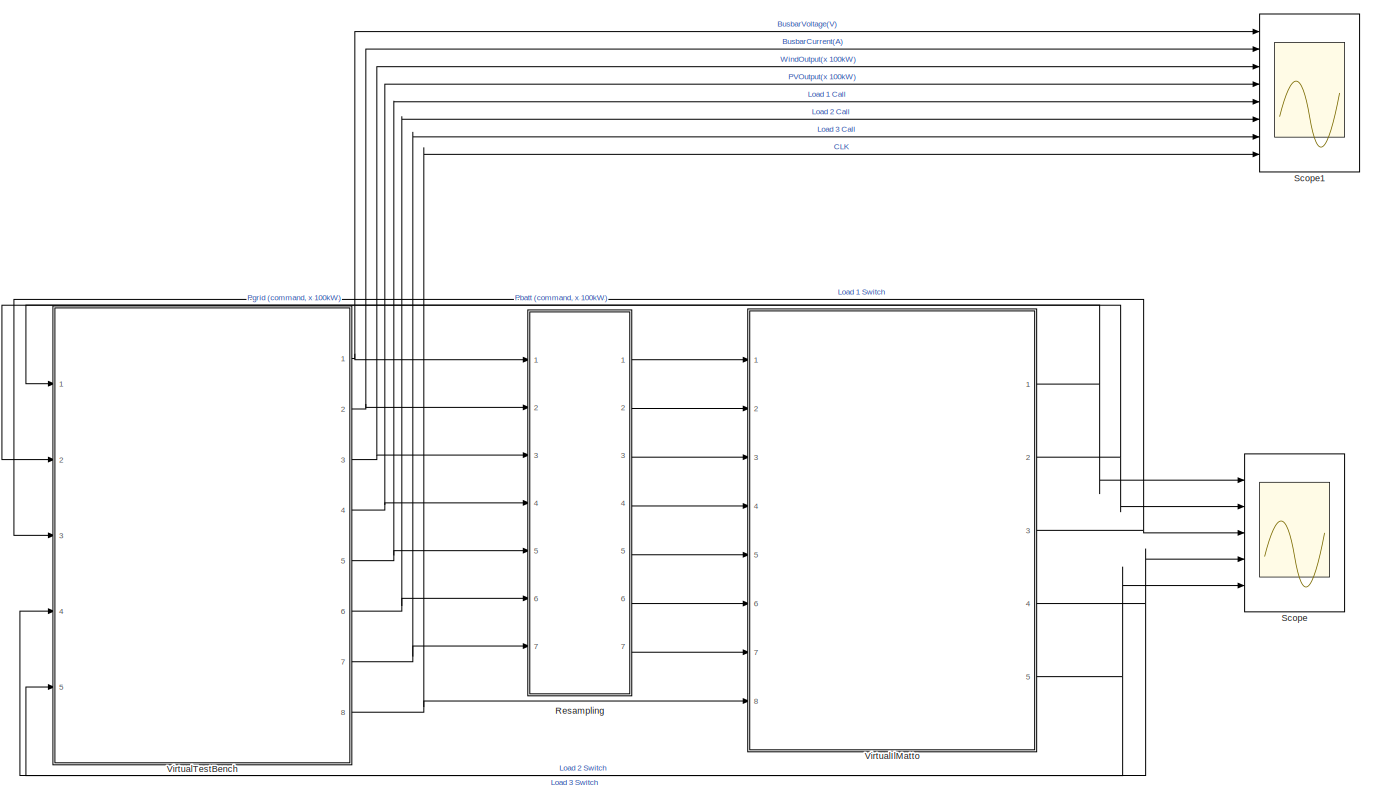
[diagram: root canvas - part 1/1, most of the canvas]
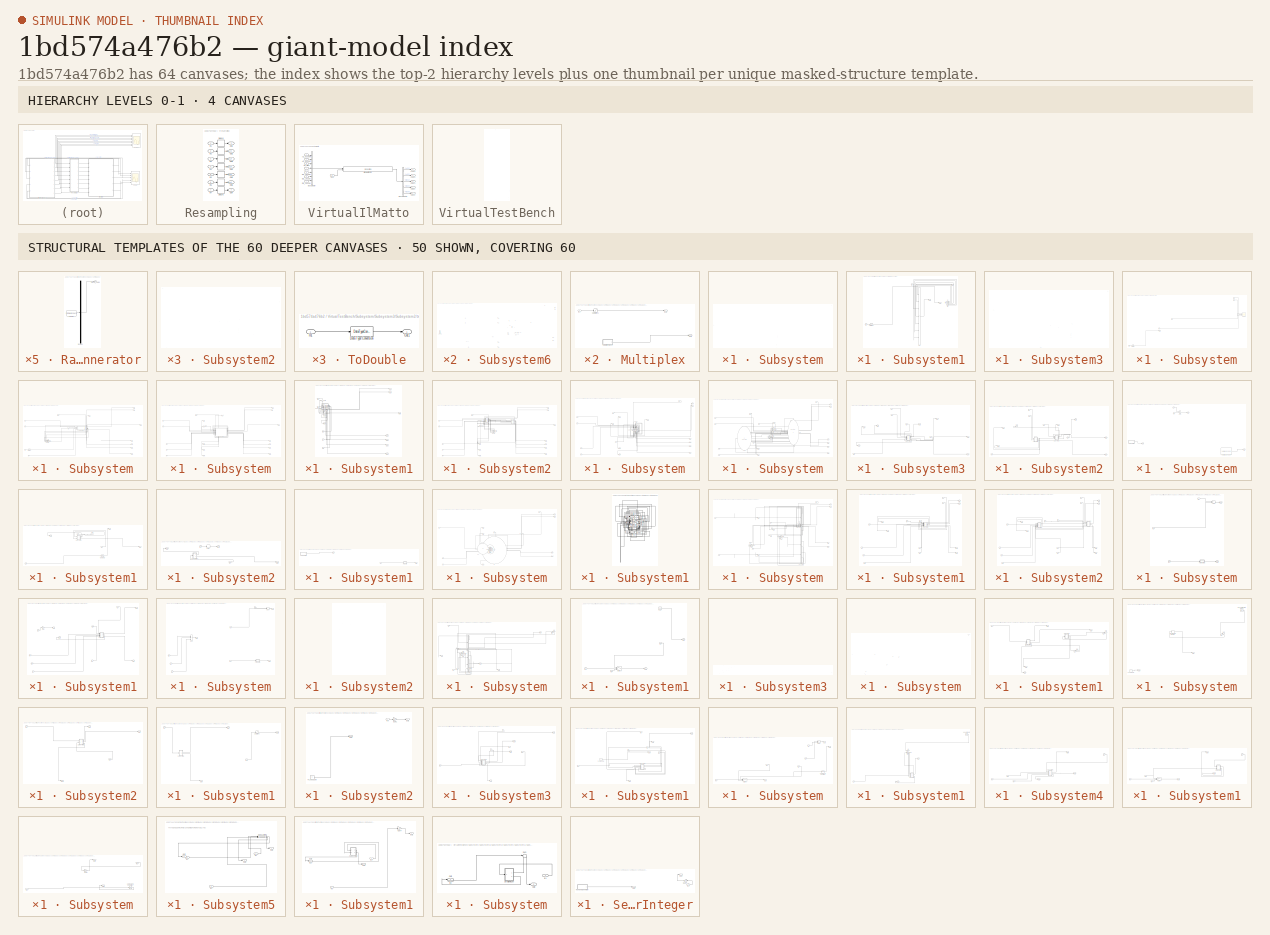
[diagram: thumbnail index - top-2 hierarchy levels (4 canvases) + 50 structural-template representatives of the remaining 60 canvases]
MODEL slx_1bd574a476b2
KIND model
CONFIG AbsTol = auto
CONFIG EnableMultiTasking = off
CONFIG FixedStep = 1e-4
CONFIG MaxStep = auto
CONFIG MinStep = auto
CONFIG RelTol = 1e-3
CONFIG SampleTimeConstraint = Unconstrained
CONFIG Solver = VariableStepAuto
CONFIG SolverName = VariableStepAuto
CONFIG StartTime = 0.0
CONFIG StopTime = 48
BLOCK [SubSystem] Resampling
  Permissions = NoReadOrWrite
  Ports = [7, 7]
  RequestExecContextInheritance = off
BLOCK [Delay] Resampling/Delay1
  DelayLength = 1
  InitialCondition = 0
  InputPortMap = u0
  Ports = [1, 1]
  SampleTime = 1e-3
BLOCK [Delay] Resampling/Delay2
  DelayLength = 1
  InitialCondition = 0
  InputPortMap = u0
  Ports = [1, 1]
  SampleTime = 1e-3
BLOCK [Delay] Resampling/Delay3
  DelayLength = 1
  InitialCondition = 0
  InputPortMap = u0
  Ports = [1, 1]
  SampleTime = 1e-3
BLOCK [Delay] Resampling/Delay4
  DelayLength = 1
  InitialCondition = 0
  InputPortMap = u0
  Ports = [1, 1]
  SampleTime = 1e-3
BLOCK [Delay] Resampling/Delay5
  DelayLength = 1
  InitialCondition = 0
  InputPortMap = u0
  Ports = [1, 1]
  SampleTime = 1e-3
BLOCK [Delay] Resampling/Delay6
  DelayLength = 1
  InitialCondition = 0
  InputPortMap = u0
  Ports = [1, 1]
  SampleTime = 1e-3
BLOCK [Delay] Resampling/Delay7
  DelayLength = 1
  InitialCondition = 0
  InputPortMap = u0
  Ports = [1, 1]
  SampleTime = 1e-3
BLOCK [Inport] Resampling/In1
BLOCK [Inport] Resampling/In2
  Port = 2
BLOCK [Inport] Resampling/In3
  Port = 3
BLOCK [Inport] Resampling/In4
  Port = 4
BLOCK [Inport] Resampling/In5
  Port = 5
BLOCK [Inport] Resampling/In6
  Port = 6
BLOCK [Inport] Resampling/In7
  Port = 7
BLOCK [Outport] Resampling/Out1
BLOCK [Outport] Resampling/Out2
  Port = 2
BLOCK [Outport] Resampling/Out3
  Port = 3
BLOCK [Outport] Resampling/Out4
  Port = 4
BLOCK [Outport] Resampling/Out5
  Port = 5
BLOCK [Outport] Resampling/Out6
  Port = 6
BLOCK [Outport] Resampling/Out7
  Port = 7
BLOCK [Scope] Scope
  Floating = off
  NumInputPorts = 5
  Ports = [5]
  ScopeSpecificationString = Simulink.scopes.TimeScopeBlockCfg('CurrentConfiguration', extmgr.ConfigurationSet(extmgr.Configuration('Core','General UI',true),extmgr.Configuration('Core','Source UI',true),extmgr.Configuration('Sources','WiredSimulink',true,'DataLoggingVariableName','ScopeData1'),extmgr.Configuration('Visuals','Time Domain',true,'SerializedDisplays',{struct('MinYLimReal','-0.25','MaxYLimReal','2.25','YLabelReal...<+5164ch>
BLOCK [Scope] Scope1
  Floating = off
  NumInputPorts = 8
  Ports = [8]
  ScopeSpecificationString = Simulink.scopes.TimeScopeBlockCfg('CurrentConfiguration', extmgr.ConfigurationSet(extmgr.Configuration('Core','General UI',true),extmgr.Configuration('Core','Source UI',true),extmgr.Configuration('Sources','WiredSimulink',true,'DataLoggingVariableName','ScopeData1'),extmgr.Configuration('Visuals','Time Domain',true,'SerializedDisplays',{struct('MinYLimReal','0.78531','MaxYLimReal','270.98619','YLa...<+6294ch>
BLOCK [SubSystem] VirtualIlMatto
  Ports = [8, 5]
  RequestExecContextInheritance = off
BLOCK [Outport] VirtualIlMatto/<Ao1>
BLOCK [Outport] VirtualIlMatto/<Ao2>
  Port = 2
BLOCK [Outport] VirtualIlMatto/<Do1>
  Port = 3
BLOCK [Outport] VirtualIlMatto/<Do2>
  Port = 4
BLOCK [Outport] VirtualIlMatto/<Do3>
  Port = 5
BLOCK [Inport] VirtualIlMatto/Ai1_busbarV
BLOCK [Inport] VirtualIlMatto/Ai2_busbarI
  Port = 2
BLOCK [Inport] VirtualIlMatto/Ai3_Wind
  Port = 3
BLOCK [Inport] VirtualIlMatto/Ai4_PV
  Port = 4
BLOCK [BusCreator] VirtualIlMatto/Bus Creator
  DisplayOption = bar
  InheritFromInputs = on
  Inputs = 7
  Ports = [7, 1]
BLOCK [BusSelector] VirtualIlMatto/Bus Selector
  OutputSignals = Ao1,Ao2,Do1,Do2,Do3
  Ports = [1, 5]
BLOCK [Inport] VirtualIlMatto/CLK
  Port = 8
BLOCK [Inport] VirtualIlMatto/Di1_Ld1Call
  Port = 5
BLOCK [Inport] VirtualIlMatto/Di2_Ld2Call
  Port = 6
BLOCK [Inport] VirtualIlMatto/Di3_Ld3Call
  Port = 7
BLOCK [S-Function] VirtualIlMatto/VirtualMattoSim
  EnableBusSupport = off
  FunctionName = VirtualMattoSim
  Ports = [2, 1]
  SFcnIsStateOwnerBlock = off
  SFunctionDeploymentMode = off
BLOCK [SubSystem] VirtualTestBench
  Permissions = NoReadOrWrite
  Ports = [5, 8]
  RequestExecContextInheritance = off
BLOCK [Outport] VirtualTestBench/BusbarCurrent_AO2
  Port = 2
BLOCK [Outport] VirtualTestBench/BusbarVoltage_AO1
BLOCK [Outport] VirtualTestBench/CLK_REF
  Port = 8
BLOCK [Outport] VirtualTestBench/Ld1_Call_DO1
  Port = 5
BLOCK [Inport] VirtualTestBench/Ld1_DI1
  Port = 3
BLOCK [Outport] VirtualTestBench/Ld2_Call_DO2
  Port = 6
BLOCK [Inport] VirtualTestBench/Ld2_DI2
  Port = 4
BLOCK [Outport] VirtualTestBench/Ld3_Call_DO3
  Port = 7
BLOCK [Inport] VirtualTestBench/Ld3_DI3
  Port = 5
BLOCK [Inport] VirtualTestBench/PBatt_AI2
  Port = 2
BLOCK [Inport] VirtualTestBench/Pg_AI1
BLOCK [Outport] VirtualTestBench/PvOutput_AO4
  Port = 4
BLOCK [SubSystem] VirtualTestBench/Subsystem
  Ports = [5, 8]
  RequestExecContextInheritance = off
  ShowPortLabels = none
BLOCK [Inport] VirtualTestBench/Subsystem/In1
BLOCK [Inport] VirtualTestBench/Subsystem/In2
  Port = 2
BLOCK [Inport] VirtualTestBench/Subsystem/In3
  Port = 3
BLOCK [Inport] VirtualTestBench/Subsystem/In4
  Port = 4
BLOCK [Inport] VirtualTestBench/Subsystem/In5
  Port = 5
BLOCK [Outport] VirtualTestBench/Subsystem/Out1
BLOCK [Outport] VirtualTestBench/Subsystem/Out2
  Port = 2
BLOCK [Outport] VirtualTestBench/Subsystem/Out3
  Port = 3
BLOCK [Outport] VirtualTestBench/Subsystem/Out4
  Port = 4
BLOCK [Outport] VirtualTestBench/Subsystem/Out5
  Port = 5
BLOCK [Outport] VirtualTestBench/Subsystem/Out6
  Port = 6
BLOCK [Outport] VirtualTestBench/Subsystem/Out7
  Port = 7
BLOCK [Outport] VirtualTestBench/Subsystem/Out8
  Port = 8
BLOCK [SubSystem] VirtualTestBench/Subsystem/Subsystem1
  Permissions = NoReadOrWrite
  Ports = [8, 2]
  RequestExecContextInheritance = off
BLOCK [Sum] VirtualTestBench/Subsystem/Subsystem1/Add
  IconShape = rectangular
  Inputs = ++++---
  Ports = [7, 1]
BLOCK [Inport] VirtualTestBench/Subsystem/Subsystem1/In1
BLOCK [Inport] VirtualTestBench/Subsystem/Subsystem1/In2
  Port = 2
BLOCK [Inport] VirtualTestBench/Subsystem/Subsystem1/In3
  Port = 3
BLOCK [Inport] VirtualTestBench/Subsystem/Subsystem1/In4
  Port = 4
BLOCK [Inport] VirtualTestBench/Subsystem/Subsystem1/In5
  Port = 5
BLOCK [Inport] VirtualTestBench/Subsystem/Subsystem1/In6
  Port = 6
BLOCK [Inport] VirtualTestBench/Subsystem/Subsystem1/In7
  Port = 7
BLOCK [Inport] VirtualTestBench/Subsystem/Subsystem1/In8
  Port = 8
BLOCK [Outport] VirtualTestBench/Subsystem/Subsystem1/Out1
BLOCK [Outport] VirtualTestBench/Subsystem/Subsystem1/Out2
  Port = 2
BLOCK [Saturate] VirtualTestBench/Subsystem/Subsystem1/Saturation2
  LowerLimit = 0
  UpperLimit = 1
BLOCK [SubSystem] VirtualTestBench/Subsystem/Subsystem3
  Ports = [6, 13]
  RequestExecContextInheritance = off
BLOCK [Inport] VirtualTestBench/Subsystem/Subsystem3/In1
BLOCK [Inport] VirtualTestBench/Subsystem/Subsystem3/In2
  Port = 2
BLOCK [Inport] VirtualTestBench/Subsystem/Subsystem3/In3
  Port = 3
BLOCK [Inport] VirtualTestBench/Subsystem/Subsystem3/In4
  Port = 4
BLOCK [Inport] VirtualTestBench/Subsystem/Subsystem3/In5
  Port = 5
BLOCK [Inport] VirtualTestBench/Subsystem/Subsystem3/In6
  Port = 6
BLOCK [Outport] VirtualTestBench/Subsystem/Subsystem3/Out1
BLOCK [Outport] VirtualTestBench/Subsystem/Subsystem3/Out10
  Port = 10
BLOCK [Outport] VirtualTestBench/Subsystem/Subsystem3/Out11
  Port = 11
BLOCK [Outport] VirtualTestBench/Subsystem/Subsystem3/Out12
  Port = 12
BLOCK [Outport] VirtualTestBench/Subsystem/Subsystem3/Out13
  Port = 13
BLOCK [Outport] VirtualTestBench/Subsystem/Subsystem3/Out2
  Port = 2
BLOCK [Outport] VirtualTestBench/Subsystem/Subsystem3/Out3
  Port = 3
BLOCK [Outport] VirtualTestBench/Subsystem/Subsystem3/Out4
  Port = 4
BLOCK [Outport] VirtualTestBench/Subsystem/Subsystem3/Out5
  Port = 5
BLOCK [Outport] VirtualTestBench/Subsystem/Subsystem3/Out6
  Port = 6
BLOCK [Outport] VirtualTestBench/Subsystem/Subsystem3/Out7
  Port = 7
BLOCK [Outport] VirtualTestBench/Subsystem/Subsystem3/Out8
  Port = 8
BLOCK [Outport] VirtualTestBench/Subsystem/Subsystem3/Out9
  Port = 9
BLOCK [SubSystem] VirtualTestBench/Subsystem/Subsystem3/Subsystem
  Permissions = NoReadOrWrite
  Ports = [5, 1]
  RequestExecContextInheritance = off
BLOCK [Inport] VirtualTestBench/Subsystem/Subsystem3/Subsystem/In1
BLOCK [Inport] VirtualTestBench/Subsystem/Subsystem3/Subsystem/In2
  Port = 2
BLOCK [Inport] VirtualTestBench/Subsystem/Subsystem3/Subsystem/In3
  Port = 3
BLOCK [Inport] VirtualTestBench/Subsystem/Subsystem3/Subsystem/In4
  Port = 4
BLOCK [Inport] VirtualTestBench/Subsystem/Subsystem3/Subsystem/In5
  Port = 5
BLOCK [Outport] VirtualTestBench/Subsystem/Subsystem3/Subsystem/Out1
BLOCK [Saturate] VirtualTestBench/Subsystem/Subsystem3/Subsystem/Saturation4
  LowerLimit = 0
  UpperLimit = 1
BLOCK [Scope] VirtualTestBench/Subsystem/Subsystem3/Subsystem/Scope
  Floating = off
  NumInputPorts = 4
  Ports = [4]
  ScopeSpecificationString = Simulink.scopes.TimeScopeBlockCfg('CurrentConfiguration', extmgr.ConfigurationSet(extmgr.Configuration('Core','General UI',true),extmgr.Configuration('Core','Source UI',true),extmgr.Configuration('Sources','WiredSimulink',true,'DataLoggingVariableName','ScopeData1'),extmgr.Configuration('Visuals','Time Domain',true,'SerializedDisplays',{struct('MinYLimReal','-1.575','MaxYLimReal','2.175','YLabelRe...<+3431ch>
BLOCK [SubSystem] VirtualTestBench/Subsystem/Subsystem3/Subsystem2
  Ports = [6, 14]
  RequestExecContextInheritance = off
BLOCK [Inport] VirtualTestBench/Subsystem/Subsystem3/Subsystem2/In1
BLOCK [Inport] VirtualTestBench/Subsystem/Subsystem3/Subsystem2/In2
  Port = 2
BLOCK [Inport] VirtualTestBench/Subsystem/Subsystem3/Subsystem2/In3
  Port = 3
BLOCK [Inport] VirtualTestBench/Subsystem/Subsystem3/Subsystem2/In4
  Port = 4
BLOCK [Inport] VirtualTestBench/Subsystem/Subsystem3/Subsystem2/In5
  Port = 5
BLOCK [Inport] VirtualTestBench/Subsystem/Subsystem3/Subsystem2/In6
  Port = 6
BLOCK [Outport] VirtualTestBench/Subsystem/Subsystem3/Subsystem2/Out1
BLOCK [Outport] VirtualTestBench/Subsystem/Subsystem3/Subsystem2/Out10
  Port = 10
BLOCK [Outport] VirtualTestBench/Subsystem/Subsystem3/Subsystem2/Out11
  Port = 11
BLOCK [Outport] VirtualTestBench/Subsystem/Subsystem3/Subsystem2/Out12
  Port = 12
BLOCK [Outport] VirtualTestBench/Subsystem/Subsystem3/Subsystem2/Out13
  Port = 13
BLOCK [Outport] VirtualTestBench/Subsystem/Subsystem3/Subsystem2/Out14
  Port = 14
BLOCK [Outport] VirtualTestBench/Subsystem/Subsystem3/Subsystem2/Out2
  Port = 2
BLOCK [Outport] VirtualTestBench/Subsystem/Subsystem3/Subsystem2/Out3
  Port = 3
BLOCK [Outport] VirtualTestBench/Subsystem/Subsystem3/Subsystem2/Out4
  Port = 4
BLOCK [Outport] VirtualTestBench/Subsystem/Subsystem3/Subsystem2/Out5
  Port = 5
BLOCK [Outport] VirtualTestBench/Subsystem/Subsystem3/Subsystem2/Out6
  Port = 6
BLOCK [Outport] VirtualTestBench/Subsystem/Subsystem3/Subsystem2/Out7
  Port = 7
BLOCK [Outport] VirtualTestBench/Subsystem/Subsystem3/Subsystem2/Out8
  Port = 8
BLOCK [Outport] VirtualTestBench/Subsystem/Subsystem3/Subsystem2/Out9
  Port = 9
BLOCK [SubSystem] VirtualTestBench/Subsystem/Subsystem3/Subsystem2/Subsystem
  Ports = [6, 14]
  RequestExecContextInheritance = off
BLOCK [Inport] VirtualTestBench/Subsystem/Subsystem3/Subsystem2/Subsystem/In1
BLOCK [Inport] VirtualTestBench/Subsystem/Subsystem3/Subsystem2/Subsystem/In2
  Port = 2
BLOCK [Inport] VirtualTestBench/Subsystem/Subsystem3/Subsystem2/Subsystem/In3
  Port = 3
BLOCK [Inport] VirtualTestBench/Subsystem/Subsystem3/Subsystem2/Subsystem/In4
  Port = 4
BLOCK [Inport] VirtualTestBench/Subsystem/Subsystem3/Subsystem2/Subsystem/In5
  Port = 5
BLOCK [Inport] VirtualTestBench/Subsystem/Subsystem3/Subsystem2/Subsystem/In6
  Port = 6
BLOCK [Outport] VirtualTestBench/Subsystem/Subsystem3/Subsystem2/Subsystem/Out1
BLOCK [Outport] VirtualTestBench/Subsystem/Subsystem3/Subsystem2/Subsystem/Out10
  Port = 10
BLOCK [Outport] VirtualTestBench/Subsystem/Subsystem3/Subsystem2/Subsystem/Out11
  Port = 11
BLOCK [Outport] VirtualTestBench/Subsystem/Subsystem3/Subsystem2/Subsystem/Out12
  Port = 12
BLOCK [Outport] VirtualTestBench/Subsystem/Subsystem3/Subsystem2/Subsystem/Out13
  Port = 13
BLOCK [Outport] VirtualTestBench/Subsystem/Subsystem3/Subsystem2/Subsystem/Out14
  Port = 14
BLOCK [Outport] VirtualTestBench/Subsystem/Subsystem3/Subsystem2/Subsystem/Out2
  Port = 2
BLOCK [Outport] VirtualTestBench/Subsystem/Subsystem3/Subsystem2/Subsystem/Out3
  Port = 3
BLOCK [Outport] VirtualTestBench/Subsystem/Subsystem3/Subsystem2/Subsystem/Out4
  Port = 4
BLOCK [Outport] VirtualTestBench/Subsystem/Subsystem3/Subsystem2/Subsystem/Out5
  Port = 5
BLOCK [Outport] VirtualTestBench/Subsystem/Subsystem3/Subsystem2/Subsystem/Out6
  Port = 6
BLOCK [Outport] VirtualTestBench/Subsystem/Subsystem3/Subsystem2/Subsystem/Out7
  Port = 7
BLOCK [Outport] VirtualTestBench/Subsystem/Subsystem3/Subsystem2/Subsystem/Out8
  Port = 8
BLOCK [Outport] VirtualTestBench/Subsystem/Subsystem3/Subsystem2/Subsystem/Out9
  Port = 9
BLOCK [Saturate] VirtualTestBench/Subsystem/Subsystem3/Subsystem2/Subsystem/Saturation3
  LowerLimit = 0
  UpperLimit = 1
BLOCK [SubSystem] VirtualTestBench/Subsystem/Subsystem3/Subsystem2/Subsystem/Subsystem1
  Ports = [6, 14]
  RequestExecContextInheritance = off
BLOCK [Inport] VirtualTestBench/Subsystem/Subsystem3/Subsystem2/Subsystem/Subsystem1/In1
BLOCK [Inport] VirtualTestBench/Subsystem/Subsystem3/Subsystem2/Subsystem/Subsystem1/In2
  Port = 2
BLOCK [Inport] VirtualTestBench/Subsystem/Subsystem3/Subsystem2/Subsystem/Subsystem1/In3
  Port = 3
BLOCK [Inport] VirtualTestBench/Subsystem/Subsystem3/Subsystem2/Subsystem/Subsystem1/In4
  Port = 4
BLOCK [Inport] VirtualTestBench/Subsystem/Subsystem3/Subsystem2/Subsystem/Subsystem1/In5
  Port = 5
BLOCK [Inport] VirtualTestBench/Subsystem/Subsystem3/Subsystem2/Subsystem/Subsystem1/In6
  Port = 6
BLOCK [Outport] VirtualTestBench/Subsystem/Subsystem3/Subsystem2/Subsystem/Subsystem1/Out1
BLOCK [Outport] VirtualTestBench/Subsystem/Subsystem3/Subsystem2/Subsystem/Subsystem1/Out10
  Port = 10
BLOCK [Outport] VirtualTestBench/Subsystem/Subsystem3/Subsystem2/Subsystem/Subsystem1/Out11
  Port = 11
BLOCK [Outport] VirtualTestBench/Subsystem/Subsystem3/Subsystem2/Subsystem/Subsystem1/Out12
  Port = 12
BLOCK [Outport] VirtualTestBench/Subsystem/Subsystem3/Subsystem2/Subsystem/Subsystem1/Out13
  Port = 13
BLOCK [Outport] VirtualTestBench/Subsystem/Subsystem3/Subsystem2/Subsystem/Subsystem1/Out14
  Port = 14
BLOCK [Outport] VirtualTestBench/Subsystem/Subsystem3/Subsystem2/Subsystem/Subsystem1/Out2
  Port = 2
BLOCK [Outport] VirtualTestBench/Subsystem/Subsystem3/Subsystem2/Subsystem/Subsystem1/Out3
  Port = 3
BLOCK [Outport] VirtualTestBench/Subsystem/Subsystem3/Subsystem2/Subsystem/Subsystem1/Out4
  Port = 4
BLOCK [Outport] VirtualTestBench/Subsystem/Subsystem3/Subsystem2/Subsystem/Subsystem1/Out5
  Port = 5
BLOCK [Outport] VirtualTestBench/Subsystem/Subsystem3/Subsystem2/Subsystem/Subsystem1/Out6
  Port = 6
BLOCK [Outport] VirtualTestBench/Subsystem/Subsystem3/Subsystem2/Subsystem/Subsystem1/Out7
  Port = 7
BLOCK [Outport] VirtualTestBench/Subsystem/Subsystem3/Subsystem2/Subsystem/Subsystem1/Out8
  Port = 8
BLOCK [Outport] VirtualTestBench/Subsystem/Subsystem3/Subsystem2/Subsystem/Subsystem1/Out9
  Port = 9
BLOCK [SubSystem] VirtualTestBench/Subsystem/Subsystem3/Subsystem2/Subsystem/Subsystem1/Subsystem
  Ports = [6, 14]
  RequestExecContextInheritance = off
BLOCK [Inport] VirtualTestBench/Subsystem/Subsystem3/Subsystem2/Subsystem/Subsystem1/Subsystem/In1
BLOCK [Inport] VirtualTestBench/Subsystem/Subsystem3/Subsystem2/Subsystem/Subsystem1/Subsystem/In2
  Port = 2
BLOCK [Inport] VirtualTestBench/Subsystem/Subsystem3/Subsystem2/Subsystem/Subsystem1/Subsystem/In3
  Port = 3
BLOCK [Inport] VirtualTestBench/Subsystem/Subsystem3/Subsystem2/Subsystem/Subsystem1/Subsystem/In4
  Port = 4
BLOCK [Inport] VirtualTestBench/Subsystem/Subsystem3/Subsystem2/Subsystem/Subsystem1/Subsystem/In5
  Port = 5
BLOCK [Inport] VirtualTestBench/Subsystem/Subsystem3/Subsystem2/Subsystem/Subsystem1/Subsystem/In6
  Port = 6
BLOCK [Outport] VirtualTestBench/Subsystem/Subsystem3/Subsystem2/Subsystem/Subsystem1/Subsystem/Out1
BLOCK [Outport] VirtualTestBench/Subsystem/Subsystem3/Subsystem2/Subsystem/Subsystem1/Subsystem/Out10
  Port = 10
BLOCK [Outport] VirtualTestBench/Subsystem/Subsystem3/Subsystem2/Subsystem/Subsystem1/Subsystem/Out11
  Port = 11
BLOCK [Outport] VirtualTestBench/Subsystem/Subsystem3/Subsystem2/Subsystem/Subsystem1/Subsystem/Out12
  Port = 12
BLOCK [Outport] VirtualTestBench/Subsystem/Subsystem3/Subsystem2/Subsystem/Subsystem1/Subsystem/Out13
  Port = 13
BLOCK [Outport] VirtualTestBench/Subsystem/Subsystem3/Subsystem2/Subsystem/Subsystem1/Subsystem/Out14
  Port = 14
BLOCK [Outport] VirtualTestBench/Subsystem/Subsystem3/Subsystem2/Subsystem/Subsystem1/Subsystem/Out2
  Port = 2
BLOCK [Outport] VirtualTestBench/Subsystem/Subsystem3/Subsystem2/Subsystem/Subsystem1/Subsystem/Out3
  Port = 3
BLOCK [Outport] VirtualTestBench/Subsystem/Subsystem3/Subsystem2/Subsystem/Subsystem1/Subsystem/Out4
  Port = 4
BLOCK [Outport] VirtualTestBench/Subsystem/Subsystem3/Subsystem2/Subsystem/Subsystem1/Subsystem/Out5
  Port = 5
BLOCK [Outport] VirtualTestBench/Subsystem/Subsystem3/Subsystem2/Subsystem/Subsystem1/Subsystem/Out6
  Port = 6
BLOCK [Outport] VirtualTestBench/Subsystem/Subsystem3/Subsystem2/Subsystem/Subsystem1/Subsystem/Out7
  Port = 7
BLOCK [Outport] VirtualTestBench/Subsystem/Subsystem3/Subsystem2/Subsystem/Subsystem1/Subsystem/Out8
  Port = 8
BLOCK [Outport] VirtualTestBench/Subsystem/Subsystem3/Subsystem2/Subsystem/Subsystem1/Subsystem/Out9
  Port = 9
BLOCK [SubSystem] VirtualTestBench/Subsystem/Subsystem3/Subsystem2/Subsystem/Subsystem1/Subsystem/Subsystem
  Ports = [6, 14]
  RequestExecContextInheritance = off
BLOCK [Inport] VirtualTestBench/Subsystem/Subsystem3/Subsystem2/Subsystem/Subsystem1/Subsystem/Subsystem/In1
BLOCK [Inport] VirtualTestBench/Subsystem/Subsystem3/Subsystem2/Subsystem/Subsystem1/Subsystem/Subsystem/In2
  Port = 2
BLOCK [Inport] VirtualTestBench/Subsystem/Subsystem3/Subsystem2/Subsystem/Subsystem1/Subsystem/Subsystem/In3
  Port = 3
BLOCK [Inport] VirtualTestBench/Subsystem/Subsystem3/Subsystem2/Subsystem/Subsystem1/Subsystem/Subsystem/In4
  Port = 4
BLOCK [Inport] VirtualTestBench/Subsystem/Subsystem3/Subsystem2/Subsystem/Subsystem1/Subsystem/Subsystem/In5
  Port = 5
BLOCK [Inport] VirtualTestBench/Subsystem/Subsystem3/Subsystem2/Subsystem/Subsystem1/Subsystem/Subsystem/In6
  Port = 6
BLOCK [Outport] VirtualTestBench/Subsystem/Subsystem3/Subsystem2/Subsystem/Subsystem1/Subsystem/Subsystem/Out1
BLOCK [Outport] VirtualTestBench/Subsystem/Subsystem3/Subsystem2/Subsystem/Subsystem1/Subsystem/Subsystem/Out10
  Port = 10
BLOCK [Outport] VirtualTestBench/Subsystem/Subsystem3/Subsystem2/Subsystem/Subsystem1/Subsystem/Subsystem/Out11
  Port = 11
BLOCK [Outport] VirtualTestBench/Subsystem/Subsystem3/Subsystem2/Subsystem/Subsystem1/Subsystem/Subsystem/Out12
  Port = 12
BLOCK [Outport] VirtualTestBench/Subsystem/Subsystem3/Subsystem2/Subsystem/Subsystem1/Subsystem/Subsystem/Out13
  Port = 13
BLOCK [Outport] VirtualTestBench/Subsystem/Subsystem3/Subsystem2/Subsystem/Subsystem1/Subsystem/Subsystem/Out14
  Port = 14
BLOCK [Outport] VirtualTestBench/Subsystem/Subsystem3/Subsystem2/Subsystem/Subsystem1/Subsystem/Subsystem/Out2
  Port = 2
BLOCK [Outport] VirtualTestBench/Subsystem/Subsystem3/Subsystem2/Subsystem/Subsystem1/Subsystem/Subsystem/Out3
  Port = 3
BLOCK [Outport] VirtualTestBench/Subsystem/Subsystem3/Subsystem2/Subsystem/Subsystem1/Subsystem/Subsystem/Out4
  Port = 4
BLOCK [Outport] VirtualTestBench/Subsystem/Subsystem3/Subsystem2/Subsystem/Subsystem1/Subsystem/Subsystem/Out5
  Port = 5
BLOCK [Outport] VirtualTestBench/Subsystem/Subsystem3/Subsystem2/Subsystem/Subsystem1/Subsystem/Subsystem/Out6
  Port = 6
BLOCK [Outport] VirtualTestBench/Subsystem/Subsystem3/Subsystem2/Subsystem/Subsystem1/Subsystem/Subsystem/Out7
  Port = 7
BLOCK [Outport] VirtualTestBench/Subsystem/Subsystem3/Subsystem2/Subsystem/Subsystem1/Subsystem/Subsystem/Out8
  Port = 8
BLOCK [Outport] VirtualTestBench/Subsystem/Subsystem3/Subsystem2/Subsystem/Subsystem1/Subsystem/Subsystem/Out9
  Port = 9
BLOCK [SubSystem] VirtualTestBench/Subsystem/Subsystem3/Subsystem2/Subsystem/Subsystem1/Subsystem/Subsystem/Subsystem1
  Permissions = NoReadOrWrite
  Ports = [8, 16]
  RequestExecContextInheritance = off
BLOCK [Inport] VirtualTestBench/Subsystem/Subsystem3/Subsystem2/Subsystem/Subsystem1/Subsystem/Subsystem/Subsystem1/In1
BLOCK [Inport] VirtualTestBench/Subsystem/Subsystem3/Subsystem2/Subsystem/Subsystem1/Subsystem/Subsystem/Subsystem1/In2
  Port = 2
BLOCK [Inport] VirtualTestBench/Subsystem/Subsystem3/Subsystem2/Subsystem/Subsystem1/Subsystem/Subsystem/Subsystem1/In3
  Port = 3
BLOCK [Inport] VirtualTestBench/Subsystem/Subsystem3/Subsystem2/Subsystem/Subsystem1/Subsystem/Subsystem/Subsystem1/In4
  Port = 4
BLOCK [Inport] VirtualTestBench/Subsystem/Subsystem3/Subsystem2/Subsystem/Subsystem1/Subsystem/Subsystem/Subsystem1/In5
  Port = 5
BLOCK [Inport] VirtualTestBench/Subsystem/Subsystem3/Subsystem2/Subsystem/Subsystem1/Subsystem/Subsystem/Subsystem1/In6
  Port = 6
BLOCK [Inport] VirtualTestBench/Subsystem/Subsystem3/Subsystem2/Subsystem/Subsystem1/Subsystem/Subsystem/Subsystem1/In7
  Port = 7
BLOCK [Inport] VirtualTestBench/Subsystem/Subsystem3/Subsystem2/Subsystem/Subsystem1/Subsystem/Subsystem/Subsystem1/In8
  Port = 8
BLOCK [Outport] VirtualTestBench/Subsystem/Subsystem3/Subsystem2/Subsystem/Subsystem1/Subsystem/Subsystem/Subsystem1/Out1
BLOCK [Outport] VirtualTestBench/Subsystem/Subsystem3/Subsystem2/Subsystem/Subsystem1/Subsystem/Subsystem/Subsystem1/Out10
  Port = 10
BLOCK [Outport] VirtualTestBench/Subsystem/Subsystem3/Subsystem2/Subsystem/Subsystem1/Subsystem/Subsystem/Subsystem1/Out11
  Port = 11
BLOCK [Outport] VirtualTestBench/Subsystem/Subsystem3/Subsystem2/Subsystem/Subsystem1/Subsystem/Subsystem/Subsystem1/Out12
  Port = 12
BLOCK [Outport] VirtualTestBench/Subsystem/Subsystem3/Subsystem2/Subsystem/Subsystem1/Subsystem/Subsystem/Subsystem1/Out13
  Port = 13
BLOCK [Outport] VirtualTestBench/Subsystem/Subsystem3/Subsystem2/Subsystem/Subsystem1/Subsystem/Subsystem/Subsystem1/Out14
  Port = 14
BLOCK [Outport] VirtualTestBench/Subsystem/Subsystem3/Subsystem2/Subsystem/Subsystem1/Subsystem/Subsystem/Subsystem1/Out15
  Port = 15
BLOCK [Outport] VirtualTestBench/Subsystem/Subsystem3/Subsystem2/Subsystem/Subsystem1/Subsystem/Subsystem/Subsystem1/Out16
  Port = 16
BLOCK [Outport] VirtualTestBench/Subsystem/Subsystem3/Subsystem2/Subsystem/Subsystem1/Subsystem/Subsystem/Subsystem1/Out2
  Port = 2
BLOCK [Outport] VirtualTestBench/Subsystem/Subsystem3/Subsystem2/Subsystem/Subsystem1/Subsystem/Subsystem/Subsystem1/Out3
  Port = 3
BLOCK [Outport] VirtualTestBench/Subsystem/Subsystem3/Subsystem2/Subsystem/Subsystem1/Subsystem/Subsystem/Subsystem1/Out4
  Port = 4
BLOCK [Outport] VirtualTestBench/Subsystem/Subsystem3/Subsystem2/Subsystem/Subsystem1/Subsystem/Subsystem/Subsystem1/Out5
  Port = 5
BLOCK [Outport] VirtualTestBench/Subsystem/Subsystem3/Subsystem2/Subsystem/Subsystem1/Subsystem/Subsystem/Subsystem1/Out6
  Port = 6
BLOCK [Outport] VirtualTestBench/Subsystem/Subsystem3/Subsystem2/Subsystem/Subsystem1/Subsystem/Subsystem/Subsystem1/Out7
  Port = 7
BLOCK [Outport] VirtualTestBench/Subsystem/Subsystem3/Subsystem2/Subsystem/Subsystem1/Subsystem/Subsystem/Subsystem1/Out8
  Port = 8
BLOCK [Outport] VirtualTestBench/Subsystem/Subsystem3/Subsystem2/Subsystem/Subsystem1/Subsystem/Subsystem/Subsystem1/Out9
  Port = 9
BLOCK [SubSystem] VirtualTestBench/Subsystem/Subsystem3/Subsystem2/Subsystem/Subsystem1/Subsystem/Subsystem/Subsystem1/Subsystem2
  NameLocation = left
  Permissions = NoReadOrWrite
  Ports = [8, 16]
  RequestExecContextInheritance = off
BLOCK [Inport] VirtualTestBench/Subsystem/Subsystem3/Subsystem2/Subsystem/Subsystem1/Subsystem/Subsystem/Subsystem1/Subsystem2/In1
BLOCK [Inport] VirtualTestBench/Subsystem/Subsystem3/Subsystem2/Subsystem/Subsystem1/Subsystem/Subsystem/Subsystem1/Subsystem2/In2
  Port = 2
BLOCK [Inport] VirtualTestBench/Subsystem/Subsystem3/Subsystem2/Subsystem/Subsystem1/Subsystem/Subsystem/Subsystem1/Subsystem2/In3
  Port = 3
BLOCK [Inport] VirtualTestBench/Subsystem/Subsystem3/Subsystem2/Subsystem/Subsystem1/Subsystem/Subsystem/Subsystem1/Subsystem2/In4
  Port = 4
BLOCK [Inport] VirtualTestBench/Subsystem/Subsystem3/Subsystem2/Subsystem/Subsystem1/Subsystem/Subsystem/Subsystem1/Subsystem2/In5
  Port = 5
BLOCK [Inport] VirtualTestBench/Subsystem/Subsystem3/Subsystem2/Subsystem/Subsystem1/Subsystem/Subsystem/Subsystem1/Subsystem2/In6
  Port = 6
BLOCK [Inport] VirtualTestBench/Subsystem/Subsystem3/Subsystem2/Subsystem/Subsystem1/Subsystem/Subsystem/Subsystem1/Subsystem2/In7
  Port = 7
BLOCK [Inport] VirtualTestBench/Subsystem/Subsystem3/Subsystem2/Subsystem/Subsystem1/Subsystem/Subsystem/Subsystem1/Subsystem2/In8
  Port = 8
BLOCK [Outport] VirtualTestBench/Subsystem/Subsystem3/Subsystem2/Subsystem/Subsystem1/Subsystem/Subsystem/Subsystem1/Subsystem2/Out1
BLOCK [Outport] VirtualTestBench/Subsystem/Subsystem3/Subsystem2/Subsystem/Subsystem1/Subsystem/Subsystem/Subsystem1/Subsystem2/Out10
  Port = 10
BLOCK [Outport] VirtualTestBench/Subsystem/Subsystem3/Subsystem2/Subsystem/Subsystem1/Subsystem/Subsystem/Subsystem1/Subsystem2/Out11
  Port = 11
BLOCK [Outport] VirtualTestBench/Subsystem/Subsystem3/Subsystem2/Subsystem/Subsystem1/Subsystem/Subsystem/Subsystem1/Subsystem2/Out12
  Port = 12
BLOCK [Outport] VirtualTestBench/Subsystem/Subsystem3/Subsystem2/Subsystem/Subsystem1/Subsystem/Subsystem/Subsystem1/Subsystem2/Out13
  Port = 13
BLOCK [Outport] VirtualTestBench/Subsystem/Subsystem3/Subsystem2/Subsystem/Subsystem1/Subsystem/Subsystem/Subsystem1/Subsystem2/Out14
  Port = 14
BLOCK [Outport] VirtualTestBench/Subsystem/Subsystem3/Subsystem2/Subsystem/Subsystem1/Subsystem/Subsystem/Subsystem1/Subsystem2/Out15
  Port = 15
BLOCK [Outport] VirtualTestBench/Subsystem/Subsystem3/Subsystem2/Subsystem/Subsystem1/Subsystem/Subsystem/Subsystem1/Subsystem2/Out16
  Port = 16
BLOCK [Outport] VirtualTestBench/Subsystem/Subsystem3/Subsystem2/Subsystem/Subsystem1/Subsystem/Subsystem/Subsystem1/Subsystem2/Out2
  Port = 2
BLOCK [Outport] VirtualTestBench/Subsystem/Subsystem3/Subsystem2/Subsystem/Subsystem1/Subsystem/Subsystem/Subsystem1/Subsystem2/Out3
  Port = 3
BLOCK [Outport] VirtualTestBench/Subsystem/Subsystem3/Subsystem2/Subsystem/Subsystem1/Subsystem/Subsystem/Subsystem1/Subsystem2/Out4
  Port = 4
BLOCK [Outport] VirtualTestBench/Subsystem/Subsystem3/Subsystem2/Subsystem/Subsystem1/Subsystem/Subsystem/Subsystem1/Subsystem2/Out5
  Port = 5
BLOCK [Outport] VirtualTestBench/Subsystem/Subsystem3/Subsystem2/Subsystem/Subsystem1/Subsystem/Subsystem/Subsystem1/Subsystem2/Out6
  Port = 6
BLOCK [Outport] VirtualTestBench/Subsystem/Subsystem3/Subsystem2/Subsystem/Subsystem1/Subsystem/Subsystem/Subsystem1/Subsystem2/Out7
  Port = 7
BLOCK [Outport] VirtualTestBench/Subsystem/Subsystem3/Subsystem2/Subsystem/Subsystem1/Subsystem/Subsystem/Subsystem1/Subsystem2/Out8
  Port = 8
BLOCK [Outport] VirtualTestBench/Subsystem/Subsystem3/Subsystem2/Subsystem/Subsystem1/Subsystem/Subsystem/Subsystem1/Subsystem2/Out9
  Port = 9
BLOCK [SubSystem] VirtualTestBench/Subsystem/Subsystem3/Subsystem2/Subsystem/Subsystem1/Subsystem/Subsystem/Subsystem1/Subsystem2/Subsystem
  Permissions = NoReadOrWrite
  Ports = [11, 17]
  RequestExecContextInheritance = off
BLOCK [Inport] VirtualTestBench/Subsystem/Subsystem3/Subsystem2/Subsystem/Subsystem1/Subsystem/Subsystem/Subsystem1/Subsystem2/Subsystem/In1
BLOCK [Inport] VirtualTestBench/Subsystem/Subsystem3/Subsystem2/Subsystem/Subsystem1/Subsystem/Subsystem/Subsystem1/Subsystem2/Subsystem/In10
  Port = 10
BLOCK [Inport] VirtualTestBench/Subsystem/Subsystem3/Subsystem2/Subsystem/Subsystem1/Subsystem/Subsystem/Subsystem1/Subsystem2/Subsystem/In11
  Port = 11
BLOCK [Inport] VirtualTestBench/Subsystem/Subsystem3/Subsystem2/Subsystem/Subsystem1/Subsystem/Subsystem/Subsystem1/Subsystem2/Subsystem/In2
  Port = 2
BLOCK [Inport] VirtualTestBench/Subsystem/Subsystem3/Subsystem2/Subsystem/Subsystem1/Subsystem/Subsystem/Subsystem1/Subsystem2/Subsystem/In3
  Port = 3
BLOCK [Inport] VirtualTestBench/Subsystem/Subsystem3/Subsystem2/Subsystem/Subsystem1/Subsystem/Subsystem/Subsystem1/Subsystem2/Subsystem/In4
  NameLocation = left
  Port = 4
BLOCK [Inport] VirtualTestBench/Subsystem/Subsystem3/Subsystem2/Subsystem/Subsystem1/Subsystem/Subsystem/Subsystem1/Subsystem2/Subsystem/In5
  Port = 5
BLOCK [Inport] VirtualTestBench/Subsystem/Subsystem3/Subsystem2/Subsystem/Subsystem1/Subsystem/Subsystem/Subsystem1/Subsystem2/Subsystem/In6
  NameLocation = left
  Port = 6
BLOCK [Inport] VirtualTestBench/Subsystem/Subsystem3/Subsystem2/Subsystem/Subsystem1/Subsystem/Subsystem/Subsystem1/Subsystem2/Subsystem/In7
  NameLocation = left
  Port = 7
BLOCK [Inport] VirtualTestBench/Subsystem/Subsystem3/Subsystem2/Subsystem/Subsystem1/Subsystem/Subsystem/Subsystem1/Subsystem2/Subsystem/In8
  NameLocation = left
  Port = 8
BLOCK [Inport] VirtualTestBench/Subsystem/Subsystem3/Subsystem2/Subsystem/Subsystem1/Subsystem/Subsystem/Subsystem1/Subsystem2/Subsystem/In9
  Port = 9
BLOCK [Outport] VirtualTestBench/Subsystem/Subsystem3/Subsystem2/Subsystem/Subsystem1/Subsystem/Subsystem/Subsystem1/Subsystem2/Subsystem/Out1
BLOCK [Outport] VirtualTestBench/Subsystem/Subsystem3/Subsystem2/Subsystem/Subsystem1/Subsystem/Subsystem/Subsystem1/Subsystem2/Subsystem/Out10
  NameLocation = left
  Port = 10
BLOCK [Outport] VirtualTestBench/Subsystem/Subsystem3/Subsystem2/Subsystem/Subsystem1/Subsystem/Subsystem/Subsystem1/Subsystem2/Subsystem/Out11
  NameLocation = left
  Port = 11
BLOCK [Outport] VirtualTestBench/Subsystem/Subsystem3/Subsystem2/Subsystem/Subsystem1/Subsystem/Subsystem/Subsystem1/Subsystem2/Subsystem/Out12
  Port = 12
BLOCK [Outport] VirtualTestBench/Subsystem/Subsystem3/Subsystem2/Subsystem/Subsystem1/Subsystem/Subsystem/Subsystem1/Subsystem2/Subsystem/Out13
  Port = 13
BLOCK [Outport] VirtualTestBench/Subsystem/Subsystem3/Subsystem2/Subsystem/Subsystem1/Subsystem/Subsystem/Subsystem1/Subsystem2/Subsystem/Out14
  Port = 14
BLOCK [Outport] VirtualTestBench/Subsystem/Subsystem3/Subsystem2/Subsystem/Subsystem1/Subsystem/Subsystem/Subsystem1/Subsystem2/Subsystem/Out15
  Port = 15
BLOCK [Outport] VirtualTestBench/Subsystem/Subsystem3/Subsystem2/Subsystem/Subsystem1/Subsystem/Subsystem/Subsystem1/Subsystem2/Subsystem/Out16
  Port = 16
BLOCK [Outport] VirtualTestBench/Subsystem/Subsystem3/Subsystem2/Subsystem/Subsystem1/Subsystem/Subsystem/Subsystem1/Subsystem2/Subsystem/Out17
  Port = 17
BLOCK [Outport] VirtualTestBench/Subsystem/Subsystem3/Subsystem2/Subsystem/Subsystem1/Subsystem/Subsystem/Subsystem1/Subsystem2/Subsystem/Out2
  Port = 2
BLOCK [Outport] VirtualTestBench/Subsystem/Subsystem3/Subsystem2/Subsystem/Subsystem1/Subsystem/Subsystem/Subsystem1/Subsystem2/Subsystem/Out3
  Port = 3
BLOCK [Outport] VirtualTestBench/Subsystem/Subsystem3/Subsystem2/Subsystem/Subsystem1/Subsystem/Subsystem/Subsystem1/Subsystem2/Subsystem/Out4
  Port = 4
BLOCK [Outport] VirtualTestBench/Subsystem/Subsystem3/Subsystem2/Subsystem/Subsystem1/Subsystem/Subsystem/Subsystem1/Subsystem2/Subsystem/Out5
  NameLocation = left
  Port = 5
BLOCK [Outport] VirtualTestBench/Subsystem/Subsystem3/Subsystem2/Subsystem/Subsystem1/Subsystem/Subsystem/Subsystem1/Subsystem2/Subsystem/Out6
  Port = 6
BLOCK [Outport] VirtualTestBench/Subsystem/Subsystem3/Subsystem2/Subsystem/Subsystem1/Subsystem/Subsystem/Subsystem1/Subsystem2/Subsystem/Out7
  Port = 7
BLOCK [Outport] VirtualTestBench/Subsystem/Subsystem3/Subsystem2/Subsystem/Subsystem1/Subsystem/Subsystem/Subsystem1/Subsystem2/Subsystem/Out8
  NameLocation = left
  Port = 8
BLOCK [Outport] VirtualTestBench/Subsystem/Subsystem3/Subsystem2/Subsystem/Subsystem1/Subsystem/Subsystem/Subsystem1/Subsystem2/Subsystem/Out9
  NameLocation = left
  Port = 9
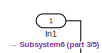
[diagram: VirtualTestBench/Subsystem/Subsystem3/Subsystem2/Subsystem/Subsystem1/Subsystem/Subsystem/Subsystem1/Subsystem2/Subsystem/Subsystem - part 1/5, top right region]
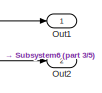
[diagram: VirtualTestBench/Subsystem/Subsystem3/Subsystem2/Subsystem/Subsystem1/Subsystem/Subsystem/Subsystem1/Subsystem2/Subsystem/Subsystem - part 2/5, top right region]
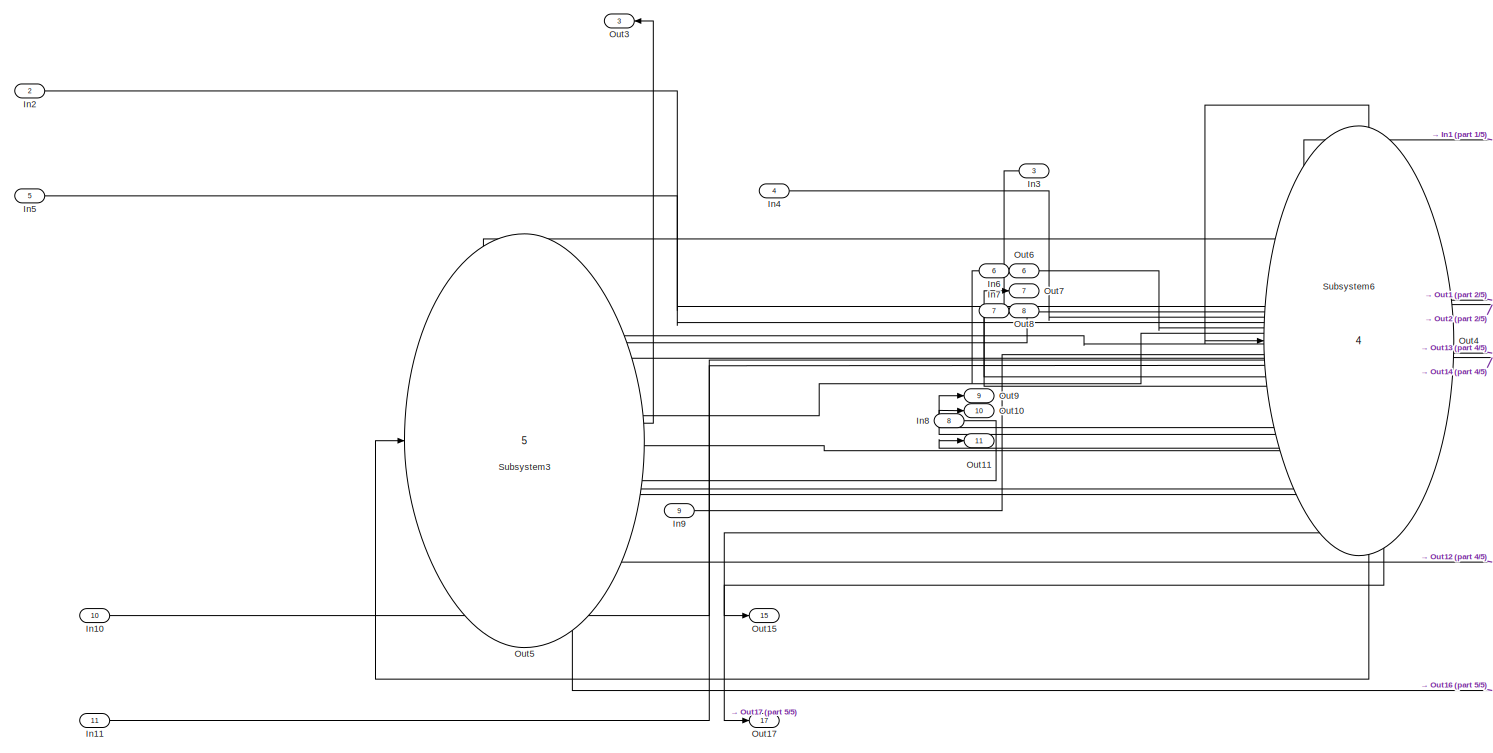
[diagram: VirtualTestBench/Subsystem/Subsystem3/Subsystem2/Subsystem/Subsystem1/Subsystem/Subsystem/Subsystem1/Subsystem2/Subsystem/Subsystem - part 3/5, most of the canvas]
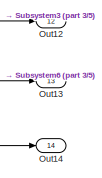
[diagram: VirtualTestBench/Subsystem/Subsystem3/Subsystem2/Subsystem/Subsystem1/Subsystem/Subsystem/Subsystem1/Subsystem2/Subsystem/Subsystem - part 4/5, bottom right region]
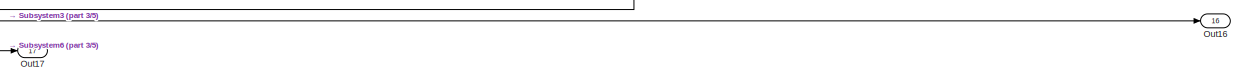
[diagram: VirtualTestBench/Subsystem/Subsystem3/Subsystem2/Subsystem/Subsystem1/Subsystem/Subsystem/Subsystem1/Subsystem2/Subsystem/Subsystem - part 5/5, bottom right region]
BLOCK [SubSystem] VirtualTestBench/Subsystem/Subsystem3/Subsystem2/Subsystem/Subsystem1/Subsystem/Subsystem/Subsystem1/Subsystem2/Subsystem/Subsystem
  NameLocation = left
  Permissions = NoReadOrWrite
  Ports = [11, 17]
  RequestExecContextInheritance = off
BLOCK [Inport] VirtualTestBench/Subsystem/Subsystem3/Subsystem2/Subsystem/Subsystem1/Subsystem/Subsystem/Subsystem1/Subsystem2/Subsystem/Subsystem/In1
BLOCK [Inport] VirtualTestBench/Subsystem/Subsystem3/Subsystem2/Subsystem/Subsystem1/Subsystem/Subsystem/Subsystem1/Subsystem2/Subsystem/Subsystem/In10
  Port = 10
BLOCK [Inport] VirtualTestBench/Subsystem/Subsystem3/Subsystem2/Subsystem/Subsystem1/Subsystem/Subsystem/Subsystem1/Subsystem2/Subsystem/Subsystem/In11
  Port = 11
BLOCK [Inport] VirtualTestBench/Subsystem/Subsystem3/Subsystem2/Subsystem/Subsystem1/Subsystem/Subsystem/Subsystem1/Subsystem2/Subsystem/Subsystem/In2
  Port = 2
BLOCK [Inport] VirtualTestBench/Subsystem/Subsystem3/Subsystem2/Subsystem/Subsystem1/Subsystem/Subsystem/Subsystem1/Subsystem2/Subsystem/Subsystem/In3
  Port = 3
BLOCK [Inport] VirtualTestBench/Subsystem/Subsystem3/Subsystem2/Subsystem/Subsystem1/Subsystem/Subsystem/Subsystem1/Subsystem2/Subsystem/Subsystem/In4
  Port = 4
BLOCK [Inport] VirtualTestBench/Subsystem/Subsystem3/Subsystem2/Subsystem/Subsystem1/Subsystem/Subsystem/Subsystem1/Subsystem2/Subsystem/Subsystem/In5
  Port = 5
BLOCK [Inport] VirtualTestBench/Subsystem/Subsystem3/Subsystem2/Subsystem/Subsystem1/Subsystem/Subsystem/Subsystem1/Subsystem2/Subsystem/Subsystem/In6
  Port = 6
BLOCK [Inport] VirtualTestBench/Subsystem/Subsystem3/Subsystem2/Subsystem/Subsystem1/Subsystem/Subsystem/Subsystem1/Subsystem2/Subsystem/Subsystem/In7
  Port = 7
BLOCK [Inport] VirtualTestBench/Subsystem/Subsystem3/Subsystem2/Subsystem/Subsystem1/Subsystem/Subsystem/Subsystem1/Subsystem2/Subsystem/Subsystem/In8
  Port = 8
BLOCK [Inport] VirtualTestBench/Subsystem/Subsystem3/Subsystem2/Subsystem/Subsystem1/Subsystem/Subsystem/Subsystem1/Subsystem2/Subsystem/Subsystem/In9
  Port = 9
BLOCK [Outport] VirtualTestBench/Subsystem/Subsystem3/Subsystem2/Subsystem/Subsystem1/Subsystem/Subsystem/Subsystem1/Subsystem2/Subsystem/Subsystem/Out1
BLOCK [Outport] VirtualTestBench/Subsystem/Subsystem3/Subsystem2/Subsystem/Subsystem1/Subsystem/Subsystem/Subsystem1/Subsystem2/Subsystem/Subsystem/Out10
  Port = 10
BLOCK [Outport] VirtualTestBench/Subsystem/Subsystem3/Subsystem2/Subsystem/Subsystem1/Subsystem/Subsystem/Subsystem1/Subsystem2/Subsystem/Subsystem/Out11
  Port = 11
BLOCK [Outport] VirtualTestBench/Subsystem/Subsystem3/Subsystem2/Subsystem/Subsystem1/Subsystem/Subsystem/Subsystem1/Subsystem2/Subsystem/Subsystem/Out12
  Port = 12
BLOCK [Outport] VirtualTestBench/Subsystem/Subsystem3/Subsystem2/Subsystem/Subsystem1/Subsystem/Subsystem/Subsystem1/Subsystem2/Subsystem/Subsystem/Out13
  Port = 13
BLOCK [Outport] VirtualTestBench/Subsystem/Subsystem3/Subsystem2/Subsystem/Subsystem1/Subsystem/Subsystem/Subsystem1/Subsystem2/Subsystem/Subsystem/Out14
  Port = 14
BLOCK [Outport] VirtualTestBench/Subsystem/Subsystem3/Subsystem2/Subsystem/Subsystem1/Subsystem/Subsystem/Subsystem1/Subsystem2/Subsystem/Subsystem/Out15
  Port = 15
BLOCK [Outport] VirtualTestBench/Subsystem/Subsystem3/Subsystem2/Subsystem/Subsystem1/Subsystem/Subsystem/Subsystem1/Subsystem2/Subsystem/Subsystem/Out16
  Port = 16
BLOCK [Outport] VirtualTestBench/Subsystem/Subsystem3/Subsystem2/Subsystem/Subsystem1/Subsystem/Subsystem/Subsystem1/Subsystem2/Subsystem/Subsystem/Out17
  Port = 17
BLOCK [Outport] VirtualTestBench/Subsystem/Subsystem3/Subsystem2/Subsystem/Subsystem1/Subsystem/Subsystem/Subsystem1/Subsystem2/Subsystem/Subsystem/Out2
  Port = 2
BLOCK [Outport] VirtualTestBench/Subsystem/Subsystem3/Subsystem2/Subsystem/Subsystem1/Subsystem/Subsystem/Subsystem1/Subsystem2/Subsystem/Subsystem/Out3
  Port = 3
BLOCK [Outport] VirtualTestBench/Subsystem/Subsystem3/Subsystem2/Subsystem/Subsystem1/Subsystem/Subsystem/Subsystem1/Subsystem2/Subsystem/Subsystem/Out4
  Port = 4
BLOCK [Outport] VirtualTestBench/Subsystem/Subsystem3/Subsystem2/Subsystem/Subsystem1/Subsystem/Subsystem/Subsystem1/Subsystem2/Subsystem/Subsystem/Out5
  Port = 5
BLOCK [Outport] VirtualTestBench/Subsystem/Subsystem3/Subsystem2/Subsystem/Subsystem1/Subsystem/Subsystem/Subsystem1/Subsystem2/Subsystem/Subsystem/Out6
  Port = 6
BLOCK [Outport] VirtualTestBench/Subsystem/Subsystem3/Subsystem2/Subsystem/Subsystem1/Subsystem/Subsystem/Subsystem1/Subsystem2/Subsystem/Subsystem/Out7
  Port = 7
BLOCK [Outport] VirtualTestBench/Subsystem/Subsystem3/Subsystem2/Subsystem/Subsystem1/Subsystem/Subsystem/Subsystem1/Subsystem2/Subsystem/Subsystem/Out8
  Port = 8
BLOCK [Outport] VirtualTestBench/Subsystem/Subsystem3/Subsystem2/Subsystem/Subsystem1/Subsystem/Subsystem/Subsystem1/Subsystem2/Subsystem/Subsystem/Out9
  Port = 9
BLOCK [SubSystem] VirtualTestBench/Subsystem/Subsystem3/Subsystem2/Subsystem/Subsystem1/Subsystem/Subsystem/Subsystem1/Subsystem2/Subsystem/Subsystem/Subsystem3
  Permissions = NoReadOrWrite
  Ports = [5, 7]
  RequestExecContextInheritance = off
BLOCK [Inport] VirtualTestBench/Subsystem/Subsystem3/Subsystem2/Subsystem/Subsystem1/Subsystem/Subsystem/Subsystem1/Subsystem2/Subsystem/Subsystem/Subsystem3/In1
BLOCK [Inport] VirtualTestBench/Subsystem/Subsystem3/Subsystem2/Subsystem/Subsystem1/Subsystem/Subsystem/Subsystem1/Subsystem2/Subsystem/Subsystem/Subsystem3/In2
  Port = 2
BLOCK [Inport] VirtualTestBench/Subsystem/Subsystem3/Subsystem2/Subsystem/Subsystem1/Subsystem/Subsystem/Subsystem1/Subsystem2/Subsystem/Subsystem/Subsystem3/In3
  Port = 3
BLOCK [Inport] VirtualTestBench/Subsystem/Subsystem3/Subsystem2/Subsystem/Subsystem1/Subsystem/Subsystem/Subsystem1/Subsystem2/Subsystem/Subsystem/Subsystem3/In4
  Port = 4
BLOCK [Inport] VirtualTestBench/Subsystem/Subsystem3/Subsystem2/Subsystem/Subsystem1/Subsystem/Subsystem/Subsystem1/Subsystem2/Subsystem/Subsystem/Subsystem3/In5
  Port = 5
BLOCK [Outport] VirtualTestBench/Subsystem/Subsystem3/Subsystem2/Subsystem/Subsystem1/Subsystem/Subsystem/Subsystem1/Subsystem2/Subsystem/Subsystem/Subsystem3/Out1
BLOCK [Outport] VirtualTestBench/Subsystem/Subsystem3/Subsystem2/Subsystem/Subsystem1/Subsystem/Subsystem/Subsystem1/Subsystem2/Subsystem/Subsystem/Subsystem3/Out2
  Port = 2
BLOCK [Outport] VirtualTestBench/Subsystem/Subsystem3/Subsystem2/Subsystem/Subsystem1/Subsystem/Subsystem/Subsystem1/Subsystem2/Subsystem/Subsystem/Subsystem3/Out3
  Port = 3
BLOCK [Outport] VirtualTestBench/Subsystem/Subsystem3/Subsystem2/Subsystem/Subsystem1/Subsystem/Subsystem/Subsystem1/Subsystem2/Subsystem/Subsystem/Subsystem3/Out4
  Port = 4
BLOCK [Outport] VirtualTestBench/Subsystem/Subsystem3/Subsystem2/Subsystem/Subsystem1/Subsystem/Subsystem/Subsystem1/Subsystem2/Subsystem/Subsystem/Subsystem3/Out5
  Port = 5
BLOCK [Outport] VirtualTestBench/Subsystem/Subsystem3/Subsystem2/Subsystem/Subsystem1/Subsystem/Subsystem/Subsystem1/Subsystem2/Subsystem/Subsystem/Subsystem3/Out6
  Port = 6
BLOCK [Outport] VirtualTestBench/Subsystem/Subsystem3/Subsystem2/Subsystem/Subsystem1/Subsystem/Subsystem/Subsystem1/Subsystem2/Subsystem/Subsystem/Subsystem3/Out7
  Port = 7
BLOCK [SubSystem] VirtualTestBench/Subsystem/Subsystem3/Subsystem2/Subsystem/Subsystem1/Subsystem/Subsystem/Subsystem1/Subsystem2/Subsystem/Subsystem/Subsystem3/Subsystem2
  Permissions = NoReadOrWrite
  Ports = [5, 7]
  RequestExecContextInheritance = off
BLOCK [Inport] VirtualTestBench/Subsystem/Subsystem3/Subsystem2/Subsystem/Subsystem1/Subsystem/Subsystem/Subsystem1/Subsystem2/Subsystem/Subsystem/Subsystem3/Subsystem2/In1
BLOCK [Inport] VirtualTestBench/Subsystem/Subsystem3/Subsystem2/Subsystem/Subsystem1/Subsystem/Subsystem/Subsystem1/Subsystem2/Subsystem/Subsystem/Subsystem3/Subsystem2/In2
  Port = 2
BLOCK [Inport] VirtualTestBench/Subsystem/Subsystem3/Subsystem2/Subsystem/Subsystem1/Subsystem/Subsystem/Subsystem1/Subsystem2/Subsystem/Subsystem/Subsystem3/Subsystem2/In3
  Port = 3
BLOCK [Inport] VirtualTestBench/Subsystem/Subsystem3/Subsystem2/Subsystem/Subsystem1/Subsystem/Subsystem/Subsystem1/Subsystem2/Subsystem/Subsystem/Subsystem3/Subsystem2/In4
  Port = 4
BLOCK [Inport] VirtualTestBench/Subsystem/Subsystem3/Subsystem2/Subsystem/Subsystem1/Subsystem/Subsystem/Subsystem1/Subsystem2/Subsystem/Subsystem/Subsystem3/Subsystem2/In5
  Port = 5
BLOCK [Outport] VirtualTestBench/Subsystem/Subsystem3/Subsystem2/Subsystem/Subsystem1/Subsystem/Subsystem/Subsystem1/Subsystem2/Subsystem/Subsystem/Subsystem3/Subsystem2/Out1
BLOCK [Outport] VirtualTestBench/Subsystem/Subsystem3/Subsystem2/Subsystem/Subsystem1/Subsystem/Subsystem/Subsystem1/Subsystem2/Subsystem/Subsystem/Subsystem3/Subsystem2/Out2
  Port = 2
BLOCK [Outport] VirtualTestBench/Subsystem/Subsystem3/Subsystem2/Subsystem/Subsystem1/Subsystem/Subsystem/Subsystem1/Subsystem2/Subsystem/Subsystem/Subsystem3/Subsystem2/Out3
  Port = 3
BLOCK [Outport] VirtualTestBench/Subsystem/Subsystem3/Subsystem2/Subsystem/Subsystem1/Subsystem/Subsystem/Subsystem1/Subsystem2/Subsystem/Subsystem/Subsystem3/Subsystem2/Out4
  Port = 4
BLOCK [Outport] VirtualTestBench/Subsystem/Subsystem3/Subsystem2/Subsystem/Subsystem1/Subsystem/Subsystem/Subsystem1/Subsystem2/Subsystem/Subsystem/Subsystem3/Subsystem2/Out5
  Port = 5
BLOCK [Outport] VirtualTestBench/Subsystem/Subsystem3/Subsystem2/Subsystem/Subsystem1/Subsystem/Subsystem/Subsystem1/Subsystem2/Subsystem/Subsystem/Subsystem3/Subsystem2/Out6
  Port = 6
BLOCK [Outport] VirtualTestBench/Subsystem/Subsystem3/Subsystem2/Subsystem/Subsystem1/Subsystem/Subsystem/Subsystem1/Subsystem2/Subsystem/Subsystem/Subsystem3/Subsystem2/Out7
  Port = 7
BLOCK [SubSystem] VirtualTestBench/Subsystem/Subsystem3/Subsystem2/Subsystem/Subsystem1/Subsystem/Subsystem/Subsystem1/Subsystem2/Subsystem/Subsystem/Subsystem3/Subsystem2/Subsystem
  Ports = [2, 3]
  RequestExecContextInheritance = off
BLOCK [Sum] VirtualTestBench/Subsystem/Subsystem3/Subsystem2/Subsystem/Subsystem1/Subsystem/Subsystem/Subsystem1/Subsystem2/Subsystem/Subsystem/Subsystem3/Subsystem2/Subsystem/Add1
  IconShape = rectangular
  Ports = [2, 1]
BLOCK [Inport] VirtualTestBench/Subsystem/Subsystem3/Subsystem2/Subsystem/Subsystem1/Subsystem/Subsystem/Subsystem1/Subsystem2/Subsystem/Subsystem/Subsystem3/Subsystem2/Subsystem/In1
BLOCK [Inport] VirtualTestBench/Subsystem/Subsystem3/Subsystem2/Subsystem/Subsystem1/Subsystem/Subsystem/Subsystem1/Subsystem2/Subsystem/Subsystem/Subsystem3/Subsystem2/Subsystem/In2
  Port = 2
BLOCK [Outport] VirtualTestBench/Subsystem/Subsystem3/Subsystem2/Subsystem/Subsystem1/Subsystem/Subsystem/Subsystem1/Subsystem2/Subsystem/Subsystem/Subsystem3/Subsystem2/Subsystem/Out1
BLOCK [Outport] VirtualTestBench/Subsystem/Subsystem3/Subsystem2/Subsystem/Subsystem1/Subsystem/Subsystem/Subsystem1/Subsystem2/Subsystem/Subsystem/Subsystem3/Subsystem2/Subsystem/Out2
  Port = 2
BLOCK [Outport] VirtualTestBench/Subsystem/Subsystem3/Subsystem2/Subsystem/Subsystem1/Subsystem/Subsystem/Subsystem1/Subsystem2/Subsystem/Subsystem/Subsystem3/Subsystem2/Subsystem/Out3
  Port = 3
BLOCK [SubSystem] VirtualTestBench/Subsystem/Subsystem3/Subsystem2/Subsystem/Subsystem1/Subsystem/Subsystem/Subsystem1/Subsystem2/Subsystem/Subsystem/Subsystem3/Subsystem2/Subsystem/Pload2Profile
  ClipboardFcn = sigbuilder_block('clipboard');
  CloseFcn = sigbuilder_block('close');
  ContinueFcn = sigbuilder_block('continue');
  CopyFcn = sigbuilder_block('copy');
  DeleteFcn = sigbuilder_block('delete');
  LoadFcn = sigbuilder_block('load');
  MaskHideContents = on
  ModelCloseFcn = sigbuilder_block('modelClose');
  NameChangeFcn = sigbuilder_block('namechange');
  OpenFcn = sigbuilder_block('open',[333 0.6 551.4 585.6 ]);
  PauseFcn = sigbuilder_block('pause');
  Ports = [0, 1]
  PreSaveFcn = sigbuilder_block('preSave');
  RequestExecContextInheritance = off
  StartFcn = sigbuilder_block('start');
  StopFcn = sigbuilder_block('stop');
  Tag = STV Subsys
BLOCK [Demux] VirtualTestBench/Subsystem/Subsystem3/Subsystem2/Subsystem/Subsystem1/Subsystem/Subsystem/Subsystem1/Subsystem2/Subsystem/Subsystem/Subsystem3/Subsystem2/Subsystem/Pload2Profile/Demux
  DisplayOption = none
  Outputs = 1
  Ports = [1, 1]
  Tag = STV Demux
BLOCK [FromWorkspace] VirtualTestBench/Subsystem/Subsystem3/Subsystem2/Subsystem/Subsystem1/Subsystem/Subsystem/Subsystem1/Subsystem2/Subsystem/Subsystem/Subsystem3/Subsystem2/Subsystem/Pload2Profile/FromWs
  Tag = STV FromWs
  VariableName = tuvar
BLOCK [Outport] VirtualTestBench/Subsystem/Subsystem3/Subsystem2/Subsystem/Subsystem1/Subsystem/Subsystem/Subsystem1/Subsystem2/Subsystem/Subsystem/Subsystem3/Subsystem2/Subsystem/Pload2Profile/Signal_Value
  Tag = STV Outport
BLOCK [Reference] VirtualTestBench/Subsystem/Subsystem3/Subsystem2/Subsystem/Subsystem1/Subsystem/Subsystem/Subsystem1/Subsystem2/Subsystem/Subsystem/Subsystem3/Subsystem2/Subsystem/Sampling Clock Source  REF=msbAdcFoundation/Sampling Clock Source
  Ports = [0, 1]
  SourceBlock = msbAdcFoundation/Sampling Clock Source
  SourceProductBaseCode = AM
  SourceType = SamplingClockSource
BLOCK [SubSystem] VirtualTestBench/Subsystem/Subsystem3/Subsystem2/Subsystem/Subsystem1/Subsystem/Subsystem/Subsystem1/Subsystem2/Subsystem/Subsystem/Subsystem3/Subsystem2/Subsystem1
  Permissions = NoReadOrWrite
  Ports = [3, 4]
  RequestExecContextInheritance = off
BLOCK [Reference] VirtualTestBench/Subsystem/Subsystem3/Subsystem2/Subsystem/Subsystem1/Subsystem/Subsystem/Subsystem1/Subsystem2/Subsystem/Subsystem/Subsystem3/Subsystem2/Subsystem1/Compare To Constant2  REF=simulink/Logic and Bit
Operations/Compare
To Constant
  Ports = [1, 1]
  SourceBlock = simulink/Logic and Bit\nOperations/Compare\nTo Constant
  SourceProductBaseCode = SL
  SourceType = Compare To Constant
BLOCK [Inport] VirtualTestBench/Subsystem/Subsystem3/Subsystem2/Subsystem/Subsystem1/Subsystem/Subsystem/Subsystem1/Subsystem2/Subsystem/Subsystem/Subsystem3/Subsystem2/Subsystem1/In1
BLOCK [Inport] VirtualTestBench/Subsystem/Subsystem3/Subsystem2/Subsystem/Subsystem1/Subsystem/Subsystem/Subsystem1/Subsystem2/Subsystem/Subsystem/Subsystem3/Subsystem2/Subsystem1/In2
  Port = 2
BLOCK [Inport] VirtualTestBench/Subsystem/Subsystem3/Subsystem2/Subsystem/Subsystem1/Subsystem/Subsystem/Subsystem1/Subsystem2/Subsystem/Subsystem/Subsystem3/Subsystem2/Subsystem1/In3
  Port = 3
BLOCK [Outport] VirtualTestBench/Subsystem/Subsystem3/Subsystem2/Subsystem/Subsystem1/Subsystem/Subsystem/Subsystem1/Subsystem2/Subsystem/Subsystem/Subsystem3/Subsystem2/Subsystem1/Out1
BLOCK [Outport] VirtualTestBench/Subsystem/Subsystem3/Subsystem2/Subsystem/Subsystem1/Subsystem/Subsystem/Subsystem1/Subsystem2/Subsystem/Subsystem/Subsystem3/Subsystem2/Subsystem1/Out2
  Port = 2
BLOCK [Outport] VirtualTestBench/Subsystem/Subsystem3/Subsystem2/Subsystem/Subsystem1/Subsystem/Subsystem/Subsystem1/Subsystem2/Subsystem/Subsystem/Subsystem3/Subsystem2/Subsystem1/Out3
  Port = 3
BLOCK [Outport] VirtualTestBench/Subsystem/Subsystem3/Subsystem2/Subsystem/Subsystem1/Subsystem/Subsystem/Subsystem1/Subsystem2/Subsystem/Subsystem/Subsystem3/Subsystem2/Subsystem1/Out4
  Port = 4
BLOCK [SubSystem] VirtualTestBench/Subsystem/Subsystem3/Subsystem2/Subsystem/Subsystem1/Subsystem/Subsystem/Subsystem1/Subsystem2/Subsystem/Subsystem/Subsystem3/Subsystem2/Subsystem1/Subsystem2
  Permissions = NoReadOrWrite
  Ports = [2, 3]
  RequestExecContextInheritance = off
BLOCK [Delay] VirtualTestBench/Subsystem/Subsystem3/Subsystem2/Subsystem/Subsystem1/Subsystem/Subsystem/Subsystem1/Subsystem2/Subsystem/Subsystem/Subsystem3/Subsystem2/Subsystem1/Subsystem2/Delay
  DelayLength = 1
  InitialCondition = 0
  InputPortMap = u0
  Ports = [1, 1]
  SampleTime = 0.1
BLOCK [Inport] VirtualTestBench/Subsystem/Subsystem3/Subsystem2/Subsystem/Subsystem1/Subsystem/Subsystem/Subsystem1/Subsystem2/Subsystem/Subsystem/Subsystem3/Subsystem2/Subsystem1/Subsystem2/In1
BLOCK [Inport] VirtualTestBench/Subsystem/Subsystem3/Subsystem2/Subsystem/Subsystem1/Subsystem/Subsystem/Subsystem1/Subsystem2/Subsystem/Subsystem/Subsystem3/Subsystem2/Subsystem1/Subsystem2/In2
  Port = 2
BLOCK [Outport] VirtualTestBench/Subsystem/Subsystem3/Subsystem2/Subsystem/Subsystem1/Subsystem/Subsystem/Subsystem1/Subsystem2/Subsystem/Subsystem/Subsystem3/Subsystem2/Subsystem1/Subsystem2/Out1
BLOCK [Outport] VirtualTestBench/Subsystem/Subsystem3/Subsystem2/Subsystem/Subsystem1/Subsystem/Subsystem/Subsystem1/Subsystem2/Subsystem/Subsystem/Subsystem3/Subsystem2/Subsystem1/Subsystem2/Out2
  Port = 2
BLOCK [Outport] VirtualTestBench/Subsystem/Subsystem3/Subsystem2/Subsystem/Subsystem1/Subsystem/Subsystem/Subsystem1/Subsystem2/Subsystem/Subsystem/Subsystem3/Subsystem2/Subsystem1/Subsystem2/Out3
  Port = 3
BLOCK [SubSystem] VirtualTestBench/Subsystem/Subsystem3/Subsystem2/Subsystem/Subsystem1/Subsystem/Subsystem/Subsystem1/Subsystem2/Subsystem/Subsystem/Subsystem3/Subsystem2/Subsystem1/Subsystem2/Subsystem1
  Permissions = NoReadOrWrite
  Ports = [1, 2]
  RequestExecContextInheritance = off
BLOCK [Inport] VirtualTestBench/Subsystem/Subsystem3/Subsystem2/Subsystem/Subsystem1/Subsystem/Subsystem/Subsystem1/Subsystem2/Subsystem/Subsystem/Subsystem3/Subsystem2/Subsystem1/Subsystem2/Subsystem1/In1
BLOCK [SubSystem] VirtualTestBench/Subsystem/Subsystem3/Subsystem2/Subsystem/Subsystem1/Subsystem/Subsystem/Subsystem1/Subsystem2/Subsystem/Subsystem/Subsystem3/Subsystem2/Subsystem1/Subsystem2/Subsystem1/LoadGeneration
  ClipboardFcn = sigbuilder_block('clipboard');
  CloseFcn = sigbuilder_block('close');
  ContinueFcn = sigbuilder_block('continue');
  CopyFcn = sigbuilder_block('copy');
  DeleteFcn = sigbuilder_block('delete');
  LoadFcn = sigbuilder_block('load');
  MaskHideContents = on
  ModelCloseFcn = sigbuilder_block('modelClose');
  NameChangeFcn = sigbuilder_block('namechange');
  OpenFcn = sigbuilder_block('open',[318.6 -4.2 551.4 585.6 ]);
  PauseFcn = sigbuilder_block('pause');
  Ports = [0, 1]
  PreSaveFcn = sigbuilder_block('preSave');
  RequestExecContextInheritance = off
  StartFcn = sigbuilder_block('start');
  StopFcn = sigbuilder_block('stop');
  Tag = STV Subsys
BLOCK [Demux] VirtualTestBench/Subsystem/Subsystem3/Subsystem2/Subsystem/Subsystem1/Subsystem/Subsystem/Subsystem1/Subsystem2/Subsystem/Subsystem/Subsystem3/Subsystem2/Subsystem1/Subsystem2/Subsystem1/LoadGeneration/Demux
  DisplayOption = none
  Outputs = 1
  Ports = [1, 1]
  Tag = STV Demux
BLOCK [FromWorkspace] VirtualTestBench/Subsystem/Subsystem3/Subsystem2/Subsystem/Subsystem1/Subsystem/Subsystem/Subsystem1/Subsystem2/Subsystem/Subsystem/Subsystem3/Subsystem2/Subsystem1/Subsystem2/Subsystem1/LoadGeneration/FromWs
  Tag = STV FromWs
  VariableName = tuvar
BLOCK [Outport] VirtualTestBench/Subsystem/Subsystem3/Subsystem2/Subsystem/Subsystem1/Subsystem/Subsystem/Subsystem1/Subsystem2/Subsystem/Subsystem/Subsystem3/Subsystem2/Subsystem1/Subsystem2/Subsystem1/LoadGeneration/Signal_Value
  Tag = STV Outport
BLOCK [Outport] VirtualTestBench/Subsystem/Subsystem3/Subsystem2/Subsystem/Subsystem1/Subsystem/Subsystem/Subsystem1/Subsystem2/Subsystem/Subsystem/Subsystem3/Subsystem2/Subsystem1/Subsystem2/Subsystem1/Out1
BLOCK [Outport] VirtualTestBench/Subsystem/Subsystem3/Subsystem2/Subsystem/Subsystem1/Subsystem/Subsystem/Subsystem1/Subsystem2/Subsystem/Subsystem/Subsystem3/Subsystem2/Subsystem1/Subsystem2/Subsystem1/Out2
  Port = 2
BLOCK [SubSystem] VirtualTestBench/Subsystem/Subsystem3/Subsystem2/Subsystem/Subsystem1/Subsystem/Subsystem/Subsystem1/Subsystem2/Subsystem/Subsystem/Subsystem3/Subsystem2/Subsystem1/Subsystem2/Subsystem1/ToDouble
  Ports = [1, 1]
  RequestExecContextInheritance = off
BLOCK [DataTypeConversion] VirtualTestBench/Subsystem/Subsystem3/Subsystem2/Subsystem/Subsystem1/Subsystem/Subsystem/Subsystem1/Subsystem2/Subsystem/Subsystem/Subsystem3/Subsystem2/Subsystem1/Subsystem2/Subsystem1/ToDouble/Data Type Conversion
  OutDataTypeStr = double
  RndMeth = Floor
  SaturateOnIntegerOverflow = off
BLOCK [Inport] VirtualTestBench/Subsystem/Subsystem3/Subsystem2/Subsystem/Subsystem1/Subsystem/Subsystem/Subsystem1/Subsystem2/Subsystem/Subsystem/Subsystem3/Subsystem2/Subsystem1/Subsystem2/Subsystem1/ToDouble/In1
  OutDataTypeStr = boolean
BLOCK [Outport] VirtualTestBench/Subsystem/Subsystem3/Subsystem2/Subsystem/Subsystem1/Subsystem/Subsystem/Subsystem1/Subsystem2/Subsystem/Subsystem/Subsystem3/Subsystem2/Subsystem1/Subsystem2/Subsystem1/ToDouble/Out1
BLOCK [SubSystem] VirtualTestBench/Subsystem/Subsystem3/Subsystem2/Subsystem/Subsystem1/Subsystem/Subsystem/Subsystem1/Subsystem2/Subsystem/Subsystem/Subsystem6
  Permissions = NoReadOrWrite
  Ports = [13, 16]
  RequestExecContextInheritance = off
BLOCK [Inport] VirtualTestBench/Subsystem/Subsystem3/Subsystem2/Subsystem/Subsystem1/Subsystem/Subsystem/Subsystem1/Subsystem2/Subsystem/Subsystem/Subsystem6/In1
BLOCK [Inport] VirtualTestBench/Subsystem/Subsystem3/Subsystem2/Subsystem/Subsystem1/Subsystem/Subsystem/Subsystem1/Subsystem2/Subsystem/Subsystem/Subsystem6/In10
  Port = 10
BLOCK [Inport] VirtualTestBench/Subsystem/Subsystem3/Subsystem2/Subsystem/Subsystem1/Subsystem/Subsystem/Subsystem1/Subsystem2/Subsystem/Subsystem/Subsystem6/In11
  Port = 11
BLOCK [Inport] VirtualTestBench/Subsystem/Subsystem3/Subsystem2/Subsystem/Subsystem1/Subsystem/Subsystem/Subsystem1/Subsystem2/Subsystem/Subsystem/Subsystem6/In12
  Port = 12
BLOCK [Inport] VirtualTestBench/Subsystem/Subsystem3/Subsystem2/Subsystem/Subsystem1/Subsystem/Subsystem/Subsystem1/Subsystem2/Subsystem/Subsystem/Subsystem6/In13
  Port = 13
BLOCK [Inport] VirtualTestBench/Subsystem/Subsystem3/Subsystem2/Subsystem/Subsystem1/Subsystem/Subsystem/Subsystem1/Subsystem2/Subsystem/Subsystem/Subsystem6/In2
  Port = 2
BLOCK [Inport] VirtualTestBench/Subsystem/Subsystem3/Subsystem2/Subsystem/Subsystem1/Subsystem/Subsystem/Subsystem1/Subsystem2/Subsystem/Subsystem/Subsystem6/In3
  Port = 3
BLOCK [Inport] VirtualTestBench/Subsystem/Subsystem3/Subsystem2/Subsystem/Subsystem1/Subsystem/Subsystem/Subsystem1/Subsystem2/Subsystem/Subsystem/Subsystem6/In4
  Port = 4
BLOCK [Inport] VirtualTestBench/Subsystem/Subsystem3/Subsystem2/Subsystem/Subsystem1/Subsystem/Subsystem/Subsystem1/Subsystem2/Subsystem/Subsystem/Subsystem6/In5
  Port = 5
BLOCK [Inport] VirtualTestBench/Subsystem/Subsystem3/Subsystem2/Subsystem/Subsystem1/Subsystem/Subsystem/Subsystem1/Subsystem2/Subsystem/Subsystem/Subsystem6/In6
  Port = 6
BLOCK [Inport] VirtualTestBench/Subsystem/Subsystem3/Subsystem2/Subsystem/Subsystem1/Subsystem/Subsystem/Subsystem1/Subsystem2/Subsystem/Subsystem/Subsystem6/In7
  Port = 7
BLOCK [Inport] VirtualTestBench/Subsystem/Subsystem3/Subsystem2/Subsystem/Subsystem1/Subsystem/Subsystem/Subsystem1/Subsystem2/Subsystem/Subsystem/Subsystem6/In8
  Port = 8
BLOCK [Inport] VirtualTestBench/Subsystem/Subsystem3/Subsystem2/Subsystem/Subsystem1/Subsystem/Subsystem/Subsystem1/Subsystem2/Subsystem/Subsystem/Subsystem6/In9
  Port = 9
BLOCK [Outport] VirtualTestBench/Subsystem/Subsystem3/Subsystem2/Subsystem/Subsystem1/Subsystem/Subsystem/Subsystem1/Subsystem2/Subsystem/Subsystem/Subsystem6/Out1
BLOCK [Outport] VirtualTestBench/Subsystem/Subsystem3/Subsystem2/Subsystem/Subsystem1/Subsystem/Subsystem/Subsystem1/Subsystem2/Subsystem/Subsystem/Subsystem6/Out10
  Port = 10
BLOCK [Outport] VirtualTestBench/Subsystem/Subsystem3/Subsystem2/Subsystem/Subsystem1/Subsystem/Subsystem/Subsystem1/Subsystem2/Subsystem/Subsystem/Subsystem6/Out11
  Port = 11
BLOCK [Outport] VirtualTestBench/Subsystem/Subsystem3/Subsystem2/Subsystem/Subsystem1/Subsystem/Subsystem/Subsystem1/Subsystem2/Subsystem/Subsystem/Subsystem6/Out12
  Port = 12
BLOCK [Outport] VirtualTestBench/Subsystem/Subsystem3/Subsystem2/Subsystem/Subsystem1/Subsystem/Subsystem/Subsystem1/Subsystem2/Subsystem/Subsystem/Subsystem6/Out13
  Port = 13
BLOCK [Outport] VirtualTestBench/Subsystem/Subsystem3/Subsystem2/Subsystem/Subsystem1/Subsystem/Subsystem/Subsystem1/Subsystem2/Subsystem/Subsystem/Subsystem6/Out14
  Port = 14
BLOCK [Outport] VirtualTestBench/Subsystem/Subsystem3/Subsystem2/Subsystem/Subsystem1/Subsystem/Subsystem/Subsystem1/Subsystem2/Subsystem/Subsystem/Subsystem6/Out15
  Port = 15
BLOCK [Outport] VirtualTestBench/Subsystem/Subsystem3/Subsystem2/Subsystem/Subsystem1/Subsystem/Subsystem/Subsystem1/Subsystem2/Subsystem/Subsystem/Subsystem6/Out16
  Port = 16
BLOCK [Outport] VirtualTestBench/Subsystem/Subsystem3/Subsystem2/Subsystem/Subsystem1/Subsystem/Subsystem/Subsystem1/Subsystem2/Subsystem/Subsystem/Subsystem6/Out2
  Port = 2
BLOCK [Outport] VirtualTestBench/Subsystem/Subsystem3/Subsystem2/Subsystem/Subsystem1/Subsystem/Subsystem/Subsystem1/Subsystem2/Subsystem/Subsystem/Subsystem6/Out3
  Port = 3
BLOCK [Outport] VirtualTestBench/Subsystem/Subsystem3/Subsystem2/Subsystem/Subsystem1/Subsystem/Subsystem/Subsystem1/Subsystem2/Subsystem/Subsystem/Subsystem6/Out4
  Port = 4
BLOCK [Outport] VirtualTestBench/Subsystem/Subsystem3/Subsystem2/Subsystem/Subsystem1/Subsystem/Subsystem/Subsystem1/Subsystem2/Subsystem/Subsystem/Subsystem6/Out5
  Port = 5
BLOCK [Outport] VirtualTestBench/Subsystem/Subsystem3/Subsystem2/Subsystem/Subsystem1/Subsystem/Subsystem/Subsystem1/Subsystem2/Subsystem/Subsystem/Subsystem6/Out6
  Port = 6
BLOCK [Outport] VirtualTestBench/Subsystem/Subsystem3/Subsystem2/Subsystem/Subsystem1/Subsystem/Subsystem/Subsystem1/Subsystem2/Subsystem/Subsystem/Subsystem6/Out7
  Port = 7
BLOCK [Outport] VirtualTestBench/Subsystem/Subsystem3/Subsystem2/Subsystem/Subsystem1/Subsystem/Subsystem/Subsystem1/Subsystem2/Subsystem/Subsystem/Subsystem6/Out8
  Port = 8
BLOCK [Outport] VirtualTestBench/Subsystem/Subsystem3/Subsystem2/Subsystem/Subsystem1/Subsystem/Subsystem/Subsystem1/Subsystem2/Subsystem/Subsystem/Subsystem6/Out9
  Port = 9
BLOCK [SubSystem] VirtualTestBench/Subsystem/Subsystem3/Subsystem2/Subsystem/Subsystem1/Subsystem/Subsystem/Subsystem1/Subsystem2/Subsystem/Subsystem/Subsystem6/Subsystem
  Permissions = NoReadOrWrite
  Ports = [13, 16]
  RequestExecContextInheritance = off
BLOCK [Inport] VirtualTestBench/Subsystem/Subsystem3/Subsystem2/Subsystem/Subsystem1/Subsystem/Subsystem/Subsystem1/Subsystem2/Subsystem/Subsystem/Subsystem6/Subsystem/In1
BLOCK [Inport] VirtualTestBench/Subsystem/Subsystem3/Subsystem2/Subsystem/Subsystem1/Subsystem/Subsystem/Subsystem1/Subsystem2/Subsystem/Subsystem/Subsystem6/Subsystem/In10
  Port = 10
BLOCK [Inport] VirtualTestBench/Subsystem/Subsystem3/Subsystem2/Subsystem/Subsystem1/Subsystem/Subsystem/Subsystem1/Subsystem2/Subsystem/Subsystem/Subsystem6/Subsystem/In11
  Port = 11
BLOCK [Inport] VirtualTestBench/Subsystem/Subsystem3/Subsystem2/Subsystem/Subsystem1/Subsystem/Subsystem/Subsystem1/Subsystem2/Subsystem/Subsystem/Subsystem6/Subsystem/In12
  Port = 12
BLOCK [Inport] VirtualTestBench/Subsystem/Subsystem3/Subsystem2/Subsystem/Subsystem1/Subsystem/Subsystem/Subsystem1/Subsystem2/Subsystem/Subsystem/Subsystem6/Subsystem/In13
  Port = 13
BLOCK [Inport] VirtualTestBench/Subsystem/Subsystem3/Subsystem2/Subsystem/Subsystem1/Subsystem/Subsystem/Subsystem1/Subsystem2/Subsystem/Subsystem/Subsystem6/Subsystem/In2
  Port = 2
BLOCK [Inport] VirtualTestBench/Subsystem/Subsystem3/Subsystem2/Subsystem/Subsystem1/Subsystem/Subsystem/Subsystem1/Subsystem2/Subsystem/Subsystem/Subsystem6/Subsystem/In3
  Port = 3
BLOCK [Inport] VirtualTestBench/Subsystem/Subsystem3/Subsystem2/Subsystem/Subsystem1/Subsystem/Subsystem/Subsystem1/Subsystem2/Subsystem/Subsystem/Subsystem6/Subsystem/In4
  Port = 4
BLOCK [Inport] VirtualTestBench/Subsystem/Subsystem3/Subsystem2/Subsystem/Subsystem1/Subsystem/Subsystem/Subsystem1/Subsystem2/Subsystem/Subsystem/Subsystem6/Subsystem/In5
  Port = 5
BLOCK [Inport] VirtualTestBench/Subsystem/Subsystem3/Subsystem2/Subsystem/Subsystem1/Subsystem/Subsystem/Subsystem1/Subsystem2/Subsystem/Subsystem/Subsystem6/Subsystem/In6
  Port = 6
BLOCK [Inport] VirtualTestBench/Subsystem/Subsystem3/Subsystem2/Subsystem/Subsystem1/Subsystem/Subsystem/Subsystem1/Subsystem2/Subsystem/Subsystem/Subsystem6/Subsystem/In7
  Port = 7
BLOCK [Inport] VirtualTestBench/Subsystem/Subsystem3/Subsystem2/Subsystem/Subsystem1/Subsystem/Subsystem/Subsystem1/Subsystem2/Subsystem/Subsystem/Subsystem6/Subsystem/In8
  Port = 8
BLOCK [Inport] VirtualTestBench/Subsystem/Subsystem3/Subsystem2/Subsystem/Subsystem1/Subsystem/Subsystem/Subsystem1/Subsystem2/Subsystem/Subsystem/Subsystem6/Subsystem/In9
  Port = 9
BLOCK [Outport] VirtualTestBench/Subsystem/Subsystem3/Subsystem2/Subsystem/Subsystem1/Subsystem/Subsystem/Subsystem1/Subsystem2/Subsystem/Subsystem/Subsystem6/Subsystem/Out1
BLOCK [Outport] VirtualTestBench/Subsystem/Subsystem3/Subsystem2/Subsystem/Subsystem1/Subsystem/Subsystem/Subsystem1/Subsystem2/Subsystem/Subsystem/Subsystem6/Subsystem/Out10
  Port = 10
BLOCK [Outport] VirtualTestBench/Subsystem/Subsystem3/Subsystem2/Subsystem/Subsystem1/Subsystem/Subsystem/Subsystem1/Subsystem2/Subsystem/Subsystem/Subsystem6/Subsystem/Out11
  Port = 11
BLOCK [Outport] VirtualTestBench/Subsystem/Subsystem3/Subsystem2/Subsystem/Subsystem1/Subsystem/Subsystem/Subsystem1/Subsystem2/Subsystem/Subsystem/Subsystem6/Subsystem/Out12
  Port = 12
BLOCK [Outport] VirtualTestBench/Subsystem/Subsystem3/Subsystem2/Subsystem/Subsystem1/Subsystem/Subsystem/Subsystem1/Subsystem2/Subsystem/Subsystem/Subsystem6/Subsystem/Out13
  Port = 13
BLOCK [Outport] VirtualTestBench/Subsystem/Subsystem3/Subsystem2/Subsystem/Subsystem1/Subsystem/Subsystem/Subsystem1/Subsystem2/Subsystem/Subsystem/Subsystem6/Subsystem/Out14
  Port = 14
BLOCK [Outport] VirtualTestBench/Subsystem/Subsystem3/Subsystem2/Subsystem/Subsystem1/Subsystem/Subsystem/Subsystem1/Subsystem2/Subsystem/Subsystem/Subsystem6/Subsystem/Out15
  Port = 15
BLOCK [Outport] VirtualTestBench/Subsystem/Subsystem3/Subsystem2/Subsystem/Subsystem1/Subsystem/Subsystem/Subsystem1/Subsystem2/Subsystem/Subsystem/Subsystem6/Subsystem/Out16
  Port = 16
BLOCK [Outport] VirtualTestBench/Subsystem/Subsystem3/Subsystem2/Subsystem/Subsystem1/Subsystem/Subsystem/Subsystem1/Subsystem2/Subsystem/Subsystem/Subsystem6/Subsystem/Out2
  Port = 2
BLOCK [Outport] VirtualTestBench/Subsystem/Subsystem3/Subsystem2/Subsystem/Subsystem1/Subsystem/Subsystem/Subsystem1/Subsystem2/Subsystem/Subsystem/Subsystem6/Subsystem/Out3
  Port = 3
BLOCK [Outport] VirtualTestBench/Subsystem/Subsystem3/Subsystem2/Subsystem/Subsystem1/Subsystem/Subsystem/Subsystem1/Subsystem2/Subsystem/Subsystem/Subsystem6/Subsystem/Out4
  Port = 4
BLOCK [Outport] VirtualTestBench/Subsystem/Subsystem3/Subsystem2/Subsystem/Subsystem1/Subsystem/Subsystem/Subsystem1/Subsystem2/Subsystem/Subsystem/Subsystem6/Subsystem/Out5
  Port = 5
BLOCK [Outport] VirtualTestBench/Subsystem/Subsystem3/Subsystem2/Subsystem/Subsystem1/Subsystem/Subsystem/Subsystem1/Subsystem2/Subsystem/Subsystem/Subsystem6/Subsystem/Out6
  Port = 6
BLOCK [Outport] VirtualTestBench/Subsystem/Subsystem3/Subsystem2/Subsystem/Subsystem1/Subsystem/Subsystem/Subsystem1/Subsystem2/Subsystem/Subsystem/Subsystem6/Subsystem/Out7
  Port = 7
BLOCK [Outport] VirtualTestBench/Subsystem/Subsystem3/Subsystem2/Subsystem/Subsystem1/Subsystem/Subsystem/Subsystem1/Subsystem2/Subsystem/Subsystem/Subsystem6/Subsystem/Out8
  Port = 8
BLOCK [Outport] VirtualTestBench/Subsystem/Subsystem3/Subsystem2/Subsystem/Subsystem1/Subsystem/Subsystem/Subsystem1/Subsystem2/Subsystem/Subsystem/Subsystem6/Subsystem/Out9
  Port = 9
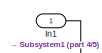
[diagram: VirtualTestBench/Subsystem/Subsystem3/Subsystem2/Subsystem/Subsystem1/Subsystem/Subsystem/Subsystem1/Subsystem2/Subsystem/Subsystem/Subsystem6/Subsystem/Subsystem - part 1/5, top right region]
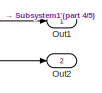
[diagram: VirtualTestBench/Subsystem/Subsystem3/Subsystem2/Subsystem/Subsystem1/Subsystem/Subsystem/Subsystem1/Subsystem2/Subsystem/Subsystem/Subsystem6/Subsystem/Subsystem - part 2/5, top right region]
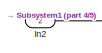
[diagram: VirtualTestBench/Subsystem/Subsystem3/Subsystem2/Subsystem/Subsystem1/Subsystem/Subsystem/Subsystem1/Subsystem2/Subsystem/Subsystem/Subsystem6/Subsystem/Subsystem - part 3/5, top left region]
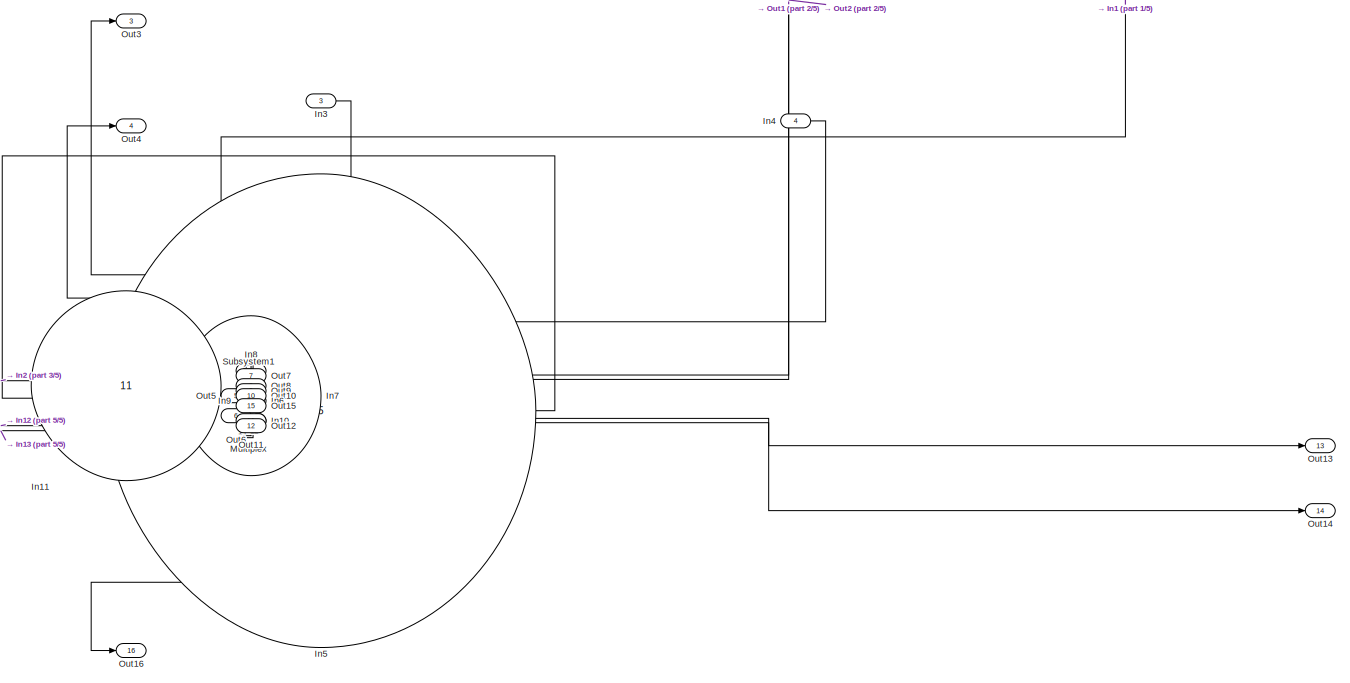
[diagram: VirtualTestBench/Subsystem/Subsystem3/Subsystem2/Subsystem/Subsystem1/Subsystem/Subsystem/Subsystem1/Subsystem2/Subsystem/Subsystem/Subsystem6/Subsystem/Subsystem - part 4/5, central region]
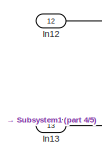
[diagram: VirtualTestBench/Subsystem/Subsystem3/Subsystem2/Subsystem/Subsystem1/Subsystem/Subsystem/Subsystem1/Subsystem2/Subsystem/Subsystem/Subsystem6/Subsystem/Subsystem - part 5/5, bottom left region]
BLOCK [SubSystem] VirtualTestBench/Subsystem/Subsystem3/Subsystem2/Subsystem/Subsystem1/Subsystem/Subsystem/Subsystem1/Subsystem2/Subsystem/Subsystem/Subsystem6/Subsystem/Subsystem
  Permissions = NoReadOrWrite
  Ports = [13, 16]
  RequestExecContextInheritance = off
BLOCK [Inport] VirtualTestBench/Subsystem/Subsystem3/Subsystem2/Subsystem/Subsystem1/Subsystem/Subsystem/Subsystem1/Subsystem2/Subsystem/Subsystem/Subsystem6/Subsystem/Subsystem/In1
BLOCK [Inport] VirtualTestBench/Subsystem/Subsystem3/Subsystem2/Subsystem/Subsystem1/Subsystem/Subsystem/Subsystem1/Subsystem2/Subsystem/Subsystem/Subsystem6/Subsystem/Subsystem/In10
  Port = 10
BLOCK [Inport] VirtualTestBench/Subsystem/Subsystem3/Subsystem2/Subsystem/Subsystem1/Subsystem/Subsystem/Subsystem1/Subsystem2/Subsystem/Subsystem/Subsystem6/Subsystem/Subsystem/In11
  Port = 11
BLOCK [Inport] VirtualTestBench/Subsystem/Subsystem3/Subsystem2/Subsystem/Subsystem1/Subsystem/Subsystem/Subsystem1/Subsystem2/Subsystem/Subsystem/Subsystem6/Subsystem/Subsystem/In12
  Port = 12
BLOCK [Inport] VirtualTestBench/Subsystem/Subsystem3/Subsystem2/Subsystem/Subsystem1/Subsystem/Subsystem/Subsystem1/Subsystem2/Subsystem/Subsystem/Subsystem6/Subsystem/Subsystem/In13
  Port = 13
BLOCK [Inport] VirtualTestBench/Subsystem/Subsystem3/Subsystem2/Subsystem/Subsystem1/Subsystem/Subsystem/Subsystem1/Subsystem2/Subsystem/Subsystem/Subsystem6/Subsystem/Subsystem/In2
  Port = 2
BLOCK [Inport] VirtualTestBench/Subsystem/Subsystem3/Subsystem2/Subsystem/Subsystem1/Subsystem/Subsystem/Subsystem1/Subsystem2/Subsystem/Subsystem/Subsystem6/Subsystem/Subsystem/In3
  Port = 3
BLOCK [Inport] VirtualTestBench/Subsystem/Subsystem3/Subsystem2/Subsystem/Subsystem1/Subsystem/Subsystem/Subsystem1/Subsystem2/Subsystem/Subsystem/Subsystem6/Subsystem/Subsystem/In4
  Port = 4
BLOCK [Inport] VirtualTestBench/Subsystem/Subsystem3/Subsystem2/Subsystem/Subsystem1/Subsystem/Subsystem/Subsystem1/Subsystem2/Subsystem/Subsystem/Subsystem6/Subsystem/Subsystem/In5
  Port = 5
BLOCK [Inport] VirtualTestBench/Subsystem/Subsystem3/Subsystem2/Subsystem/Subsystem1/Subsystem/Subsystem/Subsystem1/Subsystem2/Subsystem/Subsystem/Subsystem6/Subsystem/Subsystem/In6
  Port = 6
BLOCK [Inport] VirtualTestBench/Subsystem/Subsystem3/Subsystem2/Subsystem/Subsystem1/Subsystem/Subsystem/Subsystem1/Subsystem2/Subsystem/Subsystem/Subsystem6/Subsystem/Subsystem/In7
  Port = 7
BLOCK [Inport] VirtualTestBench/Subsystem/Subsystem3/Subsystem2/Subsystem/Subsystem1/Subsystem/Subsystem/Subsystem1/Subsystem2/Subsystem/Subsystem/Subsystem6/Subsystem/Subsystem/In8
  Port = 8
BLOCK [Inport] VirtualTestBench/Subsystem/Subsystem3/Subsystem2/Subsystem/Subsystem1/Subsystem/Subsystem/Subsystem1/Subsystem2/Subsystem/Subsystem/Subsystem6/Subsystem/Subsystem/In9
  Port = 9
BLOCK [SubSystem] VirtualTestBench/Subsystem/Subsystem3/Subsystem2/Subsystem/Subsystem1/Subsystem/Subsystem/Subsystem1/Subsystem2/Subsystem/Subsystem/Subsystem6/Subsystem/Subsystem/Multiplex
  Permissions = NoReadOrWrite
  Ports = [1, 2]
  RequestExecContextInheritance = off
BLOCK [Inport] VirtualTestBench/Subsystem/Subsystem3/Subsystem2/Subsystem/Subsystem1/Subsystem/Subsystem/Subsystem1/Subsystem2/Subsystem/Subsystem/Subsystem6/Subsystem/Subsystem/Multiplex/In1
BLOCK [Outport] VirtualTestBench/Subsystem/Subsystem3/Subsystem2/Subsystem/Subsystem1/Subsystem/Subsystem/Subsystem1/Subsystem2/Subsystem/Subsystem/Subsystem6/Subsystem/Subsystem/Multiplex/Out1
BLOCK [Outport] VirtualTestBench/Subsystem/Subsystem3/Subsystem2/Subsystem/Subsystem1/Subsystem/Subsystem/Subsystem1/Subsystem2/Subsystem/Subsystem/Subsystem6/Subsystem/Subsystem/Multiplex/Out2
  Port = 2
BLOCK [Saturate] VirtualTestBench/Subsystem/Subsystem3/Subsystem2/Subsystem/Subsystem1/Subsystem/Subsystem/Subsystem1/Subsystem2/Subsystem/Subsystem/Subsystem6/Subsystem/Subsystem/Multiplex/Saturation1
  LowerLimit = -1
  UpperLimit = 1
BLOCK [SubSystem] VirtualTestBench/Subsystem/Subsystem3/Subsystem2/Subsystem/Subsystem1/Subsystem/Subsystem/Subsystem1/Subsystem2/Subsystem/Subsystem/Subsystem6/Subsystem/Subsystem/Multiplex/SaturationBlock 
  ClipboardFcn = sigbuilder_block('clipboard');
  CloseFcn = sigbuilder_block('close');
  ContinueFcn = sigbuilder_block('continue');
  CopyFcn = sigbuilder_block('copy');
  DeleteFcn = sigbuilder_block('delete');
  LoadFcn = sigbuilder_block('load');
  MaskHideContents = on
  ModelCloseFcn = sigbuilder_block('modelClose');
  NameChangeFcn = sigbuilder_block('namechange');
  OpenFcn = sigbuilder_block('open',[273.6 -28.2 551.4 585.6 ]);
  PauseFcn = sigbuilder_block('pause');
  Ports = [0, 1]
  PreSaveFcn = sigbuilder_block('preSave');
  RequestExecContextInheritance = off
  StartFcn = sigbuilder_block('start');
  StopFcn = sigbuilder_block('stop');
  Tag = STV Subsys
BLOCK [Demux] VirtualTestBench/Subsystem/Subsystem3/Subsystem2/Subsystem/Subsystem1/Subsystem/Subsystem/Subsystem1/Subsystem2/Subsystem/Subsystem/Subsystem6/Subsystem/Subsystem/Multiplex/SaturationBlock /Demux
  DisplayOption = none
  Outputs = 1
  Ports = [1, 1]
  Tag = STV Demux
BLOCK [FromWorkspace] VirtualTestBench/Subsystem/Subsystem3/Subsystem2/Subsystem/Subsystem1/Subsystem/Subsystem/Subsystem1/Subsystem2/Subsystem/Subsystem/Subsystem6/Subsystem/Subsystem/Multiplex/SaturationBlock /FromWs
  Tag = STV FromWs
  VariableName = tuvar
BLOCK [Outport] VirtualTestBench/Subsystem/Subsystem3/Subsystem2/Subsystem/Subsystem1/Subsystem/Subsystem/Subsystem1/Subsystem2/Subsystem/Subsystem/Subsystem6/Subsystem/Subsystem/Multiplex/SaturationBlock /Signal_Value
  Tag = STV Outport
BLOCK [Outport] VirtualTestBench/Subsystem/Subsystem3/Subsystem2/Subsystem/Subsystem1/Subsystem/Subsystem/Subsystem1/Subsystem2/Subsystem/Subsystem/Subsystem6/Subsystem/Subsystem/Out1
BLOCK [Outport] VirtualTestBench/Subsystem/Subsystem3/Subsystem2/Subsystem/Subsystem1/Subsystem/Subsystem/Subsystem1/Subsystem2/Subsystem/Subsystem/Subsystem6/Subsystem/Subsystem/Out10
  Port = 10
BLOCK [Outport] VirtualTestBench/Subsystem/Subsystem3/Subsystem2/Subsystem/Subsystem1/Subsystem/Subsystem/Subsystem1/Subsystem2/Subsystem/Subsystem/Subsystem6/Subsystem/Subsystem/Out11
  Port = 11
BLOCK [Outport] VirtualTestBench/Subsystem/Subsystem3/Subsystem2/Subsystem/Subsystem1/Subsystem/Subsystem/Subsystem1/Subsystem2/Subsystem/Subsystem/Subsystem6/Subsystem/Subsystem/Out12
  Port = 12
BLOCK [Outport] VirtualTestBench/Subsystem/Subsystem3/Subsystem2/Subsystem/Subsystem1/Subsystem/Subsystem/Subsystem1/Subsystem2/Subsystem/Subsystem/Subsystem6/Subsystem/Subsystem/Out13
  Port = 13
BLOCK [Outport] VirtualTestBench/Subsystem/Subsystem3/Subsystem2/Subsystem/Subsystem1/Subsystem/Subsystem/Subsystem1/Subsystem2/Subsystem/Subsystem/Subsystem6/Subsystem/Subsystem/Out14
  Port = 14
BLOCK [Outport] VirtualTestBench/Subsystem/Subsystem3/Subsystem2/Subsystem/Subsystem1/Subsystem/Subsystem/Subsystem1/Subsystem2/Subsystem/Subsystem/Subsystem6/Subsystem/Subsystem/Out15
  Port = 15
BLOCK [Outport] VirtualTestBench/Subsystem/Subsystem3/Subsystem2/Subsystem/Subsystem1/Subsystem/Subsystem/Subsystem1/Subsystem2/Subsystem/Subsystem/Subsystem6/Subsystem/Subsystem/Out16
  Port = 16
BLOCK [Outport] VirtualTestBench/Subsystem/Subsystem3/Subsystem2/Subsystem/Subsystem1/Subsystem/Subsystem/Subsystem1/Subsystem2/Subsystem/Subsystem/Subsystem6/Subsystem/Subsystem/Out2
  Port = 2
BLOCK [Outport] VirtualTestBench/Subsystem/Subsystem3/Subsystem2/Subsystem/Subsystem1/Subsystem/Subsystem/Subsystem1/Subsystem2/Subsystem/Subsystem/Subsystem6/Subsystem/Subsystem/Out3
  Port = 3
BLOCK [Outport] VirtualTestBench/Subsystem/Subsystem3/Subsystem2/Subsystem/Subsystem1/Subsystem/Subsystem/Subsystem1/Subsystem2/Subsystem/Subsystem/Subsystem6/Subsystem/Subsystem/Out4
  Port = 4
BLOCK [Outport] VirtualTestBench/Subsystem/Subsystem3/Subsystem2/Subsystem/Subsystem1/Subsystem/Subsystem/Subsystem1/Subsystem2/Subsystem/Subsystem/Subsystem6/Subsystem/Subsystem/Out5
  Port = 5
BLOCK [Outport] VirtualTestBench/Subsystem/Subsystem3/Subsystem2/Subsystem/Subsystem1/Subsystem/Subsystem/Subsystem1/Subsystem2/Subsystem/Subsystem/Subsystem6/Subsystem/Subsystem/Out6
  Port = 6
BLOCK [Outport] VirtualTestBench/Subsystem/Subsystem3/Subsystem2/Subsystem/Subsystem1/Subsystem/Subsystem/Subsystem1/Subsystem2/Subsystem/Subsystem/Subsystem6/Subsystem/Subsystem/Out7
  Port = 7
BLOCK [Outport] VirtualTestBench/Subsystem/Subsystem3/Subsystem2/Subsystem/Subsystem1/Subsystem/Subsystem/Subsystem1/Subsystem2/Subsystem/Subsystem/Subsystem6/Subsystem/Subsystem/Out8
  Port = 8
BLOCK [Outport] VirtualTestBench/Subsystem/Subsystem3/Subsystem2/Subsystem/Subsystem1/Subsystem/Subsystem/Subsystem1/Subsystem2/Subsystem/Subsystem/Subsystem6/Subsystem/Subsystem/Out9
  Port = 9
BLOCK [SubSystem] VirtualTestBench/Subsystem/Subsystem3/Subsystem2/Subsystem/Subsystem1/Subsystem/Subsystem/Subsystem1/Subsystem2/Subsystem/Subsystem/Subsystem6/Subsystem/Subsystem/Subsystem1
  Permissions = NoReadOrWrite
  Ports = [12, 14]
  RequestExecContextInheritance = off
BLOCK [Inport] VirtualTestBench/Subsystem/Subsystem3/Subsystem2/Subsystem/Subsystem1/Subsystem/Subsystem/Subsystem1/Subsystem2/Subsystem/Subsystem/Subsystem6/Subsystem/Subsystem/Subsystem1/In1
BLOCK [Inport] VirtualTestBench/Subsystem/Subsystem3/Subsystem2/Subsystem/Subsystem1/Subsystem/Subsystem/Subsystem1/Subsystem2/Subsystem/Subsystem/Subsystem6/Subsystem/Subsystem/Subsystem1/In10
  Port = 10
BLOCK [Inport] VirtualTestBench/Subsystem/Subsystem3/Subsystem2/Subsystem/Subsystem1/Subsystem/Subsystem/Subsystem1/Subsystem2/Subsystem/Subsystem/Subsystem6/Subsystem/Subsystem/Subsystem1/In11
  Port = 11
BLOCK [Inport] VirtualTestBench/Subsystem/Subsystem3/Subsystem2/Subsystem/Subsystem1/Subsystem/Subsystem/Subsystem1/Subsystem2/Subsystem/Subsystem/Subsystem6/Subsystem/Subsystem/Subsystem1/In12
  Port = 12
BLOCK [Inport] VirtualTestBench/Subsystem/Subsystem3/Subsystem2/Subsystem/Subsystem1/Subsystem/Subsystem/Subsystem1/Subsystem2/Subsystem/Subsystem/Subsystem6/Subsystem/Subsystem/Subsystem1/In2
  Port = 2
BLOCK [Inport] VirtualTestBench/Subsystem/Subsystem3/Subsystem2/Subsystem/Subsystem1/Subsystem/Subsystem/Subsystem1/Subsystem2/Subsystem/Subsystem/Subsystem6/Subsystem/Subsystem/Subsystem1/In3
  Port = 3
BLOCK [Inport] VirtualTestBench/Subsystem/Subsystem3/Subsystem2/Subsystem/Subsystem1/Subsystem/Subsystem/Subsystem1/Subsystem2/Subsystem/Subsystem/Subsystem6/Subsystem/Subsystem/Subsystem1/In4
  Port = 4
BLOCK [Inport] VirtualTestBench/Subsystem/Subsystem3/Subsystem2/Subsystem/Subsystem1/Subsystem/Subsystem/Subsystem1/Subsystem2/Subsystem/Subsystem/Subsystem6/Subsystem/Subsystem/Subsystem1/In5
  Port = 5
BLOCK [Inport] VirtualTestBench/Subsystem/Subsystem3/Subsystem2/Subsystem/Subsystem1/Subsystem/Subsystem/Subsystem1/Subsystem2/Subsystem/Subsystem/Subsystem6/Subsystem/Subsystem/Subsystem1/In6
  Port = 6
BLOCK [Inport] VirtualTestBench/Subsystem/Subsystem3/Subsystem2/Subsystem/Subsystem1/Subsystem/Subsystem/Subsystem1/Subsystem2/Subsystem/Subsystem/Subsystem6/Subsystem/Subsystem/Subsystem1/In7
  Port = 7
BLOCK [Inport] VirtualTestBench/Subsystem/Subsystem3/Subsystem2/Subsystem/Subsystem1/Subsystem/Subsystem/Subsystem1/Subsystem2/Subsystem/Subsystem/Subsystem6/Subsystem/Subsystem/Subsystem1/In8
  Port = 8
BLOCK [Inport] VirtualTestBench/Subsystem/Subsystem3/Subsystem2/Subsystem/Subsystem1/Subsystem/Subsystem/Subsystem1/Subsystem2/Subsystem/Subsystem/Subsystem6/Subsystem/Subsystem/Subsystem1/In9
  Port = 9
BLOCK [Outport] VirtualTestBench/Subsystem/Subsystem3/Subsystem2/Subsystem/Subsystem1/Subsystem/Subsystem/Subsystem1/Subsystem2/Subsystem/Subsystem/Subsystem6/Subsystem/Subsystem/Subsystem1/Out1
BLOCK [Outport] VirtualTestBench/Subsystem/Subsystem3/Subsystem2/Subsystem/Subsystem1/Subsystem/Subsystem/Subsystem1/Subsystem2/Subsystem/Subsystem/Subsystem6/Subsystem/Subsystem/Subsystem1/Out10
  Port = 10
BLOCK [Outport] VirtualTestBench/Subsystem/Subsystem3/Subsystem2/Subsystem/Subsystem1/Subsystem/Subsystem/Subsystem1/Subsystem2/Subsystem/Subsystem/Subsystem6/Subsystem/Subsystem/Subsystem1/Out11
  Port = 11
BLOCK [Outport] VirtualTestBench/Subsystem/Subsystem3/Subsystem2/Subsystem/Subsystem1/Subsystem/Subsystem/Subsystem1/Subsystem2/Subsystem/Subsystem/Subsystem6/Subsystem/Subsystem/Subsystem1/Out12
  Port = 12
BLOCK [Outport] VirtualTestBench/Subsystem/Subsystem3/Subsystem2/Subsystem/Subsystem1/Subsystem/Subsystem/Subsystem1/Subsystem2/Subsystem/Subsystem/Subsystem6/Subsystem/Subsystem/Subsystem1/Out13
  Port = 13
BLOCK [Outport] VirtualTestBench/Subsystem/Subsystem3/Subsystem2/Subsystem/Subsystem1/Subsystem/Subsystem/Subsystem1/Subsystem2/Subsystem/Subsystem/Subsystem6/Subsystem/Subsystem/Subsystem1/Out14
  Port = 14
BLOCK [Outport] VirtualTestBench/Subsystem/Subsystem3/Subsystem2/Subsystem/Subsystem1/Subsystem/Subsystem/Subsystem1/Subsystem2/Subsystem/Subsystem/Subsystem6/Subsystem/Subsystem/Subsystem1/Out2
  Port = 2
BLOCK [Outport] VirtualTestBench/Subsystem/Subsystem3/Subsystem2/Subsystem/Subsystem1/Subsystem/Subsystem/Subsystem1/Subsystem2/Subsystem/Subsystem/Subsystem6/Subsystem/Subsystem/Subsystem1/Out3
  Port = 3
BLOCK [Outport] VirtualTestBench/Subsystem/Subsystem3/Subsystem2/Subsystem/Subsystem1/Subsystem/Subsystem/Subsystem1/Subsystem2/Subsystem/Subsystem/Subsystem6/Subsystem/Subsystem/Subsystem1/Out4
  Port = 4
BLOCK [Outport] VirtualTestBench/Subsystem/Subsystem3/Subsystem2/Subsystem/Subsystem1/Subsystem/Subsystem/Subsystem1/Subsystem2/Subsystem/Subsystem/Subsystem6/Subsystem/Subsystem/Subsystem1/Out5
  Port = 5
BLOCK [Outport] VirtualTestBench/Subsystem/Subsystem3/Subsystem2/Subsystem/Subsystem1/Subsystem/Subsystem/Subsystem1/Subsystem2/Subsystem/Subsystem/Subsystem6/Subsystem/Subsystem/Subsystem1/Out6
  Port = 6
BLOCK [Outport] VirtualTestBench/Subsystem/Subsystem3/Subsystem2/Subsystem/Subsystem1/Subsystem/Subsystem/Subsystem1/Subsystem2/Subsystem/Subsystem/Subsystem6/Subsystem/Subsystem/Subsystem1/Out7
  Port = 7
BLOCK [Outport] VirtualTestBench/Subsystem/Subsystem3/Subsystem2/Subsystem/Subsystem1/Subsystem/Subsystem/Subsystem1/Subsystem2/Subsystem/Subsystem/Subsystem6/Subsystem/Subsystem/Subsystem1/Out8
  Port = 8
BLOCK [Outport] VirtualTestBench/Subsystem/Subsystem3/Subsystem2/Subsystem/Subsystem1/Subsystem/Subsystem/Subsystem1/Subsystem2/Subsystem/Subsystem/Subsystem6/Subsystem/Subsystem/Subsystem1/Out9
  Port = 9
BLOCK [SubSystem] VirtualTestBench/Subsystem/Subsystem3/Subsystem2/Subsystem/Subsystem1/Subsystem/Subsystem/Subsystem1/Subsystem2/Subsystem/Subsystem/Subsystem6/Subsystem/Subsystem/Subsystem1/Subsystem
  Permissions = NoReadOrWrite
  Ports = [11, 13]
  RequestExecContextInheritance = off
BLOCK [Inport] VirtualTestBench/Subsystem/Subsystem3/Subsystem2/Subsystem/Subsystem1/Subsystem/Subsystem/Subsystem1/Subsystem2/Subsystem/Subsystem/Subsystem6/Subsystem/Subsystem/Subsystem1/Subsystem/In1
BLOCK [Inport] VirtualTestBench/Subsystem/Subsystem3/Subsystem2/Subsystem/Subsystem1/Subsystem/Subsystem/Subsystem1/Subsystem2/Subsystem/Subsystem/Subsystem6/Subsystem/Subsystem/Subsystem1/Subsystem/In10
  Port = 10
BLOCK [Inport] VirtualTestBench/Subsystem/Subsystem3/Subsystem2/Subsystem/Subsystem1/Subsystem/Subsystem/Subsystem1/Subsystem2/Subsystem/Subsystem/Subsystem6/Subsystem/Subsystem/Subsystem1/Subsystem/In11
  Port = 11
BLOCK [Inport] VirtualTestBench/Subsystem/Subsystem3/Subsystem2/Subsystem/Subsystem1/Subsystem/Subsystem/Subsystem1/Subsystem2/Subsystem/Subsystem/Subsystem6/Subsystem/Subsystem/Subsystem1/Subsystem/In2
  Port = 2
BLOCK [Inport] VirtualTestBench/Subsystem/Subsystem3/Subsystem2/Subsystem/Subsystem1/Subsystem/Subsystem/Subsystem1/Subsystem2/Subsystem/Subsystem/Subsystem6/Subsystem/Subsystem/Subsystem1/Subsystem/In3
  Port = 3
BLOCK [Inport] VirtualTestBench/Subsystem/Subsystem3/Subsystem2/Subsystem/Subsystem1/Subsystem/Subsystem/Subsystem1/Subsystem2/Subsystem/Subsystem/Subsystem6/Subsystem/Subsystem/Subsystem1/Subsystem/In4
  Port = 4
BLOCK [Inport] VirtualTestBench/Subsystem/Subsystem3/Subsystem2/Subsystem/Subsystem1/Subsystem/Subsystem/Subsystem1/Subsystem2/Subsystem/Subsystem/Subsystem6/Subsystem/Subsystem/Subsystem1/Subsystem/In5
  Port = 5
BLOCK [Inport] VirtualTestBench/Subsystem/Subsystem3/Subsystem2/Subsystem/Subsystem1/Subsystem/Subsystem/Subsystem1/Subsystem2/Subsystem/Subsystem/Subsystem6/Subsystem/Subsystem/Subsystem1/Subsystem/In6
  Port = 6
BLOCK [Inport] VirtualTestBench/Subsystem/Subsystem3/Subsystem2/Subsystem/Subsystem1/Subsystem/Subsystem/Subsystem1/Subsystem2/Subsystem/Subsystem/Subsystem6/Subsystem/Subsystem/Subsystem1/Subsystem/In7
  Port = 7
BLOCK [Inport] VirtualTestBench/Subsystem/Subsystem3/Subsystem2/Subsystem/Subsystem1/Subsystem/Subsystem/Subsystem1/Subsystem2/Subsystem/Subsystem/Subsystem6/Subsystem/Subsystem/Subsystem1/Subsystem/In8
  Port = 8
BLOCK [Inport] VirtualTestBench/Subsystem/Subsystem3/Subsystem2/Subsystem/Subsystem1/Subsystem/Subsystem/Subsystem1/Subsystem2/Subsystem/Subsystem/Subsystem6/Subsystem/Subsystem/Subsystem1/Subsystem/In9
  Port = 9
BLOCK [Outport] VirtualTestBench/Subsystem/Subsystem3/Subsystem2/Subsystem/Subsystem1/Subsystem/Subsystem/Subsystem1/Subsystem2/Subsystem/Subsystem/Subsystem6/Subsystem/Subsystem/Subsystem1/Subsystem/Out1
BLOCK [Outport] VirtualTestBench/Subsystem/Subsystem3/Subsystem2/Subsystem/Subsystem1/Subsystem/Subsystem/Subsystem1/Subsystem2/Subsystem/Subsystem/Subsystem6/Subsystem/Subsystem/Subsystem1/Subsystem/Out10
  Port = 10
BLOCK [Outport] VirtualTestBench/Subsystem/Subsystem3/Subsystem2/Subsystem/Subsystem1/Subsystem/Subsystem/Subsystem1/Subsystem2/Subsystem/Subsystem/Subsystem6/Subsystem/Subsystem/Subsystem1/Subsystem/Out11
  Port = 11
BLOCK [Outport] VirtualTestBench/Subsystem/Subsystem3/Subsystem2/Subsystem/Subsystem1/Subsystem/Subsystem/Subsystem1/Subsystem2/Subsystem/Subsystem/Subsystem6/Subsystem/Subsystem/Subsystem1/Subsystem/Out12
  Port = 12
BLOCK [Outport] VirtualTestBench/Subsystem/Subsystem3/Subsystem2/Subsystem/Subsystem1/Subsystem/Subsystem/Subsystem1/Subsystem2/Subsystem/Subsystem/Subsystem6/Subsystem/Subsystem/Subsystem1/Subsystem/Out13
  Port = 13
BLOCK [Outport] VirtualTestBench/Subsystem/Subsystem3/Subsystem2/Subsystem/Subsystem1/Subsystem/Subsystem/Subsystem1/Subsystem2/Subsystem/Subsystem/Subsystem6/Subsystem/Subsystem/Subsystem1/Subsystem/Out2
  Port = 2
BLOCK [Outport] VirtualTestBench/Subsystem/Subsystem3/Subsystem2/Subsystem/Subsystem1/Subsystem/Subsystem/Subsystem1/Subsystem2/Subsystem/Subsystem/Subsystem6/Subsystem/Subsystem/Subsystem1/Subsystem/Out3
  Port = 3
BLOCK [Outport] VirtualTestBench/Subsystem/Subsystem3/Subsystem2/Subsystem/Subsystem1/Subsystem/Subsystem/Subsystem1/Subsystem2/Subsystem/Subsystem/Subsystem6/Subsystem/Subsystem/Subsystem1/Subsystem/Out4
  Port = 4
BLOCK [Outport] VirtualTestBench/Subsystem/Subsystem3/Subsystem2/Subsystem/Subsystem1/Subsystem/Subsystem/Subsystem1/Subsystem2/Subsystem/Subsystem/Subsystem6/Subsystem/Subsystem/Subsystem1/Subsystem/Out5
  Port = 5
BLOCK [Outport] VirtualTestBench/Subsystem/Subsystem3/Subsystem2/Subsystem/Subsystem1/Subsystem/Subsystem/Subsystem1/Subsystem2/Subsystem/Subsystem/Subsystem6/Subsystem/Subsystem/Subsystem1/Subsystem/Out6
  Port = 6
BLOCK [Outport] VirtualTestBench/Subsystem/Subsystem3/Subsystem2/Subsystem/Subsystem1/Subsystem/Subsystem/Subsystem1/Subsystem2/Subsystem/Subsystem/Subsystem6/Subsystem/Subsystem/Subsystem1/Subsystem/Out7
  Port = 7
BLOCK [Outport] VirtualTestBench/Subsystem/Subsystem3/Subsystem2/Subsystem/Subsystem1/Subsystem/Subsystem/Subsystem1/Subsystem2/Subsystem/Subsystem/Subsystem6/Subsystem/Subsystem/Subsystem1/Subsystem/Out8
  Port = 8
BLOCK [Outport] VirtualTestBench/Subsystem/Subsystem3/Subsystem2/Subsystem/Subsystem1/Subsystem/Subsystem/Subsystem1/Subsystem2/Subsystem/Subsystem/Subsystem6/Subsystem/Subsystem/Subsystem1/Subsystem/Out9
  Port = 9
BLOCK [SubSystem] VirtualTestBench/Subsystem/Subsystem3/Subsystem2/Subsystem/Subsystem1/Subsystem/Subsystem/Subsystem1/Subsystem2/Subsystem/Subsystem/Subsystem6/Subsystem/Subsystem/Subsystem1/Subsystem/Subsystem1
  Permissions = NoReadOrWrite
  Ports = [10, 6]
  RequestExecContextInheritance = off
BLOCK [Inport] VirtualTestBench/Subsystem/Subsystem3/Subsystem2/Subsystem/Subsystem1/Subsystem/Subsystem/Subsystem1/Subsystem2/Subsystem/Subsystem/Subsystem6/Subsystem/Subsystem/Subsystem1/Subsystem/Subsystem1/In1
BLOCK [Inport] VirtualTestBench/Subsystem/Subsystem3/Subsystem2/Subsystem/Subsystem1/Subsystem/Subsystem/Subsystem1/Subsystem2/Subsystem/Subsystem/Subsystem6/Subsystem/Subsystem/Subsystem1/Subsystem/Subsystem1/In10
  Port = 10
BLOCK [Inport] VirtualTestBench/Subsystem/Subsystem3/Subsystem2/Subsystem/Subsystem1/Subsystem/Subsystem/Subsystem1/Subsystem2/Subsystem/Subsystem/Subsystem6/Subsystem/Subsystem/Subsystem1/Subsystem/Subsystem1/In2
  Port = 2
BLOCK [Inport] VirtualTestBench/Subsystem/Subsystem3/Subsystem2/Subsystem/Subsystem1/Subsystem/Subsystem/Subsystem1/Subsystem2/Subsystem/Subsystem/Subsystem6/Subsystem/Subsystem/Subsystem1/Subsystem/Subsystem1/In3
  Port = 3
BLOCK [Inport] VirtualTestBench/Subsystem/Subsystem3/Subsystem2/Subsystem/Subsystem1/Subsystem/Subsystem/Subsystem1/Subsystem2/Subsystem/Subsystem/Subsystem6/Subsystem/Subsystem/Subsystem1/Subsystem/Subsystem1/In4
  Port = 4
BLOCK [Inport] VirtualTestBench/Subsystem/Subsystem3/Subsystem2/Subsystem/Subsystem1/Subsystem/Subsystem/Subsystem1/Subsystem2/Subsystem/Subsystem/Subsystem6/Subsystem/Subsystem/Subsystem1/Subsystem/Subsystem1/In5
  Port = 5
BLOCK [Inport] VirtualTestBench/Subsystem/Subsystem3/Subsystem2/Subsystem/Subsystem1/Subsystem/Subsystem/Subsystem1/Subsystem2/Subsystem/Subsystem/Subsystem6/Subsystem/Subsystem/Subsystem1/Subsystem/Subsystem1/In6
  Port = 6
BLOCK [Inport] VirtualTestBench/Subsystem/Subsystem3/Subsystem2/Subsystem/Subsystem1/Subsystem/Subsystem/Subsystem1/Subsystem2/Subsystem/Subsystem/Subsystem6/Subsystem/Subsystem/Subsystem1/Subsystem/Subsystem1/In7
  Port = 7
BLOCK [Inport] VirtualTestBench/Subsystem/Subsystem3/Subsystem2/Subsystem/Subsystem1/Subsystem/Subsystem/Subsystem1/Subsystem2/Subsystem/Subsystem/Subsystem6/Subsystem/Subsystem/Subsystem1/Subsystem/Subsystem1/In8
  Port = 8
BLOCK [Inport] VirtualTestBench/Subsystem/Subsystem3/Subsystem2/Subsystem/Subsystem1/Subsystem/Subsystem/Subsystem1/Subsystem2/Subsystem/Subsystem/Subsystem6/Subsystem/Subsystem/Subsystem1/Subsystem/Subsystem1/In9
  Port = 9
BLOCK [Outport] VirtualTestBench/Subsystem/Subsystem3/Subsystem2/Subsystem/Subsystem1/Subsystem/Subsystem/Subsystem1/Subsystem2/Subsystem/Subsystem/Subsystem6/Subsystem/Subsystem/Subsystem1/Subsystem/Subsystem1/Out1
BLOCK [Outport] VirtualTestBench/Subsystem/Subsystem3/Subsystem2/Subsystem/Subsystem1/Subsystem/Subsystem/Subsystem1/Subsystem2/Subsystem/Subsystem/Subsystem6/Subsystem/Subsystem/Subsystem1/Subsystem/Subsystem1/Out2
  Port = 2
BLOCK [Outport] VirtualTestBench/Subsystem/Subsystem3/Subsystem2/Subsystem/Subsystem1/Subsystem/Subsystem/Subsystem1/Subsystem2/Subsystem/Subsystem/Subsystem6/Subsystem/Subsystem/Subsystem1/Subsystem/Subsystem1/Out3
  Port = 3
BLOCK [Outport] VirtualTestBench/Subsystem/Subsystem3/Subsystem2/Subsystem/Subsystem1/Subsystem/Subsystem/Subsystem1/Subsystem2/Subsystem/Subsystem/Subsystem6/Subsystem/Subsystem/Subsystem1/Subsystem/Subsystem1/Out4
  Port = 4
BLOCK [Outport] VirtualTestBench/Subsystem/Subsystem3/Subsystem2/Subsystem/Subsystem1/Subsystem/Subsystem/Subsystem1/Subsystem2/Subsystem/Subsystem/Subsystem6/Subsystem/Subsystem/Subsystem1/Subsystem/Subsystem1/Out5
  Port = 5
BLOCK [Outport] VirtualTestBench/Subsystem/Subsystem3/Subsystem2/Subsystem/Subsystem1/Subsystem/Subsystem/Subsystem1/Subsystem2/Subsystem/Subsystem/Subsystem6/Subsystem/Subsystem/Subsystem1/Subsystem/Subsystem1/Out6
  Port = 6
BLOCK [SubSystem] VirtualTestBench/Subsystem/Subsystem3/Subsystem2/Subsystem/Subsystem1/Subsystem/Subsystem/Subsystem1/Subsystem2/Subsystem/Subsystem/Subsystem6/Subsystem/Subsystem/Subsystem1/Subsystem/Subsystem1/Subsystem2
  Ports = [10, 6]
  RequestExecContextInheritance = off
BLOCK [Inport] VirtualTestBench/Subsystem/Subsystem3/Subsystem2/Subsystem/Subsystem1/Subsystem/Subsystem/Subsystem1/Subsystem2/Subsystem/Subsystem/Subsystem6/Subsystem/Subsystem/Subsystem1/Subsystem/Subsystem1/Subsystem2/In1
BLOCK [Inport] VirtualTestBench/Subsystem/Subsystem3/Subsystem2/Subsystem/Subsystem1/Subsystem/Subsystem/Subsystem1/Subsystem2/Subsystem/Subsystem/Subsystem6/Subsystem/Subsystem/Subsystem1/Subsystem/Subsystem1/Subsystem2/In10
  Port = 10
BLOCK [Inport] VirtualTestBench/Subsystem/Subsystem3/Subsystem2/Subsystem/Subsystem1/Subsystem/Subsystem/Subsystem1/Subsystem2/Subsystem/Subsystem/Subsystem6/Subsystem/Subsystem/Subsystem1/Subsystem/Subsystem1/Subsystem2/In2
  Port = 2
BLOCK [Inport] VirtualTestBench/Subsystem/Subsystem3/Subsystem2/Subsystem/Subsystem1/Subsystem/Subsystem/Subsystem1/Subsystem2/Subsystem/Subsystem/Subsystem6/Subsystem/Subsystem/Subsystem1/Subsystem/Subsystem1/Subsystem2/In3
  Port = 3
BLOCK [Inport] VirtualTestBench/Subsystem/Subsystem3/Subsystem2/Subsystem/Subsystem1/Subsystem/Subsystem/Subsystem1/Subsystem2/Subsystem/Subsystem/Subsystem6/Subsystem/Subsystem/Subsystem1/Subsystem/Subsystem1/Subsystem2/In4
  Port = 4
BLOCK [Inport] VirtualTestBench/Subsystem/Subsystem3/Subsystem2/Subsystem/Subsystem1/Subsystem/Subsystem/Subsystem1/Subsystem2/Subsystem/Subsystem/Subsystem6/Subsystem/Subsystem/Subsystem1/Subsystem/Subsystem1/Subsystem2/In5
  Port = 5
BLOCK [Inport] VirtualTestBench/Subsystem/Subsystem3/Subsystem2/Subsystem/Subsystem1/Subsystem/Subsystem/Subsystem1/Subsystem2/Subsystem/Subsystem/Subsystem6/Subsystem/Subsystem/Subsystem1/Subsystem/Subsystem1/Subsystem2/In6
  Port = 6
BLOCK [Inport] VirtualTestBench/Subsystem/Subsystem3/Subsystem2/Subsystem/Subsystem1/Subsystem/Subsystem/Subsystem1/Subsystem2/Subsystem/Subsystem/Subsystem6/Subsystem/Subsystem/Subsystem1/Subsystem/Subsystem1/Subsystem2/In7
  Port = 7
BLOCK [Inport] VirtualTestBench/Subsystem/Subsystem3/Subsystem2/Subsystem/Subsystem1/Subsystem/Subsystem/Subsystem1/Subsystem2/Subsystem/Subsystem/Subsystem6/Subsystem/Subsystem/Subsystem1/Subsystem/Subsystem1/Subsystem2/In8
  Port = 8
BLOCK [Inport] VirtualTestBench/Subsystem/Subsystem3/Subsystem2/Subsystem/Subsystem1/Subsystem/Subsystem/Subsystem1/Subsystem2/Subsystem/Subsystem/Subsystem6/Subsystem/Subsystem/Subsystem1/Subsystem/Subsystem1/Subsystem2/In9
  Port = 9
BLOCK [Outport] VirtualTestBench/Subsystem/Subsystem3/Subsystem2/Subsystem/Subsystem1/Subsystem/Subsystem/Subsystem1/Subsystem2/Subsystem/Subsystem/Subsystem6/Subsystem/Subsystem/Subsystem1/Subsystem/Subsystem1/Subsystem2/Out1
BLOCK [Outport] VirtualTestBench/Subsystem/Subsystem3/Subsystem2/Subsystem/Subsystem1/Subsystem/Subsystem/Subsystem1/Subsystem2/Subsystem/Subsystem/Subsystem6/Subsystem/Subsystem/Subsystem1/Subsystem/Subsystem1/Subsystem2/Out2
  Port = 2
BLOCK [Outport] VirtualTestBench/Subsystem/Subsystem3/Subsystem2/Subsystem/Subsystem1/Subsystem/Subsystem/Subsystem1/Subsystem2/Subsystem/Subsystem/Subsystem6/Subsystem/Subsystem/Subsystem1/Subsystem/Subsystem1/Subsystem2/Out3
  Port = 3
BLOCK [Outport] VirtualTestBench/Subsystem/Subsystem3/Subsystem2/Subsystem/Subsystem1/Subsystem/Subsystem/Subsystem1/Subsystem2/Subsystem/Subsystem/Subsystem6/Subsystem/Subsystem/Subsystem1/Subsystem/Subsystem1/Subsystem2/Out4
  Port = 4
BLOCK [Outport] VirtualTestBench/Subsystem/Subsystem3/Subsystem2/Subsystem/Subsystem1/Subsystem/Subsystem/Subsystem1/Subsystem2/Subsystem/Subsystem/Subsystem6/Subsystem/Subsystem/Subsystem1/Subsystem/Subsystem1/Subsystem2/Out5
  Port = 5
BLOCK [Outport] VirtualTestBench/Subsystem/Subsystem3/Subsystem2/Subsystem/Subsystem1/Subsystem/Subsystem/Subsystem1/Subsystem2/Subsystem/Subsystem/Subsystem6/Subsystem/Subsystem/Subsystem1/Subsystem/Subsystem1/Subsystem2/Out6
  Port = 6
BLOCK [SubSystem] VirtualTestBench/Subsystem/Subsystem3/Subsystem2/Subsystem/Subsystem1/Subsystem/Subsystem/Subsystem1/Subsystem2/Subsystem/Subsystem/Subsystem6/Subsystem/Subsystem/Subsystem1/Subsystem/Subsystem1/Subsystem2/Subsystem
  Ports = [3, 2]
  RequestExecContextInheritance = off
BLOCK [Sum] VirtualTestBench/Subsystem/Subsystem3/Subsystem2/Subsystem/Subsystem1/Subsystem/Subsystem/Subsystem1/Subsystem2/Subsystem/Subsystem/Subsystem6/Subsystem/Subsystem/Subsystem1/Subsystem/Subsystem1/Subsystem2/Subsystem/Add2
  IconShape = rectangular
  Ports = [2, 1]
BLOCK [Inport] VirtualTestBench/Subsystem/Subsystem3/Subsystem2/Subsystem/Subsystem1/Subsystem/Subsystem/Subsystem1/Subsystem2/Subsystem/Subsystem/Subsystem6/Subsystem/Subsystem/Subsystem1/Subsystem/Subsystem1/Subsystem2/Subsystem/In1
BLOCK [Inport] VirtualTestBench/Subsystem/Subsystem3/Subsystem2/Subsystem/Subsystem1/Subsystem/Subsystem/Subsystem1/Subsystem2/Subsystem/Subsystem/Subsystem6/Subsystem/Subsystem/Subsystem1/Subsystem/Subsystem1/Subsystem2/Subsystem/In2
  Port = 2
BLOCK [Inport] VirtualTestBench/Subsystem/Subsystem3/Subsystem2/Subsystem/Subsystem1/Subsystem/Subsystem/Subsystem1/Subsystem2/Subsystem/Subsystem/Subsystem6/Subsystem/Subsystem/Subsystem1/Subsystem/Subsystem1/Subsystem2/Subsystem/In3
  Port = 3
BLOCK [Outport] VirtualTestBench/Subsystem/Subsystem3/Subsystem2/Subsystem/Subsystem1/Subsystem/Subsystem/Subsystem1/Subsystem2/Subsystem/Subsystem/Subsystem6/Subsystem/Subsystem/Subsystem1/Subsystem/Subsystem1/Subsystem2/Subsystem/Out1
BLOCK [Outport] VirtualTestBench/Subsystem/Subsystem3/Subsystem2/Subsystem/Subsystem1/Subsystem/Subsystem/Subsystem1/Subsystem2/Subsystem/Subsystem/Subsystem6/Subsystem/Subsystem/Subsystem1/Subsystem/Subsystem1/Subsystem2/Subsystem/Out2
  Port = 2
BLOCK [SubSystem] VirtualTestBench/Subsystem/Subsystem3/Subsystem2/Subsystem/Subsystem1/Subsystem/Subsystem/Subsystem1/Subsystem2/Subsystem/Subsystem/Subsystem6/Subsystem/Subsystem/Subsystem1/Subsystem/Subsystem1/Subsystem2/Subsystem/ToDouble1
  Ports = [1, 1]
  RequestExecContextInheritance = off
BLOCK [DataTypeConversion] VirtualTestBench/Subsystem/Subsystem3/Subsystem2/Subsystem/Subsystem1/Subsystem/Subsystem/Subsystem1/Subsystem2/Subsystem/Subsystem/Subsystem6/Subsystem/Subsystem/Subsystem1/Subsystem/Subsystem1/Subsystem2/Subsystem/ToDouble1/Data Type Conversion
  OutDataTypeStr = double
  RndMeth = Floor
  SaturateOnIntegerOverflow = off
BLOCK [Inport] VirtualTestBench/Subsystem/Subsystem3/Subsystem2/Subsystem/Subsystem1/Subsystem/Subsystem/Subsystem1/Subsystem2/Subsystem/Subsystem/Subsystem6/Subsystem/Subsystem/Subsystem1/Subsystem/Subsystem1/Subsystem2/Subsystem/ToDouble1/In1
  OutDataTypeStr = boolean
BLOCK [Outport] VirtualTestBench/Subsystem/Subsystem3/Subsystem2/Subsystem/Subsystem1/Subsystem/Subsystem/Subsystem1/Subsystem2/Subsystem/Subsystem/Subsystem6/Subsystem/Subsystem/Subsystem1/Subsystem/Subsystem1/Subsystem2/Subsystem/ToDouble1/Out1
BLOCK [SubSystem] VirtualTestBench/Subsystem/Subsystem3/Subsystem2/Subsystem/Subsystem1/Subsystem/Subsystem/Subsystem1/Subsystem2/Subsystem/Subsystem/Subsystem6/Subsystem/Subsystem/Subsystem1/Subsystem/Subsystem1/Subsystem2/Subsystem1
  Ports = [7, 4]
  RequestExecContextInheritance = off
BLOCK [Gain] VirtualTestBench/Subsystem/Subsystem3/Subsystem2/Subsystem/Subsystem1/Subsystem/Subsystem/Subsystem1/Subsystem2/Subsystem/Subsystem/Subsystem6/Subsystem/Subsystem/Subsystem1/Subsystem/Subsystem1/Subsystem2/Subsystem1/Gain3
  Gain = 100000
BLOCK [Inport] VirtualTestBench/Subsystem/Subsystem3/Subsystem2/Subsystem/Subsystem1/Subsystem/Subsystem/Subsystem1/Subsystem2/Subsystem/Subsystem/Subsystem6/Subsystem/Subsystem/Subsystem1/Subsystem/Subsystem1/Subsystem2/Subsystem1/In1
BLOCK [Inport] VirtualTestBench/Subsystem/Subsystem3/Subsystem2/Subsystem/Subsystem1/Subsystem/Subsystem/Subsystem1/Subsystem2/Subsystem/Subsystem/Subsystem6/Subsystem/Subsystem/Subsystem1/Subsystem/Subsystem1/Subsystem2/Subsystem1/In2
  Port = 2
BLOCK [Inport] VirtualTestBench/Subsystem/Subsystem3/Subsystem2/Subsystem/Subsystem1/Subsystem/Subsystem/Subsystem1/Subsystem2/Subsystem/Subsystem/Subsystem6/Subsystem/Subsystem/Subsystem1/Subsystem/Subsystem1/Subsystem2/Subsystem1/In3
  Port = 3
BLOCK [Inport] VirtualTestBench/Subsystem/Subsystem3/Subsystem2/Subsystem/Subsystem1/Subsystem/Subsystem/Subsystem1/Subsystem2/Subsystem/Subsystem/Subsystem6/Subsystem/Subsystem/Subsystem1/Subsystem/Subsystem1/Subsystem2/Subsystem1/In4
  Port = 4
BLOCK [Inport] VirtualTestBench/Subsystem/Subsystem3/Subsystem2/Subsystem/Subsystem1/Subsystem/Subsystem/Subsystem1/Subsystem2/Subsystem/Subsystem/Subsystem6/Subsystem/Subsystem/Subsystem1/Subsystem/Subsystem1/Subsystem2/Subsystem1/In5
  Port = 5
BLOCK [Inport] VirtualTestBench/Subsystem/Subsystem3/Subsystem2/Subsystem/Subsystem1/Subsystem/Subsystem/Subsystem1/Subsystem2/Subsystem/Subsystem/Subsystem6/Subsystem/Subsystem/Subsystem1/Subsystem/Subsystem1/Subsystem2/Subsystem1/In6
  Port = 6
BLOCK [Inport] VirtualTestBench/Subsystem/Subsystem3/Subsystem2/Subsystem/Subsystem1/Subsystem/Subsystem/Subsystem1/Subsystem2/Subsystem/Subsystem/Subsystem6/Subsystem/Subsystem/Subsystem1/Subsystem/Subsystem1/Subsystem2/Subsystem1/In7
  Port = 7
BLOCK [Outport] VirtualTestBench/Subsystem/Subsystem3/Subsystem2/Subsystem/Subsystem1/Subsystem/Subsystem/Subsystem1/Subsystem2/Subsystem/Subsystem/Subsystem6/Subsystem/Subsystem/Subsystem1/Subsystem/Subsystem1/Subsystem2/Subsystem1/Out1
BLOCK [Outport] VirtualTestBench/Subsystem/Subsystem3/Subsystem2/Subsystem/Subsystem1/Subsystem/Subsystem/Subsystem1/Subsystem2/Subsystem/Subsystem/Subsystem6/Subsystem/Subsystem/Subsystem1/Subsystem/Subsystem1/Subsystem2/Subsystem1/Out2
  Port = 2
BLOCK [Outport] VirtualTestBench/Subsystem/Subsystem3/Subsystem2/Subsystem/Subsystem1/Subsystem/Subsystem/Subsystem1/Subsystem2/Subsystem/Subsystem/Subsystem6/Subsystem/Subsystem/Subsystem1/Subsystem/Subsystem1/Subsystem2/Subsystem1/Out3
  Port = 3
BLOCK [Outport] VirtualTestBench/Subsystem/Subsystem3/Subsystem2/Subsystem/Subsystem1/Subsystem/Subsystem/Subsystem1/Subsystem2/Subsystem/Subsystem/Subsystem6/Subsystem/Subsystem/Subsystem1/Subsystem/Subsystem1/Subsystem2/Subsystem1/Out4
  Port = 4
BLOCK [SubSystem] VirtualTestBench/Subsystem/Subsystem3/Subsystem2/Subsystem/Subsystem1/Subsystem/Subsystem/Subsystem1/Subsystem2/Subsystem/Subsystem/Subsystem6/Subsystem/Subsystem/Subsystem1/Subsystem/Subsystem1/Subsystem2/Subsystem1/Subsystem
  Ports = [6, 3]
  RequestExecContextInheritance = off
BLOCK [Sum] VirtualTestBench/Subsystem/Subsystem3/Subsystem2/Subsystem/Subsystem1/Subsystem/Subsystem/Subsystem1/Subsystem2/Subsystem/Subsystem/Subsystem6/Subsystem/Subsystem/Subsystem1/Subsystem/Subsystem1/Subsystem2/Subsystem1/Subsystem/Add3
  IconShape = rectangular
  Inputs = +++
  Ports = [3, 1]
BLOCK [Sum] VirtualTestBench/Subsystem/Subsystem3/Subsystem2/Subsystem/Subsystem1/Subsystem/Subsystem/Subsystem1/Subsystem2/Subsystem/Subsystem/Subsystem6/Subsystem/Subsystem/Subsystem1/Subsystem/Subsystem1/Subsystem2/Subsystem1/Subsystem/Add4
  IconShape = rectangular
  Ports = [2, 1]
BLOCK [Inport] VirtualTestBench/Subsystem/Subsystem3/Subsystem2/Subsystem/Subsystem1/Subsystem/Subsystem/Subsystem1/Subsystem2/Subsystem/Subsystem/Subsystem6/Subsystem/Subsystem/Subsystem1/Subsystem/Subsystem1/Subsystem2/Subsystem1/Subsystem/In1
BLOCK [Inport] VirtualTestBench/Subsystem/Subsystem3/Subsystem2/Subsystem/Subsystem1/Subsystem/Subsystem/Subsystem1/Subsystem2/Subsystem/Subsystem/Subsystem6/Subsystem/Subsystem/Subsystem1/Subsystem/Subsystem1/Subsystem2/Subsystem1/Subsystem/In2
  Port = 2
BLOCK [Inport] VirtualTestBench/Subsystem/Subsystem3/Subsystem2/Subsystem/Subsystem1/Subsystem/Subsystem/Subsystem1/Subsystem2/Subsystem/Subsystem/Subsystem6/Subsystem/Subsystem/Subsystem1/Subsystem/Subsystem1/Subsystem2/Subsystem1/Subsystem/In3
  Port = 3
BLOCK [Inport] VirtualTestBench/Subsystem/Subsystem3/Subsystem2/Subsystem/Subsystem1/Subsystem/Subsystem/Subsystem1/Subsystem2/Subsystem/Subsystem/Subsystem6/Subsystem/Subsystem/Subsystem1/Subsystem/Subsystem1/Subsystem2/Subsystem1/Subsystem/In4
  Port = 4
BLOCK [Inport] VirtualTestBench/Subsystem/Subsystem3/Subsystem2/Subsystem/Subsystem1/Subsystem/Subsystem/Subsystem1/Subsystem2/Subsystem/Subsystem/Subsystem6/Subsystem/Subsystem/Subsystem1/Subsystem/Subsystem1/Subsystem2/Subsystem1/Subsystem/In5
  Port = 5
BLOCK [Inport] VirtualTestBench/Subsystem/Subsystem3/Subsystem2/Subsystem/Subsystem1/Subsystem/Subsystem/Subsystem1/Subsystem2/Subsystem/Subsystem/Subsystem6/Subsystem/Subsystem/Subsystem1/Subsystem/Subsystem1/Subsystem2/Subsystem1/Subsystem/In6
  Port = 6
BLOCK [Outport] VirtualTestBench/Subsystem/Subsystem3/Subsystem2/Subsystem/Subsystem1/Subsystem/Subsystem/Subsystem1/Subsystem2/Subsystem/Subsystem/Subsystem6/Subsystem/Subsystem/Subsystem1/Subsystem/Subsystem1/Subsystem2/Subsystem1/Subsystem/Out1
BLOCK [Outport] VirtualTestBench/Subsystem/Subsystem3/Subsystem2/Subsystem/Subsystem1/Subsystem/Subsystem/Subsystem1/Subsystem2/Subsystem/Subsystem/Subsystem6/Subsystem/Subsystem/Subsystem1/Subsystem/Subsystem1/Subsystem2/Subsystem1/Subsystem/Out2
  Port = 2
BLOCK [Outport] VirtualTestBench/Subsystem/Subsystem3/Subsystem2/Subsystem/Subsystem1/Subsystem/Subsystem/Subsystem1/Subsystem2/Subsystem/Subsystem/Subsystem6/Subsystem/Subsystem/Subsystem1/Subsystem/Subsystem1/Subsystem2/Subsystem1/Subsystem/Out3
  Port = 3
BLOCK [SubSystem] VirtualTestBench/Subsystem/Subsystem3/Subsystem2/Subsystem/Subsystem1/Subsystem/Subsystem/Subsystem1/Subsystem2/Subsystem/Subsystem/Subsystem6/Subsystem/Subsystem/Subsystem1/Subsystem/Subsystem1/Subsystem2/Subsystem1/Subsystem/ToDouble2
  Ports = [1, 1]
  RequestExecContextInheritance = off
BLOCK [DataTypeConversion] VirtualTestBench/Subsystem/Subsystem3/Subsystem2/Subsystem/Subsystem1/Subsystem/Subsystem/Subsystem1/Subsystem2/Subsystem/Subsystem/Subsystem6/Subsystem/Subsystem/Subsystem1/Subsystem/Subsystem1/Subsystem2/Subsystem1/Subsystem/ToDouble2/Data Type Conversion
  OutDataTypeStr = double
  RndMeth = Floor
  SaturateOnIntegerOverflow = off
BLOCK [Inport] VirtualTestBench/Subsystem/Subsystem3/Subsystem2/Subsystem/Subsystem1/Subsystem/Subsystem/Subsystem1/Subsystem2/Subsystem/Subsystem/Subsystem6/Subsystem/Subsystem/Subsystem1/Subsystem/Subsystem1/Subsystem2/Subsystem1/Subsystem/ToDouble2/In1
  OutDataTypeStr = boolean
BLOCK [Outport] VirtualTestBench/Subsystem/Subsystem3/Subsystem2/Subsystem/Subsystem1/Subsystem/Subsystem/Subsystem1/Subsystem2/Subsystem/Subsystem/Subsystem6/Subsystem/Subsystem/Subsystem1/Subsystem/Subsystem1/Subsystem2/Subsystem1/Subsystem/ToDouble2/Out1
BLOCK [SubSystem] VirtualTestBench/Subsystem/Subsystem3/Subsystem2/Subsystem/Subsystem1/Subsystem/Subsystem/Subsystem1/Subsystem2/Subsystem/Subsystem/Subsystem6/Subsystem/Subsystem/Subsystem1/Subsystem/Subsystem2
  Permissions = NoReadOrWrite
  Ports = [5, 9]
  RequestExecContextInheritance = off
BLOCK [Inport] VirtualTestBench/Subsystem/Subsystem3/Subsystem2/Subsystem/Subsystem1/Subsystem/Subsystem/Subsystem1/Subsystem2/Subsystem/Subsystem/Subsystem6/Subsystem/Subsystem/Subsystem1/Subsystem/Subsystem2/In1
BLOCK [Inport] VirtualTestBench/Subsystem/Subsystem3/Subsystem2/Subsystem/Subsystem1/Subsystem/Subsystem/Subsystem1/Subsystem2/Subsystem/Subsystem/Subsystem6/Subsystem/Subsystem/Subsystem1/Subsystem/Subsystem2/In2
  Port = 2
BLOCK [Inport] VirtualTestBench/Subsystem/Subsystem3/Subsystem2/Subsystem/Subsystem1/Subsystem/Subsystem/Subsystem1/Subsystem2/Subsystem/Subsystem/Subsystem6/Subsystem/Subsystem/Subsystem1/Subsystem/Subsystem2/In3
  Port = 3
BLOCK [Inport] VirtualTestBench/Subsystem/Subsystem3/Subsystem2/Subsystem/Subsystem1/Subsystem/Subsystem/Subsystem1/Subsystem2/Subsystem/Subsystem/Subsystem6/Subsystem/Subsystem/Subsystem1/Subsystem/Subsystem2/In4
  Port = 4
BLOCK [Inport] VirtualTestBench/Subsystem/Subsystem3/Subsystem2/Subsystem/Subsystem1/Subsystem/Subsystem/Subsystem1/Subsystem2/Subsystem/Subsystem/Subsystem6/Subsystem/Subsystem/Subsystem1/Subsystem/Subsystem2/In5
  Port = 5
BLOCK [Outport] VirtualTestBench/Subsystem/Subsystem3/Subsystem2/Subsystem/Subsystem1/Subsystem/Subsystem/Subsystem1/Subsystem2/Subsystem/Subsystem/Subsystem6/Subsystem/Subsystem/Subsystem1/Subsystem/Subsystem2/Out1
BLOCK [Outport] VirtualTestBench/Subsystem/Subsystem3/Subsystem2/Subsystem/Subsystem1/Subsystem/Subsystem/Subsystem1/Subsystem2/Subsystem/Subsystem/Subsystem6/Subsystem/Subsystem/Subsystem1/Subsystem/Subsystem2/Out2
  Port = 2
BLOCK [Outport] VirtualTestBench/Subsystem/Subsystem3/Subsystem2/Subsystem/Subsystem1/Subsystem/Subsystem/Subsystem1/Subsystem2/Subsystem/Subsystem/Subsystem6/Subsystem/Subsystem/Subsystem1/Subsystem/Subsystem2/Out3
  Port = 3
BLOCK [Outport] VirtualTestBench/Subsystem/Subsystem3/Subsystem2/Subsystem/Subsystem1/Subsystem/Subsystem/Subsystem1/Subsystem2/Subsystem/Subsystem/Subsystem6/Subsystem/Subsystem/Subsystem1/Subsystem/Subsystem2/Out4
  Port = 4
BLOCK [Outport] VirtualTestBench/Subsystem/Subsystem3/Subsystem2/Subsystem/Subsystem1/Subsystem/Subsystem/Subsystem1/Subsystem2/Subsystem/Subsystem/Subsystem6/Subsystem/Subsystem/Subsystem1/Subsystem/Subsystem2/Out5
  Port = 5
BLOCK [Outport] VirtualTestBench/Subsystem/Subsystem3/Subsystem2/Subsystem/Subsystem1/Subsystem/Subsystem/Subsystem1/Subsystem2/Subsystem/Subsystem/Subsystem6/Subsystem/Subsystem/Subsystem1/Subsystem/Subsystem2/Out6
  Port = 6
BLOCK [Outport] VirtualTestBench/Subsystem/Subsystem3/Subsystem2/Subsystem/Subsystem1/Subsystem/Subsystem/Subsystem1/Subsystem2/Subsystem/Subsystem/Subsystem6/Subsystem/Subsystem/Subsystem1/Subsystem/Subsystem2/Out7
  Port = 7
BLOCK [Outport] VirtualTestBench/Subsystem/Subsystem3/Subsystem2/Subsystem/Subsystem1/Subsystem/Subsystem/Subsystem1/Subsystem2/Subsystem/Subsystem/Subsystem6/Subsystem/Subsystem/Subsystem1/Subsystem/Subsystem2/Out8
  Port = 8
BLOCK [Outport] VirtualTestBench/Subsystem/Subsystem3/Subsystem2/Subsystem/Subsystem1/Subsystem/Subsystem/Subsystem1/Subsystem2/Subsystem/Subsystem/Subsystem6/Subsystem/Subsystem/Subsystem1/Subsystem/Subsystem2/Out9
  Port = 9
BLOCK [SubSystem] VirtualTestBench/Subsystem/Subsystem3/Subsystem2/Subsystem/Subsystem1/Subsystem/Subsystem/Subsystem1/Subsystem2/Subsystem/Subsystem/Subsystem6/Subsystem/Subsystem/Subsystem1/Subsystem/Subsystem2/Subsystem
  Permissions = NoReadOrWrite
  Ports = [5, 9]
  RequestExecContextInheritance = off
BLOCK [Inport] VirtualTestBench/Subsystem/Subsystem3/Subsystem2/Subsystem/Subsystem1/Subsystem/Subsystem/Subsystem1/Subsystem2/Subsystem/Subsystem/Subsystem6/Subsystem/Subsystem/Subsystem1/Subsystem/Subsystem2/Subsystem/In1
BLOCK [Inport] VirtualTestBench/Subsystem/Subsystem3/Subsystem2/Subsystem/Subsystem1/Subsystem/Subsystem/Subsystem1/Subsystem2/Subsystem/Subsystem/Subsystem6/Subsystem/Subsystem/Subsystem1/Subsystem/Subsystem2/Subsystem/In2
  Port = 2
BLOCK [Inport] VirtualTestBench/Subsystem/Subsystem3/Subsystem2/Subsystem/Subsystem1/Subsystem/Subsystem/Subsystem1/Subsystem2/Subsystem/Subsystem/Subsystem6/Subsystem/Subsystem/Subsystem1/Subsystem/Subsystem2/Subsystem/In3
  Port = 3
BLOCK [Inport] VirtualTestBench/Subsystem/Subsystem3/Subsystem2/Subsystem/Subsystem1/Subsystem/Subsystem/Subsystem1/Subsystem2/Subsystem/Subsystem/Subsystem6/Subsystem/Subsystem/Subsystem1/Subsystem/Subsystem2/Subsystem/In4
  Port = 4
BLOCK [Inport] VirtualTestBench/Subsystem/Subsystem3/Subsystem2/Subsystem/Subsystem1/Subsystem/Subsystem/Subsystem1/Subsystem2/Subsystem/Subsystem/Subsystem6/Subsystem/Subsystem/Subsystem1/Subsystem/Subsystem2/Subsystem/In5
  Port = 5
BLOCK [Outport] VirtualTestBench/Subsystem/Subsystem3/Subsystem2/Subsystem/Subsystem1/Subsystem/Subsystem/Subsystem1/Subsystem2/Subsystem/Subsystem/Subsystem6/Subsystem/Subsystem/Subsystem1/Subsystem/Subsystem2/Subsystem/Out1
BLOCK [Outport] VirtualTestBench/Subsystem/Subsystem3/Subsystem2/Subsystem/Subsystem1/Subsystem/Subsystem/Subsystem1/Subsystem2/Subsystem/Subsystem/Subsystem6/Subsystem/Subsystem/Subsystem1/Subsystem/Subsystem2/Subsystem/Out2
  Port = 2
BLOCK [Outport] VirtualTestBench/Subsystem/Subsystem3/Subsystem2/Subsystem/Subsystem1/Subsystem/Subsystem/Subsystem1/Subsystem2/Subsystem/Subsystem/Subsystem6/Subsystem/Subsystem/Subsystem1/Subsystem/Subsystem2/Subsystem/Out3
  Port = 3
BLOCK [Outport] VirtualTestBench/Subsystem/Subsystem3/Subsystem2/Subsystem/Subsystem1/Subsystem/Subsystem/Subsystem1/Subsystem2/Subsystem/Subsystem/Subsystem6/Subsystem/Subsystem/Subsystem1/Subsystem/Subsystem2/Subsystem/Out4
  Port = 4
BLOCK [Outport] VirtualTestBench/Subsystem/Subsystem3/Subsystem2/Subsystem/Subsystem1/Subsystem/Subsystem/Subsystem1/Subsystem2/Subsystem/Subsystem/Subsystem6/Subsystem/Subsystem/Subsystem1/Subsystem/Subsystem2/Subsystem/Out5
  Port = 5
BLOCK [Outport] VirtualTestBench/Subsystem/Subsystem3/Subsystem2/Subsystem/Subsystem1/Subsystem/Subsystem/Subsystem1/Subsystem2/Subsystem/Subsystem/Subsystem6/Subsystem/Subsystem/Subsystem1/Subsystem/Subsystem2/Subsystem/Out6
  Port = 6
BLOCK [Outport] VirtualTestBench/Subsystem/Subsystem3/Subsystem2/Subsystem/Subsystem1/Subsystem/Subsystem/Subsystem1/Subsystem2/Subsystem/Subsystem/Subsystem6/Subsystem/Subsystem/Subsystem1/Subsystem/Subsystem2/Subsystem/Out7
  Port = 7
BLOCK [Outport] VirtualTestBench/Subsystem/Subsystem3/Subsystem2/Subsystem/Subsystem1/Subsystem/Subsystem/Subsystem1/Subsystem2/Subsystem/Subsystem/Subsystem6/Subsystem/Subsystem/Subsystem1/Subsystem/Subsystem2/Subsystem/Out8
  Port = 8
BLOCK [Outport] VirtualTestBench/Subsystem/Subsystem3/Subsystem2/Subsystem/Subsystem1/Subsystem/Subsystem/Subsystem1/Subsystem2/Subsystem/Subsystem/Subsystem6/Subsystem/Subsystem/Subsystem1/Subsystem/Subsystem2/Subsystem/Out9
  Port = 9
BLOCK [SubSystem] VirtualTestBench/Subsystem/Subsystem3/Subsystem2/Subsystem/Subsystem1/Subsystem/Subsystem/Subsystem1/Subsystem2/Subsystem/Subsystem/Subsystem6/Subsystem/Subsystem/Subsystem1/Subsystem/Subsystem2/Subsystem/Subsystem1
  Permissions = NoReadOrWrite
  Ports = [3, 2]
  RequestExecContextInheritance = off
BLOCK [Inport] VirtualTestBench/Subsystem/Subsystem3/Subsystem2/Subsystem/Subsystem1/Subsystem/Subsystem/Subsystem1/Subsystem2/Subsystem/Subsystem/Subsystem6/Subsystem/Subsystem/Subsystem1/Subsystem/Subsystem2/Subsystem/Subsystem1/In1
BLOCK [Inport] VirtualTestBench/Subsystem/Subsystem3/Subsystem2/Subsystem/Subsystem1/Subsystem/Subsystem/Subsystem1/Subsystem2/Subsystem/Subsystem/Subsystem6/Subsystem/Subsystem/Subsystem1/Subsystem/Subsystem2/Subsystem/Subsystem1/In2
  Port = 2
BLOCK [Inport] VirtualTestBench/Subsystem/Subsystem3/Subsystem2/Subsystem/Subsystem1/Subsystem/Subsystem/Subsystem1/Subsystem2/Subsystem/Subsystem/Subsystem6/Subsystem/Subsystem/Subsystem1/Subsystem/Subsystem2/Subsystem/Subsystem1/In3
  Port = 3
BLOCK [Outport] VirtualTestBench/Subsystem/Subsystem3/Subsystem2/Subsystem/Subsystem1/Subsystem/Subsystem/Subsystem1/Subsystem2/Subsystem/Subsystem/Subsystem6/Subsystem/Subsystem/Subsystem1/Subsystem/Subsystem2/Subsystem/Subsystem1/Out1
BLOCK [Outport] VirtualTestBench/Subsystem/Subsystem3/Subsystem2/Subsystem/Subsystem1/Subsystem/Subsystem/Subsystem1/Subsystem2/Subsystem/Subsystem/Subsystem6/Subsystem/Subsystem/Subsystem1/Subsystem/Subsystem2/Subsystem/Subsystem1/Out2
  Port = 2
BLOCK [Constant] VirtualTestBench/Subsystem/Subsystem3/Subsystem2/Subsystem/Subsystem1/Subsystem/Subsystem/Subsystem1/Subsystem2/Subsystem/Subsystem/Subsystem6/Subsystem/Subsystem/Subsystem1/Subsystem/Subsystem2/Subsystem/Subsystem1/Pg1
  Value = 230
BLOCK [Switch] VirtualTestBench/Subsystem/Subsystem3/Subsystem2/Subsystem/Subsystem1/Subsystem/Subsystem/Subsystem1/Subsystem2/Subsystem/Subsystem/Subsystem6/Subsystem/Subsystem/Subsystem1/Subsystem/Subsystem2/Subsystem/Subsystem1/Switch2
  Criteria = u2 > Threshold
  InputSameDT = off
  SaturateOnIntegerOverflow = off
  Threshold = 0.5
BLOCK [SubSystem] VirtualTestBench/Subsystem/Subsystem3/Subsystem2/Subsystem/Subsystem1/Subsystem/Subsystem/Subsystem1/Subsystem2/Subsystem/Subsystem/Subsystem6/Subsystem/Subsystem/Subsystem1/Subsystem/Subsystem2/Subsystem/Subsystem3
  Permissions = NoReadOrWrite
  Ports = [4, 8]
  RequestExecContextInheritance = off
BLOCK [Inport] VirtualTestBench/Subsystem/Subsystem3/Subsystem2/Subsystem/Subsystem1/Subsystem/Subsystem/Subsystem1/Subsystem2/Subsystem/Subsystem/Subsystem6/Subsystem/Subsystem/Subsystem1/Subsystem/Subsystem2/Subsystem/Subsystem3/In1
BLOCK [Inport] VirtualTestBench/Subsystem/Subsystem3/Subsystem2/Subsystem/Subsystem1/Subsystem/Subsystem/Subsystem1/Subsystem2/Subsystem/Subsystem/Subsystem6/Subsystem/Subsystem/Subsystem1/Subsystem/Subsystem2/Subsystem/Subsystem3/In2
  Port = 2
BLOCK [Inport] VirtualTestBench/Subsystem/Subsystem3/Subsystem2/Subsystem/Subsystem1/Subsystem/Subsystem/Subsystem1/Subsystem2/Subsystem/Subsystem/Subsystem6/Subsystem/Subsystem/Subsystem1/Subsystem/Subsystem2/Subsystem/Subsystem3/In3
  Port = 3
BLOCK [Inport] VirtualTestBench/Subsystem/Subsystem3/Subsystem2/Subsystem/Subsystem1/Subsystem/Subsystem/Subsystem1/Subsystem2/Subsystem/Subsystem/Subsystem6/Subsystem/Subsystem/Subsystem1/Subsystem/Subsystem2/Subsystem/Subsystem3/In4
  Port = 4
BLOCK [Outport] VirtualTestBench/Subsystem/Subsystem3/Subsystem2/Subsystem/Subsystem1/Subsystem/Subsystem/Subsystem1/Subsystem2/Subsystem/Subsystem/Subsystem6/Subsystem/Subsystem/Subsystem1/Subsystem/Subsystem2/Subsystem/Subsystem3/Out1
BLOCK [Outport] VirtualTestBench/Subsystem/Subsystem3/Subsystem2/Subsystem/Subsystem1/Subsystem/Subsystem/Subsystem1/Subsystem2/Subsystem/Subsystem/Subsystem6/Subsystem/Subsystem/Subsystem1/Subsystem/Subsystem2/Subsystem/Subsystem3/Out2
  Port = 2
BLOCK [Outport] VirtualTestBench/Subsystem/Subsystem3/Subsystem2/Subsystem/Subsystem1/Subsystem/Subsystem/Subsystem1/Subsystem2/Subsystem/Subsystem/Subsystem6/Subsystem/Subsystem/Subsystem1/Subsystem/Subsystem2/Subsystem/Subsystem3/Out3
  Port = 3
BLOCK [Outport] VirtualTestBench/Subsystem/Subsystem3/Subsystem2/Subsystem/Subsystem1/Subsystem/Subsystem/Subsystem1/Subsystem2/Subsystem/Subsystem/Subsystem6/Subsystem/Subsystem/Subsystem1/Subsystem/Subsystem2/Subsystem/Subsystem3/Out4
  Port = 4
BLOCK [Outport] VirtualTestBench/Subsystem/Subsystem3/Subsystem2/Subsystem/Subsystem1/Subsystem/Subsystem/Subsystem1/Subsystem2/Subsystem/Subsystem/Subsystem6/Subsystem/Subsystem/Subsystem1/Subsystem/Subsystem2/Subsystem/Subsystem3/Out5
  Port = 5
BLOCK [Outport] VirtualTestBench/Subsystem/Subsystem3/Subsystem2/Subsystem/Subsystem1/Subsystem/Subsystem/Subsystem1/Subsystem2/Subsystem/Subsystem/Subsystem6/Subsystem/Subsystem/Subsystem1/Subsystem/Subsystem2/Subsystem/Subsystem3/Out6
  Port = 6
BLOCK [Outport] VirtualTestBench/Subsystem/Subsystem3/Subsystem2/Subsystem/Subsystem1/Subsystem/Subsystem/Subsystem1/Subsystem2/Subsystem/Subsystem/Subsystem6/Subsystem/Subsystem/Subsystem1/Subsystem/Subsystem2/Subsystem/Subsystem3/Out7
  Port = 7
BLOCK [Outport] VirtualTestBench/Subsystem/Subsystem3/Subsystem2/Subsystem/Subsystem1/Subsystem/Subsystem/Subsystem1/Subsystem2/Subsystem/Subsystem/Subsystem6/Subsystem/Subsystem/Subsystem1/Subsystem/Subsystem2/Subsystem/Subsystem3/Out8
  Port = 8
BLOCK [SubSystem] VirtualTestBench/Subsystem/Subsystem3/Subsystem2/Subsystem/Subsystem1/Subsystem/Subsystem/Subsystem1/Subsystem2/Subsystem/Subsystem/Subsystem6/Subsystem/Subsystem/Subsystem1/Subsystem/Subsystem2/Subsystem/Subsystem3/Subsystem
  Permissions = NoReadOrWrite
  Ports = [3, 6]
  RequestExecContextInheritance = off
BLOCK [Inport] VirtualTestBench/Subsystem/Subsystem3/Subsystem2/Subsystem/Subsystem1/Subsystem/Subsystem/Subsystem1/Subsystem2/Subsystem/Subsystem/Subsystem6/Subsystem/Subsystem/Subsystem1/Subsystem/Subsystem2/Subsystem/Subsystem3/Subsystem/In1
BLOCK [Inport] VirtualTestBench/Subsystem/Subsystem3/Subsystem2/Subsystem/Subsystem1/Subsystem/Subsystem/Subsystem1/Subsystem2/Subsystem/Subsystem/Subsystem6/Subsystem/Subsystem/Subsystem1/Subsystem/Subsystem2/Subsystem/Subsystem3/Subsystem/In2
  Port = 2
BLOCK [Inport] VirtualTestBench/Subsystem/Subsystem3/Subsystem2/Subsystem/Subsystem1/Subsystem/Subsystem/Subsystem1/Subsystem2/Subsystem/Subsystem/Subsystem6/Subsystem/Subsystem/Subsystem1/Subsystem/Subsystem2/Subsystem/Subsystem3/Subsystem/In3
  Port = 3
BLOCK [Outport] VirtualTestBench/Subsystem/Subsystem3/Subsystem2/Subsystem/Subsystem1/Subsystem/Subsystem/Subsystem1/Subsystem2/Subsystem/Subsystem/Subsystem6/Subsystem/Subsystem/Subsystem1/Subsystem/Subsystem2/Subsystem/Subsystem3/Subsystem/Out1
BLOCK [Outport] VirtualTestBench/Subsystem/Subsystem3/Subsystem2/Subsystem/Subsystem1/Subsystem/Subsystem/Subsystem1/Subsystem2/Subsystem/Subsystem/Subsystem6/Subsystem/Subsystem/Subsystem1/Subsystem/Subsystem2/Subsystem/Subsystem3/Subsystem/Out2
  Port = 2
BLOCK [Outport] VirtualTestBench/Subsystem/Subsystem3/Subsystem2/Subsystem/Subsystem1/Subsystem/Subsystem/Subsystem1/Subsystem2/Subsystem/Subsystem/Subsystem6/Subsystem/Subsystem/Subsystem1/Subsystem/Subsystem2/Subsystem/Subsystem3/Subsystem/Out3
  Port = 3
BLOCK [Outport] VirtualTestBench/Subsystem/Subsystem3/Subsystem2/Subsystem/Subsystem1/Subsystem/Subsystem/Subsystem1/Subsystem2/Subsystem/Subsystem/Subsystem6/Subsystem/Subsystem/Subsystem1/Subsystem/Subsystem2/Subsystem/Subsystem3/Subsystem/Out4
  Port = 4
BLOCK [Outport] VirtualTestBench/Subsystem/Subsystem3/Subsystem2/Subsystem/Subsystem1/Subsystem/Subsystem/Subsystem1/Subsystem2/Subsystem/Subsystem/Subsystem6/Subsystem/Subsystem/Subsystem1/Subsystem/Subsystem2/Subsystem/Subsystem3/Subsystem/Out5
  Port = 5
BLOCK [Outport] VirtualTestBench/Subsystem/Subsystem3/Subsystem2/Subsystem/Subsystem1/Subsystem/Subsystem/Subsystem1/Subsystem2/Subsystem/Subsystem/Subsystem6/Subsystem/Subsystem/Subsystem1/Subsystem/Subsystem2/Subsystem/Subsystem3/Subsystem/Out6
  Port = 6
BLOCK [SubSystem] VirtualTestBench/Subsystem/Subsystem3/Subsystem2/Subsystem/Subsystem1/Subsystem/Subsystem/Subsystem1/Subsystem2/Subsystem/Subsystem/Subsystem6/Subsystem/Subsystem/Subsystem1/Subsystem/Subsystem2/Subsystem/Subsystem3/Subsystem/Subsystem1
  Permissions = NoReadOrWrite
  Ports = [3, 6]
  RequestExecContextInheritance = off
BLOCK [Inport] VirtualTestBench/Subsystem/Subsystem3/Subsystem2/Subsystem/Subsystem1/Subsystem/Subsystem/Subsystem1/Subsystem2/Subsystem/Subsystem/Subsystem6/Subsystem/Subsystem/Subsystem1/Subsystem/Subsystem2/Subsystem/Subsystem3/Subsystem/Subsystem1/In1
BLOCK [Inport] VirtualTestBench/Subsystem/Subsystem3/Subsystem2/Subsystem/Subsystem1/Subsystem/Subsystem/Subsystem1/Subsystem2/Subsystem/Subsystem/Subsystem6/Subsystem/Subsystem/Subsystem1/Subsystem/Subsystem2/Subsystem/Subsystem3/Subsystem/Subsystem1/In2
  Port = 2
BLOCK [Inport] VirtualTestBench/Subsystem/Subsystem3/Subsystem2/Subsystem/Subsystem1/Subsystem/Subsystem/Subsystem1/Subsystem2/Subsystem/Subsystem/Subsystem6/Subsystem/Subsystem/Subsystem1/Subsystem/Subsystem2/Subsystem/Subsystem3/Subsystem/Subsystem1/In3
  Port = 3
BLOCK [Outport] VirtualTestBench/Subsystem/Subsystem3/Subsystem2/Subsystem/Subsystem1/Subsystem/Subsystem/Subsystem1/Subsystem2/Subsystem/Subsystem/Subsystem6/Subsystem/Subsystem/Subsystem1/Subsystem/Subsystem2/Subsystem/Subsystem3/Subsystem/Subsystem1/Out1
BLOCK [Outport] VirtualTestBench/Subsystem/Subsystem3/Subsystem2/Subsystem/Subsystem1/Subsystem/Subsystem/Subsystem1/Subsystem2/Subsystem/Subsystem/Subsystem6/Subsystem/Subsystem/Subsystem1/Subsystem/Subsystem2/Subsystem/Subsystem3/Subsystem/Subsystem1/Out2
  Port = 2
BLOCK [Outport] VirtualTestBench/Subsystem/Subsystem3/Subsystem2/Subsystem/Subsystem1/Subsystem/Subsystem/Subsystem1/Subsystem2/Subsystem/Subsystem/Subsystem6/Subsystem/Subsystem/Subsystem1/Subsystem/Subsystem2/Subsystem/Subsystem3/Subsystem/Subsystem1/Out3
  Port = 3
BLOCK [Outport] VirtualTestBench/Subsystem/Subsystem3/Subsystem2/Subsystem/Subsystem1/Subsystem/Subsystem/Subsystem1/Subsystem2/Subsystem/Subsystem/Subsystem6/Subsystem/Subsystem/Subsystem1/Subsystem/Subsystem2/Subsystem/Subsystem3/Subsystem/Subsystem1/Out4
  Port = 4
BLOCK [Outport] VirtualTestBench/Subsystem/Subsystem3/Subsystem2/Subsystem/Subsystem1/Subsystem/Subsystem/Subsystem1/Subsystem2/Subsystem/Subsystem/Subsystem6/Subsystem/Subsystem/Subsystem1/Subsystem/Subsystem2/Subsystem/Subsystem3/Subsystem/Subsystem1/Out5
  Port = 5
BLOCK [Outport] VirtualTestBench/Subsystem/Subsystem3/Subsystem2/Subsystem/Subsystem1/Subsystem/Subsystem/Subsystem1/Subsystem2/Subsystem/Subsystem/Subsystem6/Subsystem/Subsystem/Subsystem1/Subsystem/Subsystem2/Subsystem/Subsystem3/Subsystem/Subsystem1/Out6
  Port = 6
BLOCK [SubSystem] VirtualTestBench/Subsystem/Subsystem3/Subsystem2/Subsystem/Subsystem1/Subsystem/Subsystem/Subsystem1/Subsystem2/Subsystem/Subsystem/Subsystem6/Subsystem/Subsystem/Subsystem1/Subsystem/Subsystem2/Subsystem/Subsystem3/Subsystem/Subsystem1/Subsystem
  Permissions = NoReadOrWrite
  Ports = [1, 3]
  RequestExecContextInheritance = off
BLOCK [Reference] VirtualTestBench/Subsystem/Subsystem3/Subsystem2/Subsystem/Subsystem1/Subsystem/Subsystem/Subsystem1/Subsystem2/Subsystem/Subsystem/Subsystem6/Subsystem/Subsystem/Subsystem1/Subsystem/Subsystem2/Subsystem/Subsystem3/Subsystem/Subsystem1/Subsystem/Band-Limited White Noise1  REF=simulink/Sources/Band-Limited
White Noise
  Ports = [0, 1]
  SourceBlock = simulink/Sources/Band-Limited\nWhite Noise
  SourceProductBaseCode = SL
  SourceType = Band-Limited White Noise.
BLOCK [DiscreteIntegrator] VirtualTestBench/Subsystem/Subsystem3/Subsystem2/Subsystem/Subsystem1/Subsystem/Subsystem/Subsystem1/Subsystem2/Subsystem/Subsystem/Subsystem6/Subsystem/Subsystem/Subsystem1/Subsystem/Subsystem2/Subsystem/Subsystem3/Subsystem/Subsystem1/Subsystem/Discrete-Time Integrator
  ICPrevOutput = DiscIntNeverNeededParam
  ICPrevScaledInput = DiscIntNeverNeededParam
  InitialConditionSetting = Auto
  Ports = [1, 1]
  SampleTime = 0.1
  gainval = 5e-5
BLOCK [Inport] VirtualTestBench/Subsystem/Subsystem3/Subsystem2/Subsystem/Subsystem1/Subsystem/Subsystem/Subsystem1/Subsystem2/Subsystem/Subsystem/Subsystem6/Subsystem/Subsystem/Subsystem1/Subsystem/Subsystem2/Subsystem/Subsystem3/Subsystem/Subsystem1/Subsystem/In1
BLOCK [Outport] VirtualTestBench/Subsystem/Subsystem3/Subsystem2/Subsystem/Subsystem1/Subsystem/Subsystem/Subsystem1/Subsystem2/Subsystem/Subsystem/Subsystem6/Subsystem/Subsystem/Subsystem1/Subsystem/Subsystem2/Subsystem/Subsystem3/Subsystem/Subsystem1/Subsystem/Out1
BLOCK [Outport] VirtualTestBench/Subsystem/Subsystem3/Subsystem2/Subsystem/Subsystem1/Subsystem/Subsystem/Subsystem1/Subsystem2/Subsystem/Subsystem/Subsystem6/Subsystem/Subsystem/Subsystem1/Subsystem/Subsystem2/Subsystem/Subsystem3/Subsystem/Subsystem1/Subsystem/Out2
  Port = 2
BLOCK [Outport] VirtualTestBench/Subsystem/Subsystem3/Subsystem2/Subsystem/Subsystem1/Subsystem/Subsystem/Subsystem1/Subsystem2/Subsystem/Subsystem/Subsystem6/Subsystem/Subsystem/Subsystem1/Subsystem/Subsystem2/Subsystem/Subsystem3/Subsystem/Subsystem1/Subsystem/Out3
  Port = 3
BLOCK [Constant] VirtualTestBench/Subsystem/Subsystem3/Subsystem2/Subsystem/Subsystem1/Subsystem/Subsystem/Subsystem1/Subsystem2/Subsystem/Subsystem/Subsystem6/Subsystem/Subsystem/Subsystem1/Subsystem/Subsystem2/Subsystem/Subsystem3/Subsystem/Subsystem1/Subsystem/PLoad2Zero
  Value = 0
BLOCK [SubSystem] VirtualTestBench/Subsystem/Subsystem3/Subsystem2/Subsystem/Subsystem1/Subsystem/Subsystem/Subsystem1/Subsystem2/Subsystem/Subsystem/Subsystem6/Subsystem/Subsystem/Subsystem1/Subsystem/Subsystem2/Subsystem/Subsystem3/Subsystem/Subsystem1/Subsystem2
  Permissions = NoReadOrWrite
  Ports = [2, 3]
  RequestExecContextInheritance = off
BLOCK [Inport] VirtualTestBench/Subsystem/Subsystem3/Subsystem2/Subsystem/Subsystem1/Subsystem/Subsystem/Subsystem1/Subsystem2/Subsystem/Subsystem/Subsystem6/Subsystem/Subsystem/Subsystem1/Subsystem/Subsystem2/Subsystem/Subsystem3/Subsystem/Subsystem1/Subsystem2/In1
BLOCK [Inport] VirtualTestBench/Subsystem/Subsystem3/Subsystem2/Subsystem/Subsystem1/Subsystem/Subsystem/Subsystem1/Subsystem2/Subsystem/Subsystem/Subsystem6/Subsystem/Subsystem/Subsystem1/Subsystem/Subsystem2/Subsystem/Subsystem3/Subsystem/Subsystem1/Subsystem2/In2
  Port = 2
BLOCK [Outport] VirtualTestBench/Subsystem/Subsystem3/Subsystem2/Subsystem/Subsystem1/Subsystem/Subsystem/Subsystem1/Subsystem2/Subsystem/Subsystem/Subsystem6/Subsystem/Subsystem/Subsystem1/Subsystem/Subsystem2/Subsystem/Subsystem3/Subsystem/Subsystem1/Subsystem2/Out1
BLOCK [Outport] VirtualTestBench/Subsystem/Subsystem3/Subsystem2/Subsystem/Subsystem1/Subsystem/Subsystem/Subsystem1/Subsystem2/Subsystem/Subsystem/Subsystem6/Subsystem/Subsystem/Subsystem1/Subsystem/Subsystem2/Subsystem/Subsystem3/Subsystem/Subsystem1/Subsystem2/Out2
  Port = 2
BLOCK [Outport] VirtualTestBench/Subsystem/Subsystem3/Subsystem2/Subsystem/Subsystem1/Subsystem/Subsystem/Subsystem1/Subsystem2/Subsystem/Subsystem/Subsystem6/Subsystem/Subsystem/Subsystem1/Subsystem/Subsystem2/Subsystem/Subsystem3/Subsystem/Subsystem1/Subsystem2/Out3
  Port = 3
BLOCK [SubSystem] VirtualTestBench/Subsystem/Subsystem3/Subsystem2/Subsystem/Subsystem1/Subsystem/Subsystem/Subsystem1/Subsystem2/Subsystem/Subsystem/Subsystem6/Subsystem/Subsystem/Subsystem1/Subsystem/Subsystem2/Subsystem/Subsystem3/Subsystem/Subsystem1/Subsystem2/Subsystem1
  Permissions = NoReadOrWrite
  Ports = [2, 3]
  RequestExecContextInheritance = off
BLOCK [Inport] VirtualTestBench/Subsystem/Subsystem3/Subsystem2/Subsystem/Subsystem1/Subsystem/Subsystem/Subsystem1/Subsystem2/Subsystem/Subsystem/Subsystem6/Subsystem/Subsystem/Subsystem1/Subsystem/Subsystem2/Subsystem/Subsystem3/Subsystem/Subsystem1/Subsystem2/Subsystem1/In1
BLOCK [Inport] VirtualTestBench/Subsystem/Subsystem3/Subsystem2/Subsystem/Subsystem1/Subsystem/Subsystem/Subsystem1/Subsystem2/Subsystem/Subsystem/Subsystem6/Subsystem/Subsystem/Subsystem1/Subsystem/Subsystem2/Subsystem/Subsystem3/Subsystem/Subsystem1/Subsystem2/Subsystem1/In2
  Port = 2
BLOCK [Outport] VirtualTestBench/Subsystem/Subsystem3/Subsystem2/Subsystem/Subsystem1/Subsystem/Subsystem/Subsystem1/Subsystem2/Subsystem/Subsystem/Subsystem6/Subsystem/Subsystem/Subsystem1/Subsystem/Subsystem2/Subsystem/Subsystem3/Subsystem/Subsystem1/Subsystem2/Subsystem1/Out1
BLOCK [Outport] VirtualTestBench/Subsystem/Subsystem3/Subsystem2/Subsystem/Subsystem1/Subsystem/Subsystem/Subsystem1/Subsystem2/Subsystem/Subsystem/Subsystem6/Subsystem/Subsystem/Subsystem1/Subsystem/Subsystem2/Subsystem/Subsystem3/Subsystem/Subsystem1/Subsystem2/Subsystem1/Out2
  Port = 2
BLOCK [Outport] VirtualTestBench/Subsystem/Subsystem3/Subsystem2/Subsystem/Subsystem1/Subsystem/Subsystem/Subsystem1/Subsystem2/Subsystem/Subsystem/Subsystem6/Subsystem/Subsystem/Subsystem1/Subsystem/Subsystem2/Subsystem/Subsystem3/Subsystem/Subsystem1/Subsystem2/Subsystem1/Out3
  Port = 3
BLOCK [Saturate] VirtualTestBench/Subsystem/Subsystem3/Subsystem2/Subsystem/Subsystem1/Subsystem/Subsystem/Subsystem1/Subsystem2/Subsystem/Subsystem/Subsystem6/Subsystem/Subsystem/Subsystem1/Subsystem/Subsystem2/Subsystem/Subsystem3/Subsystem/Subsystem1/Subsystem2/Subsystem1/Saturation5
  LowerLimit = 0
  UpperLimit = 300
BLOCK [SubSystem] VirtualTestBench/Subsystem/Subsystem3/Subsystem2/Subsystem/Subsystem1/Subsystem/Subsystem/Subsystem1/Subsystem2/Subsystem/Subsystem/Subsystem6/Subsystem/Subsystem/Subsystem1/Subsystem/Subsystem2/Subsystem/Subsystem3/Subsystem/Subsystem1/Subsystem2/Subsystem1/Subsystem
  Ports = [1, 2]
  RequestExecContextInheritance = off
BLOCK [Inport] VirtualTestBench/Subsystem/Subsystem3/Subsystem2/Subsystem/Subsystem1/Subsystem/Subsystem/Subsystem1/Subsystem2/Subsystem/Subsystem/Subsystem6/Subsystem/Subsystem/Subsystem1/Subsystem/Subsystem2/Subsystem/Subsystem3/Subsystem/Subsystem1/Subsystem2/Subsystem1/Subsystem/In1
BLOCK [Outport] VirtualTestBench/Subsystem/Subsystem3/Subsystem2/Subsystem/Subsystem1/Subsystem/Subsystem/Subsystem1/Subsystem2/Subsystem/Subsystem/Subsystem6/Subsystem/Subsystem/Subsystem1/Subsystem/Subsystem2/Subsystem/Subsystem3/Subsystem/Subsystem1/Subsystem2/Subsystem1/Subsystem/Out1
BLOCK [Outport] VirtualTestBench/Subsystem/Subsystem3/Subsystem2/Subsystem/Subsystem1/Subsystem/Subsystem/Subsystem1/Subsystem2/Subsystem/Subsystem/Subsystem6/Subsystem/Subsystem/Subsystem1/Subsystem/Subsystem2/Subsystem/Subsystem3/Subsystem/Subsystem1/Subsystem2/Subsystem1/Subsystem/Out2
  Port = 2
BLOCK [SubSystem] VirtualTestBench/Subsystem/Subsystem3/Subsystem2/Subsystem/Subsystem1/Subsystem/Subsystem/Subsystem1/Subsystem2/Subsystem/Subsystem/Subsystem6/Subsystem/Subsystem/Subsystem1/Subsystem/Subsystem2/Subsystem/Subsystem3/Subsystem/Subsystem1/Subsystem2/Subsystem1/Subsystem/PowreGeneration
  ClipboardFcn = sigbuilder_block('clipboard');
  CloseFcn = sigbuilder_block('close');
  ContinueFcn = sigbuilder_block('continue');
  CopyFcn = sigbuilder_block('copy');
  DeleteFcn = sigbuilder_block('delete');
  LoadFcn = sigbuilder_block('load');
  MaskHideContents = on
  ModelCloseFcn = sigbuilder_block('modelClose');
  NameChangeFcn = sigbuilder_block('namechange');
  OpenFcn = sigbuilder_block('open',[445.5 226.5 550.5 359.25 ]);
  PauseFcn = sigbuilder_block('pause');
  Ports = [0, 1]
  PreSaveFcn = sigbuilder_block('preSave');
  RequestExecContextInheritance = off
  StartFcn = sigbuilder_block('start');
  StopFcn = sigbuilder_block('stop');
  Tag = STV Subsys
BLOCK [Demux] VirtualTestBench/Subsystem/Subsystem3/Subsystem2/Subsystem/Subsystem1/Subsystem/Subsystem/Subsystem1/Subsystem2/Subsystem/Subsystem/Subsystem6/Subsystem/Subsystem/Subsystem1/Subsystem/Subsystem2/Subsystem/Subsystem3/Subsystem/Subsystem1/Subsystem2/Subsystem1/Subsystem/PowreGeneration/Demux
  DisplayOption = none
  Outputs = 1
  Ports = [1, 1]
  Tag = STV Demux
BLOCK [FromWorkspace] VirtualTestBench/Subsystem/Subsystem3/Subsystem2/Subsystem/Subsystem1/Subsystem/Subsystem/Subsystem1/Subsystem2/Subsystem/Subsystem/Subsystem6/Subsystem/Subsystem/Subsystem1/Subsystem/Subsystem2/Subsystem/Subsystem3/Subsystem/Subsystem1/Subsystem2/Subsystem1/Subsystem/PowreGeneration/FromWs
  Tag = STV FromWs
  VariableName = tuvar
BLOCK [Outport] VirtualTestBench/Subsystem/Subsystem3/Subsystem2/Subsystem/Subsystem1/Subsystem/Subsystem/Subsystem1/Subsystem2/Subsystem/Subsystem/Subsystem6/Subsystem/Subsystem/Subsystem1/Subsystem/Subsystem2/Subsystem/Subsystem3/Subsystem/Subsystem1/Subsystem2/Subsystem1/Subsystem/PowreGeneration/Signal_Value
  Tag = STV Outport
BLOCK [Saturate] VirtualTestBench/Subsystem/Subsystem3/Subsystem2/Subsystem/Subsystem1/Subsystem/Subsystem/Subsystem1/Subsystem2/Subsystem/Subsystem/Subsystem6/Subsystem/Subsystem/Subsystem1/Subsystem/Subsystem2/Subsystem/Subsystem3/Subsystem/Subsystem1/Subsystem2/Subsystem1/Subsystem/Saturation
  LowerLimit = 0
  UpperLimit = 3
BLOCK [SubSystem] VirtualTestBench/Subsystem/Subsystem3/Subsystem2/Subsystem/Subsystem1/Subsystem/Subsystem/Subsystem1/Subsystem2/Subsystem/Subsystem/Subsystem6/Subsystem/Subsystem/Subsystem1/Subsystem/Subsystem2/Subsystem/Subsystem3/Subsystem2
  Permissions = NoReadOrWrite
  Ports = [1, 2]
  RequestExecContextInheritance = off
BLOCK [Gain] VirtualTestBench/Subsystem/Subsystem3/Subsystem2/Subsystem/Subsystem1/Subsystem/Subsystem/Subsystem1/Subsystem2/Subsystem/Subsystem/Subsystem6/Subsystem/Subsystem/Subsystem1/Subsystem/Subsystem2/Subsystem/Subsystem3/Subsystem2/Gain1
  Gain = 0.5
BLOCK [Inport] VirtualTestBench/Subsystem/Subsystem3/Subsystem2/Subsystem/Subsystem1/Subsystem/Subsystem/Subsystem1/Subsystem2/Subsystem/Subsystem/Subsystem6/Subsystem/Subsystem/Subsystem1/Subsystem/Subsystem2/Subsystem/Subsystem3/Subsystem2/In1
BLOCK [Outport] VirtualTestBench/Subsystem/Subsystem3/Subsystem2/Subsystem/Subsystem1/Subsystem/Subsystem/Subsystem1/Subsystem2/Subsystem/Subsystem/Subsystem6/Subsystem/Subsystem/Subsystem1/Subsystem/Subsystem2/Subsystem/Subsystem3/Subsystem2/Out1
BLOCK [Outport] VirtualTestBench/Subsystem/Subsystem3/Subsystem2/Subsystem/Subsystem1/Subsystem/Subsystem/Subsystem1/Subsystem2/Subsystem/Subsystem/Subsystem6/Subsystem/Subsystem/Subsystem1/Subsystem/Subsystem2/Subsystem/Subsystem3/Subsystem2/Out2
  Port = 2
BLOCK [Constant] VirtualTestBench/Subsystem/Subsystem3/Subsystem2/Subsystem/Subsystem1/Subsystem/Subsystem/Subsystem1/Subsystem2/Subsystem/Subsystem/Subsystem6/Subsystem/Subsystem/Subsystem1/Subsystem/Subsystem2/Subsystem/Subsystem3/Subsystem2/PLoad3Zero
  Value = 0
BLOCK [SubSystem] VirtualTestBench/Subsystem/Subsystem3/Subsystem2/Subsystem/Subsystem1/Subsystem/Subsystem/Subsystem1/Subsystem2/Subsystem/Subsystem/Subsystem6/Subsystem/Subsystem/Subsystem1/Subsystem3
  Permissions = NoReadOrWrite
  Ports = [5, 4]
  RequestExecContextInheritance = off
BLOCK [Inport] VirtualTestBench/Subsystem/Subsystem3/Subsystem2/Subsystem/Subsystem1/Subsystem/Subsystem/Subsystem1/Subsystem2/Subsystem/Subsystem/Subsystem6/Subsystem/Subsystem/Subsystem1/Subsystem3/In1
BLOCK [Inport] VirtualTestBench/Subsystem/Subsystem3/Subsystem2/Subsystem/Subsystem1/Subsystem/Subsystem/Subsystem1/Subsystem2/Subsystem/Subsystem/Subsystem6/Subsystem/Subsystem/Subsystem1/Subsystem3/In2
  Port = 2
BLOCK [Inport] VirtualTestBench/Subsystem/Subsystem3/Subsystem2/Subsystem/Subsystem1/Subsystem/Subsystem/Subsystem1/Subsystem2/Subsystem/Subsystem/Subsystem6/Subsystem/Subsystem/Subsystem1/Subsystem3/In3
  Port = 3
BLOCK [Inport] VirtualTestBench/Subsystem/Subsystem3/Subsystem2/Subsystem/Subsystem1/Subsystem/Subsystem/Subsystem1/Subsystem2/Subsystem/Subsystem/Subsystem6/Subsystem/Subsystem/Subsystem1/Subsystem3/In4
  Port = 4
BLOCK [Inport] VirtualTestBench/Subsystem/Subsystem3/Subsystem2/Subsystem/Subsystem1/Subsystem/Subsystem/Subsystem1/Subsystem2/Subsystem/Subsystem/Subsystem6/Subsystem/Subsystem/Subsystem1/Subsystem3/In5
  Port = 5
BLOCK [Outport] VirtualTestBench/Subsystem/Subsystem3/Subsystem2/Subsystem/Subsystem1/Subsystem/Subsystem/Subsystem1/Subsystem2/Subsystem/Subsystem/Subsystem6/Subsystem/Subsystem/Subsystem1/Subsystem3/Out1
BLOCK [Outport] VirtualTestBench/Subsystem/Subsystem3/Subsystem2/Subsystem/Subsystem1/Subsystem/Subsystem/Subsystem1/Subsystem2/Subsystem/Subsystem/Subsystem6/Subsystem/Subsystem/Subsystem1/Subsystem3/Out2
  Port = 2
BLOCK [Outport] VirtualTestBench/Subsystem/Subsystem3/Subsystem2/Subsystem/Subsystem1/Subsystem/Subsystem/Subsystem1/Subsystem2/Subsystem/Subsystem/Subsystem6/Subsystem/Subsystem/Subsystem1/Subsystem3/Out3
  Port = 3
BLOCK [Outport] VirtualTestBench/Subsystem/Subsystem3/Subsystem2/Subsystem/Subsystem1/Subsystem/Subsystem/Subsystem1/Subsystem2/Subsystem/Subsystem/Subsystem6/Subsystem/Subsystem/Subsystem1/Subsystem3/Out4
  Port = 4
BLOCK [SubSystem] VirtualTestBench/Subsystem/Subsystem3/Subsystem2/Subsystem/Subsystem1/Subsystem/Subsystem/Subsystem1/Subsystem2/Subsystem/Subsystem/Subsystem6/Subsystem/Subsystem/Subsystem1/Subsystem3/Subsystem1
  Ports = [5, 4]
  RequestExecContextInheritance = off
BLOCK [Inport] VirtualTestBench/Subsystem/Subsystem3/Subsystem2/Subsystem/Subsystem1/Subsystem/Subsystem/Subsystem1/Subsystem2/Subsystem/Subsystem/Subsystem6/Subsystem/Subsystem/Subsystem1/Subsystem3/Subsystem1/In1
BLOCK [Inport] VirtualTestBench/Subsystem/Subsystem3/Subsystem2/Subsystem/Subsystem1/Subsystem/Subsystem/Subsystem1/Subsystem2/Subsystem/Subsystem/Subsystem6/Subsystem/Subsystem/Subsystem1/Subsystem3/Subsystem1/In2
  Port = 2
BLOCK [Inport] VirtualTestBench/Subsystem/Subsystem3/Subsystem2/Subsystem/Subsystem1/Subsystem/Subsystem/Subsystem1/Subsystem2/Subsystem/Subsystem/Subsystem6/Subsystem/Subsystem/Subsystem1/Subsystem3/Subsystem1/In3
  Port = 3
BLOCK [Inport] VirtualTestBench/Subsystem/Subsystem3/Subsystem2/Subsystem/Subsystem1/Subsystem/Subsystem/Subsystem1/Subsystem2/Subsystem/Subsystem/Subsystem6/Subsystem/Subsystem/Subsystem1/Subsystem3/Subsystem1/In4
  Port = 4
BLOCK [Inport] VirtualTestBench/Subsystem/Subsystem3/Subsystem2/Subsystem/Subsystem1/Subsystem/Subsystem/Subsystem1/Subsystem2/Subsystem/Subsystem/Subsystem6/Subsystem/Subsystem/Subsystem1/Subsystem3/Subsystem1/In5
  Port = 5
BLOCK [Outport] VirtualTestBench/Subsystem/Subsystem3/Subsystem2/Subsystem/Subsystem1/Subsystem/Subsystem/Subsystem1/Subsystem2/Subsystem/Subsystem/Subsystem6/Subsystem/Subsystem/Subsystem1/Subsystem3/Subsystem1/Out1
BLOCK [Outport] VirtualTestBench/Subsystem/Subsystem3/Subsystem2/Subsystem/Subsystem1/Subsystem/Subsystem/Subsystem1/Subsystem2/Subsystem/Subsystem/Subsystem6/Subsystem/Subsystem/Subsystem1/Subsystem3/Subsystem1/Out2
  Port = 2
BLOCK [Outport] VirtualTestBench/Subsystem/Subsystem3/Subsystem2/Subsystem/Subsystem1/Subsystem/Subsystem/Subsystem1/Subsystem2/Subsystem/Subsystem/Subsystem6/Subsystem/Subsystem/Subsystem1/Subsystem3/Subsystem1/Out3
  Port = 3
BLOCK [Outport] VirtualTestBench/Subsystem/Subsystem3/Subsystem2/Subsystem/Subsystem1/Subsystem/Subsystem/Subsystem1/Subsystem2/Subsystem/Subsystem/Subsystem6/Subsystem/Subsystem/Subsystem1/Subsystem3/Subsystem1/Out4
  Port = 4
BLOCK [Constant] VirtualTestBench/Subsystem/Subsystem3/Subsystem2/Subsystem/Subsystem1/Subsystem/Subsystem/Subsystem1/Subsystem2/Subsystem/Subsystem/Subsystem6/Subsystem/Subsystem/Subsystem1/Subsystem3/Subsystem1/PLoad1Zero
  Value = 0
BLOCK [SubSystem] VirtualTestBench/Subsystem/Subsystem3/Subsystem2/Subsystem/Subsystem1/Subsystem/Subsystem/Subsystem1/Subsystem2/Subsystem/Subsystem/Subsystem6/Subsystem/Subsystem/Subsystem1/Subsystem3/Subsystem1/Subsystem
  Ports = [5, 3]
  RequestExecContextInheritance = off
BLOCK [Reference] VirtualTestBench/Subsystem/Subsystem3/Subsystem2/Subsystem/Subsystem1/Subsystem/Subsystem/Subsystem1/Subsystem2/Subsystem/Subsystem/Subsystem6/Subsystem/Subsystem/Subsystem1/Subsystem3/Subsystem1/Subsystem/Compare To Constant1  REF=simulink/Logic and Bit
Operations/Compare
To Constant
  Ports = [1, 1]
  SourceBlock = simulink/Logic and Bit\nOperations/Compare\nTo Constant
  SourceProductBaseCode = SL
  SourceType = Compare To Constant
BLOCK [Product] VirtualTestBench/Subsystem/Subsystem3/Subsystem2/Subsystem/Subsystem1/Subsystem/Subsystem/Subsystem1/Subsystem2/Subsystem/Subsystem/Subsystem6/Subsystem/Subsystem/Subsystem1/Subsystem3/Subsystem1/Subsystem/Divide
  Inputs = */
  Ports = [2, 1]
BLOCK [Inport] VirtualTestBench/Subsystem/Subsystem3/Subsystem2/Subsystem/Subsystem1/Subsystem/Subsystem/Subsystem1/Subsystem2/Subsystem/Subsystem/Subsystem6/Subsystem/Subsystem/Subsystem1/Subsystem3/Subsystem1/Subsystem/In1
BLOCK [Inport] VirtualTestBench/Subsystem/Subsystem3/Subsystem2/Subsystem/Subsystem1/Subsystem/Subsystem/Subsystem1/Subsystem2/Subsystem/Subsystem/Subsystem6/Subsystem/Subsystem/Subsystem1/Subsystem3/Subsystem1/Subsystem/In2
  Port = 2
BLOCK [Inport] VirtualTestBench/Subsystem/Subsystem3/Subsystem2/Subsystem/Subsystem1/Subsystem/Subsystem/Subsystem1/Subsystem2/Subsystem/Subsystem/Subsystem6/Subsystem/Subsystem/Subsystem1/Subsystem3/Subsystem1/Subsystem/In3
  Port = 3
BLOCK [Inport] VirtualTestBench/Subsystem/Subsystem3/Subsystem2/Subsystem/Subsystem1/Subsystem/Subsystem/Subsystem1/Subsystem2/Subsystem/Subsystem/Subsystem6/Subsystem/Subsystem/Subsystem1/Subsystem3/Subsystem1/Subsystem/In4
  Port = 4
BLOCK [Inport] VirtualTestBench/Subsystem/Subsystem3/Subsystem2/Subsystem/Subsystem1/Subsystem/Subsystem/Subsystem1/Subsystem2/Subsystem/Subsystem/Subsystem6/Subsystem/Subsystem/Subsystem1/Subsystem3/Subsystem1/Subsystem/In5
  Port = 5
BLOCK [Outport] VirtualTestBench/Subsystem/Subsystem3/Subsystem2/Subsystem/Subsystem1/Subsystem/Subsystem/Subsystem1/Subsystem2/Subsystem/Subsystem/Subsystem6/Subsystem/Subsystem/Subsystem1/Subsystem3/Subsystem1/Subsystem/Out1
BLOCK [Outport] VirtualTestBench/Subsystem/Subsystem3/Subsystem2/Subsystem/Subsystem1/Subsystem/Subsystem/Subsystem1/Subsystem2/Subsystem/Subsystem/Subsystem6/Subsystem/Subsystem/Subsystem1/Subsystem3/Subsystem1/Subsystem/Out2
  Port = 2
BLOCK [Outport] VirtualTestBench/Subsystem/Subsystem3/Subsystem2/Subsystem/Subsystem1/Subsystem/Subsystem/Subsystem1/Subsystem2/Subsystem/Subsystem/Subsystem6/Subsystem/Subsystem/Subsystem1/Subsystem3/Subsystem1/Subsystem/Out3
  Port = 3
BLOCK [Switch] VirtualTestBench/Subsystem/Subsystem3/Subsystem2/Subsystem/Subsystem1/Subsystem/Subsystem/Subsystem1/Subsystem2/Subsystem/Subsystem/Subsystem6/Subsystem/Subsystem/Subsystem1/Subsystem3/Subsystem1/Subsystem/Switch1
  Criteria = u2 > Threshold
  InputSameDT = off
  SaturateOnIntegerOverflow = off
  Threshold = 0.5
BLOCK [SubSystem] VirtualTestBench/Subsystem/Subsystem3/Subsystem2/Subsystem/Subsystem1/Subsystem/Subsystem/Subsystem1/Subsystem2/Subsystem1
  Permissions = NoReadOrWrite
  Ports = [4, 4]
  RequestExecContextInheritance = off
BLOCK [Reference] VirtualTestBench/Subsystem/Subsystem3/Subsystem2/Subsystem/Subsystem1/Subsystem/Subsystem/Subsystem1/Subsystem2/Subsystem1/Band-Limited White Noise  REF=simulink/Sources/Band-Limited
White Noise
  Ports = [0, 1]
  SourceBlock = simulink/Sources/Band-Limited\nWhite Noise
  SourceProductBaseCode = SL
  SourceType = Band-Limited White Noise.
BLOCK [Inport] VirtualTestBench/Subsystem/Subsystem3/Subsystem2/Subsystem/Subsystem1/Subsystem/Subsystem/Subsystem1/Subsystem2/Subsystem1/In1
BLOCK [Inport] VirtualTestBench/Subsystem/Subsystem3/Subsystem2/Subsystem/Subsystem1/Subsystem/Subsystem/Subsystem1/Subsystem2/Subsystem1/In2
  Port = 2
BLOCK [Inport] VirtualTestBench/Subsystem/Subsystem3/Subsystem2/Subsystem/Subsystem1/Subsystem/Subsystem/Subsystem1/Subsystem2/Subsystem1/In3
  Port = 3
BLOCK [Inport] VirtualTestBench/Subsystem/Subsystem3/Subsystem2/Subsystem/Subsystem1/Subsystem/Subsystem/Subsystem1/Subsystem2/Subsystem1/In4
  Port = 4
BLOCK [Outport] VirtualTestBench/Subsystem/Subsystem3/Subsystem2/Subsystem/Subsystem1/Subsystem/Subsystem/Subsystem1/Subsystem2/Subsystem1/Out1
BLOCK [Outport] VirtualTestBench/Subsystem/Subsystem3/Subsystem2/Subsystem/Subsystem1/Subsystem/Subsystem/Subsystem1/Subsystem2/Subsystem1/Out2
  Port = 2
BLOCK [Outport] VirtualTestBench/Subsystem/Subsystem3/Subsystem2/Subsystem/Subsystem1/Subsystem/Subsystem/Subsystem1/Subsystem2/Subsystem1/Out3
  Port = 3
BLOCK [Outport] VirtualTestBench/Subsystem/Subsystem3/Subsystem2/Subsystem/Subsystem1/Subsystem/Subsystem/Subsystem1/Subsystem2/Subsystem1/Out4
  Port = 4
BLOCK [SubSystem] VirtualTestBench/Subsystem/Subsystem3/Subsystem2/Subsystem/Subsystem1/Subsystem/Subsystem/Subsystem1/Subsystem2/Subsystem1/Subsystem4
  Permissions = NoReadOrWrite
  Ports = [4, 3]
  RequestExecContextInheritance = off
BLOCK [Inport] VirtualTestBench/Subsystem/Subsystem3/Subsystem2/Subsystem/Subsystem1/Subsystem/Subsystem/Subsystem1/Subsystem2/Subsystem1/Subsystem4/In1
BLOCK [Inport] VirtualTestBench/Subsystem/Subsystem3/Subsystem2/Subsystem/Subsystem1/Subsystem/Subsystem/Subsystem1/Subsystem2/Subsystem1/Subsystem4/In2
  Port = 2
BLOCK [Inport] VirtualTestBench/Subsystem/Subsystem3/Subsystem2/Subsystem/Subsystem1/Subsystem/Subsystem/Subsystem1/Subsystem2/Subsystem1/Subsystem4/In3
  Port = 3
BLOCK [Inport] VirtualTestBench/Subsystem/Subsystem3/Subsystem2/Subsystem/Subsystem1/Subsystem/Subsystem/Subsystem1/Subsystem2/Subsystem1/Subsystem4/In4
  Port = 4
BLOCK [Outport] VirtualTestBench/Subsystem/Subsystem3/Subsystem2/Subsystem/Subsystem1/Subsystem/Subsystem/Subsystem1/Subsystem2/Subsystem1/Subsystem4/Out1
BLOCK [Outport] VirtualTestBench/Subsystem/Subsystem3/Subsystem2/Subsystem/Subsystem1/Subsystem/Subsystem/Subsystem1/Subsystem2/Subsystem1/Subsystem4/Out2
  Port = 2
BLOCK [Outport] VirtualTestBench/Subsystem/Subsystem3/Subsystem2/Subsystem/Subsystem1/Subsystem/Subsystem/Subsystem1/Subsystem2/Subsystem1/Subsystem4/Out3
  Port = 3
BLOCK [SubSystem] VirtualTestBench/Subsystem/Subsystem3/Subsystem2/Subsystem/Subsystem1/Subsystem/Subsystem/Subsystem1/Subsystem2/Subsystem1/Subsystem4/Subsystem1
  Permissions = NoReadOrWrite
  Ports = [4, 3]
  RequestExecContextInheritance = off
BLOCK [Inport] VirtualTestBench/Subsystem/Subsystem3/Subsystem2/Subsystem/Subsystem1/Subsystem/Subsystem/Subsystem1/Subsystem2/Subsystem1/Subsystem4/Subsystem1/In1
BLOCK [Inport] VirtualTestBench/Subsystem/Subsystem3/Subsystem2/Subsystem/Subsystem1/Subsystem/Subsystem/Subsystem1/Subsystem2/Subsystem1/Subsystem4/Subsystem1/In2
  Port = 2
BLOCK [Inport] VirtualTestBench/Subsystem/Subsystem3/Subsystem2/Subsystem/Subsystem1/Subsystem/Subsystem/Subsystem1/Subsystem2/Subsystem1/Subsystem4/Subsystem1/In3
  Port = 3
BLOCK [Inport] VirtualTestBench/Subsystem/Subsystem3/Subsystem2/Subsystem/Subsystem1/Subsystem/Subsystem/Subsystem1/Subsystem2/Subsystem1/Subsystem4/Subsystem1/In4
  Port = 4
BLOCK [Outport] VirtualTestBench/Subsystem/Subsystem3/Subsystem2/Subsystem/Subsystem1/Subsystem/Subsystem/Subsystem1/Subsystem2/Subsystem1/Subsystem4/Subsystem1/Out1
BLOCK [Outport] VirtualTestBench/Subsystem/Subsystem3/Subsystem2/Subsystem/Subsystem1/Subsystem/Subsystem/Subsystem1/Subsystem2/Subsystem1/Subsystem4/Subsystem1/Out2
  Port = 2
BLOCK [Outport] VirtualTestBench/Subsystem/Subsystem3/Subsystem2/Subsystem/Subsystem1/Subsystem/Subsystem/Subsystem1/Subsystem2/Subsystem1/Subsystem4/Subsystem1/Out3
  Port = 3
BLOCK [SubSystem] VirtualTestBench/Subsystem/Subsystem3/Subsystem2/Subsystem/Subsystem1/Subsystem/Subsystem/Subsystem1/Subsystem2/Subsystem1/Subsystem4/Subsystem1/Subsystem
  Ports = [2, 2]
  RequestExecContextInheritance = off
BLOCK [Reference] VirtualTestBench/Subsystem/Subsystem3/Subsystem2/Subsystem/Subsystem1/Subsystem/Subsystem/Subsystem1/Subsystem2/Subsystem1/Subsystem4/Subsystem1/Subsystem/Compare To Constant  REF=simulink/Logic and Bit
Operations/Compare
To Constant
  Ports = [1, 1]
  SourceBlock = simulink/Logic and Bit\nOperations/Compare\nTo Constant
  SourceProductBaseCode = SL
  SourceType = Compare To Constant
BLOCK [Gain] VirtualTestBench/Subsystem/Subsystem3/Subsystem2/Subsystem/Subsystem1/Subsystem/Subsystem/Subsystem1/Subsystem2/Subsystem1/Subsystem4/Subsystem1/Subsystem/Gain6
  Gain = 100000
BLOCK [Inport] VirtualTestBench/Subsystem/Subsystem3/Subsystem2/Subsystem/Subsystem1/Subsystem/Subsystem/Subsystem1/Subsystem2/Subsystem1/Subsystem4/Subsystem1/Subsystem/In1
BLOCK [Inport] VirtualTestBench/Subsystem/Subsystem3/Subsystem2/Subsystem/Subsystem1/Subsystem/Subsystem/Subsystem1/Subsystem2/Subsystem1/Subsystem4/Subsystem1/Subsystem/In2
  Port = 2
BLOCK [Outport] VirtualTestBench/Subsystem/Subsystem3/Subsystem2/Subsystem/Subsystem1/Subsystem/Subsystem/Subsystem1/Subsystem2/Subsystem1/Subsystem4/Subsystem1/Subsystem/Out1
BLOCK [Outport] VirtualTestBench/Subsystem/Subsystem3/Subsystem2/Subsystem/Subsystem1/Subsystem/Subsystem/Subsystem1/Subsystem2/Subsystem1/Subsystem4/Subsystem1/Subsystem/Out2
  Port = 2
BLOCK [Switch] VirtualTestBench/Subsystem/Subsystem3/Subsystem2/Subsystem/Subsystem1/Subsystem/Subsystem/Subsystem1/Subsystem2/Subsystem1/Subsystem4/Subsystem1/Switch
  Criteria = u2 > Threshold
  InputSameDT = off
  SaturateOnIntegerOverflow = off
  Threshold = 0.5
BLOCK [SubSystem] VirtualTestBench/Subsystem/Subsystem3/Subsystem2/Subsystem/Subsystem1/Subsystem/Subsystem/Subsystem5
  Ports = [3, 3]
  RequestExecContextInheritance = off
BLOCK [Inport] VirtualTestBench/Subsystem/Subsystem3/Subsystem2/Subsystem/Subsystem1/Subsystem/Subsystem/Subsystem5/In1
BLOCK [Inport] VirtualTestBench/Subsystem/Subsystem3/Subsystem2/Subsystem/Subsystem1/Subsystem/Subsystem/Subsystem5/In2
  Port = 2
BLOCK [Inport] VirtualTestBench/Subsystem/Subsystem3/Subsystem2/Subsystem/Subsystem1/Subsystem/Subsystem/Subsystem5/In3
  Port = 3
BLOCK [Outport] VirtualTestBench/Subsystem/Subsystem3/Subsystem2/Subsystem/Subsystem1/Subsystem/Subsystem/Subsystem5/Out1
BLOCK [Outport] VirtualTestBench/Subsystem/Subsystem3/Subsystem2/Subsystem/Subsystem1/Subsystem/Subsystem/Subsystem5/Out2
  Port = 2
BLOCK [Outport] VirtualTestBench/Subsystem/Subsystem3/Subsystem2/Subsystem/Subsystem1/Subsystem/Subsystem/Subsystem5/Out3
  Port = 3
BLOCK [SubSystem] VirtualTestBench/Subsystem/Subsystem3/Subsystem2/Subsystem/Subsystem1/Subsystem/Subsystem/Subsystem5/Subsystem1
  Permissions = NoReadOrWrite
  Ports = [3, 3]
  RequestExecContextInheritance = off
BLOCK [Gain] VirtualTestBench/Subsystem/Subsystem3/Subsystem2/Subsystem/Subsystem1/Subsystem/Subsystem/Subsystem5/Subsystem1/Gain4
  Gain = 1/3
BLOCK [Inport] VirtualTestBench/Subsystem/Subsystem3/Subsystem2/Subsystem/Subsystem1/Subsystem/Subsystem/Subsystem5/Subsystem1/In1
BLOCK [Inport] VirtualTestBench/Subsystem/Subsystem3/Subsystem2/Subsystem/Subsystem1/Subsystem/Subsystem/Subsystem5/Subsystem1/In2
  Port = 2
BLOCK [Inport] VirtualTestBench/Subsystem/Subsystem3/Subsystem2/Subsystem/Subsystem1/Subsystem/Subsystem/Subsystem5/Subsystem1/In3
  Port = 3
BLOCK [Outport] VirtualTestBench/Subsystem/Subsystem3/Subsystem2/Subsystem/Subsystem1/Subsystem/Subsystem/Subsystem5/Subsystem1/Out1
BLOCK [Outport] VirtualTestBench/Subsystem/Subsystem3/Subsystem2/Subsystem/Subsystem1/Subsystem/Subsystem/Subsystem5/Subsystem1/Out2
  Port = 2
BLOCK [Outport] VirtualTestBench/Subsystem/Subsystem3/Subsystem2/Subsystem/Subsystem1/Subsystem/Subsystem/Subsystem5/Subsystem1/Out3
  Port = 3
BLOCK [SubSystem] VirtualTestBench/Subsystem/Subsystem3/Subsystem2/Subsystem/Subsystem1/Subsystem/Subsystem/Subsystem5/Subsystem1/Subsystem
  Permissions = NoReadOrWrite
  Ports = [2, 2]
  RequestExecContextInheritance = off
BLOCK [Inport] VirtualTestBench/Subsystem/Subsystem3/Subsystem2/Subsystem/Subsystem1/Subsystem/Subsystem/Subsystem5/Subsystem1/Subsystem/In1
BLOCK [Inport] VirtualTestBench/Subsystem/Subsystem3/Subsystem2/Subsystem/Subsystem1/Subsystem/Subsystem/Subsystem5/Subsystem1/Subsystem/In2
  Port = 2
BLOCK [Outport] VirtualTestBench/Subsystem/Subsystem3/Subsystem2/Subsystem/Subsystem1/Subsystem/Subsystem/Subsystem5/Subsystem1/Subsystem/Out1
BLOCK [Outport] VirtualTestBench/Subsystem/Subsystem3/Subsystem2/Subsystem/Subsystem1/Subsystem/Subsystem/Subsystem5/Subsystem1/Subsystem/Out2
  Port = 2
BLOCK [SubSystem] VirtualTestBench/Subsystem/Subsystem3/Subsystem2/Subsystem/Subsystem1/Subsystem/Subsystem/Subsystem5/Subsystem1/Subsystem/Serial to Integer
  Ports = [1, 2]
  RequestExecContextInheritance = off
BLOCK [Gain] VirtualTestBench/Subsystem/Subsystem3/Subsystem2/Subsystem/Subsystem1/Subsystem/Subsystem/Subsystem5/Subsystem1/Subsystem/Serial to Integer/Gain2
  Gain = 0.5
BLOCK [Inport] VirtualTestBench/Subsystem/Subsystem3/Subsystem2/Subsystem/Subsystem1/Subsystem/Subsystem/Subsystem5/Subsystem1/Subsystem/Serial to Integer/In1
BLOCK [Outport] VirtualTestBench/Subsystem/Subsystem3/Subsystem2/Subsystem/Subsystem1/Subsystem/Subsystem/Subsystem5/Subsystem1/Subsystem/Serial to Integer/Out1
BLOCK [Outport] VirtualTestBench/Subsystem/Subsystem3/Subsystem2/Subsystem/Subsystem1/Subsystem/Subsystem/Subsystem5/Subsystem1/Subsystem/Serial to Integer/Out2
  Port = 2
BLOCK [SubSystem] VirtualTestBench/Subsystem/Subsystem3/Subsystem2/Subsystem/Subsystem1/Subsystem/Subsystem/Subsystem5/Subsystem1/Subsystem/Serial to Integer/RandomGenerator
  ClipboardFcn = sigbuilder_block('clipboard');
  CloseFcn = sigbuilder_block('close');
  ContinueFcn = sigbuilder_block('continue');
  CopyFcn = sigbuilder_block('copy');
  DeleteFcn = sigbuilder_block('delete');
  LoadFcn = sigbuilder_block('load');
  MaskHideContents = on
  ModelCloseFcn = sigbuilder_block('modelClose');
  NameChangeFcn = sigbuilder_block('namechange');
  OpenFcn = sigbuilder_block('open',[480 147 550.2 366.6 ]);
  PauseFcn = sigbuilder_block('pause');
  Ports = [0, 1]
  PreSaveFcn = sigbuilder_block('preSave');
  RequestExecContextInheritance = off
  StartFcn = sigbuilder_block('start');
  StopFcn = sigbuilder_block('stop');
  Tag = STV Subsys
BLOCK [Demux] VirtualTestBench/Subsystem/Subsystem3/Subsystem2/Subsystem/Subsystem1/Subsystem/Subsystem/Subsystem5/Subsystem1/Subsystem/Serial to Integer/RandomGenerator/Demux
  DisplayOption = none
  Outputs = 1
  Ports = [1, 1]
  Tag = STV Demux
BLOCK [FromWorkspace] VirtualTestBench/Subsystem/Subsystem3/Subsystem2/Subsystem/Subsystem1/Subsystem/Subsystem/Subsystem5/Subsystem1/Subsystem/Serial to Integer/RandomGenerator/FromWs
  Tag = STV FromWs
  VariableName = tuvar
BLOCK [Outport] VirtualTestBench/Subsystem/Subsystem3/Subsystem2/Subsystem/Subsystem1/Subsystem/Subsystem/Subsystem5/Subsystem1/Subsystem/Serial to Integer/RandomGenerator/Signal_Value
  Tag = STV Outport
BLOCK [Sum] VirtualTestBench/Subsystem/Subsystem3/Subsystem2/Subsystem/Subsystem1/Subsystem/Subsystem/Subsystem5/Subsystem1/Subsystem/Sum
  Inputs = |++
  Ports = [2, 1]
BLOCK [Outport] VirtualTestBench/WindOutput_AO3
  Port = 3
ANNOTATION VirtualTestBench: WARNING! ANY ATTEMPT TO VIEW THE SOURCE IS A SERIOUS VIOLATION OF ACADEMIC INTEGRITY!
ANNOTATION VirtualTestBench: base power = 100000 kW base voltage = 230 V base current = 145 A
ANNOTATION VirtualTestBench/Subsystem/Subsystem3/Subsystem2/Subsystem/Subsystem1/Subsystem/Subsystem/Subsystem5: THAT'S ENOUGH! TURN BACK NOW BEFORE IT'S TOO LATE!
LINE Resampling/Delay1:1 -> Resampling/Out3:1
LINE Resampling/Delay2:1 -> Resampling/Out4:1
LINE Resampling/Delay3:1 -> Resampling/Out5:1
LINE Resampling/Delay4:1 -> Resampling/Out6:1
LINE Resampling/Delay5:1 -> Resampling/Out7:1
LINE Resampling/Delay6:1 -> Resampling/Out1:1
LINE Resampling/Delay7:1 -> Resampling/Out2:1
LINE Resampling/In1:1 -> Resampling/Delay6:1
LINE Resampling/In2:1 -> Resampling/Delay7:1
LINE Resampling/In3:1 -> Resampling/Delay1:1
LINE Resampling/In4:1 -> Resampling/Delay2:1
LINE Resampling/In5:1 -> Resampling/Delay3:1
LINE Resampling/In6:1 -> Resampling/Delay4:1
LINE Resampling/In7:1 -> Resampling/Delay5:1
LINE Resampling:1 -> VirtualIlMatto:1
LINE Resampling:2 -> VirtualIlMatto:2
LINE Resampling:3 -> VirtualIlMatto:3
LINE Resampling:4 -> VirtualIlMatto:4
LINE Resampling:5 -> VirtualIlMatto:5
LINE Resampling:6 -> VirtualIlMatto:6
LINE Resampling:7 -> VirtualIlMatto:7
LINE VirtualIlMatto/Ai1_busbarV:1 -> VirtualIlMatto/Bus Creator:1
LINE VirtualIlMatto/Ai2_busbarI:1 -> VirtualIlMatto/Bus Creator:2
LINE VirtualIlMatto/Ai3_Wind:1 -> VirtualIlMatto/Bus Creator:3
LINE VirtualIlMatto/Ai4_PV:1 -> VirtualIlMatto/Bus Creator:4
LINE VirtualIlMatto/Bus Creator:1 -> VirtualIlMatto/VirtualMattoSim:1
LINE VirtualIlMatto/Bus Selector:1 -> VirtualIlMatto/<Ao1>:1
LINE VirtualIlMatto/Bus Selector:2 -> VirtualIlMatto/<Ao2>:1
LINE VirtualIlMatto/Bus Selector:3 -> VirtualIlMatto/<Do1>:1
LINE VirtualIlMatto/Bus Selector:4 -> VirtualIlMatto/<Do2>:1
LINE VirtualIlMatto/Bus Selector:5 -> VirtualIlMatto/<Do3>:1
LINE VirtualIlMatto/CLK:1 -> VirtualIlMatto/VirtualMattoSim:2
LINE VirtualIlMatto/Di1_Ld1Call:1 -> VirtualIlMatto/Bus Creator:5
LINE VirtualIlMatto/Di2_Ld2Call:1 -> VirtualIlMatto/Bus Creator:6
LINE VirtualIlMatto/Di3_Ld3Call:1 -> VirtualIlMatto/Bus Creator:7
LINE VirtualIlMatto/VirtualMattoSim:1 -> VirtualIlMatto/Bus Selector:1
NET VirtualIlMatto:1 -> Scope:1, VirtualTestBench:1
NET VirtualIlMatto:2 -> Scope:2, VirtualTestBench:2
NET VirtualIlMatto:3 -> Scope:3, VirtualTestBench:3
NET VirtualIlMatto:4 -> Scope:4, VirtualTestBench:4
NET VirtualIlMatto:5 -> Scope:5, VirtualTestBench:5
LINE VirtualTestBench/Ld1_DI1:1 -> VirtualTestBench/Subsystem:3
LINE VirtualTestBench/Ld2_DI2:1 -> VirtualTestBench/Subsystem:4
LINE VirtualTestBench/Ld3_DI3:1 -> VirtualTestBench/Subsystem:5
LINE VirtualTestBench/PBatt_AI2:1 -> VirtualTestBench/Subsystem:2
LINE VirtualTestBench/Pg_AI1:1 -> VirtualTestBench/Subsystem:1
LINE VirtualTestBench/Subsystem/In1:1 -> VirtualTestBench/Subsystem/Subsystem3:1
LINE VirtualTestBench/Subsystem/In2:1 -> VirtualTestBench/Subsystem/Subsystem3:2
LINE VirtualTestBench/Subsystem/In3:1 -> VirtualTestBench/Subsystem/Subsystem1:8
LINE VirtualTestBench/Subsystem/In4:1 -> VirtualTestBench/Subsystem/Subsystem3:5
LINE VirtualTestBench/Subsystem/In5:1 -> VirtualTestBench/Subsystem/Subsystem3:6
LINE VirtualTestBench/Subsystem/Subsystem1/Add:1 -> VirtualTestBench/Subsystem/Subsystem1/Out1:1
LINE VirtualTestBench/Subsystem/Subsystem1/In1:1 -> VirtualTestBench/Subsystem/Subsystem1/Add:3
LINE VirtualTestBench/Subsystem/Subsystem1/In2:1 -> VirtualTestBench/Subsystem/Subsystem1/Add:4
LINE VirtualTestBench/Subsystem/Subsystem1/In3:1 -> VirtualTestBench/Subsystem/Subsystem1/Add:1
LINE VirtualTestBench/Subsystem/Subsystem1/In4:1 -> VirtualTestBench/Subsystem/Subsystem1/Add:2
LINE VirtualTestBench/Subsystem/Subsystem1/In5:1 -> VirtualTestBench/Subsystem/Subsystem1/Add:5
LINE VirtualTestBench/Subsystem/Subsystem1/In6:1 -> VirtualTestBench/Subsystem/Subsystem1/Add:6
LINE VirtualTestBench/Subsystem/Subsystem1/In7:1 -> VirtualTestBench/Subsystem/Subsystem1/Add:7
LINE VirtualTestBench/Subsystem/Subsystem1/In8:1 -> VirtualTestBench/Subsystem/Subsystem1/Saturation2:1
LINE VirtualTestBench/Subsystem/Subsystem1/Saturation2:1 -> VirtualTestBench/Subsystem/Subsystem1/Out2:1
LINE VirtualTestBench/Subsystem/Subsystem1:1 -> VirtualTestBench/Subsystem/Subsystem3:3
LINE VirtualTestBench/Subsystem/Subsystem1:2 -> VirtualTestBench/Subsystem/Subsystem3:4
LINE VirtualTestBench/Subsystem/Subsystem3/In1:1 -> VirtualTestBench/Subsystem/Subsystem3/Subsystem2:1
LINE VirtualTestBench/Subsystem/Subsystem3/In2:1 -> VirtualTestBench/Subsystem/Subsystem3/Subsystem2:2
NET VirtualTestBench/Subsystem/Subsystem3/In3:1 -> VirtualTestBench/Subsystem/Subsystem3/Subsystem2:3, VirtualTestBench/Subsystem/Subsystem3/Subsystem:3
LINE VirtualTestBench/Subsystem/Subsystem3/In4:1 -> VirtualTestBench/Subsystem/Subsystem3/Subsystem2:4
LINE VirtualTestBench/Subsystem/Subsystem3/In5:1 -> VirtualTestBench/Subsystem/Subsystem3/Subsystem2:5
LINE VirtualTestBench/Subsystem/Subsystem3/In6:1 -> VirtualTestBench/Subsystem/Subsystem3/Subsystem:5
LINE VirtualTestBench/Subsystem/Subsystem3/Subsystem/In1:1 -> VirtualTestBench/Subsystem/Subsystem3/Subsystem/Scope:2
LINE VirtualTestBench/Subsystem/Subsystem3/Subsystem/In2:1 -> VirtualTestBench/Subsystem/Subsystem3/Subsystem/Scope:4
LINE VirtualTestBench/Subsystem/Subsystem3/Subsystem/In3:1 -> VirtualTestBench/Subsystem/Subsystem3/Subsystem/Scope:1
LINE VirtualTestBench/Subsystem/Subsystem3/Subsystem/In4:1 -> VirtualTestBench/Subsystem/Subsystem3/Subsystem/Scope:3
LINE VirtualTestBench/Subsystem/Subsystem3/Subsystem/In5:1 -> VirtualTestBench/Subsystem/Subsystem3/Subsystem/Saturation4:1
LINE VirtualTestBench/Subsystem/Subsystem3/Subsystem/Saturation4:1 -> VirtualTestBench/Subsystem/Subsystem3/Subsystem/Out1:1
LINE VirtualTestBench/Subsystem/Subsystem3/Subsystem2/In1:1 -> VirtualTestBench/Subsystem/Subsystem3/Subsystem2/Subsystem:1
LINE VirtualTestBench/Subsystem/Subsystem3/Subsystem2/In2:1 -> VirtualTestBench/Subsystem/Subsystem3/Subsystem2/Subsystem:2
LINE VirtualTestBench/Subsystem/Subsystem3/Subsystem2/In3:1 -> VirtualTestBench/Subsystem/Subsystem3/Subsystem2/Subsystem:3
LINE VirtualTestBench/Subsystem/Subsystem3/Subsystem2/In4:1 -> VirtualTestBench/Subsystem/Subsystem3/Subsystem2/Subsystem:4
LINE VirtualTestBench/Subsystem/Subsystem3/Subsystem2/In5:1 -> VirtualTestBench/Subsystem/Subsystem3/Subsystem2/Subsystem:5
LINE VirtualTestBench/Subsystem/Subsystem3/Subsystem2/In6:1 -> VirtualTestBench/Subsystem/Subsystem3/Subsystem2/Subsystem:6
LINE VirtualTestBench/Subsystem/Subsystem3/Subsystem2/Subsystem/In1:1 -> VirtualTestBench/Subsystem/Subsystem3/Subsystem2/Subsystem/Subsystem1:1
LINE VirtualTestBench/Subsystem/Subsystem3/Subsystem2/Subsystem/In2:1 -> VirtualTestBench/Subsystem/Subsystem3/Subsystem2/Subsystem/Subsystem1:2
LINE VirtualTestBench/Subsystem/Subsystem3/Subsystem2/Subsystem/In3:1 -> VirtualTestBench/Subsystem/Subsystem3/Subsystem2/Subsystem/Subsystem1:3
LINE VirtualTestBench/Subsystem/Subsystem3/Subsystem2/Subsystem/In4:1 -> VirtualTestBench/Subsystem/Subsystem3/Subsystem2/Subsystem/Subsystem1:4
LINE VirtualTestBench/Subsystem/Subsystem3/Subsystem2/Subsystem/In5:1 -> VirtualTestBench/Subsystem/Subsystem3/Subsystem2/Subsystem/Saturation3:1
LINE VirtualTestBench/Subsystem/Subsystem3/Subsystem2/Subsystem/In6:1 -> VirtualTestBench/Subsystem/Subsystem3/Subsystem2/Subsystem/Subsystem1:6
LINE VirtualTestBench/Subsystem/Subsystem3/Subsystem2/Subsystem/Saturation3:1 -> VirtualTestBench/Subsystem/Subsystem3/Subsystem2/Subsystem/Subsystem1:5
LINE VirtualTestBench/Subsystem/Subsystem3/Subsystem2/Subsystem/Subsystem1/In1:1 -> VirtualTestBench/Subsystem/Subsystem3/Subsystem2/Subsystem/Subsystem1/Subsystem:1
LINE VirtualTestBench/Subsystem/Subsystem3/Subsystem2/Subsystem/Subsystem1/In2:1 -> VirtualTestBench/Subsystem/Subsystem3/Subsystem2/Subsystem/Subsystem1/Subsystem:3
LINE VirtualTestBench/Subsystem/Subsystem3/Subsystem2/Subsystem/Subsystem1/In3:1 -> VirtualTestBench/Subsystem/Subsystem3/Subsystem2/Subsystem/Subsystem1/Subsystem:2
LINE VirtualTestBench/Subsystem/Subsystem3/Subsystem2/Subsystem/Subsystem1/In4:1 -> VirtualTestBench/Subsystem/Subsystem3/Subsystem2/Subsystem/Subsystem1/Subsystem:4
LINE VirtualTestBench/Subsystem/Subsystem3/Subsystem2/Subsystem/Subsystem1/In5:1 -> VirtualTestBench/Subsystem/Subsystem3/Subsystem2/Subsystem/Subsystem1/Subsystem:5
LINE VirtualTestBench/Subsystem/Subsystem3/Subsystem2/Subsystem/Subsystem1/In6:1 -> VirtualTestBench/Subsystem/Subsystem3/Subsystem2/Subsystem/Subsystem1/Subsystem:6
LINE VirtualTestBench/Subsystem/Subsystem3/Subsystem2/Subsystem/Subsystem1/Subsystem/In1:1 -> VirtualTestBench/Subsystem/Subsystem3/Subsystem2/Subsystem/Subsystem1/Subsystem/Subsystem:1
LINE VirtualTestBench/Subsystem/Subsystem3/Subsystem2/Subsystem/Subsystem1/Subsystem/In2:1 -> VirtualTestBench/Subsystem/Subsystem3/Subsystem2/Subsystem/Subsystem1/Subsystem/Subsystem:2
LINE VirtualTestBench/Subsystem/Subsystem3/Subsystem2/Subsystem/Subsystem1/Subsystem/In3:1 -> VirtualTestBench/Subsystem/Subsystem3/Subsystem2/Subsystem/Subsystem1/Subsystem/Subsystem:3
LINE VirtualTestBench/Subsystem/Subsystem3/Subsystem2/Subsystem/Subsystem1/Subsystem/In4:1 -> VirtualTestBench/Subsystem/Subsystem3/Subsystem2/Subsystem/Subsystem1/Subsystem/Subsystem:4
LINE VirtualTestBench/Subsystem/Subsystem3/Subsystem2/Subsystem/Subsystem1/Subsystem/In5:1 -> VirtualTestBench/Subsystem/Subsystem3/Subsystem2/Subsystem/Subsystem1/Subsystem/Subsystem:5
LINE VirtualTestBench/Subsystem/Subsystem3/Subsystem2/Subsystem/Subsystem1/Subsystem/In6:1 -> VirtualTestBench/Subsystem/Subsystem3/Subsystem2/Subsystem/Subsystem1/Subsystem/Subsystem:6
LINE VirtualTestBench/Subsystem/Subsystem3/Subsystem2/Subsystem/Subsystem1/Subsystem/Subsystem/In1:1 -> VirtualTestBench/Subsystem/Subsystem3/Subsystem2/Subsystem/Subsystem1/Subsystem/Subsystem/Subsystem1:1
LINE VirtualTestBench/Subsystem/Subsystem3/Subsystem2/Subsystem/Subsystem1/Subsystem/Subsystem/In2:1 -> VirtualTestBench/Subsystem/Subsystem3/Subsystem2/Subsystem/Subsystem1/Subsystem/Subsystem/Subsystem1:2
LINE VirtualTestBench/Subsystem/Subsystem3/Subsystem2/Subsystem/Subsystem1/Subsystem/Subsystem/In3:1 -> VirtualTestBench/Subsystem/Subsystem3/Subsystem2/Subsystem/Subsystem1/Subsystem/Subsystem/Subsystem1:3
LINE VirtualTestBench/Subsystem/Subsystem3/Subsystem2/Subsystem/Subsystem1/Subsystem/Subsystem/In4:1 -> VirtualTestBench/Subsystem/Subsystem3/Subsystem2/Subsystem/Subsystem1/Subsystem/Subsystem/Subsystem1:6
LINE VirtualTestBench/Subsystem/Subsystem3/Subsystem2/Subsystem/Subsystem1/Subsystem/Subsystem/In5:1 -> VirtualTestBench/Subsystem/Subsystem3/Subsystem2/Subsystem/Subsystem1/Subsystem/Subsystem/Subsystem1:7
LINE VirtualTestBench/Subsystem/Subsystem3/Subsystem2/Subsystem/Subsystem1/Subsystem/Subsystem/In6:1 -> VirtualTestBench/Subsystem/Subsystem3/Subsystem2/Subsystem/Subsystem1/Subsystem/Subsystem/Subsystem1:8
LINE VirtualTestBench/Subsystem/Subsystem3/Subsystem2/Subsystem/Subsystem1/Subsystem/Subsystem/Subsystem1/In1:1 -> VirtualTestBench/Subsystem/Subsystem3/Subsystem2/Subsystem/Subsystem1/Subsystem/Subsystem/Subsystem1/Subsystem2:1
LINE VirtualTestBench/Subsystem/Subsystem3/Subsystem2/Subsystem/Subsystem1/Subsystem/Subsystem/Subsystem1/In2:1 -> VirtualTestBench/Subsystem/Subsystem3/Subsystem2/Subsystem/Subsystem1/Subsystem/Subsystem/Subsystem1/Subsystem2:2
LINE VirtualTestBench/Subsystem/Subsystem3/Subsystem2/Subsystem/Subsystem1/Subsystem/Subsystem/Subsystem1/In3:1 -> VirtualTestBench/Subsystem/Subsystem3/Subsystem2/Subsystem/Subsystem1/Subsystem/Subsystem/Subsystem1/Subsystem2:3
LINE VirtualTestBench/Subsystem/Subsystem3/Subsystem2/Subsystem/Subsystem1/Subsystem/Subsystem/Subsystem1/In4:1 -> VirtualTestBench/Subsystem/Subsystem3/Subsystem2/Subsystem/Subsystem1/Subsystem/Subsystem/Subsystem1/Subsystem2:4
LINE VirtualTestBench/Subsystem/Subsystem3/Subsystem2/Subsystem/Subsystem1/Subsystem/Subsystem/Subsystem1/In5:1 -> VirtualTestBench/Subsystem/Subsystem3/Subsystem2/Subsystem/Subsystem1/Subsystem/Subsystem/Subsystem1/Subsystem2:5
LINE VirtualTestBench/Subsystem/Subsystem3/Subsystem2/Subsystem/Subsystem1/Subsystem/Subsystem/Subsystem1/In6:1 -> VirtualTestBench/Subsystem/Subsystem3/Subsystem2/Subsystem/Subsystem1/Subsystem/Subsystem/Subsystem1/Subsystem2:6
LINE VirtualTestBench/Subsystem/Subsystem3/Subsystem2/Subsystem/Subsystem1/Subsystem/Subsystem/Subsystem1/In7:1 -> VirtualTestBench/Subsystem/Subsystem3/Subsystem2/Subsystem/Subsystem1/Subsystem/Subsystem/Subsystem1/Subsystem2:7
LINE VirtualTestBench/Subsystem/Subsystem3/Subsystem2/Subsystem/Subsystem1/Subsystem/Subsystem/Subsystem1/In8:1 -> VirtualTestBench/Subsystem/Subsystem3/Subsystem2/Subsystem/Subsystem1/Subsystem/Subsystem/Subsystem1/Subsystem2:8
LINE VirtualTestBench/Subsystem/Subsystem3/Subsystem2/Subsystem/Subsystem1/Subsystem/Subsystem/Subsystem1/Subsystem2/In1:1 -> VirtualTestBench/Subsystem/Subsystem3/Subsystem2/Subsystem/Subsystem1/Subsystem/Subsystem/Subsystem1/Subsystem2/Subsystem:2
LINE VirtualTestBench/Subsystem/Subsystem3/Subsystem2/Subsystem/Subsystem1/Subsystem/Subsystem/Subsystem1/Subsystem2/In2:1 -> VirtualTestBench/Subsystem/Subsystem3/Subsystem2/Subsystem/Subsystem1/Subsystem/Subsystem/Subsystem1/Subsystem2/Subsystem:4
LINE VirtualTestBench/Subsystem/Subsystem3/Subsystem2/Subsystem/Subsystem1/Subsystem/Subsystem/Subsystem1/Subsystem2/In3:1 -> VirtualTestBench/Subsystem/Subsystem3/Subsystem2/Subsystem/Subsystem1/Subsystem/Subsystem/Subsystem1/Subsystem2/Subsystem:5
LINE VirtualTestBench/Subsystem/Subsystem3/Subsystem2/Subsystem/Subsystem1/Subsystem/Subsystem/Subsystem1/Subsystem2/In4:1 -> VirtualTestBench/Subsystem/Subsystem3/Subsystem2/Subsystem/Subsystem1/Subsystem/Subsystem/Subsystem1/Subsystem2/Subsystem:6
LINE VirtualTestBench/Subsystem/Subsystem3/Subsystem2/Subsystem/Subsystem1/Subsystem/Subsystem/Subsystem1/Subsystem2/In5:1 -> VirtualTestBench/Subsystem/Subsystem3/Subsystem2/Subsystem/Subsystem1/Subsystem/Subsystem/Subsystem1/Subsystem2/Subsystem:7
LINE VirtualTestBench/Subsystem/Subsystem3/Subsystem2/Subsystem/Subsystem1/Subsystem/Subsystem/Subsystem1/Subsystem2/In6:1 -> VirtualTestBench/Subsystem/Subsystem3/Subsystem2/Subsystem/Subsystem1/Subsystem/Subsystem/Subsystem1/Subsystem2/Subsystem1:4
LINE VirtualTestBench/Subsystem/Subsystem3/Subsystem2/Subsystem/Subsystem1/Subsystem/Subsystem/Subsystem1/Subsystem2/In7:1 -> VirtualTestBench/Subsystem/Subsystem3/Subsystem2/Subsystem/Subsystem1/Subsystem/Subsystem/Subsystem1/Subsystem2/Subsystem:10
LINE VirtualTestBench/Subsystem/Subsystem3/Subsystem2/Subsystem/Subsystem1/Subsystem/Subsystem/Subsystem1/Subsystem2/In8:1 -> VirtualTestBench/Subsystem/Subsystem3/Subsystem2/Subsystem/Subsystem1/Subsystem/Subsystem/Subsystem1/Subsystem2/Subsystem:11
LINE VirtualTestBench/Subsystem/Subsystem3/Subsystem2/Subsystem/Subsystem1/Subsystem/Subsystem/Subsystem1/Subsystem2/Subsystem/In10:1 -> VirtualTestBench/Subsystem/Subsystem3/Subsystem2/Subsystem/Subsystem1/Subsystem/Subsystem/Subsystem1/Subsystem2/Subsystem/Subsystem:10
LINE VirtualTestBench/Subsystem/Subsystem3/Subsystem2/Subsystem/Subsystem1/Subsystem/Subsystem/Subsystem1/Subsystem2/Subsystem/In11:1 -> VirtualTestBench/Subsystem/Subsystem3/Subsystem2/Subsystem/Subsystem1/Subsystem/Subsystem/Subsystem1/Subsystem2/Subsystem/Subsystem:11
LINE VirtualTestBench/Subsystem/Subsystem3/Subsystem2/Subsystem/Subsystem1/Subsystem/Subsystem/Subsystem1/Subsystem2/Subsystem/In1:1 -> VirtualTestBench/Subsystem/Subsystem3/Subsystem2/Subsystem/Subsystem1/Subsystem/Subsystem/Subsystem1/Subsystem2/Subsystem/Subsystem:1
LINE VirtualTestBench/Subsystem/Subsystem3/Subsystem2/Subsystem/Subsystem1/Subsystem/Subsystem/Subsystem1/Subsystem2/Subsystem/In2:1 -> VirtualTestBench/Subsystem/Subsystem3/Subsystem2/Subsystem/Subsystem1/Subsystem/Subsystem/Subsystem1/Subsystem2/Subsystem/Subsystem:2
LINE VirtualTestBench/Subsystem/Subsystem3/Subsystem2/Subsystem/Subsystem1/Subsystem/Subsystem/Subsystem1/Subsystem2/Subsystem/In3:1 -> VirtualTestBench/Subsystem/Subsystem3/Subsystem2/Subsystem/Subsystem1/Subsystem/Subsystem/Subsystem1/Subsystem2/Subsystem/Subsystem:3
LINE VirtualTestBench/Subsystem/Subsystem3/Subsystem2/Subsystem/Subsystem1/Subsystem/Subsystem/Subsystem1/Subsystem2/Subsystem/In4:1 -> VirtualTestBench/Subsystem/Subsystem3/Subsystem2/Subsystem/Subsystem1/Subsystem/Subsystem/Subsystem1/Subsystem2/Subsystem/Subsystem:4
LINE VirtualTestBench/Subsystem/Subsystem3/Subsystem2/Subsystem/Subsystem1/Subsystem/Subsystem/Subsystem1/Subsystem2/Subsystem/In5:1 -> VirtualTestBench/Subsystem/Subsystem3/Subsystem2/Subsystem/Subsystem1/Subsystem/Subsystem/Subsystem1/Subsystem2/Subsystem/Subsystem:5
LINE VirtualTestBench/Subsystem/Subsystem3/Subsystem2/Subsystem/Subsystem1/Subsystem/Subsystem/Subsystem1/Subsystem2/Subsystem/In6:1 -> VirtualTestBench/Subsystem/Subsystem3/Subsystem2/Subsystem/Subsystem1/Subsystem/Subsystem/Subsystem1/Subsystem2/Subsystem/Subsystem:6
LINE VirtualTestBench/Subsystem/Subsystem3/Subsystem2/Subsystem/Subsystem1/Subsystem/Subsystem/Subsystem1/Subsystem2/Subsystem/In7:1 -> VirtualTestBench/Subsystem/Subsystem3/Subsystem2/Subsystem/Subsystem1/Subsystem/Subsystem/Subsystem1/Subsystem2/Subsystem/Subsystem:7
LINE VirtualTestBench/Subsystem/Subsystem3/Subsystem2/Subsystem/Subsystem1/Subsystem/Subsystem/Subsystem1/Subsystem2/Subsystem/In8:1 -> VirtualTestBench/Subsystem/Subsystem3/Subsystem2/Subsystem/Subsystem1/Subsystem/Subsystem/Subsystem1/Subsystem2/Subsystem/Subsystem:8
LINE VirtualTestBench/Subsystem/Subsystem3/Subsystem2/Subsystem/Subsystem1/Subsystem/Subsystem/Subsystem1/Subsystem2/Subsystem/In9:1 -> VirtualTestBench/Subsystem/Subsystem3/Subsystem2/Subsystem/Subsystem1/Subsystem/Subsystem/Subsystem1/Subsystem2/Subsystem/Subsystem:9
LINE VirtualTestBench/Subsystem/Subsystem3/Subsystem2/Subsystem/Subsystem1/Subsystem/Subsystem/Subsystem1/Subsystem2/Subsystem/Subsystem/In10:1 -> VirtualTestBench/Subsystem/Subsystem3/Subsystem2/Subsystem/Subsystem1/Subsystem/Subsystem/Subsystem1/Subsystem2/Subsystem/Subsystem/Subsystem6:12
LINE VirtualTestBench/Subsystem/Subsystem3/Subsystem2/Subsystem/Subsystem1/Subsystem/Subsystem/Subsystem1/Subsystem2/Subsystem/Subsystem/In11:1 -> VirtualTestBench/Subsystem/Subsystem3/Subsystem2/Subsystem/Subsystem1/Subsystem/Subsystem/Subsystem1/Subsystem2/Subsystem/Subsystem/Subsystem6:13
LINE VirtualTestBench/Subsystem/Subsystem3/Subsystem2/Subsystem/Subsystem1/Subsystem/Subsystem/Subsystem1/Subsystem2/Subsystem/Subsystem/In1:1 -> VirtualTestBench/Subsystem/Subsystem3/Subsystem2/Subsystem/Subsystem1/Subsystem/Subsystem/Subsystem1/Subsystem2/Subsystem/Subsystem/Subsystem6:1
LINE VirtualTestBench/Subsystem/Subsystem3/Subsystem2/Subsystem/Subsystem1/Subsystem/Subsystem/Subsystem1/Subsystem2/Subsystem/Subsystem/In2:1 -> VirtualTestBench/Subsystem/Subsystem3/Subsystem2/Subsystem/Subsystem1/Subsystem/Subsystem/Subsystem1/Subsystem2/Subsystem/Subsystem/Subsystem6:2
LINE VirtualTestBench/Subsystem/Subsystem3/Subsystem2/Subsystem/Subsystem1/Subsystem/Subsystem/Subsystem1/Subsystem2/Subsystem/Subsystem/In3:1 -> VirtualTestBench/Subsystem/Subsystem3/Subsystem2/Subsystem/Subsystem1/Subsystem/Subsystem/Subsystem1/Subsystem2/Subsystem/Subsystem/Subsystem6:3
LINE VirtualTestBench/Subsystem/Subsystem3/Subsystem2/Subsystem/Subsystem1/Subsystem/Subsystem/Subsystem1/Subsystem2/Subsystem/Subsystem/In4:1 -> VirtualTestBench/Subsystem/Subsystem3/Subsystem2/Subsystem/Subsystem1/Subsystem/Subsystem/Subsystem1/Subsystem2/Subsystem/Subsystem/Subsystem6:4
LINE VirtualTestBench/Subsystem/Subsystem3/Subsystem2/Subsystem/Subsystem1/Subsystem/Subsystem/Subsystem1/Subsystem2/Subsystem/Subsystem/In5:1 -> VirtualTestBench/Subsystem/Subsystem3/Subsystem2/Subsystem/Subsystem1/Subsystem/Subsystem/Subsystem1/Subsystem2/Subsystem/Subsystem/Subsystem6:5
LINE VirtualTestBench/Subsystem/Subsystem3/Subsystem2/Subsystem/Subsystem1/Subsystem/Subsystem/Subsystem1/Subsystem2/Subsystem/Subsystem/In6:1 -> VirtualTestBench/Subsystem/Subsystem3/Subsystem2/Subsystem/Subsystem1/Subsystem/Subsystem/Subsystem1/Subsystem2/Subsystem/Subsystem/Subsystem6:6
LINE VirtualTestBench/Subsystem/Subsystem3/Subsystem2/Subsystem/Subsystem1/Subsystem/Subsystem/Subsystem1/Subsystem2/Subsystem/Subsystem/In7:1 -> VirtualTestBench/Subsystem/Subsystem3/Subsystem2/Subsystem/Subsystem1/Subsystem/Subsystem/Subsystem1/Subsystem2/Subsystem/Subsystem/Subsystem3:3
LINE VirtualTestBench/Subsystem/Subsystem3/Subsystem2/Subsystem/Subsystem1/Subsystem/Subsystem/Subsystem1/Subsystem2/Subsystem/Subsystem/In8:1 -> VirtualTestBench/Subsystem/Subsystem3/Subsystem2/Subsystem/Subsystem1/Subsystem/Subsystem/Subsystem1/Subsystem2/Subsystem/Subsystem/Subsystem3:4
LINE VirtualTestBench/Subsystem/Subsystem3/Subsystem2/Subsystem/Subsystem1/Subsystem/Subsystem/Subsystem1/Subsystem2/Subsystem/Subsystem/In9:1 -> VirtualTestBench/Subsystem/Subsystem3/Subsystem2/Subsystem/Subsystem1/Subsystem/Subsystem/Subsystem1/Subsystem2/Subsystem/Subsystem/Subsystem6:11
LINE VirtualTestBench/Subsystem/Subsystem3/Subsystem2/Subsystem/Subsystem1/Subsystem/Subsystem/Subsystem1/Subsystem2/Subsystem/Subsystem/Subsystem3/In1:1 -> VirtualTestBench/Subsystem/Subsystem3/Subsystem2/Subsystem/Subsystem1/Subsystem/Subsystem/Subsystem1/Subsystem2/Subsystem/Subsystem/Subsystem3/Subsystem2:1
LINE VirtualTestBench/Subsystem/Subsystem3/Subsystem2/Subsystem/Subsystem1/Subsystem/Subsystem/Subsystem1/Subsystem2/Subsystem/Subsystem/Subsystem3/In2:1 -> VirtualTestBench/Subsystem/Subsystem3/Subsystem2/Subsystem/Subsystem1/Subsystem/Subsystem/Subsystem1/Subsystem2/Subsystem/Subsystem/Subsystem3/Subsystem2:2
LINE VirtualTestBench/Subsystem/Subsystem3/Subsystem2/Subsystem/Subsystem1/Subsystem/Subsystem/Subsystem1/Subsystem2/Subsystem/Subsystem/Subsystem3/In3:1 -> VirtualTestBench/Subsystem/Subsystem3/Subsystem2/Subsystem/Subsystem1/Subsystem/Subsystem/Subsystem1/Subsystem2/Subsystem/Subsystem/Subsystem3/Subsystem2:3
LINE VirtualTestBench/Subsystem/Subsystem3/Subsystem2/Subsystem/Subsystem1/Subsystem/Subsystem/Subsystem1/Subsystem2/Subsystem/Subsystem/Subsystem3/In4:1 -> VirtualTestBench/Subsystem/Subsystem3/Subsystem2/Subsystem/Subsystem1/Subsystem/Subsystem/Subsystem1/Subsystem2/Subsystem/Subsystem/Subsystem3/Subsystem2:4
LINE VirtualTestBench/Subsystem/Subsystem3/Subsystem2/Subsystem/Subsystem1/Subsystem/Subsystem/Subsystem1/Subsystem2/Subsystem/Subsystem/Subsystem3/In5:1 -> VirtualTestBench/Subsystem/Subsystem3/Subsystem2/Subsystem/Subsystem1/Subsystem/Subsystem/Subsystem1/Subsystem2/Subsystem/Subsystem/Subsystem3/Subsystem2:5
LINE VirtualTestBench/Subsystem/Subsystem3/Subsystem2/Subsystem/Subsystem1/Subsystem/Subsystem/Subsystem1/Subsystem2/Subsystem/Subsystem/Subsystem3/Subsystem2/In1:1 -> VirtualTestBench/Subsystem/Subsystem3/Subsystem2/Subsystem/Subsystem1/Subsystem/Subsystem/Subsystem1/Subsystem2/Subsystem/Subsystem/Subsystem3/Subsystem2/Subsystem:1
LINE VirtualTestBench/Subsystem/Subsystem3/Subsystem2/Subsystem/Subsystem1/Subsystem/Subsystem/Subsystem1/Subsystem2/Subsystem/Subsystem/Subsystem3/Subsystem2/In2:1 -> VirtualTestBench/Subsystem/Subsystem3/Subsystem2/Subsystem/Subsystem1/Subsystem/Subsystem/Subsystem1/Subsystem2/Subsystem/Subsystem/Subsystem3/Subsystem2/Subsystem:2
LINE VirtualTestBench/Subsystem/Subsystem3/Subsystem2/Subsystem/Subsystem1/Subsystem/Subsystem/Subsystem1/Subsystem2/Subsystem/Subsystem/Subsystem3/Subsystem2/In3:1 -> VirtualTestBench/Subsystem/Subsystem3/Subsystem2/Subsystem/Subsystem1/Subsystem/Subsystem/Subsystem1/Subsystem2/Subsystem/Subsystem/Subsystem3/Subsystem2/Subsystem1:1
LINE VirtualTestBench/Subsystem/Subsystem3/Subsystem2/Subsystem/Subsystem1/Subsystem/Subsystem/Subsystem1/Subsystem2/Subsystem/Subsystem/Subsystem3/Subsystem2/In4:1 -> VirtualTestBench/Subsystem/Subsystem3/Subsystem2/Subsystem/Subsystem1/Subsystem/Subsystem/Subsystem1/Subsystem2/Subsystem/Subsystem/Subsystem3/Subsystem2/Subsystem1:2
LINE VirtualTestBench/Subsystem/Subsystem3/Subsystem2/Subsystem/Subsystem1/Subsystem/Subsystem/Subsystem1/Subsystem2/Subsystem/Subsystem/Subsystem3/Subsystem2/In5:1 -> VirtualTestBench/Subsystem/Subsystem3/Subsystem2/Subsystem/Subsystem1/Subsystem/Subsystem/Subsystem1/Subsystem2/Subsystem/Subsystem/Subsystem3/Subsystem2/Subsystem1:3
LINE VirtualTestBench/Subsystem/Subsystem3/Subsystem2/Subsystem/Subsystem1/Subsystem/Subsystem/Subsystem1/Subsystem2/Subsystem/Subsystem/Subsystem3/Subsystem2/Subsystem/Add1:1 -> VirtualTestBench/Subsystem/Subsystem3/Subsystem2/Subsystem/Subsystem1/Subsystem/Subsystem/Subsystem1/Subsystem2/Subsystem/Subsystem/Subsystem3/Subsystem2/Subsystem/Out1:1
LINE VirtualTestBench/Subsystem/Subsystem3/Subsystem2/Subsystem/Subsystem1/Subsystem/Subsystem/Subsystem1/Subsystem2/Subsystem/Subsystem/Subsystem3/Subsystem2/Subsystem/In1:1 -> VirtualTestBench/Subsystem/Subsystem3/Subsystem2/Subsystem/Subsystem1/Subsystem/Subsystem/Subsystem1/Subsystem2/Subsystem/Subsystem/Subsystem3/Subsystem2/Subsystem/Add1:1
LINE VirtualTestBench/Subsystem/Subsystem3/Subsystem2/Subsystem/Subsystem1/Subsystem/Subsystem/Subsystem1/Subsystem2/Subsystem/Subsystem/Subsystem3/Subsystem2/Subsystem/In2:1 -> VirtualTestBench/Subsystem/Subsystem3/Subsystem2/Subsystem/Subsystem1/Subsystem/Subsystem/Subsystem1/Subsystem2/Subsystem/Subsystem/Subsystem3/Subsystem2/Subsystem/Add1:2
LINE VirtualTestBench/Subsystem/Subsystem3/Subsystem2/Subsystem/Subsystem1/Subsystem/Subsystem/Subsystem1/Subsystem2/Subsystem/Subsystem/Subsystem3/Subsystem2/Subsystem/Pload2Profile:1 -> VirtualTestBench/Subsystem/Subsystem3/Subsystem2/Subsystem/Subsystem1/Subsystem/Subsystem/Subsystem1/Subsystem2/Subsystem/Subsystem/Subsystem3/Subsystem2/Subsystem/Out2:1
LINE VirtualTestBench/Subsystem/Subsystem3/Subsystem2/Subsystem/Subsystem1/Subsystem/Subsystem/Subsystem1/Subsystem2/Subsystem/Subsystem/Subsystem3/Subsystem2/Subsystem/Sampling Clock Source:1 -> VirtualTestBench/Subsystem/Subsystem3/Subsystem2/Subsystem/Subsystem1/Subsystem/Subsystem/Subsystem1/Subsystem2/Subsystem/Subsystem/Subsystem3/Subsystem2/Subsystem/Out3:1
LINE VirtualTestBench/Subsystem/Subsystem3/Subsystem2/Subsystem/Subsystem1/Subsystem/Subsystem/Subsystem1/Subsystem2/Subsystem/Subsystem/Subsystem3/Subsystem2/Subsystem1/Compare To Constant2:1 -> VirtualTestBench/Subsystem/Subsystem3/Subsystem2/Subsystem/Subsystem1/Subsystem/Subsystem/Subsystem1/Subsystem2/Subsystem/Subsystem/Subsystem3/Subsystem2/Subsystem1/Out1:1
LINE VirtualTestBench/Subsystem/Subsystem3/Subsystem2/Subsystem/Subsystem1/Subsystem/Subsystem/Subsystem1/Subsystem2/Subsystem/Subsystem/Subsystem3/Subsystem2/Subsystem1/In1:1 -> VirtualTestBench/Subsystem/Subsystem3/Subsystem2/Subsystem/Subsystem1/Subsystem/Subsystem/Subsystem1/Subsystem2/Subsystem/Subsystem/Subsystem3/Subsystem2/Subsystem1/Subsystem2:1
LINE VirtualTestBench/Subsystem/Subsystem3/Subsystem2/Subsystem/Subsystem1/Subsystem/Subsystem/Subsystem1/Subsystem2/Subsystem/Subsystem/Subsystem3/Subsystem2/Subsystem1/In2:1 -> VirtualTestBench/Subsystem/Subsystem3/Subsystem2/Subsystem/Subsystem1/Subsystem/Subsystem/Subsystem1/Subsystem2/Subsystem/Subsystem/Subsystem3/Subsystem2/Subsystem1/Subsystem2:2
LINE VirtualTestBench/Subsystem/Subsystem3/Subsystem2/Subsystem/Subsystem1/Subsystem/Subsystem/Subsystem1/Subsystem2/Subsystem/Subsystem/Subsystem3/Subsystem2/Subsystem1/In3:1 -> VirtualTestBench/Subsystem/Subsystem3/Subsystem2/Subsystem/Subsystem1/Subsystem/Subsystem/Subsystem1/Subsystem2/Subsystem/Subsystem/Subsystem3/Subsystem2/Subsystem1/Compare To Constant2:1
LINE VirtualTestBench/Subsystem/Subsystem3/Subsystem2/Subsystem/Subsystem1/Subsystem/Subsystem/Subsystem1/Subsystem2/Subsystem/Subsystem/Subsystem3/Subsystem2/Subsystem1/Subsystem2/Delay:1 -> VirtualTestBench/Subsystem/Subsystem3/Subsystem2/Subsystem/Subsystem1/Subsystem/Subsystem/Subsystem1/Subsystem2/Subsystem/Subsystem/Subsystem3/Subsystem2/Subsystem1/Subsystem2/Out1:1
LINE VirtualTestBench/Subsystem/Subsystem3/Subsystem2/Subsystem/Subsystem1/Subsystem/Subsystem/Subsystem1/Subsystem2/Subsystem/Subsystem/Subsystem3/Subsystem2/Subsystem1/Subsystem2/In1:1 -> VirtualTestBench/Subsystem/Subsystem3/Subsystem2/Subsystem/Subsystem1/Subsystem/Subsystem/Subsystem1/Subsystem2/Subsystem/Subsystem/Subsystem3/Subsystem2/Subsystem1/Subsystem2/Delay:1
LINE VirtualTestBench/Subsystem/Subsystem3/Subsystem2/Subsystem/Subsystem1/Subsystem/Subsystem/Subsystem1/Subsystem2/Subsystem/Subsystem/Subsystem3/Subsystem2/Subsystem1/Subsystem2/In2:1 -> VirtualTestBench/Subsystem/Subsystem3/Subsystem2/Subsystem/Subsystem1/Subsystem/Subsystem/Subsystem1/Subsystem2/Subsystem/Subsystem/Subsystem3/Subsystem2/Subsystem1/Subsystem2/Subsystem1:1
LINE VirtualTestBench/Subsystem/Subsystem3/Subsystem2/Subsystem/Subsystem1/Subsystem/Subsystem/Subsystem1/Subsystem2/Subsystem/Subsystem/Subsystem3/Subsystem2/Subsystem1/Subsystem2/Subsystem1/In1:1 -> VirtualTestBench/Subsystem/Subsystem3/Subsystem2/Subsystem/Subsystem1/Subsystem/Subsystem/Subsystem1/Subsystem2/Subsystem/Subsystem/Subsystem3/Subsystem2/Subsystem1/Subsystem2/Subsystem1/ToDouble:1
LINE VirtualTestBench/Subsystem/Subsystem3/Subsystem2/Subsystem/Subsystem1/Subsystem/Subsystem/Subsystem1/Subsystem2/Subsystem/Subsystem/Subsystem3/Subsystem2/Subsystem1/Subsystem2/Subsystem1/LoadGeneration:1 -> VirtualTestBench/Subsystem/Subsystem3/Subsystem2/Subsystem/Subsystem1/Subsystem/Subsystem/Subsystem1/Subsystem2/Subsystem/Subsystem/Subsystem3/Subsystem2/Subsystem1/Subsystem2/Subsystem1/Out1:1
LINE VirtualTestBench/Subsystem/Subsystem3/Subsystem2/Subsystem/Subsystem1/Subsystem/Subsystem/Subsystem1/Subsystem2/Subsystem/Subsystem/Subsystem3/Subsystem2/Subsystem1/Subsystem2/Subsystem1/ToDouble/Data Type Conversion:1 -> VirtualTestBench/Subsystem/Subsystem3/Subsystem2/Subsystem/Subsystem1/Subsystem/Subsystem/Subsystem1/Subsystem2/Subsystem/Subsystem/Subsystem3/Subsystem2/Subsystem1/Subsystem2/Subsystem1/ToDouble/Out1:1
LINE VirtualTestBench/Subsystem/Subsystem3/Subsystem2/Subsystem/Subsystem1/Subsystem/Subsystem/Subsystem1/Subsystem2/Subsystem/Subsystem/Subsystem3/Subsystem2/Subsystem1/Subsystem2/Subsystem1/ToDouble/In1:1 -> VirtualTestBench/Subsystem/Subsystem3/Subsystem2/Subsystem/Subsystem1/Subsystem/Subsystem/Subsystem1/Subsystem2/Subsystem/Subsystem/Subsystem3/Subsystem2/Subsystem1/Subsystem2/Subsystem1/ToDouble/Data Type Conversion:1
LINE VirtualTestBench/Subsystem/Subsystem3/Subsystem2/Subsystem/Subsystem1/Subsystem/Subsystem/Subsystem1/Subsystem2/Subsystem/Subsystem/Subsystem3/Subsystem2/Subsystem1/Subsystem2/Subsystem1/ToDouble:1 -> VirtualTestBench/Subsystem/Subsystem3/Subsystem2/Subsystem/Subsystem1/Subsystem/Subsystem/Subsystem1/Subsystem2/Subsystem/Subsystem/Subsystem3/Subsystem2/Subsystem1/Subsystem2/Subsystem1/Out2:1
LINE VirtualTestBench/Subsystem/Subsystem3/Subsystem2/Subsystem/Subsystem1/Subsystem/Subsystem/Subsystem1/Subsystem2/Subsystem/Subsystem/Subsystem3/Subsystem2/Subsystem1/Subsystem2/Subsystem1:1 -> VirtualTestBench/Subsystem/Subsystem3/Subsystem2/Subsystem/Subsystem1/Subsystem/Subsystem/Subsystem1/Subsystem2/Subsystem/Subsystem/Subsystem3/Subsystem2/Subsystem1/Subsystem2/Out2:1
LINE VirtualTestBench/Subsystem/Subsystem3/Subsystem2/Subsystem/Subsystem1/Subsystem/Subsystem/Subsystem1/Subsystem2/Subsystem/Subsystem/Subsystem3/Subsystem2/Subsystem1/Subsystem2/Subsystem1:2 -> VirtualTestBench/Subsystem/Subsystem3/Subsystem2/Subsystem/Subsystem1/Subsystem/Subsystem/Subsystem1/Subsystem2/Subsystem/Subsystem/Subsystem3/Subsystem2/Subsystem1/Subsystem2/Out3:1
LINE VirtualTestBench/Subsystem/Subsystem3/Subsystem2/Subsystem/Subsystem1/Subsystem/Subsystem/Subsystem1/Subsystem2/Subsystem/Subsystem/Subsystem3/Subsystem2/Subsystem1/Subsystem2:1 -> VirtualTestBench/Subsystem/Subsystem3/Subsystem2/Subsystem/Subsystem1/Subsystem/Subsystem/Subsystem1/Subsystem2/Subsystem/Subsystem/Subsystem3/Subsystem2/Subsystem1/Out2:1
LINE VirtualTestBench/Subsystem/Subsystem3/Subsystem2/Subsystem/Subsystem1/Subsystem/Subsystem/Subsystem1/Subsystem2/Subsystem/Subsystem/Subsystem3/Subsystem2/Subsystem1/Subsystem2:2 -> VirtualTestBench/Subsystem/Subsystem3/Subsystem2/Subsystem/Subsystem1/Subsystem/Subsystem/Subsystem1/Subsystem2/Subsystem/Subsystem/Subsystem3/Subsystem2/Subsystem1/Out3:1
LINE VirtualTestBench/Subsystem/Subsystem3/Subsystem2/Subsystem/Subsystem1/Subsystem/Subsystem/Subsystem1/Subsystem2/Subsystem/Subsystem/Subsystem3/Subsystem2/Subsystem1/Subsystem2:3 -> VirtualTestBench/Subsystem/Subsystem3/Subsystem2/Subsystem/Subsystem1/Subsystem/Subsystem/Subsystem1/Subsystem2/Subsystem/Subsystem/Subsystem3/Subsystem2/Subsystem1/Out4:1
LINE VirtualTestBench/Subsystem/Subsystem3/Subsystem2/Subsystem/Subsystem1/Subsystem/Subsystem/Subsystem1/Subsystem2/Subsystem/Subsystem/Subsystem3/Subsystem2/Subsystem1:1 -> VirtualTestBench/Subsystem/Subsystem3/Subsystem2/Subsystem/Subsystem1/Subsystem/Subsystem/Subsystem1/Subsystem2/Subsystem/Subsystem/Subsystem3/Subsystem2/Out1:1
LINE VirtualTestBench/Subsystem/Subsystem3/Subsystem2/Subsystem/Subsystem1/Subsystem/Subsystem/Subsystem1/Subsystem2/Subsystem/Subsystem/Subsystem3/Subsystem2/Subsystem1:2 -> VirtualTestBench/Subsystem/Subsystem3/Subsystem2/Subsystem/Subsystem1/Subsystem/Subsystem/Subsystem1/Subsystem2/Subsystem/Subsystem/Subsystem3/Subsystem2/Out2:1
LINE VirtualTestBench/Subsystem/Subsystem3/Subsystem2/Subsystem/Subsystem1/Subsystem/Subsystem/Subsystem1/Subsystem2/Subsystem/Subsystem/Subsystem3/Subsystem2/Subsystem1:3 -> VirtualTestBench/Subsystem/Subsystem3/Subsystem2/Subsystem/Subsystem1/Subsystem/Subsystem/Subsystem1/Subsystem2/Subsystem/Subsystem/Subsystem3/Subsystem2/Out3:1
LINE VirtualTestBench/Subsystem/Subsystem3/Subsystem2/Subsystem/Subsystem1/Subsystem/Subsystem/Subsystem1/Subsystem2/Subsystem/Subsystem/Subsystem3/Subsystem2/Subsystem1:4 -> VirtualTestBench/Subsystem/Subsystem3/Subsystem2/Subsystem/Subsystem1/Subsystem/Subsystem/Subsystem1/Subsystem2/Subsystem/Subsystem/Subsystem3/Subsystem2/Out5:1
LINE VirtualTestBench/Subsystem/Subsystem3/Subsystem2/Subsystem/Subsystem1/Subsystem/Subsystem/Subsystem1/Subsystem2/Subsystem/Subsystem/Subsystem3/Subsystem2/Subsystem:1 -> VirtualTestBench/Subsystem/Subsystem3/Subsystem2/Subsystem/Subsystem1/Subsystem/Subsystem/Subsystem1/Subsystem2/Subsystem/Subsystem/Subsystem3/Subsystem2/Out4:1
LINE VirtualTestBench/Subsystem/Subsystem3/Subsystem2/Subsystem/Subsystem1/Subsystem/Subsystem/Subsystem1/Subsystem2/Subsystem/Subsystem/Subsystem3/Subsystem2/Subsystem:2 -> VirtualTestBench/Subsystem/Subsystem3/Subsystem2/Subsystem/Subsystem1/Subsystem/Subsystem/Subsystem1/Subsystem2/Subsystem/Subsystem/Subsystem3/Subsystem2/Out6:1
LINE VirtualTestBench/Subsystem/Subsystem3/Subsystem2/Subsystem/Subsystem1/Subsystem/Subsystem/Subsystem1/Subsystem2/Subsystem/Subsystem/Subsystem3/Subsystem2/Subsystem:3 -> VirtualTestBench/Subsystem/Subsystem3/Subsystem2/Subsystem/Subsystem1/Subsystem/Subsystem/Subsystem1/Subsystem2/Subsystem/Subsystem/Subsystem3/Subsystem2/Out7:1
LINE VirtualTestBench/Subsystem/Subsystem3/Subsystem2/Subsystem/Subsystem1/Subsystem/Subsystem/Subsystem1/Subsystem2/Subsystem/Subsystem/Subsystem3/Subsystem2:1 -> VirtualTestBench/Subsystem/Subsystem3/Subsystem2/Subsystem/Subsystem1/Subsystem/Subsystem/Subsystem1/Subsystem2/Subsystem/Subsystem/Subsystem3/Out1:1
LINE VirtualTestBench/Subsystem/Subsystem3/Subsystem2/Subsystem/Subsystem1/Subsystem/Subsystem/Subsystem1/Subsystem2/Subsystem/Subsystem/Subsystem3/Subsystem2:2 -> VirtualTestBench/Subsystem/Subsystem3/Subsystem2/Subsystem/Subsystem1/Subsystem/Subsystem/Subsystem1/Subsystem2/Subsystem/Subsystem/Subsystem3/Out2:1
LINE VirtualTestBench/Subsystem/Subsystem3/Subsystem2/Subsystem/Subsystem1/Subsystem/Subsystem/Subsystem1/Subsystem2/Subsystem/Subsystem/Subsystem3/Subsystem2:3 -> VirtualTestBench/Subsystem/Subsystem3/Subsystem2/Subsystem/Subsystem1/Subsystem/Subsystem/Subsystem1/Subsystem2/Subsystem/Subsystem/Subsystem3/Out3:1
LINE VirtualTestBench/Subsystem/Subsystem3/Subsystem2/Subsystem/Subsystem1/Subsystem/Subsystem/Subsystem1/Subsystem2/Subsystem/Subsystem/Subsystem3/Subsystem2:4 -> VirtualTestBench/Subsystem/Subsystem3/Subsystem2/Subsystem/Subsystem1/Subsystem/Subsystem/Subsystem1/Subsystem2/Subsystem/Subsystem/Subsystem3/Out4:1
LINE VirtualTestBench/Subsystem/Subsystem3/Subsystem2/Subsystem/Subsystem1/Subsystem/Subsystem/Subsystem1/Subsystem2/Subsystem/Subsystem/Subsystem3/Subsystem2:5 -> VirtualTestBench/Subsystem/Subsystem3/Subsystem2/Subsystem/Subsystem1/Subsystem/Subsystem/Subsystem1/Subsystem2/Subsystem/Subsystem/Subsystem3/Out5:1
LINE VirtualTestBench/Subsystem/Subsystem3/Subsystem2/Subsystem/Subsystem1/Subsystem/Subsystem/Subsystem1/Subsystem2/Subsystem/Subsystem/Subsystem3/Subsystem2:6 -> VirtualTestBench/Subsystem/Subsystem3/Subsystem2/Subsystem/Subsystem1/Subsystem/Subsystem/Subsystem1/Subsystem2/Subsystem/Subsystem/Subsystem3/Out6:1
LINE VirtualTestBench/Subsystem/Subsystem3/Subsystem2/Subsystem/Subsystem1/Subsystem/Subsystem/Subsystem1/Subsystem2/Subsystem/Subsystem/Subsystem3/Subsystem2:7 -> VirtualTestBench/Subsystem/Subsystem3/Subsystem2/Subsystem/Subsystem1/Subsystem/Subsystem/Subsystem1/Subsystem2/Subsystem/Subsystem/Subsystem3/Out7:1
LINE VirtualTestBench/Subsystem/Subsystem3/Subsystem2/Subsystem/Subsystem1/Subsystem/Subsystem/Subsystem1/Subsystem2/Subsystem/Subsystem/Subsystem3:1 -> VirtualTestBench/Subsystem/Subsystem3/Subsystem2/Subsystem/Subsystem1/Subsystem/Subsystem/Subsystem1/Subsystem2/Subsystem/Subsystem/Subsystem6:8
NET VirtualTestBench/Subsystem/Subsystem3/Subsystem2/Subsystem/Subsystem1/Subsystem/Subsystem/Subsystem1/Subsystem2/Subsystem/Subsystem/Subsystem3:2 -> VirtualTestBench/Subsystem/Subsystem3/Subsystem2/Subsystem/Subsystem1/Subsystem/Subsystem/Subsystem1/Subsystem2/Subsystem/Subsystem/Out6:1, VirtualTestBench/Subsystem/Subsystem3/Subsystem2/Subsystem/Subsystem1/Subsystem/Subsystem/Subsystem1/Subsystem2/Subsystem/Subsystem/Subsystem6:7
LINE VirtualTestBench/Subsystem/Subsystem3/Subsystem2/Subsystem/Subsystem1/Subsystem/Subsystem/Subsystem1/Subsystem2/Subsystem/Subsystem/Subsystem3:3 -> VirtualTestBench/Subsystem/Subsystem3/Subsystem2/Subsystem/Subsystem1/Subsystem/Subsystem/Subsystem1/Subsystem2/Subsystem/Subsystem/Out3:1
LINE VirtualTestBench/Subsystem/Subsystem3/Subsystem2/Subsystem/Subsystem1/Subsystem/Subsystem/Subsystem1/Subsystem2/Subsystem/Subsystem/Subsystem3:4 -> VirtualTestBench/Subsystem/Subsystem3/Subsystem2/Subsystem/Subsystem1/Subsystem/Subsystem/Subsystem1/Subsystem2/Subsystem/Subsystem/Subsystem6:9
LINE VirtualTestBench/Subsystem/Subsystem3/Subsystem2/Subsystem/Subsystem1/Subsystem/Subsystem/Subsystem1/Subsystem2/Subsystem/Subsystem/Subsystem3:5 -> VirtualTestBench/Subsystem/Subsystem3/Subsystem2/Subsystem/Subsystem1/Subsystem/Subsystem/Subsystem1/Subsystem2/Subsystem/Subsystem/Out12:1
LINE VirtualTestBench/Subsystem/Subsystem3/Subsystem2/Subsystem/Subsystem1/Subsystem/Subsystem/Subsystem1/Subsystem2/Subsystem/Subsystem/Subsystem3:6 -> VirtualTestBench/Subsystem/Subsystem3/Subsystem2/Subsystem/Subsystem1/Subsystem/Subsystem/Subsystem1/Subsystem2/Subsystem/Subsystem/Subsystem6:10
LINE VirtualTestBench/Subsystem/Subsystem3/Subsystem2/Subsystem/Subsystem1/Subsystem/Subsystem/Subsystem1/Subsystem2/Subsystem/Subsystem/Subsystem3:7 -> VirtualTestBench/Subsystem/Subsystem3/Subsystem2/Subsystem/Subsystem1/Subsystem/Subsystem/Subsystem1/Subsystem2/Subsystem/Subsystem/Out16:1
LINE VirtualTestBench/Subsystem/Subsystem3/Subsystem2/Subsystem/Subsystem1/Subsystem/Subsystem/Subsystem1/Subsystem2/Subsystem/Subsystem/Subsystem6/In10:1 -> VirtualTestBench/Subsystem/Subsystem3/Subsystem2/Subsystem/Subsystem1/Subsystem/Subsystem/Subsystem1/Subsystem2/Subsystem/Subsystem/Subsystem6/Subsystem:10
LINE VirtualTestBench/Subsystem/Subsystem3/Subsystem2/Subsystem/Subsystem1/Subsystem/Subsystem/Subsystem1/Subsystem2/Subsystem/Subsystem/Subsystem6/In11:1 -> VirtualTestBench/Subsystem/Subsystem3/Subsystem2/Subsystem/Subsystem1/Subsystem/Subsystem/Subsystem1/Subsystem2/Subsystem/Subsystem/Subsystem6/Subsystem:11
LINE VirtualTestBench/Subsystem/Subsystem3/Subsystem2/Subsystem/Subsystem1/Subsystem/Subsystem/Subsystem1/Subsystem2/Subsystem/Subsystem/Subsystem6/In12:1 -> VirtualTestBench/Subsystem/Subsystem3/Subsystem2/Subsystem/Subsystem1/Subsystem/Subsystem/Subsystem1/Subsystem2/Subsystem/Subsystem/Subsystem6/Subsystem:12
LINE VirtualTestBench/Subsystem/Subsystem3/Subsystem2/Subsystem/Subsystem1/Subsystem/Subsystem/Subsystem1/Subsystem2/Subsystem/Subsystem/Subsystem6/In13:1 -> VirtualTestBench/Subsystem/Subsystem3/Subsystem2/Subsystem/Subsystem1/Subsystem/Subsystem/Subsystem1/Subsystem2/Subsystem/Subsystem/Subsystem6/Subsystem:13
LINE VirtualTestBench/Subsystem/Subsystem3/Subsystem2/Subsystem/Subsystem1/Subsystem/Subsystem/Subsystem1/Subsystem2/Subsystem/Subsystem/Subsystem6/In1:1 -> VirtualTestBench/Subsystem/Subsystem3/Subsystem2/Subsystem/Subsystem1/Subsystem/Subsystem/Subsystem1/Subsystem2/Subsystem/Subsystem/Subsystem6/Subsystem:1
LINE VirtualTestBench/Subsystem/Subsystem3/Subsystem2/Subsystem/Subsystem1/Subsystem/Subsystem/Subsystem1/Subsystem2/Subsystem/Subsystem/Subsystem6/In2:1 -> VirtualTestBench/Subsystem/Subsystem3/Subsystem2/Subsystem/Subsystem1/Subsystem/Subsystem/Subsystem1/Subsystem2/Subsystem/Subsystem/Subsystem6/Subsystem:2
LINE VirtualTestBench/Subsystem/Subsystem3/Subsystem2/Subsystem/Subsystem1/Subsystem/Subsystem/Subsystem1/Subsystem2/Subsystem/Subsystem/Subsystem6/In3:1 -> VirtualTestBench/Subsystem/Subsystem3/Subsystem2/Subsystem/Subsystem1/Subsystem/Subsystem/Subsystem1/Subsystem2/Subsystem/Subsystem/Subsystem6/Subsystem:3
LINE VirtualTestBench/Subsystem/Subsystem3/Subsystem2/Subsystem/Subsystem1/Subsystem/Subsystem/Subsystem1/Subsystem2/Subsystem/Subsystem/Subsystem6/In4:1 -> VirtualTestBench/Subsystem/Subsystem3/Subsystem2/Subsystem/Subsystem1/Subsystem/Subsystem/Subsystem1/Subsystem2/Subsystem/Subsystem/Subsystem6/Subsystem:4
LINE VirtualTestBench/Subsystem/Subsystem3/Subsystem2/Subsystem/Subsystem1/Subsystem/Subsystem/Subsystem1/Subsystem2/Subsystem/Subsystem/Subsystem6/In5:1 -> VirtualTestBench/Subsystem/Subsystem3/Subsystem2/Subsystem/Subsystem1/Subsystem/Subsystem/Subsystem1/Subsystem2/Subsystem/Subsystem/Subsystem6/Subsystem:5
LINE VirtualTestBench/Subsystem/Subsystem3/Subsystem2/Subsystem/Subsystem1/Subsystem/Subsystem/Subsystem1/Subsystem2/Subsystem/Subsystem/Subsystem6/In6:1 -> VirtualTestBench/Subsystem/Subsystem3/Subsystem2/Subsystem/Subsystem1/Subsystem/Subsystem/Subsystem1/Subsystem2/Subsystem/Subsystem/Subsystem6/Subsystem:6
LINE VirtualTestBench/Subsystem/Subsystem3/Subsystem2/Subsystem/Subsystem1/Subsystem/Subsystem/Subsystem1/Subsystem2/Subsystem/Subsystem/Subsystem6/In7:1 -> VirtualTestBench/Subsystem/Subsystem3/Subsystem2/Subsystem/Subsystem1/Subsystem/Subsystem/Subsystem1/Subsystem2/Subsystem/Subsystem/Subsystem6/Subsystem:7
LINE VirtualTestBench/Subsystem/Subsystem3/Subsystem2/Subsystem/Subsystem1/Subsystem/Subsystem/Subsystem1/Subsystem2/Subsystem/Subsystem/Subsystem6/In8:1 -> VirtualTestBench/Subsystem/Subsystem3/Subsystem2/Subsystem/Subsystem1/Subsystem/Subsystem/Subsystem1/Subsystem2/Subsystem/Subsystem/Subsystem6/Subsystem:8
LINE VirtualTestBench/Subsystem/Subsystem3/Subsystem2/Subsystem/Subsystem1/Subsystem/Subsystem/Subsystem1/Subsystem2/Subsystem/Subsystem/Subsystem6/In9:1 -> VirtualTestBench/Subsystem/Subsystem3/Subsystem2/Subsystem/Subsystem1/Subsystem/Subsystem/Subsystem1/Subsystem2/Subsystem/Subsystem/Subsystem6/Subsystem:9
LINE VirtualTestBench/Subsystem/Subsystem3/Subsystem2/Subsystem/Subsystem1/Subsystem/Subsystem/Subsystem1/Subsystem2/Subsystem/Subsystem/Subsystem6/Subsystem/In10:1 -> VirtualTestBench/Subsystem/Subsystem3/Subsystem2/Subsystem/Subsystem1/Subsystem/Subsystem/Subsystem1/Subsystem2/Subsystem/Subsystem/Subsystem6/Subsystem/Subsystem:10
LINE VirtualTestBench/Subsystem/Subsystem3/Subsystem2/Subsystem/Subsystem1/Subsystem/Subsystem/Subsystem1/Subsystem2/Subsystem/Subsystem/Subsystem6/Subsystem/In11:1 -> VirtualTestBench/Subsystem/Subsystem3/Subsystem2/Subsystem/Subsystem1/Subsystem/Subsystem/Subsystem1/Subsystem2/Subsystem/Subsystem/Subsystem6/Subsystem/Subsystem:11
LINE VirtualTestBench/Subsystem/Subsystem3/Subsystem2/Subsystem/Subsystem1/Subsystem/Subsystem/Subsystem1/Subsystem2/Subsystem/Subsystem/Subsystem6/Subsystem/In12:1 -> VirtualTestBench/Subsystem/Subsystem3/Subsystem2/Subsystem/Subsystem1/Subsystem/Subsystem/Subsystem1/Subsystem2/Subsystem/Subsystem/Subsystem6/Subsystem/Subsystem:12
LINE VirtualTestBench/Subsystem/Subsystem3/Subsystem2/Subsystem/Subsystem1/Subsystem/Subsystem/Subsystem1/Subsystem2/Subsystem/Subsystem/Subsystem6/Subsystem/In13:1 -> VirtualTestBench/Subsystem/Subsystem3/Subsystem2/Subsystem/Subsystem1/Subsystem/Subsystem/Subsystem1/Subsystem2/Subsystem/Subsystem/Subsystem6/Subsystem/Subsystem:13
LINE VirtualTestBench/Subsystem/Subsystem3/Subsystem2/Subsystem/Subsystem1/Subsystem/Subsystem/Subsystem1/Subsystem2/Subsystem/Subsystem/Subsystem6/Subsystem/In1:1 -> VirtualTestBench/Subsystem/Subsystem3/Subsystem2/Subsystem/Subsystem1/Subsystem/Subsystem/Subsystem1/Subsystem2/Subsystem/Subsystem/Subsystem6/Subsystem/Subsystem:1
LINE VirtualTestBench/Subsystem/Subsystem3/Subsystem2/Subsystem/Subsystem1/Subsystem/Subsystem/Subsystem1/Subsystem2/Subsystem/Subsystem/Subsystem6/Subsystem/In2:1 -> VirtualTestBench/Subsystem/Subsystem3/Subsystem2/Subsystem/Subsystem1/Subsystem/Subsystem/Subsystem1/Subsystem2/Subsystem/Subsystem/Subsystem6/Subsystem/Subsystem:2
LINE VirtualTestBench/Subsystem/Subsystem3/Subsystem2/Subsystem/Subsystem1/Subsystem/Subsystem/Subsystem1/Subsystem2/Subsystem/Subsystem/Subsystem6/Subsystem/In3:1 -> VirtualTestBench/Subsystem/Subsystem3/Subsystem2/Subsystem/Subsystem1/Subsystem/Subsystem/Subsystem1/Subsystem2/Subsystem/Subsystem/Subsystem6/Subsystem/Subsystem:3
LINE VirtualTestBench/Subsystem/Subsystem3/Subsystem2/Subsystem/Subsystem1/Subsystem/Subsystem/Subsystem1/Subsystem2/Subsystem/Subsystem/Subsystem6/Subsystem/In4:1 -> VirtualTestBench/Subsystem/Subsystem3/Subsystem2/Subsystem/Subsystem1/Subsystem/Subsystem/Subsystem1/Subsystem2/Subsystem/Subsystem/Subsystem6/Subsystem/Subsystem:4
LINE VirtualTestBench/Subsystem/Subsystem3/Subsystem2/Subsystem/Subsystem1/Subsystem/Subsystem/Subsystem1/Subsystem2/Subsystem/Subsystem/Subsystem6/Subsystem/In5:1 -> VirtualTestBench/Subsystem/Subsystem3/Subsystem2/Subsystem/Subsystem1/Subsystem/Subsystem/Subsystem1/Subsystem2/Subsystem/Subsystem/Subsystem6/Subsystem/Subsystem:5
LINE VirtualTestBench/Subsystem/Subsystem3/Subsystem2/Subsystem/Subsystem1/Subsystem/Subsystem/Subsystem1/Subsystem2/Subsystem/Subsystem/Subsystem6/Subsystem/In6:1 -> VirtualTestBench/Subsystem/Subsystem3/Subsystem2/Subsystem/Subsystem1/Subsystem/Subsystem/Subsystem1/Subsystem2/Subsystem/Subsystem/Subsystem6/Subsystem/Subsystem:6
LINE VirtualTestBench/Subsystem/Subsystem3/Subsystem2/Subsystem/Subsystem1/Subsystem/Subsystem/Subsystem1/Subsystem2/Subsystem/Subsystem/Subsystem6/Subsystem/In7:1 -> VirtualTestBench/Subsystem/Subsystem3/Subsystem2/Subsystem/Subsystem1/Subsystem/Subsystem/Subsystem1/Subsystem2/Subsystem/Subsystem/Subsystem6/Subsystem/Subsystem:7
LINE VirtualTestBench/Subsystem/Subsystem3/Subsystem2/Subsystem/Subsystem1/Subsystem/Subsystem/Subsystem1/Subsystem2/Subsystem/Subsystem/Subsystem6/Subsystem/In8:1 -> VirtualTestBench/Subsystem/Subsystem3/Subsystem2/Subsystem/Subsystem1/Subsystem/Subsystem/Subsystem1/Subsystem2/Subsystem/Subsystem/Subsystem6/Subsystem/Subsystem:8
LINE VirtualTestBench/Subsystem/Subsystem3/Subsystem2/Subsystem/Subsystem1/Subsystem/Subsystem/Subsystem1/Subsystem2/Subsystem/Subsystem/Subsystem6/Subsystem/In9:1 -> VirtualTestBench/Subsystem/Subsystem3/Subsystem2/Subsystem/Subsystem1/Subsystem/Subsystem/Subsystem1/Subsystem2/Subsystem/Subsystem/Subsystem6/Subsystem/Subsystem:9
LINE VirtualTestBench/Subsystem/Subsystem3/Subsystem2/Subsystem/Subsystem1/Subsystem/Subsystem/Subsystem1/Subsystem2/Subsystem/Subsystem/Subsystem6/Subsystem/Subsystem/In10:1 -> VirtualTestBench/Subsystem/Subsystem3/Subsystem2/Subsystem/Subsystem1/Subsystem/Subsystem/Subsystem1/Subsystem2/Subsystem/Subsystem/Subsystem6/Subsystem/Subsystem/Subsystem1:9
LINE VirtualTestBench/Subsystem/Subsystem3/Subsystem2/Subsystem/Subsystem1/Subsystem/Subsystem/Subsystem1/Subsystem2/Subsystem/Subsystem/Subsystem6/Subsystem/Subsystem/In11:1 -> VirtualTestBench/Subsystem/Subsystem3/Subsystem2/Subsystem/Subsystem1/Subsystem/Subsystem/Subsystem1/Subsystem2/Subsystem/Subsystem/Subsystem6/Subsystem/Subsystem/Subsystem1:10
LINE VirtualTestBench/Subsystem/Subsystem3/Subsystem2/Subsystem/Subsystem1/Subsystem/Subsystem/Subsystem1/Subsystem2/Subsystem/Subsystem/Subsystem6/Subsystem/Subsystem/In12:1 -> VirtualTestBench/Subsystem/Subsystem3/Subsystem2/Subsystem/Subsystem1/Subsystem/Subsystem/Subsystem1/Subsystem2/Subsystem/Subsystem/Subsystem6/Subsystem/Subsystem/Subsystem1:11
LINE VirtualTestBench/Subsystem/Subsystem3/Subsystem2/Subsystem/Subsystem1/Subsystem/Subsystem/Subsystem1/Subsystem2/Subsystem/Subsystem/Subsystem6/Subsystem/Subsystem/In13:1 -> VirtualTestBench/Subsystem/Subsystem3/Subsystem2/Subsystem/Subsystem1/Subsystem/Subsystem/Subsystem1/Subsystem2/Subsystem/Subsystem/Subsystem6/Subsystem/Subsystem/Subsystem1:12
LINE VirtualTestBench/Subsystem/Subsystem3/Subsystem2/Subsystem/Subsystem1/Subsystem/Subsystem/Subsystem1/Subsystem2/Subsystem/Subsystem/Subsystem6/Subsystem/Subsystem/In1:1 -> VirtualTestBench/Subsystem/Subsystem3/Subsystem2/Subsystem/Subsystem1/Subsystem/Subsystem/Subsystem1/Subsystem2/Subsystem/Subsystem/Subsystem6/Subsystem/Subsystem/Subsystem1:1
LINE VirtualTestBench/Subsystem/Subsystem3/Subsystem2/Subsystem/Subsystem1/Subsystem/Subsystem/Subsystem1/Subsystem2/Subsystem/Subsystem/Subsystem6/Subsystem/Subsystem/In2:1 -> VirtualTestBench/Subsystem/Subsystem3/Subsystem2/Subsystem/Subsystem1/Subsystem/Subsystem/Subsystem1/Subsystem2/Subsystem/Subsystem/Subsystem6/Subsystem/Subsystem/Subsystem1:2
LINE VirtualTestBench/Subsystem/Subsystem3/Subsystem2/Subsystem/Subsystem1/Subsystem/Subsystem/Subsystem1/Subsystem2/Subsystem/Subsystem/Subsystem6/Subsystem/Subsystem/In3:1 -> VirtualTestBench/Subsystem/Subsystem3/Subsystem2/Subsystem/Subsystem1/Subsystem/Subsystem/Subsystem1/Subsystem2/Subsystem/Subsystem/Subsystem6/Subsystem/Subsystem/Subsystem1:3
LINE VirtualTestBench/Subsystem/Subsystem3/Subsystem2/Subsystem/Subsystem1/Subsystem/Subsystem/Subsystem1/Subsystem2/Subsystem/Subsystem/Subsystem6/Subsystem/Subsystem/In4:1 -> VirtualTestBench/Subsystem/Subsystem3/Subsystem2/Subsystem/Subsystem1/Subsystem/Subsystem/Subsystem1/Subsystem2/Subsystem/Subsystem/Subsystem6/Subsystem/Subsystem/Subsystem1:4
LINE VirtualTestBench/Subsystem/Subsystem3/Subsystem2/Subsystem/Subsystem1/Subsystem/Subsystem/Subsystem1/Subsystem2/Subsystem/Subsystem/Subsystem6/Subsystem/Subsystem/In5:1 -> VirtualTestBench/Subsystem/Subsystem3/Subsystem2/Subsystem/Subsystem1/Subsystem/Subsystem/Subsystem1/Subsystem2/Subsystem/Subsystem/Subsystem6/Subsystem/Subsystem/Multiplex:1
LINE VirtualTestBench/Subsystem/Subsystem3/Subsystem2/Subsystem/Subsystem1/Subsystem/Subsystem/Subsystem1/Subsystem2/Subsystem/Subsystem/Subsystem6/Subsystem/Subsystem/In6:1 -> VirtualTestBench/Subsystem/Subsystem3/Subsystem2/Subsystem/Subsystem1/Subsystem/Subsystem/Subsystem1/Subsystem2/Subsystem/Subsystem/Subsystem6/Subsystem/Subsystem/Subsystem1:5
LINE VirtualTestBench/Subsystem/Subsystem3/Subsystem2/Subsystem/Subsystem1/Subsystem/Subsystem/Subsystem1/Subsystem2/Subsystem/Subsystem/Subsystem6/Subsystem/Subsystem/In7:1 -> VirtualTestBench/Subsystem/Subsystem3/Subsystem2/Subsystem/Subsystem1/Subsystem/Subsystem/Subsystem1/Subsystem2/Subsystem/Subsystem/Subsystem6/Subsystem/Subsystem/Subsystem1:6
LINE VirtualTestBench/Subsystem/Subsystem3/Subsystem2/Subsystem/Subsystem1/Subsystem/Subsystem/Subsystem1/Subsystem2/Subsystem/Subsystem/Subsystem6/Subsystem/Subsystem/In8:1 -> VirtualTestBench/Subsystem/Subsystem3/Subsystem2/Subsystem/Subsystem1/Subsystem/Subsystem/Subsystem1/Subsystem2/Subsystem/Subsystem/Subsystem6/Subsystem/Subsystem/Subsystem1:7
LINE VirtualTestBench/Subsystem/Subsystem3/Subsystem2/Subsystem/Subsystem1/Subsystem/Subsystem/Subsystem1/Subsystem2/Subsystem/Subsystem/Subsystem6/Subsystem/Subsystem/In9:1 -> VirtualTestBench/Subsystem/Subsystem3/Subsystem2/Subsystem/Subsystem1/Subsystem/Subsystem/Subsystem1/Subsystem2/Subsystem/Subsystem/Subsystem6/Subsystem/Subsystem/Subsystem1:8
LINE VirtualTestBench/Subsystem/Subsystem3/Subsystem2/Subsystem/Subsystem1/Subsystem/Subsystem/Subsystem1/Subsystem2/Subsystem/Subsystem/Subsystem6/Subsystem/Subsystem/Multiplex/In1:1 -> VirtualTestBench/Subsystem/Subsystem3/Subsystem2/Subsystem/Subsystem1/Subsystem/Subsystem/Subsystem1/Subsystem2/Subsystem/Subsystem/Subsystem6/Subsystem/Subsystem/Multiplex/Saturation1:1
LINE VirtualTestBench/Subsystem/Subsystem3/Subsystem2/Subsystem/Subsystem1/Subsystem/Subsystem/Subsystem1/Subsystem2/Subsystem/Subsystem/Subsystem6/Subsystem/Subsystem/Multiplex/Saturation1:1 -> VirtualTestBench/Subsystem/Subsystem3/Subsystem2/Subsystem/Subsystem1/Subsystem/Subsystem/Subsystem1/Subsystem2/Subsystem/Subsystem/Subsystem6/Subsystem/Subsystem/Multiplex/Out1:1
LINE VirtualTestBench/Subsystem/Subsystem3/Subsystem2/Subsystem/Subsystem1/Subsystem/Subsystem/Subsystem1/Subsystem2/Subsystem/Subsystem/Subsystem6/Subsystem/Subsystem/Multiplex/SaturationBlock :1 -> VirtualTestBench/Subsystem/Subsystem3/Subsystem2/Subsystem/Subsystem1/Subsystem/Subsystem/Subsystem1/Subsystem2/Subsystem/Subsystem/Subsystem6/Subsystem/Subsystem/Multiplex/Out2:1
LINE VirtualTestBench/Subsystem/Subsystem3/Subsystem2/Subsystem/Subsystem1/Subsystem/Subsystem/Subsystem1/Subsystem2/Subsystem/Subsystem/Subsystem6/Subsystem/Subsystem/Multiplex:1 -> VirtualTestBench/Subsystem/Subsystem3/Subsystem2/Subsystem/Subsystem1/Subsystem/Subsystem/Subsystem1/Subsystem2/Subsystem/Subsystem/Subsystem6/Subsystem/Subsystem/Out4:1
LINE VirtualTestBench/Subsystem/Subsystem3/Subsystem2/Subsystem/Subsystem1/Subsystem/Subsystem/Subsystem1/Subsystem2/Subsystem/Subsystem/Subsystem6/Subsystem/Subsystem/Multiplex:2 -> VirtualTestBench/Subsystem/Subsystem3/Subsystem2/Subsystem/Subsystem1/Subsystem/Subsystem/Subsystem1/Subsystem2/Subsystem/Subsystem/Subsystem6/Subsystem/Subsystem/Out9:1
LINE VirtualTestBench/Subsystem/Subsystem3/Subsystem2/Subsystem/Subsystem1/Subsystem/Subsystem/Subsystem1/Subsystem2/Subsystem/Subsystem/Subsystem6/Subsystem/Subsystem/Subsystem1/In10:1 -> VirtualTestBench/Subsystem/Subsystem3/Subsystem2/Subsystem/Subsystem1/Subsystem/Subsystem/Subsystem1/Subsystem2/Subsystem/Subsystem/Subsystem6/Subsystem/Subsystem/Subsystem1/Subsystem:8
LINE VirtualTestBench/Subsystem/Subsystem3/Subsystem2/Subsystem/Subsystem1/Subsystem/Subsystem/Subsystem1/Subsystem2/Subsystem/Subsystem/Subsystem6/Subsystem/Subsystem/Subsystem1/In11:1 -> VirtualTestBench/Subsystem/Subsystem3/Subsystem2/Subsystem/Subsystem1/Subsystem/Subsystem/Subsystem1/Subsystem2/Subsystem/Subsystem/Subsystem6/Subsystem/Subsystem/Subsystem1/Subsystem3:5
LINE VirtualTestBench/Subsystem/Subsystem3/Subsystem2/Subsystem/Subsystem1/Subsystem/Subsystem/Subsystem1/Subsystem2/Subsystem/Subsystem/Subsystem6/Subsystem/Subsystem/Subsystem1/In12:1 -> VirtualTestBench/Subsystem/Subsystem3/Subsystem2/Subsystem/Subsystem1/Subsystem/Subsystem/Subsystem1/Subsystem2/Subsystem/Subsystem/Subsystem6/Subsystem/Subsystem/Subsystem1/Subsystem:11
LINE VirtualTestBench/Subsystem/Subsystem3/Subsystem2/Subsystem/Subsystem1/Subsystem/Subsystem/Subsystem1/Subsystem2/Subsystem/Subsystem/Subsystem6/Subsystem/Subsystem/Subsystem1/In1:1 -> VirtualTestBench/Subsystem/Subsystem3/Subsystem2/Subsystem/Subsystem1/Subsystem/Subsystem/Subsystem1/Subsystem2/Subsystem/Subsystem/Subsystem6/Subsystem/Subsystem/Subsystem1/Subsystem:1
LINE VirtualTestBench/Subsystem/Subsystem3/Subsystem2/Subsystem/Subsystem1/Subsystem/Subsystem/Subsystem1/Subsystem2/Subsystem/Subsystem/Subsystem6/Subsystem/Subsystem/Subsystem1/In2:1 -> VirtualTestBench/Subsystem/Subsystem3/Subsystem2/Subsystem/Subsystem1/Subsystem/Subsystem/Subsystem1/Subsystem2/Subsystem/Subsystem/Subsystem6/Subsystem/Subsystem/Subsystem1/Subsystem:2
LINE VirtualTestBench/Subsystem/Subsystem3/Subsystem2/Subsystem/Subsystem1/Subsystem/Subsystem/Subsystem1/Subsystem2/Subsystem/Subsystem/Subsystem6/Subsystem/Subsystem/Subsystem1/In3:1 -> VirtualTestBench/Subsystem/Subsystem3/Subsystem2/Subsystem/Subsystem1/Subsystem/Subsystem/Subsystem1/Subsystem2/Subsystem/Subsystem/Subsystem6/Subsystem/Subsystem/Subsystem1/Subsystem:3
LINE VirtualTestBench/Subsystem/Subsystem3/Subsystem2/Subsystem/Subsystem1/Subsystem/Subsystem/Subsystem1/Subsystem2/Subsystem/Subsystem/Subsystem6/Subsystem/Subsystem/Subsystem1/In4:1 -> VirtualTestBench/Subsystem/Subsystem3/Subsystem2/Subsystem/Subsystem1/Subsystem/Subsystem/Subsystem1/Subsystem2/Subsystem/Subsystem/Subsystem6/Subsystem/Subsystem/Subsystem1/Subsystem:4
LINE VirtualTestBench/Subsystem/Subsystem3/Subsystem2/Subsystem/Subsystem1/Subsystem/Subsystem/Subsystem1/Subsystem2/Subsystem/Subsystem/Subsystem6/Subsystem/Subsystem/Subsystem1/In5:1 -> VirtualTestBench/Subsystem/Subsystem3/Subsystem2/Subsystem/Subsystem1/Subsystem/Subsystem/Subsystem1/Subsystem2/Subsystem/Subsystem/Subsystem6/Subsystem/Subsystem/Subsystem1/Subsystem:5
LINE VirtualTestBench/Subsystem/Subsystem3/Subsystem2/Subsystem/Subsystem1/Subsystem/Subsystem/Subsystem1/Subsystem2/Subsystem/Subsystem/Subsystem6/Subsystem/Subsystem/Subsystem1/In6:1 -> VirtualTestBench/Subsystem/Subsystem3/Subsystem2/Subsystem/Subsystem1/Subsystem/Subsystem/Subsystem1/Subsystem2/Subsystem/Subsystem/Subsystem6/Subsystem/Subsystem/Subsystem1/Subsystem3:2
LINE VirtualTestBench/Subsystem/Subsystem3/Subsystem2/Subsystem/Subsystem1/Subsystem/Subsystem/Subsystem1/Subsystem2/Subsystem/Subsystem/Subsystem6/Subsystem/Subsystem/Subsystem1/In7:1 -> VirtualTestBench/Subsystem/Subsystem3/Subsystem2/Subsystem/Subsystem1/Subsystem/Subsystem/Subsystem1/Subsystem2/Subsystem/Subsystem/Subsystem6/Subsystem/Subsystem/Subsystem1/Subsystem:6
LINE VirtualTestBench/Subsystem/Subsystem3/Subsystem2/Subsystem/Subsystem1/Subsystem/Subsystem/Subsystem1/Subsystem2/Subsystem/Subsystem/Subsystem6/Subsystem/Subsystem/Subsystem1/In8:1 -> VirtualTestBench/Subsystem/Subsystem3/Subsystem2/Subsystem/Subsystem1/Subsystem/Subsystem/Subsystem1/Subsystem2/Subsystem/Subsystem/Subsystem6/Subsystem/Subsystem/Subsystem1/Subsystem:7
LINE VirtualTestBench/Subsystem/Subsystem3/Subsystem2/Subsystem/Subsystem1/Subsystem/Subsystem/Subsystem1/Subsystem2/Subsystem/Subsystem/Subsystem6/Subsystem/Subsystem/Subsystem1/In9:1 -> VirtualTestBench/Subsystem/Subsystem3/Subsystem2/Subsystem/Subsystem1/Subsystem/Subsystem/Subsystem1/Subsystem2/Subsystem/Subsystem/Subsystem6/Subsystem/Subsystem/Subsystem1/Subsystem3:4
LINE VirtualTestBench/Subsystem/Subsystem3/Subsystem2/Subsystem/Subsystem1/Subsystem/Subsystem/Subsystem1/Subsystem2/Subsystem/Subsystem/Subsystem6/Subsystem/Subsystem/Subsystem1/Subsystem/In10:1 -> VirtualTestBench/Subsystem/Subsystem3/Subsystem2/Subsystem/Subsystem1/Subsystem/Subsystem/Subsystem1/Subsystem2/Subsystem/Subsystem/Subsystem6/Subsystem/Subsystem/Subsystem1/Subsystem/Subsystem1:9
LINE VirtualTestBench/Subsystem/Subsystem3/Subsystem2/Subsystem/Subsystem1/Subsystem/Subsystem/Subsystem1/Subsystem2/Subsystem/Subsystem/Subsystem6/Subsystem/Subsystem/Subsystem1/Subsystem/In11:1 -> VirtualTestBench/Subsystem/Subsystem3/Subsystem2/Subsystem/Subsystem1/Subsystem/Subsystem/Subsystem1/Subsystem2/Subsystem/Subsystem/Subsystem6/Subsystem/Subsystem/Subsystem1/Subsystem/Subsystem2:5
LINE VirtualTestBench/Subsystem/Subsystem3/Subsystem2/Subsystem/Subsystem1/Subsystem/Subsystem/Subsystem1/Subsystem2/Subsystem/Subsystem/Subsystem6/Subsystem/Subsystem/Subsystem1/Subsystem/In1:1 -> VirtualTestBench/Subsystem/Subsystem3/Subsystem2/Subsystem/Subsystem1/Subsystem/Subsystem/Subsystem1/Subsystem2/Subsystem/Subsystem/Subsystem6/Subsystem/Subsystem/Subsystem1/Subsystem/Subsystem1:1
LINE VirtualTestBench/Subsystem/Subsystem3/Subsystem2/Subsystem/Subsystem1/Subsystem/Subsystem/Subsystem1/Subsystem2/Subsystem/Subsystem/Subsystem6/Subsystem/Subsystem/Subsystem1/Subsystem/In2:1 -> VirtualTestBench/Subsystem/Subsystem3/Subsystem2/Subsystem/Subsystem1/Subsystem/Subsystem/Subsystem1/Subsystem2/Subsystem/Subsystem/Subsystem6/Subsystem/Subsystem/Subsystem1/Subsystem/Subsystem2:1
LINE VirtualTestBench/Subsystem/Subsystem3/Subsystem2/Subsystem/Subsystem1/Subsystem/Subsystem/Subsystem1/Subsystem2/Subsystem/Subsystem/Subsystem6/Subsystem/Subsystem/Subsystem1/Subsystem/In3:1 -> VirtualTestBench/Subsystem/Subsystem3/Subsystem2/Subsystem/Subsystem1/Subsystem/Subsystem/Subsystem1/Subsystem2/Subsystem/Subsystem/Subsystem6/Subsystem/Subsystem/Subsystem1/Subsystem/Subsystem2:3
LINE VirtualTestBench/Subsystem/Subsystem3/Subsystem2/Subsystem/Subsystem1/Subsystem/Subsystem/Subsystem1/Subsystem2/Subsystem/Subsystem/Subsystem6/Subsystem/Subsystem/Subsystem1/Subsystem/In4:1 -> VirtualTestBench/Subsystem/Subsystem3/Subsystem2/Subsystem/Subsystem1/Subsystem/Subsystem/Subsystem1/Subsystem2/Subsystem/Subsystem/Subsystem6/Subsystem/Subsystem/Subsystem1/Subsystem/Subsystem1:5
LINE VirtualTestBench/Subsystem/Subsystem3/Subsystem2/Subsystem/Subsystem1/Subsystem/Subsystem/Subsystem1/Subsystem2/Subsystem/Subsystem/Subsystem6/Subsystem/Subsystem/Subsystem1/Subsystem/In5:1 -> VirtualTestBench/Subsystem/Subsystem3/Subsystem2/Subsystem/Subsystem1/Subsystem/Subsystem/Subsystem1/Subsystem2/Subsystem/Subsystem/Subsystem6/Subsystem/Subsystem/Subsystem1/Subsystem/Subsystem1:3
LINE VirtualTestBench/Subsystem/Subsystem3/Subsystem2/Subsystem/Subsystem1/Subsystem/Subsystem/Subsystem1/Subsystem2/Subsystem/Subsystem/Subsystem6/Subsystem/Subsystem/Subsystem1/Subsystem/In6:1 -> VirtualTestBench/Subsystem/Subsystem3/Subsystem2/Subsystem/Subsystem1/Subsystem/Subsystem/Subsystem1/Subsystem2/Subsystem/Subsystem/Subsystem6/Subsystem/Subsystem/Subsystem1/Subsystem/Subsystem1:8
LINE VirtualTestBench/Subsystem/Subsystem3/Subsystem2/Subsystem/Subsystem1/Subsystem/Subsystem/Subsystem1/Subsystem2/Subsystem/Subsystem/Subsystem6/Subsystem/Subsystem/Subsystem1/Subsystem/In7:1 -> VirtualTestBench/Subsystem/Subsystem3/Subsystem2/Subsystem/Subsystem1/Subsystem/Subsystem/Subsystem1/Subsystem2/Subsystem/Subsystem/Subsystem6/Subsystem/Subsystem/Subsystem1/Subsystem/Subsystem2:4
LINE VirtualTestBench/Subsystem/Subsystem3/Subsystem2/Subsystem/Subsystem1/Subsystem/Subsystem/Subsystem1/Subsystem2/Subsystem/Subsystem/Subsystem6/Subsystem/Subsystem/Subsystem1/Subsystem/In8:1 -> VirtualTestBench/Subsystem/Subsystem3/Subsystem2/Subsystem/Subsystem1/Subsystem/Subsystem/Subsystem1/Subsystem2/Subsystem/Subsystem/Subsystem6/Subsystem/Subsystem/Subsystem1/Subsystem/Subsystem1:6
LINE VirtualTestBench/Subsystem/Subsystem3/Subsystem2/Subsystem/Subsystem1/Subsystem/Subsystem/Subsystem1/Subsystem2/Subsystem/Subsystem/Subsystem6/Subsystem/Subsystem/Subsystem1/Subsystem/In9:1 -> VirtualTestBench/Subsystem/Subsystem3/Subsystem2/Subsystem/Subsystem1/Subsystem/Subsystem/Subsystem1/Subsystem2/Subsystem/Subsystem/Subsystem6/Subsystem/Subsystem/Subsystem1/Subsystem/Subsystem1:7
LINE VirtualTestBench/Subsystem/Subsystem3/Subsystem2/Subsystem/Subsystem1/Subsystem/Subsystem/Subsystem1/Subsystem2/Subsystem/Subsystem/Subsystem6/Subsystem/Subsystem/Subsystem1/Subsystem/Subsystem1/In10:1 -> VirtualTestBench/Subsystem/Subsystem3/Subsystem2/Subsystem/Subsystem1/Subsystem/Subsystem/Subsystem1/Subsystem2/Subsystem/Subsystem/Subsystem6/Subsystem/Subsystem/Subsystem1/Subsystem/Subsystem1/Subsystem2:10
LINE VirtualTestBench/Subsystem/Subsystem3/Subsystem2/Subsystem/Subsystem1/Subsystem/Subsystem/Subsystem1/Subsystem2/Subsystem/Subsystem/Subsystem6/Subsystem/Subsystem/Subsystem1/Subsystem/Subsystem1/In1:1 -> VirtualTestBench/Subsystem/Subsystem3/Subsystem2/Subsystem/Subsystem1/Subsystem/Subsystem/Subsystem1/Subsystem2/Subsystem/Subsystem/Subsystem6/Subsystem/Subsystem/Subsystem1/Subsystem/Subsystem1/Subsystem2:1
LINE VirtualTestBench/Subsystem/Subsystem3/Subsystem2/Subsystem/Subsystem1/Subsystem/Subsystem/Subsystem1/Subsystem2/Subsystem/Subsystem/Subsystem6/Subsystem/Subsystem/Subsystem1/Subsystem/Subsystem1/In2:1 -> VirtualTestBench/Subsystem/Subsystem3/Subsystem2/Subsystem/Subsystem1/Subsystem/Subsystem/Subsystem1/Subsystem2/Subsystem/Subsystem/Subsystem6/Subsystem/Subsystem/Subsystem1/Subsystem/Subsystem1/Subsystem2:2
LINE VirtualTestBench/Subsystem/Subsystem3/Subsystem2/Subsystem/Subsystem1/Subsystem/Subsystem/Subsystem1/Subsystem2/Subsystem/Subsystem/Subsystem6/Subsystem/Subsystem/Subsystem1/Subsystem/Subsystem1/In3:1 -> VirtualTestBench/Subsystem/Subsystem3/Subsystem2/Subsystem/Subsystem1/Subsystem/Subsystem/Subsystem1/Subsystem2/Subsystem/Subsystem/Subsystem6/Subsystem/Subsystem/Subsystem1/Subsystem/Subsystem1/Subsystem2:3
LINE VirtualTestBench/Subsystem/Subsystem3/Subsystem2/Subsystem/Subsystem1/Subsystem/Subsystem/Subsystem1/Subsystem2/Subsystem/Subsystem/Subsystem6/Subsystem/Subsystem/Subsystem1/Subsystem/Subsystem1/In4:1 -> VirtualTestBench/Subsystem/Subsystem3/Subsystem2/Subsystem/Subsystem1/Subsystem/Subsystem/Subsystem1/Subsystem2/Subsystem/Subsystem/Subsystem6/Subsystem/Subsystem/Subsystem1/Subsystem/Subsystem1/Subsystem2:4
LINE VirtualTestBench/Subsystem/Subsystem3/Subsystem2/Subsystem/Subsystem1/Subsystem/Subsystem/Subsystem1/Subsystem2/Subsystem/Subsystem/Subsystem6/Subsystem/Subsystem/Subsystem1/Subsystem/Subsystem1/In5:1 -> VirtualTestBench/Subsystem/Subsystem3/Subsystem2/Subsystem/Subsystem1/Subsystem/Subsystem/Subsystem1/Subsystem2/Subsystem/Subsystem/Subsystem6/Subsystem/Subsystem/Subsystem1/Subsystem/Subsystem1/Subsystem2:5
LINE VirtualTestBench/Subsystem/Subsystem3/Subsystem2/Subsystem/Subsystem1/Subsystem/Subsystem/Subsystem1/Subsystem2/Subsystem/Subsystem/Subsystem6/Subsystem/Subsystem/Subsystem1/Subsystem/Subsystem1/In6:1 -> VirtualTestBench/Subsystem/Subsystem3/Subsystem2/Subsystem/Subsystem1/Subsystem/Subsystem/Subsystem1/Subsystem2/Subsystem/Subsystem/Subsystem6/Subsystem/Subsystem/Subsystem1/Subsystem/Subsystem1/Subsystem2:6
LINE VirtualTestBench/Subsystem/Subsystem3/Subsystem2/Subsystem/Subsystem1/Subsystem/Subsystem/Subsystem1/Subsystem2/Subsystem/Subsystem/Subsystem6/Subsystem/Subsystem/Subsystem1/Subsystem/Subsystem1/In7:1 -> VirtualTestBench/Subsystem/Subsystem3/Subsystem2/Subsystem/Subsystem1/Subsystem/Subsystem/Subsystem1/Subsystem2/Subsystem/Subsystem/Subsystem6/Subsystem/Subsystem/Subsystem1/Subsystem/Subsystem1/Subsystem2:7
LINE VirtualTestBench/Subsystem/Subsystem3/Subsystem2/Subsystem/Subsystem1/Subsystem/Subsystem/Subsystem1/Subsystem2/Subsystem/Subsystem/Subsystem6/Subsystem/Subsystem/Subsystem1/Subsystem/Subsystem1/In8:1 -> VirtualTestBench/Subsystem/Subsystem3/Subsystem2/Subsystem/Subsystem1/Subsystem/Subsystem/Subsystem1/Subsystem2/Subsystem/Subsystem/Subsystem6/Subsystem/Subsystem/Subsystem1/Subsystem/Subsystem1/Subsystem2:8
LINE VirtualTestBench/Subsystem/Subsystem3/Subsystem2/Subsystem/Subsystem1/Subsystem/Subsystem/Subsystem1/Subsystem2/Subsystem/Subsystem/Subsystem6/Subsystem/Subsystem/Subsystem1/Subsystem/Subsystem1/In9:1 -> VirtualTestBench/Subsystem/Subsystem3/Subsystem2/Subsystem/Subsystem1/Subsystem/Subsystem/Subsystem1/Subsystem2/Subsystem/Subsystem/Subsystem6/Subsystem/Subsystem/Subsystem1/Subsystem/Subsystem1/Subsystem2:9
LINE VirtualTestBench/Subsystem/Subsystem3/Subsystem2/Subsystem/Subsystem1/Subsystem/Subsystem/Subsystem1/Subsystem2/Subsystem/Subsystem/Subsystem6/Subsystem/Subsystem/Subsystem1/Subsystem/Subsystem1/Subsystem2/In10:1 -> VirtualTestBench/Subsystem/Subsystem3/Subsystem2/Subsystem/Subsystem1/Subsystem/Subsystem/Subsystem1/Subsystem2/Subsystem/Subsystem/Subsystem6/Subsystem/Subsystem/Subsystem1/Subsystem/Subsystem1/Subsystem2/Subsystem1:7
LINE VirtualTestBench/Subsystem/Subsystem3/Subsystem2/Subsystem/Subsystem1/Subsystem/Subsystem/Subsystem1/Subsystem2/Subsystem/Subsystem/Subsystem6/Subsystem/Subsystem/Subsystem1/Subsystem/Subsystem1/Subsystem2/In1:1 -> VirtualTestBench/Subsystem/Subsystem3/Subsystem2/Subsystem/Subsystem1/Subsystem/Subsystem/Subsystem1/Subsystem2/Subsystem/Subsystem/Subsystem6/Subsystem/Subsystem/Subsystem1/Subsystem/Subsystem1/Subsystem2/Subsystem:1
LINE VirtualTestBench/Subsystem/Subsystem3/Subsystem2/Subsystem/Subsystem1/Subsystem/Subsystem/Subsystem1/Subsystem2/Subsystem/Subsystem/Subsystem6/Subsystem/Subsystem/Subsystem1/Subsystem/Subsystem1/Subsystem2/In2:1 -> VirtualTestBench/Subsystem/Subsystem3/Subsystem2/Subsystem/Subsystem1/Subsystem/Subsystem/Subsystem1/Subsystem2/Subsystem/Subsystem/Subsystem6/Subsystem/Subsystem/Subsystem1/Subsystem/Subsystem1/Subsystem2/Subsystem1:1
LINE VirtualTestBench/Subsystem/Subsystem3/Subsystem2/Subsystem/Subsystem1/Subsystem/Subsystem/Subsystem1/Subsystem2/Subsystem/Subsystem/Subsystem6/Subsystem/Subsystem/Subsystem1/Subsystem/Subsystem1/Subsystem2/In3:1 -> VirtualTestBench/Subsystem/Subsystem3/Subsystem2/Subsystem/Subsystem1/Subsystem/Subsystem/Subsystem1/Subsystem2/Subsystem/Subsystem/Subsystem6/Subsystem/Subsystem/Subsystem1/Subsystem/Subsystem1/Subsystem2/Subsystem1:2
LINE VirtualTestBench/Subsystem/Subsystem3/Subsystem2/Subsystem/Subsystem1/Subsystem/Subsystem/Subsystem1/Subsystem2/Subsystem/Subsystem/Subsystem6/Subsystem/Subsystem/Subsystem1/Subsystem/Subsystem1/Subsystem2/In4:1 -> VirtualTestBench/Subsystem/Subsystem3/Subsystem2/Subsystem/Subsystem1/Subsystem/Subsystem/Subsystem1/Subsystem2/Subsystem/Subsystem/Subsystem6/Subsystem/Subsystem/Subsystem1/Subsystem/Subsystem1/Subsystem2/Subsystem:2
LINE VirtualTestBench/Subsystem/Subsystem3/Subsystem2/Subsystem/Subsystem1/Subsystem/Subsystem/Subsystem1/Subsystem2/Subsystem/Subsystem/Subsystem6/Subsystem/Subsystem/Subsystem1/Subsystem/Subsystem1/Subsystem2/In5:1 -> VirtualTestBench/Subsystem/Subsystem3/Subsystem2/Subsystem/Subsystem1/Subsystem/Subsystem/Subsystem1/Subsystem2/Subsystem/Subsystem/Subsystem6/Subsystem/Subsystem/Subsystem1/Subsystem/Subsystem1/Subsystem2/Subsystem1:3
LINE VirtualTestBench/Subsystem/Subsystem3/Subsystem2/Subsystem/Subsystem1/Subsystem/Subsystem/Subsystem1/Subsystem2/Subsystem/Subsystem/Subsystem6/Subsystem/Subsystem/Subsystem1/Subsystem/Subsystem1/Subsystem2/In6:1 -> VirtualTestBench/Subsystem/Subsystem3/Subsystem2/Subsystem/Subsystem1/Subsystem/Subsystem/Subsystem1/Subsystem2/Subsystem/Subsystem/Subsystem6/Subsystem/Subsystem/Subsystem1/Subsystem/Subsystem1/Subsystem2/Subsystem1:4
LINE VirtualTestBench/Subsystem/Subsystem3/Subsystem2/Subsystem/Subsystem1/Subsystem/Subsystem/Subsystem1/Subsystem2/Subsystem/Subsystem/Subsystem6/Subsystem/Subsystem/Subsystem1/Subsystem/Subsystem1/Subsystem2/In7:1 -> VirtualTestBench/Subsystem/Subsystem3/Subsystem2/Subsystem/Subsystem1/Subsystem/Subsystem/Subsystem1/Subsystem2/Subsystem/Subsystem/Subsystem6/Subsystem/Subsystem/Subsystem1/Subsystem/Subsystem1/Subsystem2/Subsystem:3
LINE VirtualTestBench/Subsystem/Subsystem3/Subsystem2/Subsystem/Subsystem1/Subsystem/Subsystem/Subsystem1/Subsystem2/Subsystem/Subsystem/Subsystem6/Subsystem/Subsystem/Subsystem1/Subsystem/Subsystem1/Subsystem2/In8:1 -> VirtualTestBench/Subsystem/Subsystem3/Subsystem2/Subsystem/Subsystem1/Subsystem/Subsystem/Subsystem1/Subsystem2/Subsystem/Subsystem/Subsystem6/Subsystem/Subsystem/Subsystem1/Subsystem/Subsystem1/Subsystem2/Subsystem1:5
LINE VirtualTestBench/Subsystem/Subsystem3/Subsystem2/Subsystem/Subsystem1/Subsystem/Subsystem/Subsystem1/Subsystem2/Subsystem/Subsystem/Subsystem6/Subsystem/Subsystem/Subsystem1/Subsystem/Subsystem1/Subsystem2/In9:1 -> VirtualTestBench/Subsystem/Subsystem3/Subsystem2/Subsystem/Subsystem1/Subsystem/Subsystem/Subsystem1/Subsystem2/Subsystem/Subsystem/Subsystem6/Subsystem/Subsystem/Subsystem1/Subsystem/Subsystem1/Subsystem2/Subsystem1:6
LINE VirtualTestBench/Subsystem/Subsystem3/Subsystem2/Subsystem/Subsystem1/Subsystem/Subsystem/Subsystem1/Subsystem2/Subsystem/Subsystem/Subsystem6/Subsystem/Subsystem/Subsystem1/Subsystem/Subsystem1/Subsystem2/Subsystem/Add2:1 -> VirtualTestBench/Subsystem/Subsystem3/Subsystem2/Subsystem/Subsystem1/Subsystem/Subsystem/Subsystem1/Subsystem2/Subsystem/Subsystem/Subsystem6/Subsystem/Subsystem/Subsystem1/Subsystem/Subsystem1/Subsystem2/Subsystem/Out1:1
LINE VirtualTestBench/Subsystem/Subsystem3/Subsystem2/Subsystem/Subsystem1/Subsystem/Subsystem/Subsystem1/Subsystem2/Subsystem/Subsystem/Subsystem6/Subsystem/Subsystem/Subsystem1/Subsystem/Subsystem1/Subsystem2/Subsystem/In1:1 -> VirtualTestBench/Subsystem/Subsystem3/Subsystem2/Subsystem/Subsystem1/Subsystem/Subsystem/Subsystem1/Subsystem2/Subsystem/Subsystem/Subsystem6/Subsystem/Subsystem/Subsystem1/Subsystem/Subsystem1/Subsystem2/Subsystem/Add2:1
LINE VirtualTestBench/Subsystem/Subsystem3/Subsystem2/Subsystem/Subsystem1/Subsystem/Subsystem/Subsystem1/Subsystem2/Subsystem/Subsystem/Subsystem6/Subsystem/Subsystem/Subsystem1/Subsystem/Subsystem1/Subsystem2/Subsystem/In2:1 -> VirtualTestBench/Subsystem/Subsystem3/Subsystem2/Subsystem/Subsystem1/Subsystem/Subsystem/Subsystem1/Subsystem2/Subsystem/Subsystem/Subsystem6/Subsystem/Subsystem/Subsystem1/Subsystem/Subsystem1/Subsystem2/Subsystem/Add2:2
LINE VirtualTestBench/Subsystem/Subsystem3/Subsystem2/Subsystem/Subsystem1/Subsystem/Subsystem/Subsystem1/Subsystem2/Subsystem/Subsystem/Subsystem6/Subsystem/Subsystem/Subsystem1/Subsystem/Subsystem1/Subsystem2/Subsystem/In3:1 -> VirtualTestBench/Subsystem/Subsystem3/Subsystem2/Subsystem/Subsystem1/Subsystem/Subsystem/Subsystem1/Subsystem2/Subsystem/Subsystem/Subsystem6/Subsystem/Subsystem/Subsystem1/Subsystem/Subsystem1/Subsystem2/Subsystem/ToDouble1:1
LINE VirtualTestBench/Subsystem/Subsystem3/Subsystem2/Subsystem/Subsystem1/Subsystem/Subsystem/Subsystem1/Subsystem2/Subsystem/Subsystem/Subsystem6/Subsystem/Subsystem/Subsystem1/Subsystem/Subsystem1/Subsystem2/Subsystem/ToDouble1/Data Type Conversion:1 -> VirtualTestBench/Subsystem/Subsystem3/Subsystem2/Subsystem/Subsystem1/Subsystem/Subsystem/Subsystem1/Subsystem2/Subsystem/Subsystem/Subsystem6/Subsystem/Subsystem/Subsystem1/Subsystem/Subsystem1/Subsystem2/Subsystem/ToDouble1/Out1:1
LINE VirtualTestBench/Subsystem/Subsystem3/Subsystem2/Subsystem/Subsystem1/Subsystem/Subsystem/Subsystem1/Subsystem2/Subsystem/Subsystem/Subsystem6/Subsystem/Subsystem/Subsystem1/Subsystem/Subsystem1/Subsystem2/Subsystem/ToDouble1/In1:1 -> VirtualTestBench/Subsystem/Subsystem3/Subsystem2/Subsystem/Subsystem1/Subsystem/Subsystem/Subsystem1/Subsystem2/Subsystem/Subsystem/Subsystem6/Subsystem/Subsystem/Subsystem1/Subsystem/Subsystem1/Subsystem2/Subsystem/ToDouble1/Data Type Conversion:1
LINE VirtualTestBench/Subsystem/Subsystem3/Subsystem2/Subsystem/Subsystem1/Subsystem/Subsystem/Subsystem1/Subsystem2/Subsystem/Subsystem/Subsystem6/Subsystem/Subsystem/Subsystem1/Subsystem/Subsystem1/Subsystem2/Subsystem/ToDouble1:1 -> VirtualTestBench/Subsystem/Subsystem3/Subsystem2/Subsystem/Subsystem1/Subsystem/Subsystem/Subsystem1/Subsystem2/Subsystem/Subsystem/Subsystem6/Subsystem/Subsystem/Subsystem1/Subsystem/Subsystem1/Subsystem2/Subsystem/Out2:1
LINE VirtualTestBench/Subsystem/Subsystem3/Subsystem2/Subsystem/Subsystem1/Subsystem/Subsystem/Subsystem1/Subsystem2/Subsystem/Subsystem/Subsystem6/Subsystem/Subsystem/Subsystem1/Subsystem/Subsystem1/Subsystem2/Subsystem1/Gain3:1 -> VirtualTestBench/Subsystem/Subsystem3/Subsystem2/Subsystem/Subsystem1/Subsystem/Subsystem/Subsystem1/Subsystem2/Subsystem/Subsystem/Subsystem6/Subsystem/Subsystem/Subsystem1/Subsystem/Subsystem1/Subsystem2/Subsystem1/Out2:1
LINE VirtualTestBench/Subsystem/Subsystem3/Subsystem2/Subsystem/Subsystem1/Subsystem/Subsystem/Subsystem1/Subsystem2/Subsystem/Subsystem/Subsystem6/Subsystem/Subsystem/Subsystem1/Subsystem/Subsystem1/Subsystem2/Subsystem1/In1:1 -> VirtualTestBench/Subsystem/Subsystem3/Subsystem2/Subsystem/Subsystem1/Subsystem/Subsystem/Subsystem1/Subsystem2/Subsystem/Subsystem/Subsystem6/Subsystem/Subsystem/Subsystem1/Subsystem/Subsystem1/Subsystem2/Subsystem1/Subsystem:1
LINE VirtualTestBench/Subsystem/Subsystem3/Subsystem2/Subsystem/Subsystem1/Subsystem/Subsystem/Subsystem1/Subsystem2/Subsystem/Subsystem/Subsystem6/Subsystem/Subsystem/Subsystem1/Subsystem/Subsystem1/Subsystem2/Subsystem1/In2:1 -> VirtualTestBench/Subsystem/Subsystem3/Subsystem2/Subsystem/Subsystem1/Subsystem/Subsystem/Subsystem1/Subsystem2/Subsystem/Subsystem/Subsystem6/Subsystem/Subsystem/Subsystem1/Subsystem/Subsystem1/Subsystem2/Subsystem1/Subsystem:2
LINE VirtualTestBench/Subsystem/Subsystem3/Subsystem2/Subsystem/Subsystem1/Subsystem/Subsystem/Subsystem1/Subsystem2/Subsystem/Subsystem/Subsystem6/Subsystem/Subsystem/Subsystem1/Subsystem/Subsystem1/Subsystem2/Subsystem1/In3:1 -> VirtualTestBench/Subsystem/Subsystem3/Subsystem2/Subsystem/Subsystem1/Subsystem/Subsystem/Subsystem1/Subsystem2/Subsystem/Subsystem/Subsystem6/Subsystem/Subsystem/Subsystem1/Subsystem/Subsystem1/Subsystem2/Subsystem1/Gain3:1
LINE VirtualTestBench/Subsystem/Subsystem3/Subsystem2/Subsystem/Subsystem1/Subsystem/Subsystem/Subsystem1/Subsystem2/Subsystem/Subsystem/Subsystem6/Subsystem/Subsystem/Subsystem1/Subsystem/Subsystem1/Subsystem2/Subsystem1/In4:1 -> VirtualTestBench/Subsystem/Subsystem3/Subsystem2/Subsystem/Subsystem1/Subsystem/Subsystem/Subsystem1/Subsystem2/Subsystem/Subsystem/Subsystem6/Subsystem/Subsystem/Subsystem1/Subsystem/Subsystem1/Subsystem2/Subsystem1/Subsystem:3
LINE VirtualTestBench/Subsystem/Subsystem3/Subsystem2/Subsystem/Subsystem1/Subsystem/Subsystem/Subsystem1/Subsystem2/Subsystem/Subsystem/Subsystem6/Subsystem/Subsystem/Subsystem1/Subsystem/Subsystem1/Subsystem2/Subsystem1/In5:1 -> VirtualTestBench/Subsystem/Subsystem3/Subsystem2/Subsystem/Subsystem1/Subsystem/Subsystem/Subsystem1/Subsystem2/Subsystem/Subsystem/Subsystem6/Subsystem/Subsystem/Subsystem1/Subsystem/Subsystem1/Subsystem2/Subsystem1/Subsystem:4
LINE VirtualTestBench/Subsystem/Subsystem3/Subsystem2/Subsystem/Subsystem1/Subsystem/Subsystem/Subsystem1/Subsystem2/Subsystem/Subsystem/Subsystem6/Subsystem/Subsystem/Subsystem1/Subsystem/Subsystem1/Subsystem2/Subsystem1/In6:1 -> VirtualTestBench/Subsystem/Subsystem3/Subsystem2/Subsystem/Subsystem1/Subsystem/Subsystem/Subsystem1/Subsystem2/Subsystem/Subsystem/Subsystem6/Subsystem/Subsystem/Subsystem1/Subsystem/Subsystem1/Subsystem2/Subsystem1/Subsystem:5
LINE VirtualTestBench/Subsystem/Subsystem3/Subsystem2/Subsystem/Subsystem1/Subsystem/Subsystem/Subsystem1/Subsystem2/Subsystem/Subsystem/Subsystem6/Subsystem/Subsystem/Subsystem1/Subsystem/Subsystem1/Subsystem2/Subsystem1/In7:1 -> VirtualTestBench/Subsystem/Subsystem3/Subsystem2/Subsystem/Subsystem1/Subsystem/Subsystem/Subsystem1/Subsystem2/Subsystem/Subsystem/Subsystem6/Subsystem/Subsystem/Subsystem1/Subsystem/Subsystem1/Subsystem2/Subsystem1/Subsystem:6
LINE VirtualTestBench/Subsystem/Subsystem3/Subsystem2/Subsystem/Subsystem1/Subsystem/Subsystem/Subsystem1/Subsystem2/Subsystem/Subsystem/Subsystem6/Subsystem/Subsystem/Subsystem1/Subsystem/Subsystem1/Subsystem2/Subsystem1/Subsystem/Add3:1 -> VirtualTestBench/Subsystem/Subsystem3/Subsystem2/Subsystem/Subsystem1/Subsystem/Subsystem/Subsystem1/Subsystem2/Subsystem/Subsystem/Subsystem6/Subsystem/Subsystem/Subsystem1/Subsystem/Subsystem1/Subsystem2/Subsystem1/Subsystem/Out2:1
LINE VirtualTestBench/Subsystem/Subsystem3/Subsystem2/Subsystem/Subsystem1/Subsystem/Subsystem/Subsystem1/Subsystem2/Subsystem/Subsystem/Subsystem6/Subsystem/Subsystem/Subsystem1/Subsystem/Subsystem1/Subsystem2/Subsystem1/Subsystem/Add4:1 -> VirtualTestBench/Subsystem/Subsystem3/Subsystem2/Subsystem/Subsystem1/Subsystem/Subsystem/Subsystem1/Subsystem2/Subsystem/Subsystem/Subsystem6/Subsystem/Subsystem/Subsystem1/Subsystem/Subsystem1/Subsystem2/Subsystem1/Subsystem/Out1:1
LINE VirtualTestBench/Subsystem/Subsystem3/Subsystem2/Subsystem/Subsystem1/Subsystem/Subsystem/Subsystem1/Subsystem2/Subsystem/Subsystem/Subsystem6/Subsystem/Subsystem/Subsystem1/Subsystem/Subsystem1/Subsystem2/Subsystem1/Subsystem/In1:1 -> VirtualTestBench/Subsystem/Subsystem3/Subsystem2/Subsystem/Subsystem1/Subsystem/Subsystem/Subsystem1/Subsystem2/Subsystem/Subsystem/Subsystem6/Subsystem/Subsystem/Subsystem1/Subsystem/Subsystem1/Subsystem2/Subsystem1/Subsystem/Add4:1
LINE VirtualTestBench/Subsystem/Subsystem3/Subsystem2/Subsystem/Subsystem1/Subsystem/Subsystem/Subsystem1/Subsystem2/Subsystem/Subsystem/Subsystem6/Subsystem/Subsystem/Subsystem1/Subsystem/Subsystem1/Subsystem2/Subsystem1/Subsystem/In2:1 -> VirtualTestBench/Subsystem/Subsystem3/Subsystem2/Subsystem/Subsystem1/Subsystem/Subsystem/Subsystem1/Subsystem2/Subsystem/Subsystem/Subsystem6/Subsystem/Subsystem/Subsystem1/Subsystem/Subsystem1/Subsystem2/Subsystem1/Subsystem/Add4:2
LINE VirtualTestBench/Subsystem/Subsystem3/Subsystem2/Subsystem/Subsystem1/Subsystem/Subsystem/Subsystem1/Subsystem2/Subsystem/Subsystem/Subsystem6/Subsystem/Subsystem/Subsystem1/Subsystem/Subsystem1/Subsystem2/Subsystem1/Subsystem/In3:1 -> VirtualTestBench/Subsystem/Subsystem3/Subsystem2/Subsystem/Subsystem1/Subsystem/Subsystem/Subsystem1/Subsystem2/Subsystem/Subsystem/Subsystem6/Subsystem/Subsystem/Subsystem1/Subsystem/Subsystem1/Subsystem2/Subsystem1/Subsystem/Add3:1
LINE VirtualTestBench/Subsystem/Subsystem3/Subsystem2/Subsystem/Subsystem1/Subsystem/Subsystem/Subsystem1/Subsystem2/Subsystem/Subsystem/Subsystem6/Subsystem/Subsystem/Subsystem1/Subsystem/Subsystem1/Subsystem2/Subsystem1/Subsystem/In4:1 -> VirtualTestBench/Subsystem/Subsystem3/Subsystem2/Subsystem/Subsystem1/Subsystem/Subsystem/Subsystem1/Subsystem2/Subsystem/Subsystem/Subsystem6/Subsystem/Subsystem/Subsystem1/Subsystem/Subsystem1/Subsystem2/Subsystem1/Subsystem/ToDouble2:1
LINE VirtualTestBench/Subsystem/Subsystem3/Subsystem2/Subsystem/Subsystem1/Subsystem/Subsystem/Subsystem1/Subsystem2/Subsystem/Subsystem/Subsystem6/Subsystem/Subsystem/Subsystem1/Subsystem/Subsystem1/Subsystem2/Subsystem1/Subsystem/In5:1 -> VirtualTestBench/Subsystem/Subsystem3/Subsystem2/Subsystem/Subsystem1/Subsystem/Subsystem/Subsystem1/Subsystem2/Subsystem/Subsystem/Subsystem6/Subsystem/Subsystem/Subsystem1/Subsystem/Subsystem1/Subsystem2/Subsystem1/Subsystem/Add3:2
LINE VirtualTestBench/Subsystem/Subsystem3/Subsystem2/Subsystem/Subsystem1/Subsystem/Subsystem/Subsystem1/Subsystem2/Subsystem/Subsystem/Subsystem6/Subsystem/Subsystem/Subsystem1/Subsystem/Subsystem1/Subsystem2/Subsystem1/Subsystem/In6:1 -> VirtualTestBench/Subsystem/Subsystem3/Subsystem2/Subsystem/Subsystem1/Subsystem/Subsystem/Subsystem1/Subsystem2/Subsystem/Subsystem/Subsystem6/Subsystem/Subsystem/Subsystem1/Subsystem/Subsystem1/Subsystem2/Subsystem1/Subsystem/Add3:3
LINE VirtualTestBench/Subsystem/Subsystem3/Subsystem2/Subsystem/Subsystem1/Subsystem/Subsystem/Subsystem1/Subsystem2/Subsystem/Subsystem/Subsystem6/Subsystem/Subsystem/Subsystem1/Subsystem/Subsystem1/Subsystem2/Subsystem1/Subsystem/ToDouble2/Data Type Conversion:1 -> VirtualTestBench/Subsystem/Subsystem3/Subsystem2/Subsystem/Subsystem1/Subsystem/Subsystem/Subsystem1/Subsystem2/Subsystem/Subsystem/Subsystem6/Subsystem/Subsystem/Subsystem1/Subsystem/Subsystem1/Subsystem2/Subsystem1/Subsystem/ToDouble2/Out1:1
LINE VirtualTestBench/Subsystem/Subsystem3/Subsystem2/Subsystem/Subsystem1/Subsystem/Subsystem/Subsystem1/Subsystem2/Subsystem/Subsystem/Subsystem6/Subsystem/Subsystem/Subsystem1/Subsystem/Subsystem1/Subsystem2/Subsystem1/Subsystem/ToDouble2/In1:1 -> VirtualTestBench/Subsystem/Subsystem3/Subsystem2/Subsystem/Subsystem1/Subsystem/Subsystem/Subsystem1/Subsystem2/Subsystem/Subsystem/Subsystem6/Subsystem/Subsystem/Subsystem1/Subsystem/Subsystem1/Subsystem2/Subsystem1/Subsystem/ToDouble2/Data Type Conversion:1
LINE VirtualTestBench/Subsystem/Subsystem3/Subsystem2/Subsystem/Subsystem1/Subsystem/Subsystem/Subsystem1/Subsystem2/Subsystem/Subsystem/Subsystem6/Subsystem/Subsystem/Subsystem1/Subsystem/Subsystem1/Subsystem2/Subsystem1/Subsystem/ToDouble2:1 -> VirtualTestBench/Subsystem/Subsystem3/Subsystem2/Subsystem/Subsystem1/Subsystem/Subsystem/Subsystem1/Subsystem2/Subsystem/Subsystem/Subsystem6/Subsystem/Subsystem/Subsystem1/Subsystem/Subsystem1/Subsystem2/Subsystem1/Subsystem/Out3:1
LINE VirtualTestBench/Subsystem/Subsystem3/Subsystem2/Subsystem/Subsystem1/Subsystem/Subsystem/Subsystem1/Subsystem2/Subsystem/Subsystem/Subsystem6/Subsystem/Subsystem/Subsystem1/Subsystem/Subsystem1/Subsystem2/Subsystem1/Subsystem:1 -> VirtualTestBench/Subsystem/Subsystem3/Subsystem2/Subsystem/Subsystem1/Subsystem/Subsystem/Subsystem1/Subsystem2/Subsystem/Subsystem/Subsystem6/Subsystem/Subsystem/Subsystem1/Subsystem/Subsystem1/Subsystem2/Subsystem1/Out1:1
LINE VirtualTestBench/Subsystem/Subsystem3/Subsystem2/Subsystem/Subsystem1/Subsystem/Subsystem/Subsystem1/Subsystem2/Subsystem/Subsystem/Subsystem6/Subsystem/Subsystem/Subsystem1/Subsystem/Subsystem1/Subsystem2/Subsystem1/Subsystem:2 -> VirtualTestBench/Subsystem/Subsystem3/Subsystem2/Subsystem/Subsystem1/Subsystem/Subsystem/Subsystem1/Subsystem2/Subsystem/Subsystem/Subsystem6/Subsystem/Subsystem/Subsystem1/Subsystem/Subsystem1/Subsystem2/Subsystem1/Out3:1
LINE VirtualTestBench/Subsystem/Subsystem3/Subsystem2/Subsystem/Subsystem1/Subsystem/Subsystem/Subsystem1/Subsystem2/Subsystem/Subsystem/Subsystem6/Subsystem/Subsystem/Subsystem1/Subsystem/Subsystem1/Subsystem2/Subsystem1/Subsystem:3 -> VirtualTestBench/Subsystem/Subsystem3/Subsystem2/Subsystem/Subsystem1/Subsystem/Subsystem/Subsystem1/Subsystem2/Subsystem/Subsystem/Subsystem6/Subsystem/Subsystem/Subsystem1/Subsystem/Subsystem1/Subsystem2/Subsystem1/Out4:1
LINE VirtualTestBench/Subsystem/Subsystem3/Subsystem2/Subsystem/Subsystem1/Subsystem/Subsystem/Subsystem1/Subsystem2/Subsystem/Subsystem/Subsystem6/Subsystem/Subsystem/Subsystem1/Subsystem/Subsystem1/Subsystem2/Subsystem1:1 -> VirtualTestBench/Subsystem/Subsystem3/Subsystem2/Subsystem/Subsystem1/Subsystem/Subsystem/Subsystem1/Subsystem2/Subsystem/Subsystem/Subsystem6/Subsystem/Subsystem/Subsystem1/Subsystem/Subsystem1/Subsystem2/Out2:1
LINE VirtualTestBench/Subsystem/Subsystem3/Subsystem2/Subsystem/Subsystem1/Subsystem/Subsystem/Subsystem1/Subsystem2/Subsystem/Subsystem/Subsystem6/Subsystem/Subsystem/Subsystem1/Subsystem/Subsystem1/Subsystem2/Subsystem1:2 -> VirtualTestBench/Subsystem/Subsystem3/Subsystem2/Subsystem/Subsystem1/Subsystem/Subsystem/Subsystem1/Subsystem2/Subsystem/Subsystem/Subsystem6/Subsystem/Subsystem/Subsystem1/Subsystem/Subsystem1/Subsystem2/Out3:1
LINE VirtualTestBench/Subsystem/Subsystem3/Subsystem2/Subsystem/Subsystem1/Subsystem/Subsystem/Subsystem1/Subsystem2/Subsystem/Subsystem/Subsystem6/Subsystem/Subsystem/Subsystem1/Subsystem/Subsystem1/Subsystem2/Subsystem1:3 -> VirtualTestBench/Subsystem/Subsystem3/Subsystem2/Subsystem/Subsystem1/Subsystem/Subsystem/Subsystem1/Subsystem2/Subsystem/Subsystem/Subsystem6/Subsystem/Subsystem/Subsystem1/Subsystem/Subsystem1/Subsystem2/Out4:1
LINE VirtualTestBench/Subsystem/Subsystem3/Subsystem2/Subsystem/Subsystem1/Subsystem/Subsystem/Subsystem1/Subsystem2/Subsystem/Subsystem/Subsystem6/Subsystem/Subsystem/Subsystem1/Subsystem/Subsystem1/Subsystem2/Subsystem1:4 -> VirtualTestBench/Subsystem/Subsystem3/Subsystem2/Subsystem/Subsystem1/Subsystem/Subsystem/Subsystem1/Subsystem2/Subsystem/Subsystem/Subsystem6/Subsystem/Subsystem/Subsystem1/Subsystem/Subsystem1/Subsystem2/Out6:1
LINE VirtualTestBench/Subsystem/Subsystem3/Subsystem2/Subsystem/Subsystem1/Subsystem/Subsystem/Subsystem1/Subsystem2/Subsystem/Subsystem/Subsystem6/Subsystem/Subsystem/Subsystem1/Subsystem/Subsystem1/Subsystem2/Subsystem:1 -> VirtualTestBench/Subsystem/Subsystem3/Subsystem2/Subsystem/Subsystem1/Subsystem/Subsystem/Subsystem1/Subsystem2/Subsystem/Subsystem/Subsystem6/Subsystem/Subsystem/Subsystem1/Subsystem/Subsystem1/Subsystem2/Out1:1
LINE VirtualTestBench/Subsystem/Subsystem3/Subsystem2/Subsystem/Subsystem1/Subsystem/Subsystem/Subsystem1/Subsystem2/Subsystem/Subsystem/Subsystem6/Subsystem/Subsystem/Subsystem1/Subsystem/Subsystem1/Subsystem2/Subsystem:2 -> VirtualTestBench/Subsystem/Subsystem3/Subsystem2/Subsystem/Subsystem1/Subsystem/Subsystem/Subsystem1/Subsystem2/Subsystem/Subsystem/Subsystem6/Subsystem/Subsystem/Subsystem1/Subsystem/Subsystem1/Subsystem2/Out5:1
LINE VirtualTestBench/Subsystem/Subsystem3/Subsystem2/Subsystem/Subsystem1/Subsystem/Subsystem/Subsystem1/Subsystem2/Subsystem/Subsystem/Subsystem6/Subsystem/Subsystem/Subsystem1/Subsystem/Subsystem1/Subsystem2:1 -> VirtualTestBench/Subsystem/Subsystem3/Subsystem2/Subsystem/Subsystem1/Subsystem/Subsystem/Subsystem1/Subsystem2/Subsystem/Subsystem/Subsystem6/Subsystem/Subsystem/Subsystem1/Subsystem/Subsystem1/Out1:1
LINE VirtualTestBench/Subsystem/Subsystem3/Subsystem2/Subsystem/Subsystem1/Subsystem/Subsystem/Subsystem1/Subsystem2/Subsystem/Subsystem/Subsystem6/Subsystem/Subsystem/Subsystem1/Subsystem/Subsystem1/Subsystem2:2 -> VirtualTestBench/Subsystem/Subsystem3/Subsystem2/Subsystem/Subsystem1/Subsystem/Subsystem/Subsystem1/Subsystem2/Subsystem/Subsystem/Subsystem6/Subsystem/Subsystem/Subsystem1/Subsystem/Subsystem1/Out2:1
LINE VirtualTestBench/Subsystem/Subsystem3/Subsystem2/Subsystem/Subsystem1/Subsystem/Subsystem/Subsystem1/Subsystem2/Subsystem/Subsystem/Subsystem6/Subsystem/Subsystem/Subsystem1/Subsystem/Subsystem1/Subsystem2:3 -> VirtualTestBench/Subsystem/Subsystem3/Subsystem2/Subsystem/Subsystem1/Subsystem/Subsystem/Subsystem1/Subsystem2/Subsystem/Subsystem/Subsystem6/Subsystem/Subsystem/Subsystem1/Subsystem/Subsystem1/Out3:1
LINE VirtualTestBench/Subsystem/Subsystem3/Subsystem2/Subsystem/Subsystem1/Subsystem/Subsystem/Subsystem1/Subsystem2/Subsystem/Subsystem/Subsystem6/Subsystem/Subsystem/Subsystem1/Subsystem/Subsystem1/Subsystem2:4 -> VirtualTestBench/Subsystem/Subsystem3/Subsystem2/Subsystem/Subsystem1/Subsystem/Subsystem/Subsystem1/Subsystem2/Subsystem/Subsystem/Subsystem6/Subsystem/Subsystem/Subsystem1/Subsystem/Subsystem1/Out4:1
LINE VirtualTestBench/Subsystem/Subsystem3/Subsystem2/Subsystem/Subsystem1/Subsystem/Subsystem/Subsystem1/Subsystem2/Subsystem/Subsystem/Subsystem6/Subsystem/Subsystem/Subsystem1/Subsystem/Subsystem1/Subsystem2:5 -> VirtualTestBench/Subsystem/Subsystem3/Subsystem2/Subsystem/Subsystem1/Subsystem/Subsystem/Subsystem1/Subsystem2/Subsystem/Subsystem/Subsystem6/Subsystem/Subsystem/Subsystem1/Subsystem/Subsystem1/Out5:1
LINE VirtualTestBench/Subsystem/Subsystem3/Subsystem2/Subsystem/Subsystem1/Subsystem/Subsystem/Subsystem1/Subsystem2/Subsystem/Subsystem/Subsystem6/Subsystem/Subsystem/Subsystem1/Subsystem/Subsystem1/Subsystem2:6 -> VirtualTestBench/Subsystem/Subsystem3/Subsystem2/Subsystem/Subsystem1/Subsystem/Subsystem/Subsystem1/Subsystem2/Subsystem/Subsystem/Subsystem6/Subsystem/Subsystem/Subsystem1/Subsystem/Subsystem1/Out6:1
LINE VirtualTestBench/Subsystem/Subsystem3/Subsystem2/Subsystem/Subsystem1/Subsystem/Subsystem/Subsystem1/Subsystem2/Subsystem/Subsystem/Subsystem6/Subsystem/Subsystem/Subsystem1/Subsystem/Subsystem1:1 -> VirtualTestBench/Subsystem/Subsystem3/Subsystem2/Subsystem/Subsystem1/Subsystem/Subsystem/Subsystem1/Subsystem2/Subsystem/Subsystem/Subsystem6/Subsystem/Subsystem/Subsystem1/Subsystem/Out1:1
LINE VirtualTestBench/Subsystem/Subsystem3/Subsystem2/Subsystem/Subsystem1/Subsystem/Subsystem/Subsystem1/Subsystem2/Subsystem/Subsystem/Subsystem6/Subsystem/Subsystem/Subsystem1/Subsystem/Subsystem1:2 -> VirtualTestBench/Subsystem/Subsystem3/Subsystem2/Subsystem/Subsystem1/Subsystem/Subsystem/Subsystem1/Subsystem2/Subsystem/Subsystem/Subsystem6/Subsystem/Subsystem/Subsystem1/Subsystem/Out2:1
LINE VirtualTestBench/Subsystem/Subsystem3/Subsystem2/Subsystem/Subsystem1/Subsystem/Subsystem/Subsystem1/Subsystem2/Subsystem/Subsystem/Subsystem6/Subsystem/Subsystem/Subsystem1/Subsystem/Subsystem1:3 -> VirtualTestBench/Subsystem/Subsystem3/Subsystem2/Subsystem/Subsystem1/Subsystem/Subsystem/Subsystem1/Subsystem2/Subsystem/Subsystem/Subsystem6/Subsystem/Subsystem/Subsystem1/Subsystem/Subsystem2:2
LINE VirtualTestBench/Subsystem/Subsystem3/Subsystem2/Subsystem/Subsystem1/Subsystem/Subsystem/Subsystem1/Subsystem2/Subsystem/Subsystem/Subsystem6/Subsystem/Subsystem/Subsystem1/Subsystem/Subsystem1:4 -> VirtualTestBench/Subsystem/Subsystem3/Subsystem2/Subsystem/Subsystem1/Subsystem/Subsystem/Subsystem1/Subsystem2/Subsystem/Subsystem/Subsystem6/Subsystem/Subsystem/Subsystem1/Subsystem/Out5:1
LINE VirtualTestBench/Subsystem/Subsystem3/Subsystem2/Subsystem/Subsystem1/Subsystem/Subsystem/Subsystem1/Subsystem2/Subsystem/Subsystem/Subsystem6/Subsystem/Subsystem/Subsystem1/Subsystem/Subsystem1:5 -> VirtualTestBench/Subsystem/Subsystem3/Subsystem2/Subsystem/Subsystem1/Subsystem/Subsystem/Subsystem1/Subsystem2/Subsystem/Subsystem/Subsystem6/Subsystem/Subsystem/Subsystem1/Subsystem/Out9:1
LINE VirtualTestBench/Subsystem/Subsystem3/Subsystem2/Subsystem/Subsystem1/Subsystem/Subsystem/Subsystem1/Subsystem2/Subsystem/Subsystem/Subsystem6/Subsystem/Subsystem/Subsystem1/Subsystem/Subsystem1:6 -> VirtualTestBench/Subsystem/Subsystem3/Subsystem2/Subsystem/Subsystem1/Subsystem/Subsystem/Subsystem1/Subsystem2/Subsystem/Subsystem/Subsystem6/Subsystem/Subsystem/Subsystem1/Subsystem/Out12:1
LINE VirtualTestBench/Subsystem/Subsystem3/Subsystem2/Subsystem/Subsystem1/Subsystem/Subsystem/Subsystem1/Subsystem2/Subsystem/Subsystem/Subsystem6/Subsystem/Subsystem/Subsystem1/Subsystem/Subsystem2/In1:1 -> VirtualTestBench/Subsystem/Subsystem3/Subsystem2/Subsystem/Subsystem1/Subsystem/Subsystem/Subsystem1/Subsystem2/Subsystem/Subsystem/Subsystem6/Subsystem/Subsystem/Subsystem1/Subsystem/Subsystem2/Subsystem:1
LINE VirtualTestBench/Subsystem/Subsystem3/Subsystem2/Subsystem/Subsystem1/Subsystem/Subsystem/Subsystem1/Subsystem2/Subsystem/Subsystem/Subsystem6/Subsystem/Subsystem/Subsystem1/Subsystem/Subsystem2/In2:1 -> VirtualTestBench/Subsystem/Subsystem3/Subsystem2/Subsystem/Subsystem1/Subsystem/Subsystem/Subsystem1/Subsystem2/Subsystem/Subsystem/Subsystem6/Subsystem/Subsystem/Subsystem1/Subsystem/Subsystem2/Subsystem:2
LINE VirtualTestBench/Subsystem/Subsystem3/Subsystem2/Subsystem/Subsystem1/Subsystem/Subsystem/Subsystem1/Subsystem2/Subsystem/Subsystem/Subsystem6/Subsystem/Subsystem/Subsystem1/Subsystem/Subsystem2/In3:1 -> VirtualTestBench/Subsystem/Subsystem3/Subsystem2/Subsystem/Subsystem1/Subsystem/Subsystem/Subsystem1/Subsystem2/Subsystem/Subsystem/Subsystem6/Subsystem/Subsystem/Subsystem1/Subsystem/Subsystem2/Subsystem:3
LINE VirtualTestBench/Subsystem/Subsystem3/Subsystem2/Subsystem/Subsystem1/Subsystem/Subsystem/Subsystem1/Subsystem2/Subsystem/Subsystem/Subsystem6/Subsystem/Subsystem/Subsystem1/Subsystem/Subsystem2/In4:1 -> VirtualTestBench/Subsystem/Subsystem3/Subsystem2/Subsystem/Subsystem1/Subsystem/Subsystem/Subsystem1/Subsystem2/Subsystem/Subsystem/Subsystem6/Subsystem/Subsystem/Subsystem1/Subsystem/Subsystem2/Subsystem:4
LINE VirtualTestBench/Subsystem/Subsystem3/Subsystem2/Subsystem/Subsystem1/Subsystem/Subsystem/Subsystem1/Subsystem2/Subsystem/Subsystem/Subsystem6/Subsystem/Subsystem/Subsystem1/Subsystem/Subsystem2/In5:1 -> VirtualTestBench/Subsystem/Subsystem3/Subsystem2/Subsystem/Subsystem1/Subsystem/Subsystem/Subsystem1/Subsystem2/Subsystem/Subsystem/Subsystem6/Subsystem/Subsystem/Subsystem1/Subsystem/Subsystem2/Subsystem:5
LINE VirtualTestBench/Subsystem/Subsystem3/Subsystem2/Subsystem/Subsystem1/Subsystem/Subsystem/Subsystem1/Subsystem2/Subsystem/Subsystem/Subsystem6/Subsystem/Subsystem/Subsystem1/Subsystem/Subsystem2/Subsystem/In1:1 -> VirtualTestBench/Subsystem/Subsystem3/Subsystem2/Subsystem/Subsystem1/Subsystem/Subsystem/Subsystem1/Subsystem2/Subsystem/Subsystem/Subsystem6/Subsystem/Subsystem/Subsystem1/Subsystem/Subsystem2/Subsystem/Subsystem3:1
LINE VirtualTestBench/Subsystem/Subsystem3/Subsystem2/Subsystem/Subsystem1/Subsystem/Subsystem/Subsystem1/Subsystem2/Subsystem/Subsystem/Subsystem6/Subsystem/Subsystem/Subsystem1/Subsystem/Subsystem2/Subsystem/In2:1 -> VirtualTestBench/Subsystem/Subsystem3/Subsystem2/Subsystem/Subsystem1/Subsystem/Subsystem/Subsystem1/Subsystem2/Subsystem/Subsystem/Subsystem6/Subsystem/Subsystem/Subsystem1/Subsystem/Subsystem2/Subsystem/Subsystem3:2
LINE VirtualTestBench/Subsystem/Subsystem3/Subsystem2/Subsystem/Subsystem1/Subsystem/Subsystem/Subsystem1/Subsystem2/Subsystem/Subsystem/Subsystem6/Subsystem/Subsystem/Subsystem1/Subsystem/Subsystem2/Subsystem/In3:1 -> VirtualTestBench/Subsystem/Subsystem3/Subsystem2/Subsystem/Subsystem1/Subsystem/Subsystem/Subsystem1/Subsystem2/Subsystem/Subsystem/Subsystem6/Subsystem/Subsystem/Subsystem1/Subsystem/Subsystem2/Subsystem/Subsystem3:3
LINE VirtualTestBench/Subsystem/Subsystem3/Subsystem2/Subsystem/Subsystem1/Subsystem/Subsystem/Subsystem1/Subsystem2/Subsystem/Subsystem/Subsystem6/Subsystem/Subsystem/Subsystem1/Subsystem/Subsystem2/Subsystem/In4:1 -> VirtualTestBench/Subsystem/Subsystem3/Subsystem2/Subsystem/Subsystem1/Subsystem/Subsystem/Subsystem1/Subsystem2/Subsystem/Subsystem/Subsystem6/Subsystem/Subsystem/Subsystem1/Subsystem/Subsystem2/Subsystem/Subsystem3:4
LINE VirtualTestBench/Subsystem/Subsystem3/Subsystem2/Subsystem/Subsystem1/Subsystem/Subsystem/Subsystem1/Subsystem2/Subsystem/Subsystem/Subsystem6/Subsystem/Subsystem/Subsystem1/Subsystem/Subsystem2/Subsystem/In5:1 -> VirtualTestBench/Subsystem/Subsystem3/Subsystem2/Subsystem/Subsystem1/Subsystem/Subsystem/Subsystem1/Subsystem2/Subsystem/Subsystem/Subsystem6/Subsystem/Subsystem/Subsystem1/Subsystem/Subsystem2/Subsystem/Subsystem1:2
LINE VirtualTestBench/Subsystem/Subsystem3/Subsystem2/Subsystem/Subsystem1/Subsystem/Subsystem/Subsystem1/Subsystem2/Subsystem/Subsystem/Subsystem6/Subsystem/Subsystem/Subsystem1/Subsystem/Subsystem2/Subsystem/Subsystem1/In1:1 -> VirtualTestBench/Subsystem/Subsystem3/Subsystem2/Subsystem/Subsystem1/Subsystem/Subsystem/Subsystem1/Subsystem2/Subsystem/Subsystem/Subsystem6/Subsystem/Subsystem/Subsystem1/Subsystem/Subsystem2/Subsystem/Subsystem1/Switch2:1
LINE VirtualTestBench/Subsystem/Subsystem3/Subsystem2/Subsystem/Subsystem1/Subsystem/Subsystem/Subsystem1/Subsystem2/Subsystem/Subsystem/Subsystem6/Subsystem/Subsystem/Subsystem1/Subsystem/Subsystem2/Subsystem/Subsystem1/In2:1 -> VirtualTestBench/Subsystem/Subsystem3/Subsystem2/Subsystem/Subsystem1/Subsystem/Subsystem/Subsystem1/Subsystem2/Subsystem/Subsystem/Subsystem6/Subsystem/Subsystem/Subsystem1/Subsystem/Subsystem2/Subsystem/Subsystem1/Switch2:2
LINE VirtualTestBench/Subsystem/Subsystem3/Subsystem2/Subsystem/Subsystem1/Subsystem/Subsystem/Subsystem1/Subsystem2/Subsystem/Subsystem/Subsystem6/Subsystem/Subsystem/Subsystem1/Subsystem/Subsystem2/Subsystem/Subsystem1/In3:1 -> VirtualTestBench/Subsystem/Subsystem3/Subsystem2/Subsystem/Subsystem1/Subsystem/Subsystem/Subsystem1/Subsystem2/Subsystem/Subsystem/Subsystem6/Subsystem/Subsystem/Subsystem1/Subsystem/Subsystem2/Subsystem/Subsystem1/Switch2:3
LINE VirtualTestBench/Subsystem/Subsystem3/Subsystem2/Subsystem/Subsystem1/Subsystem/Subsystem/Subsystem1/Subsystem2/Subsystem/Subsystem/Subsystem6/Subsystem/Subsystem/Subsystem1/Subsystem/Subsystem2/Subsystem/Subsystem1/Pg1:1 -> VirtualTestBench/Subsystem/Subsystem3/Subsystem2/Subsystem/Subsystem1/Subsystem/Subsystem/Subsystem1/Subsystem2/Subsystem/Subsystem/Subsystem6/Subsystem/Subsystem/Subsystem1/Subsystem/Subsystem2/Subsystem/Subsystem1/Out1:1
LINE VirtualTestBench/Subsystem/Subsystem3/Subsystem2/Subsystem/Subsystem1/Subsystem/Subsystem/Subsystem1/Subsystem2/Subsystem/Subsystem/Subsystem6/Subsystem/Subsystem/Subsystem1/Subsystem/Subsystem2/Subsystem/Subsystem1/Switch2:1 -> VirtualTestBench/Subsystem/Subsystem3/Subsystem2/Subsystem/Subsystem1/Subsystem/Subsystem/Subsystem1/Subsystem2/Subsystem/Subsystem/Subsystem6/Subsystem/Subsystem/Subsystem1/Subsystem/Subsystem2/Subsystem/Subsystem1/Out2:1
LINE VirtualTestBench/Subsystem/Subsystem3/Subsystem2/Subsystem/Subsystem1/Subsystem/Subsystem/Subsystem1/Subsystem2/Subsystem/Subsystem/Subsystem6/Subsystem/Subsystem/Subsystem1/Subsystem/Subsystem2/Subsystem/Subsystem1:1 -> VirtualTestBench/Subsystem/Subsystem3/Subsystem2/Subsystem/Subsystem1/Subsystem/Subsystem/Subsystem1/Subsystem2/Subsystem/Subsystem/Subsystem6/Subsystem/Subsystem/Subsystem1/Subsystem/Subsystem2/Subsystem/Out5:1
LINE VirtualTestBench/Subsystem/Subsystem3/Subsystem2/Subsystem/Subsystem1/Subsystem/Subsystem/Subsystem1/Subsystem2/Subsystem/Subsystem/Subsystem6/Subsystem/Subsystem/Subsystem1/Subsystem/Subsystem2/Subsystem/Subsystem1:2 -> VirtualTestBench/Subsystem/Subsystem3/Subsystem2/Subsystem/Subsystem1/Subsystem/Subsystem/Subsystem1/Subsystem2/Subsystem/Subsystem/Subsystem6/Subsystem/Subsystem/Subsystem1/Subsystem/Subsystem2/Subsystem/Out9:1
LINE VirtualTestBench/Subsystem/Subsystem3/Subsystem2/Subsystem/Subsystem1/Subsystem/Subsystem/Subsystem1/Subsystem2/Subsystem/Subsystem/Subsystem6/Subsystem/Subsystem/Subsystem1/Subsystem/Subsystem2/Subsystem/Subsystem3/In1:1 -> VirtualTestBench/Subsystem/Subsystem3/Subsystem2/Subsystem/Subsystem1/Subsystem/Subsystem/Subsystem1/Subsystem2/Subsystem/Subsystem/Subsystem6/Subsystem/Subsystem/Subsystem1/Subsystem/Subsystem2/Subsystem/Subsystem3/Subsystem:1
LINE VirtualTestBench/Subsystem/Subsystem3/Subsystem2/Subsystem/Subsystem1/Subsystem/Subsystem/Subsystem1/Subsystem2/Subsystem/Subsystem/Subsystem6/Subsystem/Subsystem/Subsystem1/Subsystem/Subsystem2/Subsystem/Subsystem3/In2:1 -> VirtualTestBench/Subsystem/Subsystem3/Subsystem2/Subsystem/Subsystem1/Subsystem/Subsystem/Subsystem1/Subsystem2/Subsystem/Subsystem/Subsystem6/Subsystem/Subsystem/Subsystem1/Subsystem/Subsystem2/Subsystem/Subsystem3/Subsystem:2
LINE VirtualTestBench/Subsystem/Subsystem3/Subsystem2/Subsystem/Subsystem1/Subsystem/Subsystem/Subsystem1/Subsystem2/Subsystem/Subsystem/Subsystem6/Subsystem/Subsystem/Subsystem1/Subsystem/Subsystem2/Subsystem/Subsystem3/In3:1 -> VirtualTestBench/Subsystem/Subsystem3/Subsystem2/Subsystem/Subsystem1/Subsystem/Subsystem/Subsystem1/Subsystem2/Subsystem/Subsystem/Subsystem6/Subsystem/Subsystem/Subsystem1/Subsystem/Subsystem2/Subsystem/Subsystem3/Subsystem2:1
LINE VirtualTestBench/Subsystem/Subsystem3/Subsystem2/Subsystem/Subsystem1/Subsystem/Subsystem/Subsystem1/Subsystem2/Subsystem/Subsystem/Subsystem6/Subsystem/Subsystem/Subsystem1/Subsystem/Subsystem2/Subsystem/Subsystem3/In4:1 -> VirtualTestBench/Subsystem/Subsystem3/Subsystem2/Subsystem/Subsystem1/Subsystem/Subsystem/Subsystem1/Subsystem2/Subsystem/Subsystem/Subsystem6/Subsystem/Subsystem/Subsystem1/Subsystem/Subsystem2/Subsystem/Subsystem3/Subsystem:3
LINE VirtualTestBench/Subsystem/Subsystem3/Subsystem2/Subsystem/Subsystem1/Subsystem/Subsystem/Subsystem1/Subsystem2/Subsystem/Subsystem/Subsystem6/Subsystem/Subsystem/Subsystem1/Subsystem/Subsystem2/Subsystem/Subsystem3/Subsystem/In1:1 -> VirtualTestBench/Subsystem/Subsystem3/Subsystem2/Subsystem/Subsystem1/Subsystem/Subsystem/Subsystem1/Subsystem2/Subsystem/Subsystem/Subsystem6/Subsystem/Subsystem/Subsystem1/Subsystem/Subsystem2/Subsystem/Subsystem3/Subsystem/Subsystem1:1
LINE VirtualTestBench/Subsystem/Subsystem3/Subsystem2/Subsystem/Subsystem1/Subsystem/Subsystem/Subsystem1/Subsystem2/Subsystem/Subsystem/Subsystem6/Subsystem/Subsystem/Subsystem1/Subsystem/Subsystem2/Subsystem/Subsystem3/Subsystem/In2:1 -> VirtualTestBench/Subsystem/Subsystem3/Subsystem2/Subsystem/Subsystem1/Subsystem/Subsystem/Subsystem1/Subsystem2/Subsystem/Subsystem/Subsystem6/Subsystem/Subsystem/Subsystem1/Subsystem/Subsystem2/Subsystem/Subsystem3/Subsystem/Subsystem1:2
LINE VirtualTestBench/Subsystem/Subsystem3/Subsystem2/Subsystem/Subsystem1/Subsystem/Subsystem/Subsystem1/Subsystem2/Subsystem/Subsystem/Subsystem6/Subsystem/Subsystem/Subsystem1/Subsystem/Subsystem2/Subsystem/Subsystem3/Subsystem/In3:1 -> VirtualTestBench/Subsystem/Subsystem3/Subsystem2/Subsystem/Subsystem1/Subsystem/Subsystem/Subsystem1/Subsystem2/Subsystem/Subsystem/Subsystem6/Subsystem/Subsystem/Subsystem1/Subsystem/Subsystem2/Subsystem/Subsystem3/Subsystem/Subsystem1:3
LINE VirtualTestBench/Subsystem/Subsystem3/Subsystem2/Subsystem/Subsystem1/Subsystem/Subsystem/Subsystem1/Subsystem2/Subsystem/Subsystem/Subsystem6/Subsystem/Subsystem/Subsystem1/Subsystem/Subsystem2/Subsystem/Subsystem3/Subsystem/Subsystem1/In1:1 -> VirtualTestBench/Subsystem/Subsystem3/Subsystem2/Subsystem/Subsystem1/Subsystem/Subsystem/Subsystem1/Subsystem2/Subsystem/Subsystem/Subsystem6/Subsystem/Subsystem/Subsystem1/Subsystem/Subsystem2/Subsystem/Subsystem3/Subsystem/Subsystem1/Subsystem2:1
LINE VirtualTestBench/Subsystem/Subsystem3/Subsystem2/Subsystem/Subsystem1/Subsystem/Subsystem/Subsystem1/Subsystem2/Subsystem/Subsystem/Subsystem6/Subsystem/Subsystem/Subsystem1/Subsystem/Subsystem2/Subsystem/Subsystem3/Subsystem/Subsystem1/In2:1 -> VirtualTestBench/Subsystem/Subsystem3/Subsystem2/Subsystem/Subsystem1/Subsystem/Subsystem/Subsystem1/Subsystem2/Subsystem/Subsystem/Subsystem6/Subsystem/Subsystem/Subsystem1/Subsystem/Subsystem2/Subsystem/Subsystem3/Subsystem/Subsystem1/Subsystem:1
LINE VirtualTestBench/Subsystem/Subsystem3/Subsystem2/Subsystem/Subsystem1/Subsystem/Subsystem/Subsystem1/Subsystem2/Subsystem/Subsystem/Subsystem6/Subsystem/Subsystem/Subsystem1/Subsystem/Subsystem2/Subsystem/Subsystem3/Subsystem/Subsystem1/In3:1 -> VirtualTestBench/Subsystem/Subsystem3/Subsystem2/Subsystem/Subsystem1/Subsystem/Subsystem/Subsystem1/Subsystem2/Subsystem/Subsystem/Subsystem6/Subsystem/Subsystem/Subsystem1/Subsystem/Subsystem2/Subsystem/Subsystem3/Subsystem/Subsystem1/Subsystem2:2
LINE VirtualTestBench/Subsystem/Subsystem3/Subsystem2/Subsystem/Subsystem1/Subsystem/Subsystem/Subsystem1/Subsystem2/Subsystem/Subsystem/Subsystem6/Subsystem/Subsystem/Subsystem1/Subsystem/Subsystem2/Subsystem/Subsystem3/Subsystem/Subsystem1/Subsystem/Band-Limited White Noise1:1 -> VirtualTestBench/Subsystem/Subsystem3/Subsystem2/Subsystem/Subsystem1/Subsystem/Subsystem/Subsystem1/Subsystem2/Subsystem/Subsystem/Subsystem6/Subsystem/Subsystem/Subsystem1/Subsystem/Subsystem2/Subsystem/Subsystem3/Subsystem/Subsystem1/Subsystem/Out1:1
LINE VirtualTestBench/Subsystem/Subsystem3/Subsystem2/Subsystem/Subsystem1/Subsystem/Subsystem/Subsystem1/Subsystem2/Subsystem/Subsystem/Subsystem6/Subsystem/Subsystem/Subsystem1/Subsystem/Subsystem2/Subsystem/Subsystem3/Subsystem/Subsystem1/Subsystem/Discrete-Time Integrator:1 -> VirtualTestBench/Subsystem/Subsystem3/Subsystem2/Subsystem/Subsystem1/Subsystem/Subsystem/Subsystem1/Subsystem2/Subsystem/Subsystem/Subsystem6/Subsystem/Subsystem/Subsystem1/Subsystem/Subsystem2/Subsystem/Subsystem3/Subsystem/Subsystem1/Subsystem/Out2:1
LINE VirtualTestBench/Subsystem/Subsystem3/Subsystem2/Subsystem/Subsystem1/Subsystem/Subsystem/Subsystem1/Subsystem2/Subsystem/Subsystem/Subsystem6/Subsystem/Subsystem/Subsystem1/Subsystem/Subsystem2/Subsystem/Subsystem3/Subsystem/Subsystem1/Subsystem/In1:1 -> VirtualTestBench/Subsystem/Subsystem3/Subsystem2/Subsystem/Subsystem1/Subsystem/Subsystem/Subsystem1/Subsystem2/Subsystem/Subsystem/Subsystem6/Subsystem/Subsystem/Subsystem1/Subsystem/Subsystem2/Subsystem/Subsystem3/Subsystem/Subsystem1/Subsystem/Discrete-Time Integrator:1
LINE VirtualTestBench/Subsystem/Subsystem3/Subsystem2/Subsystem/Subsystem1/Subsystem/Subsystem/Subsystem1/Subsystem2/Subsystem/Subsystem/Subsystem6/Subsystem/Subsystem/Subsystem1/Subsystem/Subsystem2/Subsystem/Subsystem3/Subsystem/Subsystem1/Subsystem/PLoad2Zero:1 -> VirtualTestBench/Subsystem/Subsystem3/Subsystem2/Subsystem/Subsystem1/Subsystem/Subsystem/Subsystem1/Subsystem2/Subsystem/Subsystem/Subsystem6/Subsystem/Subsystem/Subsystem1/Subsystem/Subsystem2/Subsystem/Subsystem3/Subsystem/Subsystem1/Subsystem/Out3:1
LINE VirtualTestBench/Subsystem/Subsystem3/Subsystem2/Subsystem/Subsystem1/Subsystem/Subsystem/Subsystem1/Subsystem2/Subsystem/Subsystem/Subsystem6/Subsystem/Subsystem/Subsystem1/Subsystem/Subsystem2/Subsystem/Subsystem3/Subsystem/Subsystem1/Subsystem2/In1:1 -> VirtualTestBench/Subsystem/Subsystem3/Subsystem2/Subsystem/Subsystem1/Subsystem/Subsystem/Subsystem1/Subsystem2/Subsystem/Subsystem/Subsystem6/Subsystem/Subsystem/Subsystem1/Subsystem/Subsystem2/Subsystem/Subsystem3/Subsystem/Subsystem1/Subsystem2/Subsystem1:1
LINE VirtualTestBench/Subsystem/Subsystem3/Subsystem2/Subsystem/Subsystem1/Subsystem/Subsystem/Subsystem1/Subsystem2/Subsystem/Subsystem/Subsystem6/Subsystem/Subsystem/Subsystem1/Subsystem/Subsystem2/Subsystem/Subsystem3/Subsystem/Subsystem1/Subsystem2/In2:1 -> VirtualTestBench/Subsystem/Subsystem3/Subsystem2/Subsystem/Subsystem1/Subsystem/Subsystem/Subsystem1/Subsystem2/Subsystem/Subsystem/Subsystem6/Subsystem/Subsystem/Subsystem1/Subsystem/Subsystem2/Subsystem/Subsystem3/Subsystem/Subsystem1/Subsystem2/Subsystem1:2
LINE VirtualTestBench/Subsystem/Subsystem3/Subsystem2/Subsystem/Subsystem1/Subsystem/Subsystem/Subsystem1/Subsystem2/Subsystem/Subsystem/Subsystem6/Subsystem/Subsystem/Subsystem1/Subsystem/Subsystem2/Subsystem/Subsystem3/Subsystem/Subsystem1/Subsystem2/Subsystem1/In1:1 -> VirtualTestBench/Subsystem/Subsystem3/Subsystem2/Subsystem/Subsystem1/Subsystem/Subsystem/Subsystem1/Subsystem2/Subsystem/Subsystem/Subsystem6/Subsystem/Subsystem/Subsystem1/Subsystem/Subsystem2/Subsystem/Subsystem3/Subsystem/Subsystem1/Subsystem2/Subsystem1/Subsystem:1
LINE VirtualTestBench/Subsystem/Subsystem3/Subsystem2/Subsystem/Subsystem1/Subsystem/Subsystem/Subsystem1/Subsystem2/Subsystem/Subsystem/Subsystem6/Subsystem/Subsystem/Subsystem1/Subsystem/Subsystem2/Subsystem/Subsystem3/Subsystem/Subsystem1/Subsystem2/Subsystem1/In2:1 -> VirtualTestBench/Subsystem/Subsystem3/Subsystem2/Subsystem/Subsystem1/Subsystem/Subsystem/Subsystem1/Subsystem2/Subsystem/Subsystem/Subsystem6/Subsystem/Subsystem/Subsystem1/Subsystem/Subsystem2/Subsystem/Subsystem3/Subsystem/Subsystem1/Subsystem2/Subsystem1/Saturation5:1
LINE VirtualTestBench/Subsystem/Subsystem3/Subsystem2/Subsystem/Subsystem1/Subsystem/Subsystem/Subsystem1/Subsystem2/Subsystem/Subsystem/Subsystem6/Subsystem/Subsystem/Subsystem1/Subsystem/Subsystem2/Subsystem/Subsystem3/Subsystem/Subsystem1/Subsystem2/Subsystem1/Saturation5:1 -> VirtualTestBench/Subsystem/Subsystem3/Subsystem2/Subsystem/Subsystem1/Subsystem/Subsystem/Subsystem1/Subsystem2/Subsystem/Subsystem/Subsystem6/Subsystem/Subsystem/Subsystem1/Subsystem/Subsystem2/Subsystem/Subsystem3/Subsystem/Subsystem1/Subsystem2/Subsystem1/Out2:1
LINE VirtualTestBench/Subsystem/Subsystem3/Subsystem2/Subsystem/Subsystem1/Subsystem/Subsystem/Subsystem1/Subsystem2/Subsystem/Subsystem/Subsystem6/Subsystem/Subsystem/Subsystem1/Subsystem/Subsystem2/Subsystem/Subsystem3/Subsystem/Subsystem1/Subsystem2/Subsystem1/Subsystem/In1:1 -> VirtualTestBench/Subsystem/Subsystem3/Subsystem2/Subsystem/Subsystem1/Subsystem/Subsystem/Subsystem1/Subsystem2/Subsystem/Subsystem/Subsystem6/Subsystem/Subsystem/Subsystem1/Subsystem/Subsystem2/Subsystem/Subsystem3/Subsystem/Subsystem1/Subsystem2/Subsystem1/Subsystem/Saturation:1
LINE VirtualTestBench/Subsystem/Subsystem3/Subsystem2/Subsystem/Subsystem1/Subsystem/Subsystem/Subsystem1/Subsystem2/Subsystem/Subsystem/Subsystem6/Subsystem/Subsystem/Subsystem1/Subsystem/Subsystem2/Subsystem/Subsystem3/Subsystem/Subsystem1/Subsystem2/Subsystem1/Subsystem/PowreGeneration:1 -> VirtualTestBench/Subsystem/Subsystem3/Subsystem2/Subsystem/Subsystem1/Subsystem/Subsystem/Subsystem1/Subsystem2/Subsystem/Subsystem/Subsystem6/Subsystem/Subsystem/Subsystem1/Subsystem/Subsystem2/Subsystem/Subsystem3/Subsystem/Subsystem1/Subsystem2/Subsystem1/Subsystem/Out2:1
LINE VirtualTestBench/Subsystem/Subsystem3/Subsystem2/Subsystem/Subsystem1/Subsystem/Subsystem/Subsystem1/Subsystem2/Subsystem/Subsystem/Subsystem6/Subsystem/Subsystem/Subsystem1/Subsystem/Subsystem2/Subsystem/Subsystem3/Subsystem/Subsystem1/Subsystem2/Subsystem1/Subsystem/Saturation:1 -> VirtualTestBench/Subsystem/Subsystem3/Subsystem2/Subsystem/Subsystem1/Subsystem/Subsystem/Subsystem1/Subsystem2/Subsystem/Subsystem/Subsystem6/Subsystem/Subsystem/Subsystem1/Subsystem/Subsystem2/Subsystem/Subsystem3/Subsystem/Subsystem1/Subsystem2/Subsystem1/Subsystem/Out1:1
LINE VirtualTestBench/Subsystem/Subsystem3/Subsystem2/Subsystem/Subsystem1/Subsystem/Subsystem/Subsystem1/Subsystem2/Subsystem/Subsystem/Subsystem6/Subsystem/Subsystem/Subsystem1/Subsystem/Subsystem2/Subsystem/Subsystem3/Subsystem/Subsystem1/Subsystem2/Subsystem1/Subsystem:1 -> VirtualTestBench/Subsystem/Subsystem3/Subsystem2/Subsystem/Subsystem1/Subsystem/Subsystem/Subsystem1/Subsystem2/Subsystem/Subsystem/Subsystem6/Subsystem/Subsystem/Subsystem1/Subsystem/Subsystem2/Subsystem/Subsystem3/Subsystem/Subsystem1/Subsystem2/Subsystem1/Out1:1
LINE VirtualTestBench/Subsystem/Subsystem3/Subsystem2/Subsystem/Subsystem1/Subsystem/Subsystem/Subsystem1/Subsystem2/Subsystem/Subsystem/Subsystem6/Subsystem/Subsystem/Subsystem1/Subsystem/Subsystem2/Subsystem/Subsystem3/Subsystem/Subsystem1/Subsystem2/Subsystem1/Subsystem:2 -> VirtualTestBench/Subsystem/Subsystem3/Subsystem2/Subsystem/Subsystem1/Subsystem/Subsystem/Subsystem1/Subsystem2/Subsystem/Subsystem/Subsystem6/Subsystem/Subsystem/Subsystem1/Subsystem/Subsystem2/Subsystem/Subsystem3/Subsystem/Subsystem1/Subsystem2/Subsystem1/Out3:1
LINE VirtualTestBench/Subsystem/Subsystem3/Subsystem2/Subsystem/Subsystem1/Subsystem/Subsystem/Subsystem1/Subsystem2/Subsystem/Subsystem/Subsystem6/Subsystem/Subsystem/Subsystem1/Subsystem/Subsystem2/Subsystem/Subsystem3/Subsystem/Subsystem1/Subsystem2/Subsystem1:1 -> VirtualTestBench/Subsystem/Subsystem3/Subsystem2/Subsystem/Subsystem1/Subsystem/Subsystem/Subsystem1/Subsystem2/Subsystem/Subsystem/Subsystem6/Subsystem/Subsystem/Subsystem1/Subsystem/Subsystem2/Subsystem/Subsystem3/Subsystem/Subsystem1/Subsystem2/Out1:1
LINE VirtualTestBench/Subsystem/Subsystem3/Subsystem2/Subsystem/Subsystem1/Subsystem/Subsystem/Subsystem1/Subsystem2/Subsystem/Subsystem/Subsystem6/Subsystem/Subsystem/Subsystem1/Subsystem/Subsystem2/Subsystem/Subsystem3/Subsystem/Subsystem1/Subsystem2/Subsystem1:2 -> VirtualTestBench/Subsystem/Subsystem3/Subsystem2/Subsystem/Subsystem1/Subsystem/Subsystem/Subsystem1/Subsystem2/Subsystem/Subsystem/Subsystem6/Subsystem/Subsystem/Subsystem1/Subsystem/Subsystem2/Subsystem/Subsystem3/Subsystem/Subsystem1/Subsystem2/Out2:1
LINE VirtualTestBench/Subsystem/Subsystem3/Subsystem2/Subsystem/Subsystem1/Subsystem/Subsystem/Subsystem1/Subsystem2/Subsystem/Subsystem/Subsystem6/Subsystem/Subsystem/Subsystem1/Subsystem/Subsystem2/Subsystem/Subsystem3/Subsystem/Subsystem1/Subsystem2/Subsystem1:3 -> VirtualTestBench/Subsystem/Subsystem3/Subsystem2/Subsystem/Subsystem1/Subsystem/Subsystem/Subsystem1/Subsystem2/Subsystem/Subsystem/Subsystem6/Subsystem/Subsystem/Subsystem1/Subsystem/Subsystem2/Subsystem/Subsystem3/Subsystem/Subsystem1/Subsystem2/Out3:1
LINE VirtualTestBench/Subsystem/Subsystem3/Subsystem2/Subsystem/Subsystem1/Subsystem/Subsystem/Subsystem1/Subsystem2/Subsystem/Subsystem/Subsystem6/Subsystem/Subsystem/Subsystem1/Subsystem/Subsystem2/Subsystem/Subsystem3/Subsystem/Subsystem1/Subsystem2:1 -> VirtualTestBench/Subsystem/Subsystem3/Subsystem2/Subsystem/Subsystem1/Subsystem/Subsystem/Subsystem1/Subsystem2/Subsystem/Subsystem/Subsystem6/Subsystem/Subsystem/Subsystem1/Subsystem/Subsystem2/Subsystem/Subsystem3/Subsystem/Subsystem1/Out1:1
LINE VirtualTestBench/Subsystem/Subsystem3/Subsystem2/Subsystem/Subsystem1/Subsystem/Subsystem/Subsystem1/Subsystem2/Subsystem/Subsystem/Subsystem6/Subsystem/Subsystem/Subsystem1/Subsystem/Subsystem2/Subsystem/Subsystem3/Subsystem/Subsystem1/Subsystem2:2 -> VirtualTestBench/Subsystem/Subsystem3/Subsystem2/Subsystem/Subsystem1/Subsystem/Subsystem/Subsystem1/Subsystem2/Subsystem/Subsystem/Subsystem6/Subsystem/Subsystem/Subsystem1/Subsystem/Subsystem2/Subsystem/Subsystem3/Subsystem/Subsystem1/Out2:1
LINE VirtualTestBench/Subsystem/Subsystem3/Subsystem2/Subsystem/Subsystem1/Subsystem/Subsystem/Subsystem1/Subsystem2/Subsystem/Subsystem/Subsystem6/Subsystem/Subsystem/Subsystem1/Subsystem/Subsystem2/Subsystem/Subsystem3/Subsystem/Subsystem1/Subsystem2:3 -> VirtualTestBench/Subsystem/Subsystem3/Subsystem2/Subsystem/Subsystem1/Subsystem/Subsystem/Subsystem1/Subsystem2/Subsystem/Subsystem/Subsystem6/Subsystem/Subsystem/Subsystem1/Subsystem/Subsystem2/Subsystem/Subsystem3/Subsystem/Subsystem1/Out6:1
LINE VirtualTestBench/Subsystem/Subsystem3/Subsystem2/Subsystem/Subsystem1/Subsystem/Subsystem/Subsystem1/Subsystem2/Subsystem/Subsystem/Subsystem6/Subsystem/Subsystem/Subsystem1/Subsystem/Subsystem2/Subsystem/Subsystem3/Subsystem/Subsystem1/Subsystem:1 -> VirtualTestBench/Subsystem/Subsystem3/Subsystem2/Subsystem/Subsystem1/Subsystem/Subsystem/Subsystem1/Subsystem2/Subsystem/Subsystem/Subsystem6/Subsystem/Subsystem/Subsystem1/Subsystem/Subsystem2/Subsystem/Subsystem3/Subsystem/Subsystem1/Out3:1
LINE VirtualTestBench/Subsystem/Subsystem3/Subsystem2/Subsystem/Subsystem1/Subsystem/Subsystem/Subsystem1/Subsystem2/Subsystem/Subsystem/Subsystem6/Subsystem/Subsystem/Subsystem1/Subsystem/Subsystem2/Subsystem/Subsystem3/Subsystem/Subsystem1/Subsystem:2 -> VirtualTestBench/Subsystem/Subsystem3/Subsystem2/Subsystem/Subsystem1/Subsystem/Subsystem/Subsystem1/Subsystem2/Subsystem/Subsystem/Subsystem6/Subsystem/Subsystem/Subsystem1/Subsystem/Subsystem2/Subsystem/Subsystem3/Subsystem/Subsystem1/Out4:1
LINE VirtualTestBench/Subsystem/Subsystem3/Subsystem2/Subsystem/Subsystem1/Subsystem/Subsystem/Subsystem1/Subsystem2/Subsystem/Subsystem/Subsystem6/Subsystem/Subsystem/Subsystem1/Subsystem/Subsystem2/Subsystem/Subsystem3/Subsystem/Subsystem1/Subsystem:3 -> VirtualTestBench/Subsystem/Subsystem3/Subsystem2/Subsystem/Subsystem1/Subsystem/Subsystem/Subsystem1/Subsystem2/Subsystem/Subsystem/Subsystem6/Subsystem/Subsystem/Subsystem1/Subsystem/Subsystem2/Subsystem/Subsystem3/Subsystem/Subsystem1/Out5:1
LINE VirtualTestBench/Subsystem/Subsystem3/Subsystem2/Subsystem/Subsystem1/Subsystem/Subsystem/Subsystem1/Subsystem2/Subsystem/Subsystem/Subsystem6/Subsystem/Subsystem/Subsystem1/Subsystem/Subsystem2/Subsystem/Subsystem3/Subsystem/Subsystem1:1 -> VirtualTestBench/Subsystem/Subsystem3/Subsystem2/Subsystem/Subsystem1/Subsystem/Subsystem/Subsystem1/Subsystem2/Subsystem/Subsystem/Subsystem6/Subsystem/Subsystem/Subsystem1/Subsystem/Subsystem2/Subsystem/Subsystem3/Subsystem/Out1:1
LINE VirtualTestBench/Subsystem/Subsystem3/Subsystem2/Subsystem/Subsystem1/Subsystem/Subsystem/Subsystem1/Subsystem2/Subsystem/Subsystem/Subsystem6/Subsystem/Subsystem/Subsystem1/Subsystem/Subsystem2/Subsystem/Subsystem3/Subsystem/Subsystem1:2 -> VirtualTestBench/Subsystem/Subsystem3/Subsystem2/Subsystem/Subsystem1/Subsystem/Subsystem/Subsystem1/Subsystem2/Subsystem/Subsystem/Subsystem6/Subsystem/Subsystem/Subsystem1/Subsystem/Subsystem2/Subsystem/Subsystem3/Subsystem/Out2:1
LINE VirtualTestBench/Subsystem/Subsystem3/Subsystem2/Subsystem/Subsystem1/Subsystem/Subsystem/Subsystem1/Subsystem2/Subsystem/Subsystem/Subsystem6/Subsystem/Subsystem/Subsystem1/Subsystem/Subsystem2/Subsystem/Subsystem3/Subsystem/Subsystem1:3 -> VirtualTestBench/Subsystem/Subsystem3/Subsystem2/Subsystem/Subsystem1/Subsystem/Subsystem/Subsystem1/Subsystem2/Subsystem/Subsystem/Subsystem6/Subsystem/Subsystem/Subsystem1/Subsystem/Subsystem2/Subsystem/Subsystem3/Subsystem/Out3:1
LINE VirtualTestBench/Subsystem/Subsystem3/Subsystem2/Subsystem/Subsystem1/Subsystem/Subsystem/Subsystem1/Subsystem2/Subsystem/Subsystem/Subsystem6/Subsystem/Subsystem/Subsystem1/Subsystem/Subsystem2/Subsystem/Subsystem3/Subsystem/Subsystem1:4 -> VirtualTestBench/Subsystem/Subsystem3/Subsystem2/Subsystem/Subsystem1/Subsystem/Subsystem/Subsystem1/Subsystem2/Subsystem/Subsystem/Subsystem6/Subsystem/Subsystem/Subsystem1/Subsystem/Subsystem2/Subsystem/Subsystem3/Subsystem/Out4:1
LINE VirtualTestBench/Subsystem/Subsystem3/Subsystem2/Subsystem/Subsystem1/Subsystem/Subsystem/Subsystem1/Subsystem2/Subsystem/Subsystem/Subsystem6/Subsystem/Subsystem/Subsystem1/Subsystem/Subsystem2/Subsystem/Subsystem3/Subsystem/Subsystem1:5 -> VirtualTestBench/Subsystem/Subsystem3/Subsystem2/Subsystem/Subsystem1/Subsystem/Subsystem/Subsystem1/Subsystem2/Subsystem/Subsystem/Subsystem6/Subsystem/Subsystem/Subsystem1/Subsystem/Subsystem2/Subsystem/Subsystem3/Subsystem/Out5:1
LINE VirtualTestBench/Subsystem/Subsystem3/Subsystem2/Subsystem/Subsystem1/Subsystem/Subsystem/Subsystem1/Subsystem2/Subsystem/Subsystem/Subsystem6/Subsystem/Subsystem/Subsystem1/Subsystem/Subsystem2/Subsystem/Subsystem3/Subsystem/Subsystem1:6 -> VirtualTestBench/Subsystem/Subsystem3/Subsystem2/Subsystem/Subsystem1/Subsystem/Subsystem/Subsystem1/Subsystem2/Subsystem/Subsystem/Subsystem6/Subsystem/Subsystem/Subsystem1/Subsystem/Subsystem2/Subsystem/Subsystem3/Subsystem/Out6:1
LINE VirtualTestBench/Subsystem/Subsystem3/Subsystem2/Subsystem/Subsystem1/Subsystem/Subsystem/Subsystem1/Subsystem2/Subsystem/Subsystem/Subsystem6/Subsystem/Subsystem/Subsystem1/Subsystem/Subsystem2/Subsystem/Subsystem3/Subsystem2/Gain1:1 -> VirtualTestBench/Subsystem/Subsystem3/Subsystem2/Subsystem/Subsystem1/Subsystem/Subsystem/Subsystem1/Subsystem2/Subsystem/Subsystem/Subsystem6/Subsystem/Subsystem/Subsystem1/Subsystem/Subsystem2/Subsystem/Subsystem3/Subsystem2/Out1:1
LINE VirtualTestBench/Subsystem/Subsystem3/Subsystem2/Subsystem/Subsystem1/Subsystem/Subsystem/Subsystem1/Subsystem2/Subsystem/Subsystem/Subsystem6/Subsystem/Subsystem/Subsystem1/Subsystem/Subsystem2/Subsystem/Subsystem3/Subsystem2/In1:1 -> VirtualTestBench/Subsystem/Subsystem3/Subsystem2/Subsystem/Subsystem1/Subsystem/Subsystem/Subsystem1/Subsystem2/Subsystem/Subsystem/Subsystem6/Subsystem/Subsystem/Subsystem1/Subsystem/Subsystem2/Subsystem/Subsystem3/Subsystem2/Gain1:1
LINE VirtualTestBench/Subsystem/Subsystem3/Subsystem2/Subsystem/Subsystem1/Subsystem/Subsystem/Subsystem1/Subsystem2/Subsystem/Subsystem/Subsystem6/Subsystem/Subsystem/Subsystem1/Subsystem/Subsystem2/Subsystem/Subsystem3/Subsystem2/PLoad3Zero:1 -> VirtualTestBench/Subsystem/Subsystem3/Subsystem2/Subsystem/Subsystem1/Subsystem/Subsystem/Subsystem1/Subsystem2/Subsystem/Subsystem/Subsystem6/Subsystem/Subsystem/Subsystem1/Subsystem/Subsystem2/Subsystem/Subsystem3/Subsystem2/Out2:1
LINE VirtualTestBench/Subsystem/Subsystem3/Subsystem2/Subsystem/Subsystem1/Subsystem/Subsystem/Subsystem1/Subsystem2/Subsystem/Subsystem/Subsystem6/Subsystem/Subsystem/Subsystem1/Subsystem/Subsystem2/Subsystem/Subsystem3/Subsystem2:1 -> VirtualTestBench/Subsystem/Subsystem3/Subsystem2/Subsystem/Subsystem1/Subsystem/Subsystem/Subsystem1/Subsystem2/Subsystem/Subsystem/Subsystem6/Subsystem/Subsystem/Subsystem1/Subsystem/Subsystem2/Subsystem/Subsystem3/Out4:1
LINE VirtualTestBench/Subsystem/Subsystem3/Subsystem2/Subsystem/Subsystem1/Subsystem/Subsystem/Subsystem1/Subsystem2/Subsystem/Subsystem/Subsystem6/Subsystem/Subsystem/Subsystem1/Subsystem/Subsystem2/Subsystem/Subsystem3/Subsystem2:2 -> VirtualTestBench/Subsystem/Subsystem3/Subsystem2/Subsystem/Subsystem1/Subsystem/Subsystem/Subsystem1/Subsystem2/Subsystem/Subsystem/Subsystem6/Subsystem/Subsystem/Subsystem1/Subsystem/Subsystem2/Subsystem/Subsystem3/Out5:1
LINE VirtualTestBench/Subsystem/Subsystem3/Subsystem2/Subsystem/Subsystem1/Subsystem/Subsystem/Subsystem1/Subsystem2/Subsystem/Subsystem/Subsystem6/Subsystem/Subsystem/Subsystem1/Subsystem/Subsystem2/Subsystem/Subsystem3/Subsystem:1 -> VirtualTestBench/Subsystem/Subsystem3/Subsystem2/Subsystem/Subsystem1/Subsystem/Subsystem/Subsystem1/Subsystem2/Subsystem/Subsystem/Subsystem6/Subsystem/Subsystem/Subsystem1/Subsystem/Subsystem2/Subsystem/Subsystem3/Out1:1
LINE VirtualTestBench/Subsystem/Subsystem3/Subsystem2/Subsystem/Subsystem1/Subsystem/Subsystem/Subsystem1/Subsystem2/Subsystem/Subsystem/Subsystem6/Subsystem/Subsystem/Subsystem1/Subsystem/Subsystem2/Subsystem/Subsystem3/Subsystem:2 -> VirtualTestBench/Subsystem/Subsystem3/Subsystem2/Subsystem/Subsystem1/Subsystem/Subsystem/Subsystem1/Subsystem2/Subsystem/Subsystem/Subsystem6/Subsystem/Subsystem/Subsystem1/Subsystem/Subsystem2/Subsystem/Subsystem3/Out3:1
LINE VirtualTestBench/Subsystem/Subsystem3/Subsystem2/Subsystem/Subsystem1/Subsystem/Subsystem/Subsystem1/Subsystem2/Subsystem/Subsystem/Subsystem6/Subsystem/Subsystem/Subsystem1/Subsystem/Subsystem2/Subsystem/Subsystem3/Subsystem:3 -> VirtualTestBench/Subsystem/Subsystem3/Subsystem2/Subsystem/Subsystem1/Subsystem/Subsystem/Subsystem1/Subsystem2/Subsystem/Subsystem/Subsystem6/Subsystem/Subsystem/Subsystem1/Subsystem/Subsystem2/Subsystem/Subsystem3/Out2:1
LINE VirtualTestBench/Subsystem/Subsystem3/Subsystem2/Subsystem/Subsystem1/Subsystem/Subsystem/Subsystem1/Subsystem2/Subsystem/Subsystem/Subsystem6/Subsystem/Subsystem/Subsystem1/Subsystem/Subsystem2/Subsystem/Subsystem3/Subsystem:4 -> VirtualTestBench/Subsystem/Subsystem3/Subsystem2/Subsystem/Subsystem1/Subsystem/Subsystem/Subsystem1/Subsystem2/Subsystem/Subsystem/Subsystem6/Subsystem/Subsystem/Subsystem1/Subsystem/Subsystem2/Subsystem/Subsystem3/Out6:1
LINE VirtualTestBench/Subsystem/Subsystem3/Subsystem2/Subsystem/Subsystem1/Subsystem/Subsystem/Subsystem1/Subsystem2/Subsystem/Subsystem/Subsystem6/Subsystem/Subsystem/Subsystem1/Subsystem/Subsystem2/Subsystem/Subsystem3/Subsystem:5 -> VirtualTestBench/Subsystem/Subsystem3/Subsystem2/Subsystem/Subsystem1/Subsystem/Subsystem/Subsystem1/Subsystem2/Subsystem/Subsystem/Subsystem6/Subsystem/Subsystem/Subsystem1/Subsystem/Subsystem2/Subsystem/Subsystem3/Out8:1
LINE VirtualTestBench/Subsystem/Subsystem3/Subsystem2/Subsystem/Subsystem1/Subsystem/Subsystem/Subsystem1/Subsystem2/Subsystem/Subsystem/Subsystem6/Subsystem/Subsystem/Subsystem1/Subsystem/Subsystem2/Subsystem/Subsystem3/Subsystem:6 -> VirtualTestBench/Subsystem/Subsystem3/Subsystem2/Subsystem/Subsystem1/Subsystem/Subsystem/Subsystem1/Subsystem2/Subsystem/Subsystem/Subsystem6/Subsystem/Subsystem/Subsystem1/Subsystem/Subsystem2/Subsystem/Subsystem3/Out7:1
LINE VirtualTestBench/Subsystem/Subsystem3/Subsystem2/Subsystem/Subsystem1/Subsystem/Subsystem/Subsystem1/Subsystem2/Subsystem/Subsystem/Subsystem6/Subsystem/Subsystem/Subsystem1/Subsystem/Subsystem2/Subsystem/Subsystem3:1 -> VirtualTestBench/Subsystem/Subsystem3/Subsystem2/Subsystem/Subsystem1/Subsystem/Subsystem/Subsystem1/Subsystem2/Subsystem/Subsystem/Subsystem6/Subsystem/Subsystem/Subsystem1/Subsystem/Subsystem2/Subsystem/Out1:1
LINE VirtualTestBench/Subsystem/Subsystem3/Subsystem2/Subsystem/Subsystem1/Subsystem/Subsystem/Subsystem1/Subsystem2/Subsystem/Subsystem/Subsystem6/Subsystem/Subsystem/Subsystem1/Subsystem/Subsystem2/Subsystem/Subsystem3:2 -> VirtualTestBench/Subsystem/Subsystem3/Subsystem2/Subsystem/Subsystem1/Subsystem/Subsystem/Subsystem1/Subsystem2/Subsystem/Subsystem/Subsystem6/Subsystem/Subsystem/Subsystem1/Subsystem/Subsystem2/Subsystem/Out2:1
LINE VirtualTestBench/Subsystem/Subsystem3/Subsystem2/Subsystem/Subsystem1/Subsystem/Subsystem/Subsystem1/Subsystem2/Subsystem/Subsystem/Subsystem6/Subsystem/Subsystem/Subsystem1/Subsystem/Subsystem2/Subsystem/Subsystem3:3 -> VirtualTestBench/Subsystem/Subsystem3/Subsystem2/Subsystem/Subsystem1/Subsystem/Subsystem/Subsystem1/Subsystem2/Subsystem/Subsystem/Subsystem6/Subsystem/Subsystem/Subsystem1/Subsystem/Subsystem2/Subsystem/Out3:1
LINE VirtualTestBench/Subsystem/Subsystem3/Subsystem2/Subsystem/Subsystem1/Subsystem/Subsystem/Subsystem1/Subsystem2/Subsystem/Subsystem/Subsystem6/Subsystem/Subsystem/Subsystem1/Subsystem/Subsystem2/Subsystem/Subsystem3:4 -> VirtualTestBench/Subsystem/Subsystem3/Subsystem2/Subsystem/Subsystem1/Subsystem/Subsystem/Subsystem1/Subsystem2/Subsystem/Subsystem/Subsystem6/Subsystem/Subsystem/Subsystem1/Subsystem/Subsystem2/Subsystem/Out4:1
LINE VirtualTestBench/Subsystem/Subsystem3/Subsystem2/Subsystem/Subsystem1/Subsystem/Subsystem/Subsystem1/Subsystem2/Subsystem/Subsystem/Subsystem6/Subsystem/Subsystem/Subsystem1/Subsystem/Subsystem2/Subsystem/Subsystem3:5 -> VirtualTestBench/Subsystem/Subsystem3/Subsystem2/Subsystem/Subsystem1/Subsystem/Subsystem/Subsystem1/Subsystem2/Subsystem/Subsystem/Subsystem6/Subsystem/Subsystem/Subsystem1/Subsystem/Subsystem2/Subsystem/Subsystem1:3
LINE VirtualTestBench/Subsystem/Subsystem3/Subsystem2/Subsystem/Subsystem1/Subsystem/Subsystem/Subsystem1/Subsystem2/Subsystem/Subsystem/Subsystem6/Subsystem/Subsystem/Subsystem1/Subsystem/Subsystem2/Subsystem/Subsystem3:6 -> VirtualTestBench/Subsystem/Subsystem3/Subsystem2/Subsystem/Subsystem1/Subsystem/Subsystem/Subsystem1/Subsystem2/Subsystem/Subsystem/Subsystem6/Subsystem/Subsystem/Subsystem1/Subsystem/Subsystem2/Subsystem/Out6:1
NET VirtualTestBench/Subsystem/Subsystem3/Subsystem2/Subsystem/Subsystem1/Subsystem/Subsystem/Subsystem1/Subsystem2/Subsystem/Subsystem/Subsystem6/Subsystem/Subsystem/Subsystem1/Subsystem/Subsystem2/Subsystem/Subsystem3:7 -> VirtualTestBench/Subsystem/Subsystem3/Subsystem2/Subsystem/Subsystem1/Subsystem/Subsystem/Subsystem1/Subsystem2/Subsystem/Subsystem/Subsystem6/Subsystem/Subsystem/Subsystem1/Subsystem/Subsystem2/Subsystem/Out7:1, VirtualTestBench/Subsystem/Subsystem3/Subsystem2/Subsystem/Subsystem1/Subsystem/Subsystem/Subsystem1/Subsystem2/Subsystem/Subsystem/Subsystem6/Subsystem/Subsystem/Subsystem1/Subsystem/Subsystem2/Subsystem/Subsystem1:1
LINE VirtualTestBench/Subsystem/Subsystem3/Subsystem2/Subsystem/Subsystem1/Subsystem/Subsystem/Subsystem1/Subsystem2/Subsystem/Subsystem/Subsystem6/Subsystem/Subsystem/Subsystem1/Subsystem/Subsystem2/Subsystem/Subsystem3:8 -> VirtualTestBench/Subsystem/Subsystem3/Subsystem2/Subsystem/Subsystem1/Subsystem/Subsystem/Subsystem1/Subsystem2/Subsystem/Subsystem/Subsystem6/Subsystem/Subsystem/Subsystem1/Subsystem/Subsystem2/Subsystem/Out8:1
LINE VirtualTestBench/Subsystem/Subsystem3/Subsystem2/Subsystem/Subsystem1/Subsystem/Subsystem/Subsystem1/Subsystem2/Subsystem/Subsystem/Subsystem6/Subsystem/Subsystem/Subsystem1/Subsystem/Subsystem2/Subsystem:1 -> VirtualTestBench/Subsystem/Subsystem3/Subsystem2/Subsystem/Subsystem1/Subsystem/Subsystem/Subsystem1/Subsystem2/Subsystem/Subsystem/Subsystem6/Subsystem/Subsystem/Subsystem1/Subsystem/Subsystem2/Out1:1
LINE VirtualTestBench/Subsystem/Subsystem3/Subsystem2/Subsystem/Subsystem1/Subsystem/Subsystem/Subsystem1/Subsystem2/Subsystem/Subsystem/Subsystem6/Subsystem/Subsystem/Subsystem1/Subsystem/Subsystem2/Subsystem:2 -> VirtualTestBench/Subsystem/Subsystem3/Subsystem2/Subsystem/Subsystem1/Subsystem/Subsystem/Subsystem1/Subsystem2/Subsystem/Subsystem/Subsystem6/Subsystem/Subsystem/Subsystem1/Subsystem/Subsystem2/Out2:1
LINE VirtualTestBench/Subsystem/Subsystem3/Subsystem2/Subsystem/Subsystem1/Subsystem/Subsystem/Subsystem1/Subsystem2/Subsystem/Subsystem/Subsystem6/Subsystem/Subsystem/Subsystem1/Subsystem/Subsystem2/Subsystem:3 -> VirtualTestBench/Subsystem/Subsystem3/Subsystem2/Subsystem/Subsystem1/Subsystem/Subsystem/Subsystem1/Subsystem2/Subsystem/Subsystem/Subsystem6/Subsystem/Subsystem/Subsystem1/Subsystem/Subsystem2/Out3:1
LINE VirtualTestBench/Subsystem/Subsystem3/Subsystem2/Subsystem/Subsystem1/Subsystem/Subsystem/Subsystem1/Subsystem2/Subsystem/Subsystem/Subsystem6/Subsystem/Subsystem/Subsystem1/Subsystem/Subsystem2/Subsystem:4 -> VirtualTestBench/Subsystem/Subsystem3/Subsystem2/Subsystem/Subsystem1/Subsystem/Subsystem/Subsystem1/Subsystem2/Subsystem/Subsystem/Subsystem6/Subsystem/Subsystem/Subsystem1/Subsystem/Subsystem2/Out4:1
LINE VirtualTestBench/Subsystem/Subsystem3/Subsystem2/Subsystem/Subsystem1/Subsystem/Subsystem/Subsystem1/Subsystem2/Subsystem/Subsystem/Subsystem6/Subsystem/Subsystem/Subsystem1/Subsystem/Subsystem2/Subsystem:5 -> VirtualTestBench/Subsystem/Subsystem3/Subsystem2/Subsystem/Subsystem1/Subsystem/Subsystem/Subsystem1/Subsystem2/Subsystem/Subsystem/Subsystem6/Subsystem/Subsystem/Subsystem1/Subsystem/Subsystem2/Out5:1
LINE VirtualTestBench/Subsystem/Subsystem3/Subsystem2/Subsystem/Subsystem1/Subsystem/Subsystem/Subsystem1/Subsystem2/Subsystem/Subsystem/Subsystem6/Subsystem/Subsystem/Subsystem1/Subsystem/Subsystem2/Subsystem:6 -> VirtualTestBench/Subsystem/Subsystem3/Subsystem2/Subsystem/Subsystem1/Subsystem/Subsystem/Subsystem1/Subsystem2/Subsystem/Subsystem/Subsystem6/Subsystem/Subsystem/Subsystem1/Subsystem/Subsystem2/Out6:1
LINE VirtualTestBench/Subsystem/Subsystem3/Subsystem2/Subsystem/Subsystem1/Subsystem/Subsystem/Subsystem1/Subsystem2/Subsystem/Subsystem/Subsystem6/Subsystem/Subsystem/Subsystem1/Subsystem/Subsystem2/Subsystem:7 -> VirtualTestBench/Subsystem/Subsystem3/Subsystem2/Subsystem/Subsystem1/Subsystem/Subsystem/Subsystem1/Subsystem2/Subsystem/Subsystem/Subsystem6/Subsystem/Subsystem/Subsystem1/Subsystem/Subsystem2/Out7:1
LINE VirtualTestBench/Subsystem/Subsystem3/Subsystem2/Subsystem/Subsystem1/Subsystem/Subsystem/Subsystem1/Subsystem2/Subsystem/Subsystem/Subsystem6/Subsystem/Subsystem/Subsystem1/Subsystem/Subsystem2/Subsystem:8 -> VirtualTestBench/Subsystem/Subsystem3/Subsystem2/Subsystem/Subsystem1/Subsystem/Subsystem/Subsystem1/Subsystem2/Subsystem/Subsystem/Subsystem6/Subsystem/Subsystem/Subsystem1/Subsystem/Subsystem2/Out8:1
LINE VirtualTestBench/Subsystem/Subsystem3/Subsystem2/Subsystem/Subsystem1/Subsystem/Subsystem/Subsystem1/Subsystem2/Subsystem/Subsystem/Subsystem6/Subsystem/Subsystem/Subsystem1/Subsystem/Subsystem2/Subsystem:9 -> VirtualTestBench/Subsystem/Subsystem3/Subsystem2/Subsystem/Subsystem1/Subsystem/Subsystem/Subsystem1/Subsystem2/Subsystem/Subsystem/Subsystem6/Subsystem/Subsystem/Subsystem1/Subsystem/Subsystem2/Out9:1
LINE VirtualTestBench/Subsystem/Subsystem3/Subsystem2/Subsystem/Subsystem1/Subsystem/Subsystem/Subsystem1/Subsystem2/Subsystem/Subsystem/Subsystem6/Subsystem/Subsystem/Subsystem1/Subsystem/Subsystem2:1 -> VirtualTestBench/Subsystem/Subsystem3/Subsystem2/Subsystem/Subsystem1/Subsystem/Subsystem/Subsystem1/Subsystem2/Subsystem/Subsystem/Subsystem6/Subsystem/Subsystem/Subsystem1/Subsystem/Out3:1
LINE VirtualTestBench/Subsystem/Subsystem3/Subsystem2/Subsystem/Subsystem1/Subsystem/Subsystem/Subsystem1/Subsystem2/Subsystem/Subsystem/Subsystem6/Subsystem/Subsystem/Subsystem1/Subsystem/Subsystem2:2 -> VirtualTestBench/Subsystem/Subsystem3/Subsystem2/Subsystem/Subsystem1/Subsystem/Subsystem/Subsystem1/Subsystem2/Subsystem/Subsystem/Subsystem6/Subsystem/Subsystem/Subsystem1/Subsystem/Subsystem1:2
NET VirtualTestBench/Subsystem/Subsystem3/Subsystem2/Subsystem/Subsystem1/Subsystem/Subsystem/Subsystem1/Subsystem2/Subsystem/Subsystem/Subsystem6/Subsystem/Subsystem/Subsystem1/Subsystem/Subsystem2:3 -> VirtualTestBench/Subsystem/Subsystem3/Subsystem2/Subsystem/Subsystem1/Subsystem/Subsystem/Subsystem1/Subsystem2/Subsystem/Subsystem/Subsystem6/Subsystem/Subsystem/Subsystem1/Subsystem/Out10:1, VirtualTestBench/Subsystem/Subsystem3/Subsystem2/Subsystem/Subsystem1/Subsystem/Subsystem/Subsystem1/Subsystem2/Subsystem/Subsystem/Subsystem6/Subsystem/Subsystem/Subsystem1/Subsystem/Subsystem1:4
LINE VirtualTestBench/Subsystem/Subsystem3/Subsystem2/Subsystem/Subsystem1/Subsystem/Subsystem/Subsystem1/Subsystem2/Subsystem/Subsystem/Subsystem6/Subsystem/Subsystem/Subsystem1/Subsystem/Subsystem2:4 -> VirtualTestBench/Subsystem/Subsystem3/Subsystem2/Subsystem/Subsystem1/Subsystem/Subsystem/Subsystem1/Subsystem2/Subsystem/Subsystem/Subsystem6/Subsystem/Subsystem/Subsystem1/Subsystem/Out4:1
LINE VirtualTestBench/Subsystem/Subsystem3/Subsystem2/Subsystem/Subsystem1/Subsystem/Subsystem/Subsystem1/Subsystem2/Subsystem/Subsystem/Subsystem6/Subsystem/Subsystem/Subsystem1/Subsystem/Subsystem2:5 -> VirtualTestBench/Subsystem/Subsystem3/Subsystem2/Subsystem/Subsystem1/Subsystem/Subsystem/Subsystem1/Subsystem2/Subsystem/Subsystem/Subsystem6/Subsystem/Subsystem/Subsystem1/Subsystem/Out6:1
LINE VirtualTestBench/Subsystem/Subsystem3/Subsystem2/Subsystem/Subsystem1/Subsystem/Subsystem/Subsystem1/Subsystem2/Subsystem/Subsystem/Subsystem6/Subsystem/Subsystem/Subsystem1/Subsystem/Subsystem2:6 -> VirtualTestBench/Subsystem/Subsystem3/Subsystem2/Subsystem/Subsystem1/Subsystem/Subsystem/Subsystem1/Subsystem2/Subsystem/Subsystem/Subsystem6/Subsystem/Subsystem/Subsystem1/Subsystem/Out7:1
LINE VirtualTestBench/Subsystem/Subsystem3/Subsystem2/Subsystem/Subsystem1/Subsystem/Subsystem/Subsystem1/Subsystem2/Subsystem/Subsystem/Subsystem6/Subsystem/Subsystem/Subsystem1/Subsystem/Subsystem2:7 -> VirtualTestBench/Subsystem/Subsystem3/Subsystem2/Subsystem/Subsystem1/Subsystem/Subsystem/Subsystem1/Subsystem2/Subsystem/Subsystem/Subsystem6/Subsystem/Subsystem/Subsystem1/Subsystem/Out8:1
LINE VirtualTestBench/Subsystem/Subsystem3/Subsystem2/Subsystem/Subsystem1/Subsystem/Subsystem/Subsystem1/Subsystem2/Subsystem/Subsystem/Subsystem6/Subsystem/Subsystem/Subsystem1/Subsystem/Subsystem2:8 -> VirtualTestBench/Subsystem/Subsystem3/Subsystem2/Subsystem/Subsystem1/Subsystem/Subsystem/Subsystem1/Subsystem2/Subsystem/Subsystem/Subsystem6/Subsystem/Subsystem/Subsystem1/Subsystem/Out11:1
NET VirtualTestBench/Subsystem/Subsystem3/Subsystem2/Subsystem/Subsystem1/Subsystem/Subsystem/Subsystem1/Subsystem2/Subsystem/Subsystem/Subsystem6/Subsystem/Subsystem/Subsystem1/Subsystem/Subsystem2:9 -> VirtualTestBench/Subsystem/Subsystem3/Subsystem2/Subsystem/Subsystem1/Subsystem/Subsystem/Subsystem1/Subsystem2/Subsystem/Subsystem/Subsystem6/Subsystem/Subsystem/Subsystem1/Subsystem/Out13:1, VirtualTestBench/Subsystem/Subsystem3/Subsystem2/Subsystem/Subsystem1/Subsystem/Subsystem/Subsystem1/Subsystem2/Subsystem/Subsystem/Subsystem6/Subsystem/Subsystem/Subsystem1/Subsystem/Subsystem1:10
LINE VirtualTestBench/Subsystem/Subsystem3/Subsystem2/Subsystem/Subsystem1/Subsystem/Subsystem/Subsystem1/Subsystem2/Subsystem/Subsystem/Subsystem6/Subsystem/Subsystem/Subsystem1/Subsystem3/In1:1 -> VirtualTestBench/Subsystem/Subsystem3/Subsystem2/Subsystem/Subsystem1/Subsystem/Subsystem/Subsystem1/Subsystem2/Subsystem/Subsystem/Subsystem6/Subsystem/Subsystem/Subsystem1/Subsystem3/Subsystem1:1
LINE VirtualTestBench/Subsystem/Subsystem3/Subsystem2/Subsystem/Subsystem1/Subsystem/Subsystem/Subsystem1/Subsystem2/Subsystem/Subsystem/Subsystem6/Subsystem/Subsystem/Subsystem1/Subsystem3/In2:1 -> VirtualTestBench/Subsystem/Subsystem3/Subsystem2/Subsystem/Subsystem1/Subsystem/Subsystem/Subsystem1/Subsystem2/Subsystem/Subsystem/Subsystem6/Subsystem/Subsystem/Subsystem1/Subsystem3/Subsystem1:2
LINE VirtualTestBench/Subsystem/Subsystem3/Subsystem2/Subsystem/Subsystem1/Subsystem/Subsystem/Subsystem1/Subsystem2/Subsystem/Subsystem/Subsystem6/Subsystem/Subsystem/Subsystem1/Subsystem3/In3:1 -> VirtualTestBench/Subsystem/Subsystem3/Subsystem2/Subsystem/Subsystem1/Subsystem/Subsystem/Subsystem1/Subsystem2/Subsystem/Subsystem/Subsystem6/Subsystem/Subsystem/Subsystem1/Subsystem3/Subsystem1:3
LINE VirtualTestBench/Subsystem/Subsystem3/Subsystem2/Subsystem/Subsystem1/Subsystem/Subsystem/Subsystem1/Subsystem2/Subsystem/Subsystem/Subsystem6/Subsystem/Subsystem/Subsystem1/Subsystem3/In4:1 -> VirtualTestBench/Subsystem/Subsystem3/Subsystem2/Subsystem/Subsystem1/Subsystem/Subsystem/Subsystem1/Subsystem2/Subsystem/Subsystem/Subsystem6/Subsystem/Subsystem/Subsystem1/Subsystem3/Subsystem1:4
LINE VirtualTestBench/Subsystem/Subsystem3/Subsystem2/Subsystem/Subsystem1/Subsystem/Subsystem/Subsystem1/Subsystem2/Subsystem/Subsystem/Subsystem6/Subsystem/Subsystem/Subsystem1/Subsystem3/In5:1 -> VirtualTestBench/Subsystem/Subsystem3/Subsystem2/Subsystem/Subsystem1/Subsystem/Subsystem/Subsystem1/Subsystem2/Subsystem/Subsystem/Subsystem6/Subsystem/Subsystem/Subsystem1/Subsystem3/Subsystem1:5
LINE VirtualTestBench/Subsystem/Subsystem3/Subsystem2/Subsystem/Subsystem1/Subsystem/Subsystem/Subsystem1/Subsystem2/Subsystem/Subsystem/Subsystem6/Subsystem/Subsystem/Subsystem1/Subsystem3/Subsystem1/In1:1 -> VirtualTestBench/Subsystem/Subsystem3/Subsystem2/Subsystem/Subsystem1/Subsystem/Subsystem/Subsystem1/Subsystem2/Subsystem/Subsystem/Subsystem6/Subsystem/Subsystem/Subsystem1/Subsystem3/Subsystem1/Subsystem:1
LINE VirtualTestBench/Subsystem/Subsystem3/Subsystem2/Subsystem/Subsystem1/Subsystem/Subsystem/Subsystem1/Subsystem2/Subsystem/Subsystem/Subsystem6/Subsystem/Subsystem/Subsystem1/Subsystem3/Subsystem1/In2:1 -> VirtualTestBench/Subsystem/Subsystem3/Subsystem2/Subsystem/Subsystem1/Subsystem/Subsystem/Subsystem1/Subsystem2/Subsystem/Subsystem/Subsystem6/Subsystem/Subsystem/Subsystem1/Subsystem3/Subsystem1/Subsystem:2
LINE VirtualTestBench/Subsystem/Subsystem3/Subsystem2/Subsystem/Subsystem1/Subsystem/Subsystem/Subsystem1/Subsystem2/Subsystem/Subsystem/Subsystem6/Subsystem/Subsystem/Subsystem1/Subsystem3/Subsystem1/In3:1 -> VirtualTestBench/Subsystem/Subsystem3/Subsystem2/Subsystem/Subsystem1/Subsystem/Subsystem/Subsystem1/Subsystem2/Subsystem/Subsystem/Subsystem6/Subsystem/Subsystem/Subsystem1/Subsystem3/Subsystem1/Subsystem:3
LINE VirtualTestBench/Subsystem/Subsystem3/Subsystem2/Subsystem/Subsystem1/Subsystem/Subsystem/Subsystem1/Subsystem2/Subsystem/Subsystem/Subsystem6/Subsystem/Subsystem/Subsystem1/Subsystem3/Subsystem1/In4:1 -> VirtualTestBench/Subsystem/Subsystem3/Subsystem2/Subsystem/Subsystem1/Subsystem/Subsystem/Subsystem1/Subsystem2/Subsystem/Subsystem/Subsystem6/Subsystem/Subsystem/Subsystem1/Subsystem3/Subsystem1/Subsystem:4
LINE VirtualTestBench/Subsystem/Subsystem3/Subsystem2/Subsystem/Subsystem1/Subsystem/Subsystem/Subsystem1/Subsystem2/Subsystem/Subsystem/Subsystem6/Subsystem/Subsystem/Subsystem1/Subsystem3/Subsystem1/In5:1 -> VirtualTestBench/Subsystem/Subsystem3/Subsystem2/Subsystem/Subsystem1/Subsystem/Subsystem/Subsystem1/Subsystem2/Subsystem/Subsystem/Subsystem6/Subsystem/Subsystem/Subsystem1/Subsystem3/Subsystem1/Subsystem:5
LINE VirtualTestBench/Subsystem/Subsystem3/Subsystem2/Subsystem/Subsystem1/Subsystem/Subsystem/Subsystem1/Subsystem2/Subsystem/Subsystem/Subsystem6/Subsystem/Subsystem/Subsystem1/Subsystem3/Subsystem1/PLoad1Zero:1 -> VirtualTestBench/Subsystem/Subsystem3/Subsystem2/Subsystem/Subsystem1/Subsystem/Subsystem/Subsystem1/Subsystem2/Subsystem/Subsystem/Subsystem6/Subsystem/Subsystem/Subsystem1/Subsystem3/Subsystem1/Out3:1
LINE VirtualTestBench/Subsystem/Subsystem3/Subsystem2/Subsystem/Subsystem1/Subsystem/Subsystem/Subsystem1/Subsystem2/Subsystem/Subsystem/Subsystem6/Subsystem/Subsystem/Subsystem1/Subsystem3/Subsystem1/Subsystem/Compare To Constant1:1 -> VirtualTestBench/Subsystem/Subsystem3/Subsystem2/Subsystem/Subsystem1/Subsystem/Subsystem/Subsystem1/Subsystem2/Subsystem/Subsystem/Subsystem6/Subsystem/Subsystem/Subsystem1/Subsystem3/Subsystem1/Subsystem/Out2:1
LINE VirtualTestBench/Subsystem/Subsystem3/Subsystem2/Subsystem/Subsystem1/Subsystem/Subsystem/Subsystem1/Subsystem2/Subsystem/Subsystem/Subsystem6/Subsystem/Subsystem/Subsystem1/Subsystem3/Subsystem1/Subsystem/Divide:1 -> VirtualTestBench/Subsystem/Subsystem3/Subsystem2/Subsystem/Subsystem1/Subsystem/Subsystem/Subsystem1/Subsystem2/Subsystem/Subsystem/Subsystem6/Subsystem/Subsystem/Subsystem1/Subsystem3/Subsystem1/Subsystem/Out1:1
LINE VirtualTestBench/Subsystem/Subsystem3/Subsystem2/Subsystem/Subsystem1/Subsystem/Subsystem/Subsystem1/Subsystem2/Subsystem/Subsystem/Subsystem6/Subsystem/Subsystem/Subsystem1/Subsystem3/Subsystem1/Subsystem/In1:1 -> VirtualTestBench/Subsystem/Subsystem3/Subsystem2/Subsystem/Subsystem1/Subsystem/Subsystem/Subsystem1/Subsystem2/Subsystem/Subsystem/Subsystem6/Subsystem/Subsystem/Subsystem1/Subsystem3/Subsystem1/Subsystem/Divide:2
LINE VirtualTestBench/Subsystem/Subsystem3/Subsystem2/Subsystem/Subsystem1/Subsystem/Subsystem/Subsystem1/Subsystem2/Subsystem/Subsystem/Subsystem6/Subsystem/Subsystem/Subsystem1/Subsystem3/Subsystem1/Subsystem/In2:1 -> VirtualTestBench/Subsystem/Subsystem3/Subsystem2/Subsystem/Subsystem1/Subsystem/Subsystem/Subsystem1/Subsystem2/Subsystem/Subsystem/Subsystem6/Subsystem/Subsystem/Subsystem1/Subsystem3/Subsystem1/Subsystem/Divide:1
LINE VirtualTestBench/Subsystem/Subsystem3/Subsystem2/Subsystem/Subsystem1/Subsystem/Subsystem/Subsystem1/Subsystem2/Subsystem/Subsystem/Subsystem6/Subsystem/Subsystem/Subsystem1/Subsystem3/Subsystem1/Subsystem/In3:1 -> VirtualTestBench/Subsystem/Subsystem3/Subsystem2/Subsystem/Subsystem1/Subsystem/Subsystem/Subsystem1/Subsystem2/Subsystem/Subsystem/Subsystem6/Subsystem/Subsystem/Subsystem1/Subsystem3/Subsystem1/Subsystem/Switch1:3
NET VirtualTestBench/Subsystem/Subsystem3/Subsystem2/Subsystem/Subsystem1/Subsystem/Subsystem/Subsystem1/Subsystem2/Subsystem/Subsystem/Subsystem6/Subsystem/Subsystem/Subsystem1/Subsystem3/Subsystem1/Subsystem/In4:1 -> VirtualTestBench/Subsystem/Subsystem3/Subsystem2/Subsystem/Subsystem1/Subsystem/Subsystem/Subsystem1/Subsystem2/Subsystem/Subsystem/Subsystem6/Subsystem/Subsystem/Subsystem1/Subsystem3/Subsystem1/Subsystem/Compare To Constant1:1, VirtualTestBench/Subsystem/Subsystem3/Subsystem2/Subsystem/Subsystem1/Subsystem/Subsystem/Subsystem1/Subsystem2/Subsystem/Subsystem/Subsystem6/Subsystem/Subsystem/Subsystem1/Subsystem3/Subsystem1/Subsystem/Switch1:1
LINE VirtualTestBench/Subsystem/Subsystem3/Subsystem2/Subsystem/Subsystem1/Subsystem/Subsystem/Subsystem1/Subsystem2/Subsystem/Subsystem/Subsystem6/Subsystem/Subsystem/Subsystem1/Subsystem3/Subsystem1/Subsystem/In5:1 -> VirtualTestBench/Subsystem/Subsystem3/Subsystem2/Subsystem/Subsystem1/Subsystem/Subsystem/Subsystem1/Subsystem2/Subsystem/Subsystem/Subsystem6/Subsystem/Subsystem/Subsystem1/Subsystem3/Subsystem1/Subsystem/Switch1:2
LINE VirtualTestBench/Subsystem/Subsystem3/Subsystem2/Subsystem/Subsystem1/Subsystem/Subsystem/Subsystem1/Subsystem2/Subsystem/Subsystem/Subsystem6/Subsystem/Subsystem/Subsystem1/Subsystem3/Subsystem1/Subsystem/Switch1:1 -> VirtualTestBench/Subsystem/Subsystem3/Subsystem2/Subsystem/Subsystem1/Subsystem/Subsystem/Subsystem1/Subsystem2/Subsystem/Subsystem/Subsystem6/Subsystem/Subsystem/Subsystem1/Subsystem3/Subsystem1/Subsystem/Out3:1
LINE VirtualTestBench/Subsystem/Subsystem3/Subsystem2/Subsystem/Subsystem1/Subsystem/Subsystem/Subsystem1/Subsystem2/Subsystem/Subsystem/Subsystem6/Subsystem/Subsystem/Subsystem1/Subsystem3/Subsystem1/Subsystem:1 -> VirtualTestBench/Subsystem/Subsystem3/Subsystem2/Subsystem/Subsystem1/Subsystem/Subsystem/Subsystem1/Subsystem2/Subsystem/Subsystem/Subsystem6/Subsystem/Subsystem/Subsystem1/Subsystem3/Subsystem1/Out2:1
LINE VirtualTestBench/Subsystem/Subsystem3/Subsystem2/Subsystem/Subsystem1/Subsystem/Subsystem/Subsystem1/Subsystem2/Subsystem/Subsystem/Subsystem6/Subsystem/Subsystem/Subsystem1/Subsystem3/Subsystem1/Subsystem:2 -> VirtualTestBench/Subsystem/Subsystem3/Subsystem2/Subsystem/Subsystem1/Subsystem/Subsystem/Subsystem1/Subsystem2/Subsystem/Subsystem/Subsystem6/Subsystem/Subsystem/Subsystem1/Subsystem3/Subsystem1/Out1:1
LINE VirtualTestBench/Subsystem/Subsystem3/Subsystem2/Subsystem/Subsystem1/Subsystem/Subsystem/Subsystem1/Subsystem2/Subsystem/Subsystem/Subsystem6/Subsystem/Subsystem/Subsystem1/Subsystem3/Subsystem1/Subsystem:3 -> VirtualTestBench/Subsystem/Subsystem3/Subsystem2/Subsystem/Subsystem1/Subsystem/Subsystem/Subsystem1/Subsystem2/Subsystem/Subsystem/Subsystem6/Subsystem/Subsystem/Subsystem1/Subsystem3/Subsystem1/Out4:1
LINE VirtualTestBench/Subsystem/Subsystem3/Subsystem2/Subsystem/Subsystem1/Subsystem/Subsystem/Subsystem1/Subsystem2/Subsystem/Subsystem/Subsystem6/Subsystem/Subsystem/Subsystem1/Subsystem3/Subsystem1:1 -> VirtualTestBench/Subsystem/Subsystem3/Subsystem2/Subsystem/Subsystem1/Subsystem/Subsystem/Subsystem1/Subsystem2/Subsystem/Subsystem/Subsystem6/Subsystem/Subsystem/Subsystem1/Subsystem3/Out1:1
LINE VirtualTestBench/Subsystem/Subsystem3/Subsystem2/Subsystem/Subsystem1/Subsystem/Subsystem/Subsystem1/Subsystem2/Subsystem/Subsystem/Subsystem6/Subsystem/Subsystem/Subsystem1/Subsystem3/Subsystem1:2 -> VirtualTestBench/Subsystem/Subsystem3/Subsystem2/Subsystem/Subsystem1/Subsystem/Subsystem/Subsystem1/Subsystem2/Subsystem/Subsystem/Subsystem6/Subsystem/Subsystem/Subsystem1/Subsystem3/Out2:1
LINE VirtualTestBench/Subsystem/Subsystem3/Subsystem2/Subsystem/Subsystem1/Subsystem/Subsystem/Subsystem1/Subsystem2/Subsystem/Subsystem/Subsystem6/Subsystem/Subsystem/Subsystem1/Subsystem3/Subsystem1:3 -> VirtualTestBench/Subsystem/Subsystem3/Subsystem2/Subsystem/Subsystem1/Subsystem/Subsystem/Subsystem1/Subsystem2/Subsystem/Subsystem/Subsystem6/Subsystem/Subsystem/Subsystem1/Subsystem3/Out3:1
LINE VirtualTestBench/Subsystem/Subsystem3/Subsystem2/Subsystem/Subsystem1/Subsystem/Subsystem/Subsystem1/Subsystem2/Subsystem/Subsystem/Subsystem6/Subsystem/Subsystem/Subsystem1/Subsystem3/Subsystem1:4 -> VirtualTestBench/Subsystem/Subsystem3/Subsystem2/Subsystem/Subsystem1/Subsystem/Subsystem/Subsystem1/Subsystem2/Subsystem/Subsystem/Subsystem6/Subsystem/Subsystem/Subsystem1/Subsystem3/Out4:1
LINE VirtualTestBench/Subsystem/Subsystem3/Subsystem2/Subsystem/Subsystem1/Subsystem/Subsystem/Subsystem1/Subsystem2/Subsystem/Subsystem/Subsystem6/Subsystem/Subsystem/Subsystem1/Subsystem3:1 -> VirtualTestBench/Subsystem/Subsystem3/Subsystem2/Subsystem/Subsystem1/Subsystem/Subsystem/Subsystem1/Subsystem2/Subsystem/Subsystem/Subsystem6/Subsystem/Subsystem/Subsystem1/Subsystem:9
LINE VirtualTestBench/Subsystem/Subsystem3/Subsystem2/Subsystem/Subsystem1/Subsystem/Subsystem/Subsystem1/Subsystem2/Subsystem/Subsystem/Subsystem6/Subsystem/Subsystem/Subsystem1/Subsystem3:2 -> VirtualTestBench/Subsystem/Subsystem3/Subsystem2/Subsystem/Subsystem1/Subsystem/Subsystem/Subsystem1/Subsystem2/Subsystem/Subsystem/Subsystem6/Subsystem/Subsystem/Subsystem1/Out5:1
LINE VirtualTestBench/Subsystem/Subsystem3/Subsystem2/Subsystem/Subsystem1/Subsystem/Subsystem/Subsystem1/Subsystem2/Subsystem/Subsystem/Subsystem6/Subsystem/Subsystem/Subsystem1/Subsystem3:3 -> VirtualTestBench/Subsystem/Subsystem3/Subsystem2/Subsystem/Subsystem1/Subsystem/Subsystem/Subsystem1/Subsystem2/Subsystem/Subsystem/Subsystem6/Subsystem/Subsystem/Subsystem1/Out9:1
NET VirtualTestBench/Subsystem/Subsystem3/Subsystem2/Subsystem/Subsystem1/Subsystem/Subsystem/Subsystem1/Subsystem2/Subsystem/Subsystem/Subsystem6/Subsystem/Subsystem/Subsystem1/Subsystem3:4 -> VirtualTestBench/Subsystem/Subsystem3/Subsystem2/Subsystem/Subsystem1/Subsystem/Subsystem/Subsystem1/Subsystem2/Subsystem/Subsystem/Subsystem6/Subsystem/Subsystem/Subsystem1/Out13:1, VirtualTestBench/Subsystem/Subsystem3/Subsystem2/Subsystem/Subsystem1/Subsystem/Subsystem/Subsystem1/Subsystem2/Subsystem/Subsystem/Subsystem6/Subsystem/Subsystem/Subsystem1/Subsystem:10
LINE VirtualTestBench/Subsystem/Subsystem3/Subsystem2/Subsystem/Subsystem1/Subsystem/Subsystem/Subsystem1/Subsystem2/Subsystem/Subsystem/Subsystem6/Subsystem/Subsystem/Subsystem1/Subsystem:1 -> VirtualTestBench/Subsystem/Subsystem3/Subsystem2/Subsystem/Subsystem1/Subsystem/Subsystem/Subsystem1/Subsystem2/Subsystem/Subsystem/Subsystem6/Subsystem/Subsystem/Subsystem1/Out1:1
LINE VirtualTestBench/Subsystem/Subsystem3/Subsystem2/Subsystem/Subsystem1/Subsystem/Subsystem/Subsystem1/Subsystem2/Subsystem/Subsystem/Subsystem6/Subsystem/Subsystem/Subsystem1/Subsystem:10 -> VirtualTestBench/Subsystem/Subsystem3/Subsystem2/Subsystem/Subsystem1/Subsystem/Subsystem/Subsystem1/Subsystem2/Subsystem/Subsystem/Subsystem6/Subsystem/Subsystem/Subsystem1/Subsystem3:1
LINE VirtualTestBench/Subsystem/Subsystem3/Subsystem2/Subsystem/Subsystem1/Subsystem/Subsystem/Subsystem1/Subsystem2/Subsystem/Subsystem/Subsystem6/Subsystem/Subsystem/Subsystem1/Subsystem:11 -> VirtualTestBench/Subsystem/Subsystem3/Subsystem2/Subsystem/Subsystem1/Subsystem/Subsystem/Subsystem1/Subsystem2/Subsystem/Subsystem/Subsystem6/Subsystem/Subsystem/Subsystem1/Subsystem3:3
LINE VirtualTestBench/Subsystem/Subsystem3/Subsystem2/Subsystem/Subsystem1/Subsystem/Subsystem/Subsystem1/Subsystem2/Subsystem/Subsystem/Subsystem6/Subsystem/Subsystem/Subsystem1/Subsystem:12 -> VirtualTestBench/Subsystem/Subsystem3/Subsystem2/Subsystem/Subsystem1/Subsystem/Subsystem/Subsystem1/Subsystem2/Subsystem/Subsystem/Subsystem6/Subsystem/Subsystem/Subsystem1/Out12:1
LINE VirtualTestBench/Subsystem/Subsystem3/Subsystem2/Subsystem/Subsystem1/Subsystem/Subsystem/Subsystem1/Subsystem2/Subsystem/Subsystem/Subsystem6/Subsystem/Subsystem/Subsystem1/Subsystem:13 -> VirtualTestBench/Subsystem/Subsystem3/Subsystem2/Subsystem/Subsystem1/Subsystem/Subsystem/Subsystem1/Subsystem2/Subsystem/Subsystem/Subsystem6/Subsystem/Subsystem/Subsystem1/Out14:1
LINE VirtualTestBench/Subsystem/Subsystem3/Subsystem2/Subsystem/Subsystem1/Subsystem/Subsystem/Subsystem1/Subsystem2/Subsystem/Subsystem/Subsystem6/Subsystem/Subsystem/Subsystem1/Subsystem:2 -> VirtualTestBench/Subsystem/Subsystem3/Subsystem2/Subsystem/Subsystem1/Subsystem/Subsystem/Subsystem1/Subsystem2/Subsystem/Subsystem/Subsystem6/Subsystem/Subsystem/Subsystem1/Out2:1
LINE VirtualTestBench/Subsystem/Subsystem3/Subsystem2/Subsystem/Subsystem1/Subsystem/Subsystem/Subsystem1/Subsystem2/Subsystem/Subsystem/Subsystem6/Subsystem/Subsystem/Subsystem1/Subsystem:3 -> VirtualTestBench/Subsystem/Subsystem3/Subsystem2/Subsystem/Subsystem1/Subsystem/Subsystem/Subsystem1/Subsystem2/Subsystem/Subsystem/Subsystem6/Subsystem/Subsystem/Subsystem1/Out3:1
LINE VirtualTestBench/Subsystem/Subsystem3/Subsystem2/Subsystem/Subsystem1/Subsystem/Subsystem/Subsystem1/Subsystem2/Subsystem/Subsystem/Subsystem6/Subsystem/Subsystem/Subsystem1/Subsystem:4 -> VirtualTestBench/Subsystem/Subsystem3/Subsystem2/Subsystem/Subsystem1/Subsystem/Subsystem/Subsystem1/Subsystem2/Subsystem/Subsystem/Subsystem6/Subsystem/Subsystem/Subsystem1/Out4:1
LINE VirtualTestBench/Subsystem/Subsystem3/Subsystem2/Subsystem/Subsystem1/Subsystem/Subsystem/Subsystem1/Subsystem2/Subsystem/Subsystem/Subsystem6/Subsystem/Subsystem/Subsystem1/Subsystem:5 -> VirtualTestBench/Subsystem/Subsystem3/Subsystem2/Subsystem/Subsystem1/Subsystem/Subsystem/Subsystem1/Subsystem2/Subsystem/Subsystem/Subsystem6/Subsystem/Subsystem/Subsystem1/Out6:1
LINE VirtualTestBench/Subsystem/Subsystem3/Subsystem2/Subsystem/Subsystem1/Subsystem/Subsystem/Subsystem1/Subsystem2/Subsystem/Subsystem/Subsystem6/Subsystem/Subsystem/Subsystem1/Subsystem:6 -> VirtualTestBench/Subsystem/Subsystem3/Subsystem2/Subsystem/Subsystem1/Subsystem/Subsystem/Subsystem1/Subsystem2/Subsystem/Subsystem/Subsystem6/Subsystem/Subsystem/Subsystem1/Out7:1
LINE VirtualTestBench/Subsystem/Subsystem3/Subsystem2/Subsystem/Subsystem1/Subsystem/Subsystem/Subsystem1/Subsystem2/Subsystem/Subsystem/Subsystem6/Subsystem/Subsystem/Subsystem1/Subsystem:7 -> VirtualTestBench/Subsystem/Subsystem3/Subsystem2/Subsystem/Subsystem1/Subsystem/Subsystem/Subsystem1/Subsystem2/Subsystem/Subsystem/Subsystem6/Subsystem/Subsystem/Subsystem1/Out8:1
LINE VirtualTestBench/Subsystem/Subsystem3/Subsystem2/Subsystem/Subsystem1/Subsystem/Subsystem/Subsystem1/Subsystem2/Subsystem/Subsystem/Subsystem6/Subsystem/Subsystem/Subsystem1/Subsystem:8 -> VirtualTestBench/Subsystem/Subsystem3/Subsystem2/Subsystem/Subsystem1/Subsystem/Subsystem/Subsystem1/Subsystem2/Subsystem/Subsystem/Subsystem6/Subsystem/Subsystem/Subsystem1/Out10:1
LINE VirtualTestBench/Subsystem/Subsystem3/Subsystem2/Subsystem/Subsystem1/Subsystem/Subsystem/Subsystem1/Subsystem2/Subsystem/Subsystem/Subsystem6/Subsystem/Subsystem/Subsystem1/Subsystem:9 -> VirtualTestBench/Subsystem/Subsystem3/Subsystem2/Subsystem/Subsystem1/Subsystem/Subsystem/Subsystem1/Subsystem2/Subsystem/Subsystem/Subsystem6/Subsystem/Subsystem/Subsystem1/Out11:1
LINE VirtualTestBench/Subsystem/Subsystem3/Subsystem2/Subsystem/Subsystem1/Subsystem/Subsystem/Subsystem1/Subsystem2/Subsystem/Subsystem/Subsystem6/Subsystem/Subsystem/Subsystem1:1 -> VirtualTestBench/Subsystem/Subsystem3/Subsystem2/Subsystem/Subsystem1/Subsystem/Subsystem/Subsystem1/Subsystem2/Subsystem/Subsystem/Subsystem6/Subsystem/Subsystem/Out1:1
LINE VirtualTestBench/Subsystem/Subsystem3/Subsystem2/Subsystem/Subsystem1/Subsystem/Subsystem/Subsystem1/Subsystem2/Subsystem/Subsystem/Subsystem6/Subsystem/Subsystem/Subsystem1:10 -> VirtualTestBench/Subsystem/Subsystem3/Subsystem2/Subsystem/Subsystem1/Subsystem/Subsystem/Subsystem1/Subsystem2/Subsystem/Subsystem/Subsystem6/Subsystem/Subsystem/Out12:1
LINE VirtualTestBench/Subsystem/Subsystem3/Subsystem2/Subsystem/Subsystem1/Subsystem/Subsystem/Subsystem1/Subsystem2/Subsystem/Subsystem/Subsystem6/Subsystem/Subsystem/Subsystem1:11 -> VirtualTestBench/Subsystem/Subsystem3/Subsystem2/Subsystem/Subsystem1/Subsystem/Subsystem/Subsystem1/Subsystem2/Subsystem/Subsystem/Subsystem6/Subsystem/Subsystem/Out13:1
LINE VirtualTestBench/Subsystem/Subsystem3/Subsystem2/Subsystem/Subsystem1/Subsystem/Subsystem/Subsystem1/Subsystem2/Subsystem/Subsystem/Subsystem6/Subsystem/Subsystem/Subsystem1:12 -> VirtualTestBench/Subsystem/Subsystem3/Subsystem2/Subsystem/Subsystem1/Subsystem/Subsystem/Subsystem1/Subsystem2/Subsystem/Subsystem/Subsystem6/Subsystem/Subsystem/Out14:1
LINE VirtualTestBench/Subsystem/Subsystem3/Subsystem2/Subsystem/Subsystem1/Subsystem/Subsystem/Subsystem1/Subsystem2/Subsystem/Subsystem/Subsystem6/Subsystem/Subsystem/Subsystem1:13 -> VirtualTestBench/Subsystem/Subsystem3/Subsystem2/Subsystem/Subsystem1/Subsystem/Subsystem/Subsystem1/Subsystem2/Subsystem/Subsystem/Subsystem6/Subsystem/Subsystem/Out15:1
LINE VirtualTestBench/Subsystem/Subsystem3/Subsystem2/Subsystem/Subsystem1/Subsystem/Subsystem/Subsystem1/Subsystem2/Subsystem/Subsystem/Subsystem6/Subsystem/Subsystem/Subsystem1:14 -> VirtualTestBench/Subsystem/Subsystem3/Subsystem2/Subsystem/Subsystem1/Subsystem/Subsystem/Subsystem1/Subsystem2/Subsystem/Subsystem/Subsystem6/Subsystem/Subsystem/Out16:1
LINE VirtualTestBench/Subsystem/Subsystem3/Subsystem2/Subsystem/Subsystem1/Subsystem/Subsystem/Subsystem1/Subsystem2/Subsystem/Subsystem/Subsystem6/Subsystem/Subsystem/Subsystem1:2 -> VirtualTestBench/Subsystem/Subsystem3/Subsystem2/Subsystem/Subsystem1/Subsystem/Subsystem/Subsystem1/Subsystem2/Subsystem/Subsystem/Subsystem6/Subsystem/Subsystem/Out2:1
LINE VirtualTestBench/Subsystem/Subsystem3/Subsystem2/Subsystem/Subsystem1/Subsystem/Subsystem/Subsystem1/Subsystem2/Subsystem/Subsystem/Subsystem6/Subsystem/Subsystem/Subsystem1:3 -> VirtualTestBench/Subsystem/Subsystem3/Subsystem2/Subsystem/Subsystem1/Subsystem/Subsystem/Subsystem1/Subsystem2/Subsystem/Subsystem/Subsystem6/Subsystem/Subsystem/Out3:1
LINE VirtualTestBench/Subsystem/Subsystem3/Subsystem2/Subsystem/Subsystem1/Subsystem/Subsystem/Subsystem1/Subsystem2/Subsystem/Subsystem/Subsystem6/Subsystem/Subsystem/Subsystem1:4 -> VirtualTestBench/Subsystem/Subsystem3/Subsystem2/Subsystem/Subsystem1/Subsystem/Subsystem/Subsystem1/Subsystem2/Subsystem/Subsystem/Subsystem6/Subsystem/Subsystem/Out5:1
LINE VirtualTestBench/Subsystem/Subsystem3/Subsystem2/Subsystem/Subsystem1/Subsystem/Subsystem/Subsystem1/Subsystem2/Subsystem/Subsystem/Subsystem6/Subsystem/Subsystem/Subsystem1:5 -> VirtualTestBench/Subsystem/Subsystem3/Subsystem2/Subsystem/Subsystem1/Subsystem/Subsystem/Subsystem1/Subsystem2/Subsystem/Subsystem/Subsystem6/Subsystem/Subsystem/Out6:1
LINE VirtualTestBench/Subsystem/Subsystem3/Subsystem2/Subsystem/Subsystem1/Subsystem/Subsystem/Subsystem1/Subsystem2/Subsystem/Subsystem/Subsystem6/Subsystem/Subsystem/Subsystem1:6 -> VirtualTestBench/Subsystem/Subsystem3/Subsystem2/Subsystem/Subsystem1/Subsystem/Subsystem/Subsystem1/Subsystem2/Subsystem/Subsystem/Subsystem6/Subsystem/Subsystem/Out7:1
LINE VirtualTestBench/Subsystem/Subsystem3/Subsystem2/Subsystem/Subsystem1/Subsystem/Subsystem/Subsystem1/Subsystem2/Subsystem/Subsystem/Subsystem6/Subsystem/Subsystem/Subsystem1:7 -> VirtualTestBench/Subsystem/Subsystem3/Subsystem2/Subsystem/Subsystem1/Subsystem/Subsystem/Subsystem1/Subsystem2/Subsystem/Subsystem/Subsystem6/Subsystem/Subsystem/Out8:1
LINE VirtualTestBench/Subsystem/Subsystem3/Subsystem2/Subsystem/Subsystem1/Subsystem/Subsystem/Subsystem1/Subsystem2/Subsystem/Subsystem/Subsystem6/Subsystem/Subsystem/Subsystem1:8 -> VirtualTestBench/Subsystem/Subsystem3/Subsystem2/Subsystem/Subsystem1/Subsystem/Subsystem/Subsystem1/Subsystem2/Subsystem/Subsystem/Subsystem6/Subsystem/Subsystem/Out10:1
LINE VirtualTestBench/Subsystem/Subsystem3/Subsystem2/Subsystem/Subsystem1/Subsystem/Subsystem/Subsystem1/Subsystem2/Subsystem/Subsystem/Subsystem6/Subsystem/Subsystem/Subsystem1:9 -> VirtualTestBench/Subsystem/Subsystem3/Subsystem2/Subsystem/Subsystem1/Subsystem/Subsystem/Subsystem1/Subsystem2/Subsystem/Subsystem/Subsystem6/Subsystem/Subsystem/Out11:1
LINE VirtualTestBench/Subsystem/Subsystem3/Subsystem2/Subsystem/Subsystem1/Subsystem/Subsystem/Subsystem1/Subsystem2/Subsystem/Subsystem/Subsystem6/Subsystem/Subsystem:1 -> VirtualTestBench/Subsystem/Subsystem3/Subsystem2/Subsystem/Subsystem1/Subsystem/Subsystem/Subsystem1/Subsystem2/Subsystem/Subsystem/Subsystem6/Subsystem/Out1:1
LINE VirtualTestBench/Subsystem/Subsystem3/Subsystem2/Subsystem/Subsystem1/Subsystem/Subsystem/Subsystem1/Subsystem2/Subsystem/Subsystem/Subsystem6/Subsystem/Subsystem:10 -> VirtualTestBench/Subsystem/Subsystem3/Subsystem2/Subsystem/Subsystem1/Subsystem/Subsystem/Subsystem1/Subsystem2/Subsystem/Subsystem/Subsystem6/Subsystem/Out10:1
LINE VirtualTestBench/Subsystem/Subsystem3/Subsystem2/Subsystem/Subsystem1/Subsystem/Subsystem/Subsystem1/Subsystem2/Subsystem/Subsystem/Subsystem6/Subsystem/Subsystem:11 -> VirtualTestBench/Subsystem/Subsystem3/Subsystem2/Subsystem/Subsystem1/Subsystem/Subsystem/Subsystem1/Subsystem2/Subsystem/Subsystem/Subsystem6/Subsystem/Out11:1
LINE VirtualTestBench/Subsystem/Subsystem3/Subsystem2/Subsystem/Subsystem1/Subsystem/Subsystem/Subsystem1/Subsystem2/Subsystem/Subsystem/Subsystem6/Subsystem/Subsystem:12 -> VirtualTestBench/Subsystem/Subsystem3/Subsystem2/Subsystem/Subsystem1/Subsystem/Subsystem/Subsystem1/Subsystem2/Subsystem/Subsystem/Subsystem6/Subsystem/Out12:1
LINE VirtualTestBench/Subsystem/Subsystem3/Subsystem2/Subsystem/Subsystem1/Subsystem/Subsystem/Subsystem1/Subsystem2/Subsystem/Subsystem/Subsystem6/Subsystem/Subsystem:13 -> VirtualTestBench/Subsystem/Subsystem3/Subsystem2/Subsystem/Subsystem1/Subsystem/Subsystem/Subsystem1/Subsystem2/Subsystem/Subsystem/Subsystem6/Subsystem/Out13:1
LINE VirtualTestBench/Subsystem/Subsystem3/Subsystem2/Subsystem/Subsystem1/Subsystem/Subsystem/Subsystem1/Subsystem2/Subsystem/Subsystem/Subsystem6/Subsystem/Subsystem:14 -> VirtualTestBench/Subsystem/Subsystem3/Subsystem2/Subsystem/Subsystem1/Subsystem/Subsystem/Subsystem1/Subsystem2/Subsystem/Subsystem/Subsystem6/Subsystem/Out14:1
LINE VirtualTestBench/Subsystem/Subsystem3/Subsystem2/Subsystem/Subsystem1/Subsystem/Subsystem/Subsystem1/Subsystem2/Subsystem/Subsystem/Subsystem6/Subsystem/Subsystem:15 -> VirtualTestBench/Subsystem/Subsystem3/Subsystem2/Subsystem/Subsystem1/Subsystem/Subsystem/Subsystem1/Subsystem2/Subsystem/Subsystem/Subsystem6/Subsystem/Out15:1
LINE VirtualTestBench/Subsystem/Subsystem3/Subsystem2/Subsystem/Subsystem1/Subsystem/Subsystem/Subsystem1/Subsystem2/Subsystem/Subsystem/Subsystem6/Subsystem/Subsystem:16 -> VirtualTestBench/Subsystem/Subsystem3/Subsystem2/Subsystem/Subsystem1/Subsystem/Subsystem/Subsystem1/Subsystem2/Subsystem/Subsystem/Subsystem6/Subsystem/Out16:1
LINE VirtualTestBench/Subsystem/Subsystem3/Subsystem2/Subsystem/Subsystem1/Subsystem/Subsystem/Subsystem1/Subsystem2/Subsystem/Subsystem/Subsystem6/Subsystem/Subsystem:2 -> VirtualTestBench/Subsystem/Subsystem3/Subsystem2/Subsystem/Subsystem1/Subsystem/Subsystem/Subsystem1/Subsystem2/Subsystem/Subsystem/Subsystem6/Subsystem/Out2:1
LINE VirtualTestBench/Subsystem/Subsystem3/Subsystem2/Subsystem/Subsystem1/Subsystem/Subsystem/Subsystem1/Subsystem2/Subsystem/Subsystem/Subsystem6/Subsystem/Subsystem:3 -> VirtualTestBench/Subsystem/Subsystem3/Subsystem2/Subsystem/Subsystem1/Subsystem/Subsystem/Subsystem1/Subsystem2/Subsystem/Subsystem/Subsystem6/Subsystem/Out3:1
LINE VirtualTestBench/Subsystem/Subsystem3/Subsystem2/Subsystem/Subsystem1/Subsystem/Subsystem/Subsystem1/Subsystem2/Subsystem/Subsystem/Subsystem6/Subsystem/Subsystem:4 -> VirtualTestBench/Subsystem/Subsystem3/Subsystem2/Subsystem/Subsystem1/Subsystem/Subsystem/Subsystem1/Subsystem2/Subsystem/Subsystem/Subsystem6/Subsystem/Out4:1
LINE VirtualTestBench/Subsystem/Subsystem3/Subsystem2/Subsystem/Subsystem1/Subsystem/Subsystem/Subsystem1/Subsystem2/Subsystem/Subsystem/Subsystem6/Subsystem/Subsystem:5 -> VirtualTestBench/Subsystem/Subsystem3/Subsystem2/Subsystem/Subsystem1/Subsystem/Subsystem/Subsystem1/Subsystem2/Subsystem/Subsystem/Subsystem6/Subsystem/Out5:1
LINE VirtualTestBench/Subsystem/Subsystem3/Subsystem2/Subsystem/Subsystem1/Subsystem/Subsystem/Subsystem1/Subsystem2/Subsystem/Subsystem/Subsystem6/Subsystem/Subsystem:6 -> VirtualTestBench/Subsystem/Subsystem3/Subsystem2/Subsystem/Subsystem1/Subsystem/Subsystem/Subsystem1/Subsystem2/Subsystem/Subsystem/Subsystem6/Subsystem/Out6:1
LINE VirtualTestBench/Subsystem/Subsystem3/Subsystem2/Subsystem/Subsystem1/Subsystem/Subsystem/Subsystem1/Subsystem2/Subsystem/Subsystem/Subsystem6/Subsystem/Subsystem:7 -> VirtualTestBench/Subsystem/Subsystem3/Subsystem2/Subsystem/Subsystem1/Subsystem/Subsystem/Subsystem1/Subsystem2/Subsystem/Subsystem/Subsystem6/Subsystem/Out7:1
LINE VirtualTestBench/Subsystem/Subsystem3/Subsystem2/Subsystem/Subsystem1/Subsystem/Subsystem/Subsystem1/Subsystem2/Subsystem/Subsystem/Subsystem6/Subsystem/Subsystem:8 -> VirtualTestBench/Subsystem/Subsystem3/Subsystem2/Subsystem/Subsystem1/Subsystem/Subsystem/Subsystem1/Subsystem2/Subsystem/Subsystem/Subsystem6/Subsystem/Out8:1
LINE VirtualTestBench/Subsystem/Subsystem3/Subsystem2/Subsystem/Subsystem1/Subsystem/Subsystem/Subsystem1/Subsystem2/Subsystem/Subsystem/Subsystem6/Subsystem/Subsystem:9 -> VirtualTestBench/Subsystem/Subsystem3/Subsystem2/Subsystem/Subsystem1/Subsystem/Subsystem/Subsystem1/Subsystem2/Subsystem/Subsystem/Subsystem6/Subsystem/Out9:1
LINE VirtualTestBench/Subsystem/Subsystem3/Subsystem2/Subsystem/Subsystem1/Subsystem/Subsystem/Subsystem1/Subsystem2/Subsystem/Subsystem/Subsystem6/Subsystem:1 -> VirtualTestBench/Subsystem/Subsystem3/Subsystem2/Subsystem/Subsystem1/Subsystem/Subsystem/Subsystem1/Subsystem2/Subsystem/Subsystem/Subsystem6/Out1:1
LINE VirtualTestBench/Subsystem/Subsystem3/Subsystem2/Subsystem/Subsystem1/Subsystem/Subsystem/Subsystem1/Subsystem2/Subsystem/Subsystem/Subsystem6/Subsystem:10 -> VirtualTestBench/Subsystem/Subsystem3/Subsystem2/Subsystem/Subsystem1/Subsystem/Subsystem/Subsystem1/Subsystem2/Subsystem/Subsystem/Subsystem6/Out10:1
LINE VirtualTestBench/Subsystem/Subsystem3/Subsystem2/Subsystem/Subsystem1/Subsystem/Subsystem/Subsystem1/Subsystem2/Subsystem/Subsystem/Subsystem6/Subsystem:11 -> VirtualTestBench/Subsystem/Subsystem3/Subsystem2/Subsystem/Subsystem1/Subsystem/Subsystem/Subsystem1/Subsystem2/Subsystem/Subsystem/Subsystem6/Out11:1
LINE VirtualTestBench/Subsystem/Subsystem3/Subsystem2/Subsystem/Subsystem1/Subsystem/Subsystem/Subsystem1/Subsystem2/Subsystem/Subsystem/Subsystem6/Subsystem:12 -> VirtualTestBench/Subsystem/Subsystem3/Subsystem2/Subsystem/Subsystem1/Subsystem/Subsystem/Subsystem1/Subsystem2/Subsystem/Subsystem/Subsystem6/Out12:1
LINE VirtualTestBench/Subsystem/Subsystem3/Subsystem2/Subsystem/Subsystem1/Subsystem/Subsystem/Subsystem1/Subsystem2/Subsystem/Subsystem/Subsystem6/Subsystem:13 -> VirtualTestBench/Subsystem/Subsystem3/Subsystem2/Subsystem/Subsystem1/Subsystem/Subsystem/Subsystem1/Subsystem2/Subsystem/Subsystem/Subsystem6/Out13:1
LINE VirtualTestBench/Subsystem/Subsystem3/Subsystem2/Subsystem/Subsystem1/Subsystem/Subsystem/Subsystem1/Subsystem2/Subsystem/Subsystem/Subsystem6/Subsystem:14 -> VirtualTestBench/Subsystem/Subsystem3/Subsystem2/Subsystem/Subsystem1/Subsystem/Subsystem/Subsystem1/Subsystem2/Subsystem/Subsystem/Subsystem6/Out14:1
LINE VirtualTestBench/Subsystem/Subsystem3/Subsystem2/Subsystem/Subsystem1/Subsystem/Subsystem/Subsystem1/Subsystem2/Subsystem/Subsystem/Subsystem6/Subsystem:15 -> VirtualTestBench/Subsystem/Subsystem3/Subsystem2/Subsystem/Subsystem1/Subsystem/Subsystem/Subsystem1/Subsystem2/Subsystem/Subsystem/Subsystem6/Out15:1
LINE VirtualTestBench/Subsystem/Subsystem3/Subsystem2/Subsystem/Subsystem1/Subsystem/Subsystem/Subsystem1/Subsystem2/Subsystem/Subsystem/Subsystem6/Subsystem:16 -> VirtualTestBench/Subsystem/Subsystem3/Subsystem2/Subsystem/Subsystem1/Subsystem/Subsystem/Subsystem1/Subsystem2/Subsystem/Subsystem/Subsystem6/Out16:1
LINE VirtualTestBench/Subsystem/Subsystem3/Subsystem2/Subsystem/Subsystem1/Subsystem/Subsystem/Subsystem1/Subsystem2/Subsystem/Subsystem/Subsystem6/Subsystem:2 -> VirtualTestBench/Subsystem/Subsystem3/Subsystem2/Subsystem/Subsystem1/Subsystem/Subsystem/Subsystem1/Subsystem2/Subsystem/Subsystem/Subsystem6/Out2:1
LINE VirtualTestBench/Subsystem/Subsystem3/Subsystem2/Subsystem/Subsystem1/Subsystem/Subsystem/Subsystem1/Subsystem2/Subsystem/Subsystem/Subsystem6/Subsystem:3 -> VirtualTestBench/Subsystem/Subsystem3/Subsystem2/Subsystem/Subsystem1/Subsystem/Subsystem/Subsystem1/Subsystem2/Subsystem/Subsystem/Subsystem6/Out3:1
LINE VirtualTestBench/Subsystem/Subsystem3/Subsystem2/Subsystem/Subsystem1/Subsystem/Subsystem/Subsystem1/Subsystem2/Subsystem/Subsystem/Subsystem6/Subsystem:4 -> VirtualTestBench/Subsystem/Subsystem3/Subsystem2/Subsystem/Subsystem1/Subsystem/Subsystem/Subsystem1/Subsystem2/Subsystem/Subsystem/Subsystem6/Out4:1
LINE VirtualTestBench/Subsystem/Subsystem3/Subsystem2/Subsystem/Subsystem1/Subsystem/Subsystem/Subsystem1/Subsystem2/Subsystem/Subsystem/Subsystem6/Subsystem:5 -> VirtualTestBench/Subsystem/Subsystem3/Subsystem2/Subsystem/Subsystem1/Subsystem/Subsystem/Subsystem1/Subsystem2/Subsystem/Subsystem/Subsystem6/Out5:1
LINE VirtualTestBench/Subsystem/Subsystem3/Subsystem2/Subsystem/Subsystem1/Subsystem/Subsystem/Subsystem1/Subsystem2/Subsystem/Subsystem/Subsystem6/Subsystem:6 -> VirtualTestBench/Subsystem/Subsystem3/Subsystem2/Subsystem/Subsystem1/Subsystem/Subsystem/Subsystem1/Subsystem2/Subsystem/Subsystem/Subsystem6/Out6:1
LINE VirtualTestBench/Subsystem/Subsystem3/Subsystem2/Subsystem/Subsystem1/Subsystem/Subsystem/Subsystem1/Subsystem2/Subsystem/Subsystem/Subsystem6/Subsystem:7 -> VirtualTestBench/Subsystem/Subsystem3/Subsystem2/Subsystem/Subsystem1/Subsystem/Subsystem/Subsystem1/Subsystem2/Subsystem/Subsystem/Subsystem6/Out7:1
LINE VirtualTestBench/Subsystem/Subsystem3/Subsystem2/Subsystem/Subsystem1/Subsystem/Subsystem/Subsystem1/Subsystem2/Subsystem/Subsystem/Subsystem6/Subsystem:8 -> VirtualTestBench/Subsystem/Subsystem3/Subsystem2/Subsystem/Subsystem1/Subsystem/Subsystem/Subsystem1/Subsystem2/Subsystem/Subsystem/Subsystem6/Out8:1
LINE VirtualTestBench/Subsystem/Subsystem3/Subsystem2/Subsystem/Subsystem1/Subsystem/Subsystem/Subsystem1/Subsystem2/Subsystem/Subsystem/Subsystem6/Subsystem:9 -> VirtualTestBench/Subsystem/Subsystem3/Subsystem2/Subsystem/Subsystem1/Subsystem/Subsystem/Subsystem1/Subsystem2/Subsystem/Subsystem/Subsystem6/Out9:1
LINE VirtualTestBench/Subsystem/Subsystem3/Subsystem2/Subsystem/Subsystem1/Subsystem/Subsystem/Subsystem1/Subsystem2/Subsystem/Subsystem/Subsystem6:1 -> VirtualTestBench/Subsystem/Subsystem3/Subsystem2/Subsystem/Subsystem1/Subsystem/Subsystem/Subsystem1/Subsystem2/Subsystem/Subsystem/Out1:1
LINE VirtualTestBench/Subsystem/Subsystem3/Subsystem2/Subsystem/Subsystem1/Subsystem/Subsystem/Subsystem1/Subsystem2/Subsystem/Subsystem/Subsystem6:10 -> VirtualTestBench/Subsystem/Subsystem3/Subsystem2/Subsystem/Subsystem1/Subsystem/Subsystem/Subsystem1/Subsystem2/Subsystem/Subsystem/Subsystem3:2
LINE VirtualTestBench/Subsystem/Subsystem3/Subsystem2/Subsystem/Subsystem1/Subsystem/Subsystem/Subsystem1/Subsystem2/Subsystem/Subsystem/Subsystem6:11 -> VirtualTestBench/Subsystem/Subsystem3/Subsystem2/Subsystem/Subsystem1/Subsystem/Subsystem/Subsystem1/Subsystem2/Subsystem/Subsystem/Out11:1
LINE VirtualTestBench/Subsystem/Subsystem3/Subsystem2/Subsystem/Subsystem1/Subsystem/Subsystem/Subsystem1/Subsystem2/Subsystem/Subsystem/Subsystem6:12 -> VirtualTestBench/Subsystem/Subsystem3/Subsystem2/Subsystem/Subsystem1/Subsystem/Subsystem/Subsystem1/Subsystem2/Subsystem/Subsystem/Subsystem3:5
LINE VirtualTestBench/Subsystem/Subsystem3/Subsystem2/Subsystem/Subsystem1/Subsystem/Subsystem/Subsystem1/Subsystem2/Subsystem/Subsystem/Subsystem6:13 -> VirtualTestBench/Subsystem/Subsystem3/Subsystem2/Subsystem/Subsystem1/Subsystem/Subsystem/Subsystem1/Subsystem2/Subsystem/Subsystem/Out13:1
LINE VirtualTestBench/Subsystem/Subsystem3/Subsystem2/Subsystem/Subsystem1/Subsystem/Subsystem/Subsystem1/Subsystem2/Subsystem/Subsystem/Subsystem6:14 -> VirtualTestBench/Subsystem/Subsystem3/Subsystem2/Subsystem/Subsystem1/Subsystem/Subsystem/Subsystem1/Subsystem2/Subsystem/Subsystem/Out14:1
LINE VirtualTestBench/Subsystem/Subsystem3/Subsystem2/Subsystem/Subsystem1/Subsystem/Subsystem/Subsystem1/Subsystem2/Subsystem/Subsystem/Subsystem6:15 -> VirtualTestBench/Subsystem/Subsystem3/Subsystem2/Subsystem/Subsystem1/Subsystem/Subsystem/Subsystem1/Subsystem2/Subsystem/Subsystem/Out15:1
LINE VirtualTestBench/Subsystem/Subsystem3/Subsystem2/Subsystem/Subsystem1/Subsystem/Subsystem/Subsystem1/Subsystem2/Subsystem/Subsystem/Subsystem6:16 -> VirtualTestBench/Subsystem/Subsystem3/Subsystem2/Subsystem/Subsystem1/Subsystem/Subsystem/Subsystem1/Subsystem2/Subsystem/Subsystem/Out17:1
LINE VirtualTestBench/Subsystem/Subsystem3/Subsystem2/Subsystem/Subsystem1/Subsystem/Subsystem/Subsystem1/Subsystem2/Subsystem/Subsystem/Subsystem6:2 -> VirtualTestBench/Subsystem/Subsystem3/Subsystem2/Subsystem/Subsystem1/Subsystem/Subsystem/Subsystem1/Subsystem2/Subsystem/Subsystem/Out2:1
LINE VirtualTestBench/Subsystem/Subsystem3/Subsystem2/Subsystem/Subsystem1/Subsystem/Subsystem/Subsystem1/Subsystem2/Subsystem/Subsystem/Subsystem6:3 -> VirtualTestBench/Subsystem/Subsystem3/Subsystem2/Subsystem/Subsystem1/Subsystem/Subsystem/Subsystem1/Subsystem2/Subsystem/Subsystem/Out4:1
LINE VirtualTestBench/Subsystem/Subsystem3/Subsystem2/Subsystem/Subsystem1/Subsystem/Subsystem/Subsystem1/Subsystem2/Subsystem/Subsystem/Subsystem6:4 -> VirtualTestBench/Subsystem/Subsystem3/Subsystem2/Subsystem/Subsystem1/Subsystem/Subsystem/Subsystem1/Subsystem2/Subsystem/Subsystem/Out5:1
LINE VirtualTestBench/Subsystem/Subsystem3/Subsystem2/Subsystem/Subsystem1/Subsystem/Subsystem/Subsystem1/Subsystem2/Subsystem/Subsystem/Subsystem6:5 -> VirtualTestBench/Subsystem/Subsystem3/Subsystem2/Subsystem/Subsystem1/Subsystem/Subsystem/Subsystem1/Subsystem2/Subsystem/Subsystem/Out7:1
LINE VirtualTestBench/Subsystem/Subsystem3/Subsystem2/Subsystem/Subsystem1/Subsystem/Subsystem/Subsystem1/Subsystem2/Subsystem/Subsystem/Subsystem6:6 -> VirtualTestBench/Subsystem/Subsystem3/Subsystem2/Subsystem/Subsystem1/Subsystem/Subsystem/Subsystem1/Subsystem2/Subsystem/Subsystem/Out8:1
LINE VirtualTestBench/Subsystem/Subsystem3/Subsystem2/Subsystem/Subsystem1/Subsystem/Subsystem/Subsystem1/Subsystem2/Subsystem/Subsystem/Subsystem6:7 -> VirtualTestBench/Subsystem/Subsystem3/Subsystem2/Subsystem/Subsystem1/Subsystem/Subsystem/Subsystem1/Subsystem2/Subsystem/Subsystem/Out9:1
LINE VirtualTestBench/Subsystem/Subsystem3/Subsystem2/Subsystem/Subsystem1/Subsystem/Subsystem/Subsystem1/Subsystem2/Subsystem/Subsystem/Subsystem6:8 -> VirtualTestBench/Subsystem/Subsystem3/Subsystem2/Subsystem/Subsystem1/Subsystem/Subsystem/Subsystem1/Subsystem2/Subsystem/Subsystem/Subsystem3:1
LINE VirtualTestBench/Subsystem/Subsystem3/Subsystem2/Subsystem/Subsystem1/Subsystem/Subsystem/Subsystem1/Subsystem2/Subsystem/Subsystem/Subsystem6:9 -> VirtualTestBench/Subsystem/Subsystem3/Subsystem2/Subsystem/Subsystem1/Subsystem/Subsystem/Subsystem1/Subsystem2/Subsystem/Subsystem/Out10:1
LINE VirtualTestBench/Subsystem/Subsystem3/Subsystem2/Subsystem/Subsystem1/Subsystem/Subsystem/Subsystem1/Subsystem2/Subsystem/Subsystem:1 -> VirtualTestBench/Subsystem/Subsystem3/Subsystem2/Subsystem/Subsystem1/Subsystem/Subsystem/Subsystem1/Subsystem2/Subsystem/Out1:1
LINE VirtualTestBench/Subsystem/Subsystem3/Subsystem2/Subsystem/Subsystem1/Subsystem/Subsystem/Subsystem1/Subsystem2/Subsystem/Subsystem:10 -> VirtualTestBench/Subsystem/Subsystem3/Subsystem2/Subsystem/Subsystem1/Subsystem/Subsystem/Subsystem1/Subsystem2/Subsystem/Out10:1
LINE VirtualTestBench/Subsystem/Subsystem3/Subsystem2/Subsystem/Subsystem1/Subsystem/Subsystem/Subsystem1/Subsystem2/Subsystem/Subsystem:11 -> VirtualTestBench/Subsystem/Subsystem3/Subsystem2/Subsystem/Subsystem1/Subsystem/Subsystem/Subsystem1/Subsystem2/Subsystem/Out11:1
LINE VirtualTestBench/Subsystem/Subsystem3/Subsystem2/Subsystem/Subsystem1/Subsystem/Subsystem/Subsystem1/Subsystem2/Subsystem/Subsystem:12 -> VirtualTestBench/Subsystem/Subsystem3/Subsystem2/Subsystem/Subsystem1/Subsystem/Subsystem/Subsystem1/Subsystem2/Subsystem/Out12:1
LINE VirtualTestBench/Subsystem/Subsystem3/Subsystem2/Subsystem/Subsystem1/Subsystem/Subsystem/Subsystem1/Subsystem2/Subsystem/Subsystem:13 -> VirtualTestBench/Subsystem/Subsystem3/Subsystem2/Subsystem/Subsystem1/Subsystem/Subsystem/Subsystem1/Subsystem2/Subsystem/Out13:1
LINE VirtualTestBench/Subsystem/Subsystem3/Subsystem2/Subsystem/Subsystem1/Subsystem/Subsystem/Subsystem1/Subsystem2/Subsystem/Subsystem:14 -> VirtualTestBench/Subsystem/Subsystem3/Subsystem2/Subsystem/Subsystem1/Subsystem/Subsystem/Subsystem1/Subsystem2/Subsystem/Out14:1
LINE VirtualTestBench/Subsystem/Subsystem3/Subsystem2/Subsystem/Subsystem1/Subsystem/Subsystem/Subsystem1/Subsystem2/Subsystem/Subsystem:15 -> VirtualTestBench/Subsystem/Subsystem3/Subsystem2/Subsystem/Subsystem1/Subsystem/Subsystem/Subsystem1/Subsystem2/Subsystem/Out15:1
LINE VirtualTestBench/Subsystem/Subsystem3/Subsystem2/Subsystem/Subsystem1/Subsystem/Subsystem/Subsystem1/Subsystem2/Subsystem/Subsystem:16 -> VirtualTestBench/Subsystem/Subsystem3/Subsystem2/Subsystem/Subsystem1/Subsystem/Subsystem/Subsystem1/Subsystem2/Subsystem/Out16:1
LINE VirtualTestBench/Subsystem/Subsystem3/Subsystem2/Subsystem/Subsystem1/Subsystem/Subsystem/Subsystem1/Subsystem2/Subsystem/Subsystem:17 -> VirtualTestBench/Subsystem/Subsystem3/Subsystem2/Subsystem/Subsystem1/Subsystem/Subsystem/Subsystem1/Subsystem2/Subsystem/Out17:1
LINE VirtualTestBench/Subsystem/Subsystem3/Subsystem2/Subsystem/Subsystem1/Subsystem/Subsystem/Subsystem1/Subsystem2/Subsystem/Subsystem:2 -> VirtualTestBench/Subsystem/Subsystem3/Subsystem2/Subsystem/Subsystem1/Subsystem/Subsystem/Subsystem1/Subsystem2/Subsystem/Out2:1
LINE VirtualTestBench/Subsystem/Subsystem3/Subsystem2/Subsystem/Subsystem1/Subsystem/Subsystem/Subsystem1/Subsystem2/Subsystem/Subsystem:3 -> VirtualTestBench/Subsystem/Subsystem3/Subsystem2/Subsystem/Subsystem1/Subsystem/Subsystem/Subsystem1/Subsystem2/Subsystem/Out3:1
LINE VirtualTestBench/Subsystem/Subsystem3/Subsystem2/Subsystem/Subsystem1/Subsystem/Subsystem/Subsystem1/Subsystem2/Subsystem/Subsystem:4 -> VirtualTestBench/Subsystem/Subsystem3/Subsystem2/Subsystem/Subsystem1/Subsystem/Subsystem/Subsystem1/Subsystem2/Subsystem/Out4:1
LINE VirtualTestBench/Subsystem/Subsystem3/Subsystem2/Subsystem/Subsystem1/Subsystem/Subsystem/Subsystem1/Subsystem2/Subsystem/Subsystem:5 -> VirtualTestBench/Subsystem/Subsystem3/Subsystem2/Subsystem/Subsystem1/Subsystem/Subsystem/Subsystem1/Subsystem2/Subsystem/Out5:1
LINE VirtualTestBench/Subsystem/Subsystem3/Subsystem2/Subsystem/Subsystem1/Subsystem/Subsystem/Subsystem1/Subsystem2/Subsystem/Subsystem:6 -> VirtualTestBench/Subsystem/Subsystem3/Subsystem2/Subsystem/Subsystem1/Subsystem/Subsystem/Subsystem1/Subsystem2/Subsystem/Out6:1
LINE VirtualTestBench/Subsystem/Subsystem3/Subsystem2/Subsystem/Subsystem1/Subsystem/Subsystem/Subsystem1/Subsystem2/Subsystem/Subsystem:7 -> VirtualTestBench/Subsystem/Subsystem3/Subsystem2/Subsystem/Subsystem1/Subsystem/Subsystem/Subsystem1/Subsystem2/Subsystem/Out7:1
LINE VirtualTestBench/Subsystem/Subsystem3/Subsystem2/Subsystem/Subsystem1/Subsystem/Subsystem/Subsystem1/Subsystem2/Subsystem/Subsystem:8 -> VirtualTestBench/Subsystem/Subsystem3/Subsystem2/Subsystem/Subsystem1/Subsystem/Subsystem/Subsystem1/Subsystem2/Subsystem/Out8:1
LINE VirtualTestBench/Subsystem/Subsystem3/Subsystem2/Subsystem/Subsystem1/Subsystem/Subsystem/Subsystem1/Subsystem2/Subsystem/Subsystem:9 -> VirtualTestBench/Subsystem/Subsystem3/Subsystem2/Subsystem/Subsystem1/Subsystem/Subsystem/Subsystem1/Subsystem2/Subsystem/Out9:1
LINE VirtualTestBench/Subsystem/Subsystem3/Subsystem2/Subsystem/Subsystem1/Subsystem/Subsystem/Subsystem1/Subsystem2/Subsystem1/Band-Limited White Noise:1 -> VirtualTestBench/Subsystem/Subsystem3/Subsystem2/Subsystem/Subsystem1/Subsystem/Subsystem/Subsystem1/Subsystem2/Subsystem1/Out1:1
LINE VirtualTestBench/Subsystem/Subsystem3/Subsystem2/Subsystem/Subsystem1/Subsystem/Subsystem/Subsystem1/Subsystem2/Subsystem1/In1:1 -> VirtualTestBench/Subsystem/Subsystem3/Subsystem2/Subsystem/Subsystem1/Subsystem/Subsystem/Subsystem1/Subsystem2/Subsystem1/Subsystem4:1
LINE VirtualTestBench/Subsystem/Subsystem3/Subsystem2/Subsystem/Subsystem1/Subsystem/Subsystem/Subsystem1/Subsystem2/Subsystem1/In2:1 -> VirtualTestBench/Subsystem/Subsystem3/Subsystem2/Subsystem/Subsystem1/Subsystem/Subsystem/Subsystem1/Subsystem2/Subsystem1/Subsystem4:2
LINE VirtualTestBench/Subsystem/Subsystem3/Subsystem2/Subsystem/Subsystem1/Subsystem/Subsystem/Subsystem1/Subsystem2/Subsystem1/In3:1 -> VirtualTestBench/Subsystem/Subsystem3/Subsystem2/Subsystem/Subsystem1/Subsystem/Subsystem/Subsystem1/Subsystem2/Subsystem1/Subsystem4:4
LINE VirtualTestBench/Subsystem/Subsystem3/Subsystem2/Subsystem/Subsystem1/Subsystem/Subsystem/Subsystem1/Subsystem2/Subsystem1/In4:1 -> VirtualTestBench/Subsystem/Subsystem3/Subsystem2/Subsystem/Subsystem1/Subsystem/Subsystem/Subsystem1/Subsystem2/Subsystem1/Subsystem4:3
LINE VirtualTestBench/Subsystem/Subsystem3/Subsystem2/Subsystem/Subsystem1/Subsystem/Subsystem/Subsystem1/Subsystem2/Subsystem1/Subsystem4/In1:1 -> VirtualTestBench/Subsystem/Subsystem3/Subsystem2/Subsystem/Subsystem1/Subsystem/Subsystem/Subsystem1/Subsystem2/Subsystem1/Subsystem4/Subsystem1:1
LINE VirtualTestBench/Subsystem/Subsystem3/Subsystem2/Subsystem/Subsystem1/Subsystem/Subsystem/Subsystem1/Subsystem2/Subsystem1/Subsystem4/In2:1 -> VirtualTestBench/Subsystem/Subsystem3/Subsystem2/Subsystem/Subsystem1/Subsystem/Subsystem/Subsystem1/Subsystem2/Subsystem1/Subsystem4/Subsystem1:2
LINE VirtualTestBench/Subsystem/Subsystem3/Subsystem2/Subsystem/Subsystem1/Subsystem/Subsystem/Subsystem1/Subsystem2/Subsystem1/Subsystem4/In3:1 -> VirtualTestBench/Subsystem/Subsystem3/Subsystem2/Subsystem/Subsystem1/Subsystem/Subsystem/Subsystem1/Subsystem2/Subsystem1/Subsystem4/Subsystem1:3
LINE VirtualTestBench/Subsystem/Subsystem3/Subsystem2/Subsystem/Subsystem1/Subsystem/Subsystem/Subsystem1/Subsystem2/Subsystem1/Subsystem4/In4:1 -> VirtualTestBench/Subsystem/Subsystem3/Subsystem2/Subsystem/Subsystem1/Subsystem/Subsystem/Subsystem1/Subsystem2/Subsystem1/Subsystem4/Subsystem1:4
LINE VirtualTestBench/Subsystem/Subsystem3/Subsystem2/Subsystem/Subsystem1/Subsystem/Subsystem/Subsystem1/Subsystem2/Subsystem1/Subsystem4/Subsystem1/In1:1 -> VirtualTestBench/Subsystem/Subsystem3/Subsystem2/Subsystem/Subsystem1/Subsystem/Subsystem/Subsystem1/Subsystem2/Subsystem1/Subsystem4/Subsystem1/Subsystem:1
NET VirtualTestBench/Subsystem/Subsystem3/Subsystem2/Subsystem/Subsystem1/Subsystem/Subsystem/Subsystem1/Subsystem2/Subsystem1/Subsystem4/Subsystem1/In2:1 -> VirtualTestBench/Subsystem/Subsystem3/Subsystem2/Subsystem/Subsystem1/Subsystem/Subsystem/Subsystem1/Subsystem2/Subsystem1/Subsystem4/Subsystem1/Subsystem:2, VirtualTestBench/Subsystem/Subsystem3/Subsystem2/Subsystem/Subsystem1/Subsystem/Subsystem/Subsystem1/Subsystem2/Subsystem1/Subsystem4/Subsystem1/Switch:1
LINE VirtualTestBench/Subsystem/Subsystem3/Subsystem2/Subsystem/Subsystem1/Subsystem/Subsystem/Subsystem1/Subsystem2/Subsystem1/Subsystem4/Subsystem1/In3:1 -> VirtualTestBench/Subsystem/Subsystem3/Subsystem2/Subsystem/Subsystem1/Subsystem/Subsystem/Subsystem1/Subsystem2/Subsystem1/Subsystem4/Subsystem1/Switch:2
LINE VirtualTestBench/Subsystem/Subsystem3/Subsystem2/Subsystem/Subsystem1/Subsystem/Subsystem/Subsystem1/Subsystem2/Subsystem1/Subsystem4/Subsystem1/In4:1 -> VirtualTestBench/Subsystem/Subsystem3/Subsystem2/Subsystem/Subsystem1/Subsystem/Subsystem/Subsystem1/Subsystem2/Subsystem1/Subsystem4/Subsystem1/Switch:3
LINE VirtualTestBench/Subsystem/Subsystem3/Subsystem2/Subsystem/Subsystem1/Subsystem/Subsystem/Subsystem1/Subsystem2/Subsystem1/Subsystem4/Subsystem1/Subsystem/Compare To Constant:1 -> VirtualTestBench/Subsystem/Subsystem3/Subsystem2/Subsystem/Subsystem1/Subsystem/Subsystem/Subsystem1/Subsystem2/Subsystem1/Subsystem4/Subsystem1/Subsystem/Out2:1
LINE VirtualTestBench/Subsystem/Subsystem3/Subsystem2/Subsystem/Subsystem1/Subsystem/Subsystem/Subsystem1/Subsystem2/Subsystem1/Subsystem4/Subsystem1/Subsystem/Gain6:1 -> VirtualTestBench/Subsystem/Subsystem3/Subsystem2/Subsystem/Subsystem1/Subsystem/Subsystem/Subsystem1/Subsystem2/Subsystem1/Subsystem4/Subsystem1/Subsystem/Out1:1
LINE VirtualTestBench/Subsystem/Subsystem3/Subsystem2/Subsystem/Subsystem1/Subsystem/Subsystem/Subsystem1/Subsystem2/Subsystem1/Subsystem4/Subsystem1/Subsystem/In1:1 -> VirtualTestBench/Subsystem/Subsystem3/Subsystem2/Subsystem/Subsystem1/Subsystem/Subsystem/Subsystem1/Subsystem2/Subsystem1/Subsystem4/Subsystem1/Subsystem/Gain6:1
LINE VirtualTestBench/Subsystem/Subsystem3/Subsystem2/Subsystem/Subsystem1/Subsystem/Subsystem/Subsystem1/Subsystem2/Subsystem1/Subsystem4/Subsystem1/Subsystem/In2:1 -> VirtualTestBench/Subsystem/Subsystem3/Subsystem2/Subsystem/Subsystem1/Subsystem/Subsystem/Subsystem1/Subsystem2/Subsystem1/Subsystem4/Subsystem1/Subsystem/Compare To Constant:1
LINE VirtualTestBench/Subsystem/Subsystem3/Subsystem2/Subsystem/Subsystem1/Subsystem/Subsystem/Subsystem1/Subsystem2/Subsystem1/Subsystem4/Subsystem1/Subsystem:1 -> VirtualTestBench/Subsystem/Subsystem3/Subsystem2/Subsystem/Subsystem1/Subsystem/Subsystem/Subsystem1/Subsystem2/Subsystem1/Subsystem4/Subsystem1/Out1:1
LINE VirtualTestBench/Subsystem/Subsystem3/Subsystem2/Subsystem/Subsystem1/Subsystem/Subsystem/Subsystem1/Subsystem2/Subsystem1/Subsystem4/Subsystem1/Subsystem:2 -> VirtualTestBench/Subsystem/Subsystem3/Subsystem2/Subsystem/Subsystem1/Subsystem/Subsystem/Subsystem1/Subsystem2/Subsystem1/Subsystem4/Subsystem1/Out2:1
LINE VirtualTestBench/Subsystem/Subsystem3/Subsystem2/Subsystem/Subsystem1/Subsystem/Subsystem/Subsystem1/Subsystem2/Subsystem1/Subsystem4/Subsystem1/Switch:1 -> VirtualTestBench/Subsystem/Subsystem3/Subsystem2/Subsystem/Subsystem1/Subsystem/Subsystem/Subsystem1/Subsystem2/Subsystem1/Subsystem4/Subsystem1/Out3:1
LINE VirtualTestBench/Subsystem/Subsystem3/Subsystem2/Subsystem/Subsystem1/Subsystem/Subsystem/Subsystem1/Subsystem2/Subsystem1/Subsystem4/Subsystem1:1 -> VirtualTestBench/Subsystem/Subsystem3/Subsystem2/Subsystem/Subsystem1/Subsystem/Subsystem/Subsystem1/Subsystem2/Subsystem1/Subsystem4/Out1:1
LINE VirtualTestBench/Subsystem/Subsystem3/Subsystem2/Subsystem/Subsystem1/Subsystem/Subsystem/Subsystem1/Subsystem2/Subsystem1/Subsystem4/Subsystem1:2 -> VirtualTestBench/Subsystem/Subsystem3/Subsystem2/Subsystem/Subsystem1/Subsystem/Subsystem/Subsystem1/Subsystem2/Subsystem1/Subsystem4/Out2:1
LINE VirtualTestBench/Subsystem/Subsystem3/Subsystem2/Subsystem/Subsystem1/Subsystem/Subsystem/Subsystem1/Subsystem2/Subsystem1/Subsystem4/Subsystem1:3 -> VirtualTestBench/Subsystem/Subsystem3/Subsystem2/Subsystem/Subsystem1/Subsystem/Subsystem/Subsystem1/Subsystem2/Subsystem1/Subsystem4/Out3:1
LINE VirtualTestBench/Subsystem/Subsystem3/Subsystem2/Subsystem/Subsystem1/Subsystem/Subsystem/Subsystem1/Subsystem2/Subsystem1/Subsystem4:1 -> VirtualTestBench/Subsystem/Subsystem3/Subsystem2/Subsystem/Subsystem1/Subsystem/Subsystem/Subsystem1/Subsystem2/Subsystem1/Out3:1
LINE VirtualTestBench/Subsystem/Subsystem3/Subsystem2/Subsystem/Subsystem1/Subsystem/Subsystem/Subsystem1/Subsystem2/Subsystem1/Subsystem4:2 -> VirtualTestBench/Subsystem/Subsystem3/Subsystem2/Subsystem/Subsystem1/Subsystem/Subsystem/Subsystem1/Subsystem2/Subsystem1/Out2:1
LINE VirtualTestBench/Subsystem/Subsystem3/Subsystem2/Subsystem/Subsystem1/Subsystem/Subsystem/Subsystem1/Subsystem2/Subsystem1/Subsystem4:3 -> VirtualTestBench/Subsystem/Subsystem3/Subsystem2/Subsystem/Subsystem1/Subsystem/Subsystem/Subsystem1/Subsystem2/Subsystem1/Out4:1
LINE VirtualTestBench/Subsystem/Subsystem3/Subsystem2/Subsystem/Subsystem1/Subsystem/Subsystem/Subsystem1/Subsystem2/Subsystem1:1 -> VirtualTestBench/Subsystem/Subsystem3/Subsystem2/Subsystem/Subsystem1/Subsystem/Subsystem/Subsystem1/Subsystem2/Subsystem:1
LINE VirtualTestBench/Subsystem/Subsystem3/Subsystem2/Subsystem/Subsystem1/Subsystem/Subsystem/Subsystem1/Subsystem2/Subsystem1:2 -> VirtualTestBench/Subsystem/Subsystem3/Subsystem2/Subsystem/Subsystem1/Subsystem/Subsystem/Subsystem1/Subsystem2/Subsystem:8
NET VirtualTestBench/Subsystem/Subsystem3/Subsystem2/Subsystem/Subsystem1/Subsystem/Subsystem/Subsystem1/Subsystem2/Subsystem1:3 -> VirtualTestBench/Subsystem/Subsystem3/Subsystem2/Subsystem/Subsystem1/Subsystem/Subsystem/Subsystem1/Subsystem2/Out5:1, VirtualTestBench/Subsystem/Subsystem3/Subsystem2/Subsystem/Subsystem1/Subsystem/Subsystem/Subsystem1/Subsystem2/Subsystem:3
NET VirtualTestBench/Subsystem/Subsystem3/Subsystem2/Subsystem/Subsystem1/Subsystem/Subsystem/Subsystem1/Subsystem2/Subsystem1:4 -> VirtualTestBench/Subsystem/Subsystem3/Subsystem2/Subsystem/Subsystem1/Subsystem/Subsystem/Subsystem1/Subsystem2/Out11:1, VirtualTestBench/Subsystem/Subsystem3/Subsystem2/Subsystem/Subsystem1/Subsystem/Subsystem/Subsystem1/Subsystem2/Subsystem:9
LINE VirtualTestBench/Subsystem/Subsystem3/Subsystem2/Subsystem/Subsystem1/Subsystem/Subsystem/Subsystem1/Subsystem2/Subsystem:1 -> VirtualTestBench/Subsystem/Subsystem3/Subsystem2/Subsystem/Subsystem1/Subsystem/Subsystem/Subsystem1/Subsystem2/Out1:1
LINE VirtualTestBench/Subsystem/Subsystem3/Subsystem2/Subsystem/Subsystem1/Subsystem/Subsystem/Subsystem1/Subsystem2/Subsystem:10 -> VirtualTestBench/Subsystem/Subsystem3/Subsystem2/Subsystem/Subsystem1/Subsystem/Subsystem/Subsystem1/Subsystem2/Subsystem1:2
LINE VirtualTestBench/Subsystem/Subsystem3/Subsystem2/Subsystem/Subsystem1/Subsystem/Subsystem/Subsystem1/Subsystem2/Subsystem:11 -> VirtualTestBench/Subsystem/Subsystem3/Subsystem2/Subsystem/Subsystem1/Subsystem/Subsystem/Subsystem1/Subsystem2/Subsystem1:3
LINE VirtualTestBench/Subsystem/Subsystem3/Subsystem2/Subsystem/Subsystem1/Subsystem/Subsystem/Subsystem1/Subsystem2/Subsystem:12 -> VirtualTestBench/Subsystem/Subsystem3/Subsystem2/Subsystem/Subsystem1/Subsystem/Subsystem/Subsystem1/Subsystem2/Out10:1
LINE VirtualTestBench/Subsystem/Subsystem3/Subsystem2/Subsystem/Subsystem1/Subsystem/Subsystem/Subsystem1/Subsystem2/Subsystem:13 -> VirtualTestBench/Subsystem/Subsystem3/Subsystem2/Subsystem/Subsystem1/Subsystem/Subsystem/Subsystem1/Subsystem2/Out12:1
LINE VirtualTestBench/Subsystem/Subsystem3/Subsystem2/Subsystem/Subsystem1/Subsystem/Subsystem/Subsystem1/Subsystem2/Subsystem:14 -> VirtualTestBench/Subsystem/Subsystem3/Subsystem2/Subsystem/Subsystem1/Subsystem/Subsystem/Subsystem1/Subsystem2/Out13:1
LINE VirtualTestBench/Subsystem/Subsystem3/Subsystem2/Subsystem/Subsystem1/Subsystem/Subsystem/Subsystem1/Subsystem2/Subsystem:15 -> VirtualTestBench/Subsystem/Subsystem3/Subsystem2/Subsystem/Subsystem1/Subsystem/Subsystem/Subsystem1/Subsystem2/Out14:1
LINE VirtualTestBench/Subsystem/Subsystem3/Subsystem2/Subsystem/Subsystem1/Subsystem/Subsystem/Subsystem1/Subsystem2/Subsystem:16 -> VirtualTestBench/Subsystem/Subsystem3/Subsystem2/Subsystem/Subsystem1/Subsystem/Subsystem/Subsystem1/Subsystem2/Out15:1
LINE VirtualTestBench/Subsystem/Subsystem3/Subsystem2/Subsystem/Subsystem1/Subsystem/Subsystem/Subsystem1/Subsystem2/Subsystem:17 -> VirtualTestBench/Subsystem/Subsystem3/Subsystem2/Subsystem/Subsystem1/Subsystem/Subsystem/Subsystem1/Subsystem2/Out16:1
LINE VirtualTestBench/Subsystem/Subsystem3/Subsystem2/Subsystem/Subsystem1/Subsystem/Subsystem/Subsystem1/Subsystem2/Subsystem:2 -> VirtualTestBench/Subsystem/Subsystem3/Subsystem2/Subsystem/Subsystem1/Subsystem/Subsystem/Subsystem1/Subsystem2/Out2:1
LINE VirtualTestBench/Subsystem/Subsystem3/Subsystem2/Subsystem/Subsystem1/Subsystem/Subsystem/Subsystem1/Subsystem2/Subsystem:3 -> VirtualTestBench/Subsystem/Subsystem3/Subsystem2/Subsystem/Subsystem1/Subsystem/Subsystem/Subsystem1/Subsystem2/Out3:1
LINE VirtualTestBench/Subsystem/Subsystem3/Subsystem2/Subsystem/Subsystem1/Subsystem/Subsystem/Subsystem1/Subsystem2/Subsystem:4 -> VirtualTestBench/Subsystem/Subsystem3/Subsystem2/Subsystem/Subsystem1/Subsystem/Subsystem/Subsystem1/Subsystem2/Out4:1
LINE VirtualTestBench/Subsystem/Subsystem3/Subsystem2/Subsystem/Subsystem1/Subsystem/Subsystem/Subsystem1/Subsystem2/Subsystem:5 -> VirtualTestBench/Subsystem/Subsystem3/Subsystem2/Subsystem/Subsystem1/Subsystem/Subsystem/Subsystem1/Subsystem2/Out6:1
LINE VirtualTestBench/Subsystem/Subsystem3/Subsystem2/Subsystem/Subsystem1/Subsystem/Subsystem/Subsystem1/Subsystem2/Subsystem:6 -> VirtualTestBench/Subsystem/Subsystem3/Subsystem2/Subsystem/Subsystem1/Subsystem/Subsystem/Subsystem1/Subsystem2/Out7:1
LINE VirtualTestBench/Subsystem/Subsystem3/Subsystem2/Subsystem/Subsystem1/Subsystem/Subsystem/Subsystem1/Subsystem2/Subsystem:7 -> VirtualTestBench/Subsystem/Subsystem3/Subsystem2/Subsystem/Subsystem1/Subsystem/Subsystem/Subsystem1/Subsystem2/Out8:1
LINE VirtualTestBench/Subsystem/Subsystem3/Subsystem2/Subsystem/Subsystem1/Subsystem/Subsystem/Subsystem1/Subsystem2/Subsystem:8 -> VirtualTestBench/Subsystem/Subsystem3/Subsystem2/Subsystem/Subsystem1/Subsystem/Subsystem/Subsystem1/Subsystem2/Out9:1
LINE VirtualTestBench/Subsystem/Subsystem3/Subsystem2/Subsystem/Subsystem1/Subsystem/Subsystem/Subsystem1/Subsystem2/Subsystem:9 -> VirtualTestBench/Subsystem/Subsystem3/Subsystem2/Subsystem/Subsystem1/Subsystem/Subsystem/Subsystem1/Subsystem2/Subsystem1:1
LINE VirtualTestBench/Subsystem/Subsystem3/Subsystem2/Subsystem/Subsystem1/Subsystem/Subsystem/Subsystem1/Subsystem2:1 -> VirtualTestBench/Subsystem/Subsystem3/Subsystem2/Subsystem/Subsystem1/Subsystem/Subsystem/Subsystem1/Out1:1
LINE VirtualTestBench/Subsystem/Subsystem3/Subsystem2/Subsystem/Subsystem1/Subsystem/Subsystem/Subsystem1/Subsystem2:10 -> VirtualTestBench/Subsystem/Subsystem3/Subsystem2/Subsystem/Subsystem1/Subsystem/Subsystem/Subsystem1/Out10:1
LINE VirtualTestBench/Subsystem/Subsystem3/Subsystem2/Subsystem/Subsystem1/Subsystem/Subsystem/Subsystem1/Subsystem2:11 -> VirtualTestBench/Subsystem/Subsystem3/Subsystem2/Subsystem/Subsystem1/Subsystem/Subsystem/Subsystem1/Out11:1
LINE VirtualTestBench/Subsystem/Subsystem3/Subsystem2/Subsystem/Subsystem1/Subsystem/Subsystem/Subsystem1/Subsystem2:12 -> VirtualTestBench/Subsystem/Subsystem3/Subsystem2/Subsystem/Subsystem1/Subsystem/Subsystem/Subsystem1/Out12:1
LINE VirtualTestBench/Subsystem/Subsystem3/Subsystem2/Subsystem/Subsystem1/Subsystem/Subsystem/Subsystem1/Subsystem2:13 -> VirtualTestBench/Subsystem/Subsystem3/Subsystem2/Subsystem/Subsystem1/Subsystem/Subsystem/Subsystem1/Out13:1
LINE VirtualTestBench/Subsystem/Subsystem3/Subsystem2/Subsystem/Subsystem1/Subsystem/Subsystem/Subsystem1/Subsystem2:14 -> VirtualTestBench/Subsystem/Subsystem3/Subsystem2/Subsystem/Subsystem1/Subsystem/Subsystem/Subsystem1/Out14:1
LINE VirtualTestBench/Subsystem/Subsystem3/Subsystem2/Subsystem/Subsystem1/Subsystem/Subsystem/Subsystem1/Subsystem2:15 -> VirtualTestBench/Subsystem/Subsystem3/Subsystem2/Subsystem/Subsystem1/Subsystem/Subsystem/Subsystem1/Out15:1
LINE VirtualTestBench/Subsystem/Subsystem3/Subsystem2/Subsystem/Subsystem1/Subsystem/Subsystem/Subsystem1/Subsystem2:16 -> VirtualTestBench/Subsystem/Subsystem3/Subsystem2/Subsystem/Subsystem1/Subsystem/Subsystem/Subsystem1/Out16:1
LINE VirtualTestBench/Subsystem/Subsystem3/Subsystem2/Subsystem/Subsystem1/Subsystem/Subsystem/Subsystem1/Subsystem2:2 -> VirtualTestBench/Subsystem/Subsystem3/Subsystem2/Subsystem/Subsystem1/Subsystem/Subsystem/Subsystem1/Out2:1
LINE VirtualTestBench/Subsystem/Subsystem3/Subsystem2/Subsystem/Subsystem1/Subsystem/Subsystem/Subsystem1/Subsystem2:3 -> VirtualTestBench/Subsystem/Subsystem3/Subsystem2/Subsystem/Subsystem1/Subsystem/Subsystem/Subsystem1/Out3:1
LINE VirtualTestBench/Subsystem/Subsystem3/Subsystem2/Subsystem/Subsystem1/Subsystem/Subsystem/Subsystem1/Subsystem2:4 -> VirtualTestBench/Subsystem/Subsystem3/Subsystem2/Subsystem/Subsystem1/Subsystem/Subsystem/Subsystem1/Out4:1
LINE VirtualTestBench/Subsystem/Subsystem3/Subsystem2/Subsystem/Subsystem1/Subsystem/Subsystem/Subsystem1/Subsystem2:5 -> VirtualTestBench/Subsystem/Subsystem3/Subsystem2/Subsystem/Subsystem1/Subsystem/Subsystem/Subsystem1/Out5:1
LINE VirtualTestBench/Subsystem/Subsystem3/Subsystem2/Subsystem/Subsystem1/Subsystem/Subsystem/Subsystem1/Subsystem2:6 -> VirtualTestBench/Subsystem/Subsystem3/Subsystem2/Subsystem/Subsystem1/Subsystem/Subsystem/Subsystem1/Out6:1
LINE VirtualTestBench/Subsystem/Subsystem3/Subsystem2/Subsystem/Subsystem1/Subsystem/Subsystem/Subsystem1/Subsystem2:7 -> VirtualTestBench/Subsystem/Subsystem3/Subsystem2/Subsystem/Subsystem1/Subsystem/Subsystem/Subsystem1/Out7:1
LINE VirtualTestBench/Subsystem/Subsystem3/Subsystem2/Subsystem/Subsystem1/Subsystem/Subsystem/Subsystem1/Subsystem2:8 -> VirtualTestBench/Subsystem/Subsystem3/Subsystem2/Subsystem/Subsystem1/Subsystem/Subsystem/Subsystem1/Out8:1
LINE VirtualTestBench/Subsystem/Subsystem3/Subsystem2/Subsystem/Subsystem1/Subsystem/Subsystem/Subsystem1/Subsystem2:9 -> VirtualTestBench/Subsystem/Subsystem3/Subsystem2/Subsystem/Subsystem1/Subsystem/Subsystem/Subsystem1/Out9:1
LINE VirtualTestBench/Subsystem/Subsystem3/Subsystem2/Subsystem/Subsystem1/Subsystem/Subsystem/Subsystem1:1 -> VirtualTestBench/Subsystem/Subsystem3/Subsystem2/Subsystem/Subsystem1/Subsystem/Subsystem/Out1:1
LINE VirtualTestBench/Subsystem/Subsystem3/Subsystem2/Subsystem/Subsystem1/Subsystem/Subsystem/Subsystem1:10 -> VirtualTestBench/Subsystem/Subsystem3/Subsystem2/Subsystem/Subsystem1/Subsystem/Subsystem/Out8:1
LINE VirtualTestBench/Subsystem/Subsystem3/Subsystem2/Subsystem/Subsystem1/Subsystem/Subsystem/Subsystem1:11 -> VirtualTestBench/Subsystem/Subsystem3/Subsystem2/Subsystem/Subsystem1/Subsystem/Subsystem/Out9:1
LINE VirtualTestBench/Subsystem/Subsystem3/Subsystem2/Subsystem/Subsystem1/Subsystem/Subsystem/Subsystem1:12 -> VirtualTestBench/Subsystem/Subsystem3/Subsystem2/Subsystem/Subsystem1/Subsystem/Subsystem/Out10:1
LINE VirtualTestBench/Subsystem/Subsystem3/Subsystem2/Subsystem/Subsystem1/Subsystem/Subsystem/Subsystem1:13 -> VirtualTestBench/Subsystem/Subsystem3/Subsystem2/Subsystem/Subsystem1/Subsystem/Subsystem/Out11:1
LINE VirtualTestBench/Subsystem/Subsystem3/Subsystem2/Subsystem/Subsystem1/Subsystem/Subsystem/Subsystem1:14 -> VirtualTestBench/Subsystem/Subsystem3/Subsystem2/Subsystem/Subsystem1/Subsystem/Subsystem/Out12:1
LINE VirtualTestBench/Subsystem/Subsystem3/Subsystem2/Subsystem/Subsystem1/Subsystem/Subsystem/Subsystem1:15 -> VirtualTestBench/Subsystem/Subsystem3/Subsystem2/Subsystem/Subsystem1/Subsystem/Subsystem/Out13:1
LINE VirtualTestBench/Subsystem/Subsystem3/Subsystem2/Subsystem/Subsystem1/Subsystem/Subsystem/Subsystem1:16 -> VirtualTestBench/Subsystem/Subsystem3/Subsystem2/Subsystem/Subsystem1/Subsystem/Subsystem/Out14:1
LINE VirtualTestBench/Subsystem/Subsystem3/Subsystem2/Subsystem/Subsystem1/Subsystem/Subsystem/Subsystem1:2 -> VirtualTestBench/Subsystem/Subsystem3/Subsystem2/Subsystem/Subsystem1/Subsystem/Subsystem/Out2:1
LINE VirtualTestBench/Subsystem/Subsystem3/Subsystem2/Subsystem/Subsystem1/Subsystem/Subsystem/Subsystem1:3 -> VirtualTestBench/Subsystem/Subsystem3/Subsystem2/Subsystem/Subsystem1/Subsystem/Subsystem/Out3:1
LINE VirtualTestBench/Subsystem/Subsystem3/Subsystem2/Subsystem/Subsystem1/Subsystem/Subsystem/Subsystem1:4 -> VirtualTestBench/Subsystem/Subsystem3/Subsystem2/Subsystem/Subsystem1/Subsystem/Subsystem/Out5:1
LINE VirtualTestBench/Subsystem/Subsystem3/Subsystem2/Subsystem/Subsystem1/Subsystem/Subsystem/Subsystem1:5 -> VirtualTestBench/Subsystem/Subsystem3/Subsystem2/Subsystem/Subsystem1/Subsystem/Subsystem/Out6:1
LINE VirtualTestBench/Subsystem/Subsystem3/Subsystem2/Subsystem/Subsystem1/Subsystem/Subsystem/Subsystem1:6 -> VirtualTestBench/Subsystem/Subsystem3/Subsystem2/Subsystem/Subsystem1/Subsystem/Subsystem/Out7:1
LINE VirtualTestBench/Subsystem/Subsystem3/Subsystem2/Subsystem/Subsystem1/Subsystem/Subsystem/Subsystem1:7 -> VirtualTestBench/Subsystem/Subsystem3/Subsystem2/Subsystem/Subsystem1/Subsystem/Subsystem/Subsystem5:1
LINE VirtualTestBench/Subsystem/Subsystem3/Subsystem2/Subsystem/Subsystem1/Subsystem/Subsystem/Subsystem1:8 -> VirtualTestBench/Subsystem/Subsystem3/Subsystem2/Subsystem/Subsystem1/Subsystem/Subsystem/Subsystem5:2
LINE VirtualTestBench/Subsystem/Subsystem3/Subsystem2/Subsystem/Subsystem1/Subsystem/Subsystem/Subsystem1:9 -> VirtualTestBench/Subsystem/Subsystem3/Subsystem2/Subsystem/Subsystem1/Subsystem/Subsystem/Subsystem5:3
LINE VirtualTestBench/Subsystem/Subsystem3/Subsystem2/Subsystem/Subsystem1/Subsystem/Subsystem/Subsystem5/In1:1 -> VirtualTestBench/Subsystem/Subsystem3/Subsystem2/Subsystem/Subsystem1/Subsystem/Subsystem/Subsystem5/Subsystem1:1
LINE VirtualTestBench/Subsystem/Subsystem3/Subsystem2/Subsystem/Subsystem1/Subsystem/Subsystem/Subsystem5/In2:1 -> VirtualTestBench/Subsystem/Subsystem3/Subsystem2/Subsystem/Subsystem1/Subsystem/Subsystem/Subsystem5/Subsystem1:2
LINE VirtualTestBench/Subsystem/Subsystem3/Subsystem2/Subsystem/Subsystem1/Subsystem/Subsystem/Subsystem5/In3:1 -> VirtualTestBench/Subsystem/Subsystem3/Subsystem2/Subsystem/Subsystem1/Subsystem/Subsystem/Subsystem5/Subsystem1:3
LINE VirtualTestBench/Subsystem/Subsystem3/Subsystem2/Subsystem/Subsystem1/Subsystem/Subsystem/Subsystem5/Subsystem1/Gain4:1 -> VirtualTestBench/Subsystem/Subsystem3/Subsystem2/Subsystem/Subsystem1/Subsystem/Subsystem/Subsystem5/Subsystem1/Out1:1
LINE VirtualTestBench/Subsystem/Subsystem3/Subsystem2/Subsystem/Subsystem1/Subsystem/Subsystem/Subsystem5/Subsystem1/In1:1 -> VirtualTestBench/Subsystem/Subsystem3/Subsystem2/Subsystem/Subsystem1/Subsystem/Subsystem/Subsystem5/Subsystem1/Subsystem:1
LINE VirtualTestBench/Subsystem/Subsystem3/Subsystem2/Subsystem/Subsystem1/Subsystem/Subsystem/Subsystem5/Subsystem1/In2:1 -> VirtualTestBench/Subsystem/Subsystem3/Subsystem2/Subsystem/Subsystem1/Subsystem/Subsystem/Subsystem5/Subsystem1/Subsystem:2
LINE VirtualTestBench/Subsystem/Subsystem3/Subsystem2/Subsystem/Subsystem1/Subsystem/Subsystem/Subsystem5/Subsystem1/In3:1 -> VirtualTestBench/Subsystem/Subsystem3/Subsystem2/Subsystem/Subsystem1/Subsystem/Subsystem/Subsystem5/Subsystem1/Gain4:1
LINE VirtualTestBench/Subsystem/Subsystem3/Subsystem2/Subsystem/Subsystem1/Subsystem/Subsystem/Subsystem5/Subsystem1/Subsystem/In1:1 -> VirtualTestBench/Subsystem/Subsystem3/Subsystem2/Subsystem/Subsystem1/Subsystem/Subsystem/Subsystem5/Subsystem1/Subsystem/Serial to Integer:1
LINE VirtualTestBench/Subsystem/Subsystem3/Subsystem2/Subsystem/Subsystem1/Subsystem/Subsystem/Subsystem5/Subsystem1/Subsystem/In2:1 -> VirtualTestBench/Subsystem/Subsystem3/Subsystem2/Subsystem/Subsystem1/Subsystem/Subsystem/Subsystem5/Subsystem1/Subsystem/Sum:1
LINE VirtualTestBench/Subsystem/Subsystem3/Subsystem2/Subsystem/Subsystem1/Subsystem/Subsystem/Subsystem5/Subsystem1/Subsystem/Serial to Integer/Gain2:1 -> VirtualTestBench/Subsystem/Subsystem3/Subsystem2/Subsystem/Subsystem1/Subsystem/Subsystem/Subsystem5/Subsystem1/Subsystem/Serial to Integer/Out1:1
LINE VirtualTestBench/Subsystem/Subsystem3/Subsystem2/Subsystem/Subsystem1/Subsystem/Subsystem/Subsystem5/Subsystem1/Subsystem/Serial to Integer/In1:1 -> VirtualTestBench/Subsystem/Subsystem3/Subsystem2/Subsystem/Subsystem1/Subsystem/Subsystem/Subsystem5/Subsystem1/Subsystem/Serial to Integer/Gain2:1
LINE VirtualTestBench/Subsystem/Subsystem3/Subsystem2/Subsystem/Subsystem1/Subsystem/Subsystem/Subsystem5/Subsystem1/Subsystem/Serial to Integer/RandomGenerator:1 -> VirtualTestBench/Subsystem/Subsystem3/Subsystem2/Subsystem/Subsystem1/Subsystem/Subsystem/Subsystem5/Subsystem1/Subsystem/Serial to Integer/Out2:1
LINE VirtualTestBench/Subsystem/Subsystem3/Subsystem2/Subsystem/Subsystem1/Subsystem/Subsystem/Subsystem5/Subsystem1/Subsystem/Serial to Integer:1 -> VirtualTestBench/Subsystem/Subsystem3/Subsystem2/Subsystem/Subsystem1/Subsystem/Subsystem/Subsystem5/Subsystem1/Subsystem/Sum:2
LINE VirtualTestBench/Subsystem/Subsystem3/Subsystem2/Subsystem/Subsystem1/Subsystem/Subsystem/Subsystem5/Subsystem1/Subsystem/Serial to Integer:2 -> VirtualTestBench/Subsystem/Subsystem3/Subsystem2/Subsystem/Subsystem1/Subsystem/Subsystem/Subsystem5/Subsystem1/Subsystem/Out1:1
LINE VirtualTestBench/Subsystem/Subsystem3/Subsystem2/Subsystem/Subsystem1/Subsystem/Subsystem/Subsystem5/Subsystem1/Subsystem/Sum:1 -> VirtualTestBench/Subsystem/Subsystem3/Subsystem2/Subsystem/Subsystem1/Subsystem/Subsystem/Subsystem5/Subsystem1/Subsystem/Out2:1
LINE VirtualTestBench/Subsystem/Subsystem3/Subsystem2/Subsystem/Subsystem1/Subsystem/Subsystem/Subsystem5/Subsystem1/Subsystem:1 -> VirtualTestBench/Subsystem/Subsystem3/Subsystem2/Subsystem/Subsystem1/Subsystem/Subsystem/Subsystem5/Subsystem1/Out2:1
LINE VirtualTestBench/Subsystem/Subsystem3/Subsystem2/Subsystem/Subsystem1/Subsystem/Subsystem/Subsystem5/Subsystem1/Subsystem:2 -> VirtualTestBench/Subsystem/Subsystem3/Subsystem2/Subsystem/Subsystem1/Subsystem/Subsystem/Subsystem5/Subsystem1/Out3:1
LINE VirtualTestBench/Subsystem/Subsystem3/Subsystem2/Subsystem/Subsystem1/Subsystem/Subsystem/Subsystem5/Subsystem1:1 -> VirtualTestBench/Subsystem/Subsystem3/Subsystem2/Subsystem/Subsystem1/Subsystem/Subsystem/Subsystem5/Out1:1
LINE VirtualTestBench/Subsystem/Subsystem3/Subsystem2/Subsystem/Subsystem1/Subsystem/Subsystem/Subsystem5/Subsystem1:2 -> VirtualTestBench/Subsystem/Subsystem3/Subsystem2/Subsystem/Subsystem1/Subsystem/Subsystem/Subsystem5/Out2:1
LINE VirtualTestBench/Subsystem/Subsystem3/Subsystem2/Subsystem/Subsystem1/Subsystem/Subsystem/Subsystem5/Subsystem1:3 -> VirtualTestBench/Subsystem/Subsystem3/Subsystem2/Subsystem/Subsystem1/Subsystem/Subsystem/Subsystem5/Out3:1
LINE VirtualTestBench/Subsystem/Subsystem3/Subsystem2/Subsystem/Subsystem1/Subsystem/Subsystem/Subsystem5:1 -> VirtualTestBench/Subsystem/Subsystem3/Subsystem2/Subsystem/Subsystem1/Subsystem/Subsystem/Subsystem1:4
LINE VirtualTestBench/Subsystem/Subsystem3/Subsystem2/Subsystem/Subsystem1/Subsystem/Subsystem/Subsystem5:2 -> VirtualTestBench/Subsystem/Subsystem3/Subsystem2/Subsystem/Subsystem1/Subsystem/Subsystem/Out4:1
LINE VirtualTestBench/Subsystem/Subsystem3/Subsystem2/Subsystem/Subsystem1/Subsystem/Subsystem/Subsystem5:3 -> VirtualTestBench/Subsystem/Subsystem3/Subsystem2/Subsystem/Subsystem1/Subsystem/Subsystem/Subsystem1:5
LINE VirtualTestBench/Subsystem/Subsystem3/Subsystem2/Subsystem/Subsystem1/Subsystem/Subsystem:1 -> VirtualTestBench/Subsystem/Subsystem3/Subsystem2/Subsystem/Subsystem1/Subsystem/Out1:1
LINE VirtualTestBench/Subsystem/Subsystem3/Subsystem2/Subsystem/Subsystem1/Subsystem/Subsystem:10 -> VirtualTestBench/Subsystem/Subsystem3/Subsystem2/Subsystem/Subsystem1/Subsystem/Out10:1
LINE VirtualTestBench/Subsystem/Subsystem3/Subsystem2/Subsystem/Subsystem1/Subsystem/Subsystem:11 -> VirtualTestBench/Subsystem/Subsystem3/Subsystem2/Subsystem/Subsystem1/Subsystem/Out11:1
LINE VirtualTestBench/Subsystem/Subsystem3/Subsystem2/Subsystem/Subsystem1/Subsystem/Subsystem:12 -> VirtualTestBench/Subsystem/Subsystem3/Subsystem2/Subsystem/Subsystem1/Subsystem/Out12:1
LINE VirtualTestBench/Subsystem/Subsystem3/Subsystem2/Subsystem/Subsystem1/Subsystem/Subsystem:13 -> VirtualTestBench/Subsystem/Subsystem3/Subsystem2/Subsystem/Subsystem1/Subsystem/Out13:1
LINE VirtualTestBench/Subsystem/Subsystem3/Subsystem2/Subsystem/Subsystem1/Subsystem/Subsystem:14 -> VirtualTestBench/Subsystem/Subsystem3/Subsystem2/Subsystem/Subsystem1/Subsystem/Out14:1
LINE VirtualTestBench/Subsystem/Subsystem3/Subsystem2/Subsystem/Subsystem1/Subsystem/Subsystem:2 -> VirtualTestBench/Subsystem/Subsystem3/Subsystem2/Subsystem/Subsystem1/Subsystem/Out2:1
LINE VirtualTestBench/Subsystem/Subsystem3/Subsystem2/Subsystem/Subsystem1/Subsystem/Subsystem:3 -> VirtualTestBench/Subsystem/Subsystem3/Subsystem2/Subsystem/Subsystem1/Subsystem/Out3:1
LINE VirtualTestBench/Subsystem/Subsystem3/Subsystem2/Subsystem/Subsystem1/Subsystem/Subsystem:4 -> VirtualTestBench/Subsystem/Subsystem3/Subsystem2/Subsystem/Subsystem1/Subsystem/Out4:1
LINE VirtualTestBench/Subsystem/Subsystem3/Subsystem2/Subsystem/Subsystem1/Subsystem/Subsystem:5 -> VirtualTestBench/Subsystem/Subsystem3/Subsystem2/Subsystem/Subsystem1/Subsystem/Out5:1
LINE VirtualTestBench/Subsystem/Subsystem3/Subsystem2/Subsystem/Subsystem1/Subsystem/Subsystem:6 -> VirtualTestBench/Subsystem/Subsystem3/Subsystem2/Subsystem/Subsystem1/Subsystem/Out6:1
LINE VirtualTestBench/Subsystem/Subsystem3/Subsystem2/Subsystem/Subsystem1/Subsystem/Subsystem:7 -> VirtualTestBench/Subsystem/Subsystem3/Subsystem2/Subsystem/Subsystem1/Subsystem/Out7:1
LINE VirtualTestBench/Subsystem/Subsystem3/Subsystem2/Subsystem/Subsystem1/Subsystem/Subsystem:8 -> VirtualTestBench/Subsystem/Subsystem3/Subsystem2/Subsystem/Subsystem1/Subsystem/Out8:1
LINE VirtualTestBench/Subsystem/Subsystem3/Subsystem2/Subsystem/Subsystem1/Subsystem/Subsystem:9 -> VirtualTestBench/Subsystem/Subsystem3/Subsystem2/Subsystem/Subsystem1/Subsystem/Out9:1
LINE VirtualTestBench/Subsystem/Subsystem3/Subsystem2/Subsystem/Subsystem1/Subsystem:1 -> VirtualTestBench/Subsystem/Subsystem3/Subsystem2/Subsystem/Subsystem1/Out1:1
LINE VirtualTestBench/Subsystem/Subsystem3/Subsystem2/Subsystem/Subsystem1/Subsystem:10 -> VirtualTestBench/Subsystem/Subsystem3/Subsystem2/Subsystem/Subsystem1/Out12:1
LINE VirtualTestBench/Subsystem/Subsystem3/Subsystem2/Subsystem/Subsystem1/Subsystem:11 -> VirtualTestBench/Subsystem/Subsystem3/Subsystem2/Subsystem/Subsystem1/Out13:1
LINE VirtualTestBench/Subsystem/Subsystem3/Subsystem2/Subsystem/Subsystem1/Subsystem:12 -> VirtualTestBench/Subsystem/Subsystem3/Subsystem2/Subsystem/Subsystem1/Out10:1
LINE VirtualTestBench/Subsystem/Subsystem3/Subsystem2/Subsystem/Subsystem1/Subsystem:13 -> VirtualTestBench/Subsystem/Subsystem3/Subsystem2/Subsystem/Subsystem1/Out14:1
LINE VirtualTestBench/Subsystem/Subsystem3/Subsystem2/Subsystem/Subsystem1/Subsystem:14 -> VirtualTestBench/Subsystem/Subsystem3/Subsystem2/Subsystem/Subsystem1/Out11:1
LINE VirtualTestBench/Subsystem/Subsystem3/Subsystem2/Subsystem/Subsystem1/Subsystem:2 -> VirtualTestBench/Subsystem/Subsystem3/Subsystem2/Subsystem/Subsystem1/Out2:1
LINE VirtualTestBench/Subsystem/Subsystem3/Subsystem2/Subsystem/Subsystem1/Subsystem:3 -> VirtualTestBench/Subsystem/Subsystem3/Subsystem2/Subsystem/Subsystem1/Out3:1
LINE VirtualTestBench/Subsystem/Subsystem3/Subsystem2/Subsystem/Subsystem1/Subsystem:4 -> VirtualTestBench/Subsystem/Subsystem3/Subsystem2/Subsystem/Subsystem1/Out4:1
LINE VirtualTestBench/Subsystem/Subsystem3/Subsystem2/Subsystem/Subsystem1/Subsystem:5 -> VirtualTestBench/Subsystem/Subsystem3/Subsystem2/Subsystem/Subsystem1/Out6:1
LINE VirtualTestBench/Subsystem/Subsystem3/Subsystem2/Subsystem/Subsystem1/Subsystem:6 -> VirtualTestBench/Subsystem/Subsystem3/Subsystem2/Subsystem/Subsystem1/Out5:1
LINE VirtualTestBench/Subsystem/Subsystem3/Subsystem2/Subsystem/Subsystem1/Subsystem:7 -> VirtualTestBench/Subsystem/Subsystem3/Subsystem2/Subsystem/Subsystem1/Out7:1
LINE VirtualTestBench/Subsystem/Subsystem3/Subsystem2/Subsystem/Subsystem1/Subsystem:8 -> VirtualTestBench/Subsystem/Subsystem3/Subsystem2/Subsystem/Subsystem1/Out8:1
LINE VirtualTestBench/Subsystem/Subsystem3/Subsystem2/Subsystem/Subsystem1/Subsystem:9 -> VirtualTestBench/Subsystem/Subsystem3/Subsystem2/Subsystem/Subsystem1/Out9:1
LINE VirtualTestBench/Subsystem/Subsystem3/Subsystem2/Subsystem/Subsystem1:1 -> VirtualTestBench/Subsystem/Subsystem3/Subsystem2/Subsystem/Out1:1
LINE VirtualTestBench/Subsystem/Subsystem3/Subsystem2/Subsystem/Subsystem1:10 -> VirtualTestBench/Subsystem/Subsystem3/Subsystem2/Subsystem/Out10:1
LINE VirtualTestBench/Subsystem/Subsystem3/Subsystem2/Subsystem/Subsystem1:11 -> VirtualTestBench/Subsystem/Subsystem3/Subsystem2/Subsystem/Out11:1
LINE VirtualTestBench/Subsystem/Subsystem3/Subsystem2/Subsystem/Subsystem1:12 -> VirtualTestBench/Subsystem/Subsystem3/Subsystem2/Subsystem/Out12:1
LINE VirtualTestBench/Subsystem/Subsystem3/Subsystem2/Subsystem/Subsystem1:13 -> VirtualTestBench/Subsystem/Subsystem3/Subsystem2/Subsystem/Out13:1
LINE VirtualTestBench/Subsystem/Subsystem3/Subsystem2/Subsystem/Subsystem1:14 -> VirtualTestBench/Subsystem/Subsystem3/Subsystem2/Subsystem/Out14:1
LINE VirtualTestBench/Subsystem/Subsystem3/Subsystem2/Subsystem/Subsystem1:2 -> VirtualTestBench/Subsystem/Subsystem3/Subsystem2/Subsystem/Out2:1
LINE VirtualTestBench/Subsystem/Subsystem3/Subsystem2/Subsystem/Subsystem1:3 -> VirtualTestBench/Subsystem/Subsystem3/Subsystem2/Subsystem/Out3:1
LINE VirtualTestBench/Subsystem/Subsystem3/Subsystem2/Subsystem/Subsystem1:4 -> VirtualTestBench/Subsystem/Subsystem3/Subsystem2/Subsystem/Out4:1
LINE VirtualTestBench/Subsystem/Subsystem3/Subsystem2/Subsystem/Subsystem1:5 -> VirtualTestBench/Subsystem/Subsystem3/Subsystem2/Subsystem/Out5:1
LINE VirtualTestBench/Subsystem/Subsystem3/Subsystem2/Subsystem/Subsystem1:6 -> VirtualTestBench/Subsystem/Subsystem3/Subsystem2/Subsystem/Out6:1
LINE VirtualTestBench/Subsystem/Subsystem3/Subsystem2/Subsystem/Subsystem1:7 -> VirtualTestBench/Subsystem/Subsystem3/Subsystem2/Subsystem/Out7:1
LINE VirtualTestBench/Subsystem/Subsystem3/Subsystem2/Subsystem/Subsystem1:8 -> VirtualTestBench/Subsystem/Subsystem3/Subsystem2/Subsystem/Out8:1
LINE VirtualTestBench/Subsystem/Subsystem3/Subsystem2/Subsystem/Subsystem1:9 -> VirtualTestBench/Subsystem/Subsystem3/Subsystem2/Subsystem/Out9:1
LINE VirtualTestBench/Subsystem/Subsystem3/Subsystem2/Subsystem:1 -> VirtualTestBench/Subsystem/Subsystem3/Subsystem2/Out1:1
LINE VirtualTestBench/Subsystem/Subsystem3/Subsystem2/Subsystem:10 -> VirtualTestBench/Subsystem/Subsystem3/Subsystem2/Out10:1
LINE VirtualTestBench/Subsystem/Subsystem3/Subsystem2/Subsystem:11 -> VirtualTestBench/Subsystem/Subsystem3/Subsystem2/Out11:1
LINE VirtualTestBench/Subsystem/Subsystem3/Subsystem2/Subsystem:12 -> VirtualTestBench/Subsystem/Subsystem3/Subsystem2/Out12:1
LINE VirtualTestBench/Subsystem/Subsystem3/Subsystem2/Subsystem:13 -> VirtualTestBench/Subsystem/Subsystem3/Subsystem2/Out13:1
LINE VirtualTestBench/Subsystem/Subsystem3/Subsystem2/Subsystem:14 -> VirtualTestBench/Subsystem/Subsystem3/Subsystem2/Out14:1
LINE VirtualTestBench/Subsystem/Subsystem3/Subsystem2/Subsystem:2 -> VirtualTestBench/Subsystem/Subsystem3/Subsystem2/Out2:1
LINE VirtualTestBench/Subsystem/Subsystem3/Subsystem2/Subsystem:3 -> VirtualTestBench/Subsystem/Subsystem3/Subsystem2/Out3:1
LINE VirtualTestBench/Subsystem/Subsystem3/Subsystem2/Subsystem:4 -> VirtualTestBench/Subsystem/Subsystem3/Subsystem2/Out4:1
LINE VirtualTestBench/Subsystem/Subsystem3/Subsystem2/Subsystem:5 -> VirtualTestBench/Subsystem/Subsystem3/Subsystem2/Out5:1
LINE VirtualTestBench/Subsystem/Subsystem3/Subsystem2/Subsystem:6 -> VirtualTestBench/Subsystem/Subsystem3/Subsystem2/Out6:1
LINE VirtualTestBench/Subsystem/Subsystem3/Subsystem2/Subsystem:7 -> VirtualTestBench/Subsystem/Subsystem3/Subsystem2/Out7:1
LINE VirtualTestBench/Subsystem/Subsystem3/Subsystem2/Subsystem:8 -> VirtualTestBench/Subsystem/Subsystem3/Subsystem2/Out8:1
LINE VirtualTestBench/Subsystem/Subsystem3/Subsystem2/Subsystem:9 -> VirtualTestBench/Subsystem/Subsystem3/Subsystem2/Out9:1
NET VirtualTestBench/Subsystem/Subsystem3/Subsystem2:1 -> VirtualTestBench/Subsystem/Subsystem3/Out1:1, VirtualTestBench/Subsystem/Subsystem3/Subsystem:1
LINE VirtualTestBench/Subsystem/Subsystem3/Subsystem2:10 -> VirtualTestBench/Subsystem/Subsystem3/Out9:1
LINE VirtualTestBench/Subsystem/Subsystem3/Subsystem2:11 -> VirtualTestBench/Subsystem/Subsystem3/Out10:1
LINE VirtualTestBench/Subsystem/Subsystem3/Subsystem2:12 -> VirtualTestBench/Subsystem/Subsystem3/Out11:1
LINE VirtualTestBench/Subsystem/Subsystem3/Subsystem2:13 -> VirtualTestBench/Subsystem/Subsystem3/Out12:1
LINE VirtualTestBench/Subsystem/Subsystem3/Subsystem2:14 -> VirtualTestBench/Subsystem/Subsystem3/Out13:1
NET VirtualTestBench/Subsystem/Subsystem3/Subsystem2:2 -> VirtualTestBench/Subsystem/Subsystem3/Out2:1, VirtualTestBench/Subsystem/Subsystem3/Subsystem:2
LINE VirtualTestBench/Subsystem/Subsystem3/Subsystem2:3 -> VirtualTestBench/Subsystem/Subsystem3/Out3:1
LINE VirtualTestBench/Subsystem/Subsystem3/Subsystem2:4 -> VirtualTestBench/Subsystem/Subsystem3/Out4:1
LINE VirtualTestBench/Subsystem/Subsystem3/Subsystem2:5 -> VirtualTestBench/Subsystem/Subsystem3/Subsystem:4
LINE VirtualTestBench/Subsystem/Subsystem3/Subsystem2:6 -> VirtualTestBench/Subsystem/Subsystem3/Out5:1
LINE VirtualTestBench/Subsystem/Subsystem3/Subsystem2:7 -> VirtualTestBench/Subsystem/Subsystem3/Out6:1
LINE VirtualTestBench/Subsystem/Subsystem3/Subsystem2:8 -> VirtualTestBench/Subsystem/Subsystem3/Out7:1
LINE VirtualTestBench/Subsystem/Subsystem3/Subsystem2:9 -> VirtualTestBench/Subsystem/Subsystem3/Out8:1
LINE VirtualTestBench/Subsystem/Subsystem3/Subsystem:1 -> VirtualTestBench/Subsystem/Subsystem3/Subsystem2:6
LINE VirtualTestBench/Subsystem/Subsystem3:1 -> VirtualTestBench/Subsystem/Out1:1
LINE VirtualTestBench/Subsystem/Subsystem3:10 -> VirtualTestBench/Subsystem/Subsystem1:7
LINE VirtualTestBench/Subsystem/Subsystem3:11 -> VirtualTestBench/Subsystem/Out6:1
LINE VirtualTestBench/Subsystem/Subsystem3:12 -> VirtualTestBench/Subsystem/Out7:1
LINE VirtualTestBench/Subsystem/Subsystem3:13 -> VirtualTestBench/Subsystem/Out8:1
LINE VirtualTestBench/Subsystem/Subsystem3:2 -> VirtualTestBench/Subsystem/Out2:1
NET VirtualTestBench/Subsystem/Subsystem3:3 -> VirtualTestBench/Subsystem/Out3:1, VirtualTestBench/Subsystem/Subsystem1:1
NET VirtualTestBench/Subsystem/Subsystem3:4 -> VirtualTestBench/Subsystem/Out4:1, VirtualTestBench/Subsystem/Subsystem1:2
LINE VirtualTestBench/Subsystem/Subsystem3:5 -> VirtualTestBench/Subsystem/Subsystem1:3
LINE VirtualTestBench/Subsystem/Subsystem3:6 -> VirtualTestBench/Subsystem/Subsystem1:4
LINE VirtualTestBench/Subsystem/Subsystem3:7 -> VirtualTestBench/Subsystem/Out5:1
LINE VirtualTestBench/Subsystem/Subsystem3:8 -> VirtualTestBench/Subsystem/Subsystem1:5
LINE VirtualTestBench/Subsystem/Subsystem3:9 -> VirtualTestBench/Subsystem/Subsystem1:6
LINE VirtualTestBench/Subsystem:1 -> VirtualTestBench/BusbarVoltage_AO1:1
LINE VirtualTestBench/Subsystem:2 -> VirtualTestBench/BusbarCurrent_AO2:1
LINE VirtualTestBench/Subsystem:3 -> VirtualTestBench/WindOutput_AO3:1
LINE VirtualTestBench/Subsystem:4 -> VirtualTestBench/PvOutput_AO4:1
LINE VirtualTestBench/Subsystem:5 -> VirtualTestBench/Ld1_Call_DO1:1
LINE VirtualTestBench/Subsystem:6 -> VirtualTestBench/Ld2_Call_DO2:1
LINE VirtualTestBench/Subsystem:7 -> VirtualTestBench/Ld3_Call_DO3:1
LINE VirtualTestBench/Subsystem:8 -> VirtualTestBench/CLK_REF:1
NET VirtualTestBench:1 -> Resampling:1, Scope1:1
NET VirtualTestBench:2 -> Resampling:2, Scope1:2
NET VirtualTestBench:3 -> Resampling:3, Scope1:3
NET VirtualTestBench:4 -> Resampling:4, Scope1:4
NET VirtualTestBench:5 -> Resampling:5, Scope1:5
NET VirtualTestBench:6 -> Resampling:6, Scope1:6
NET VirtualTestBench:7 -> Resampling:7, Scope1:7
NET VirtualTestBench:8 -> Scope1:8, VirtualIlMatto:8
note: NET lines group one-source signal fan-out (src -> all destinations, sorted); 1:1 wires keep LINE
